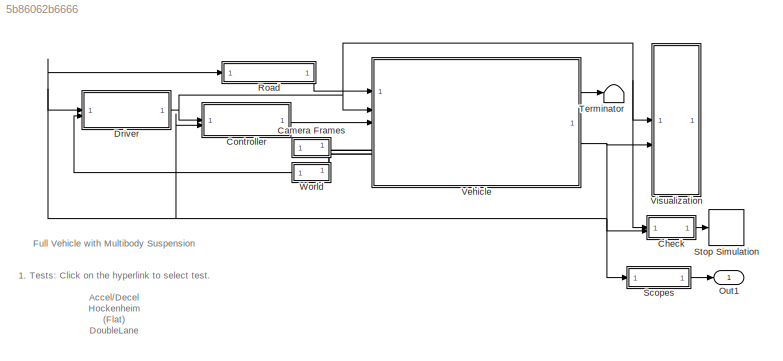
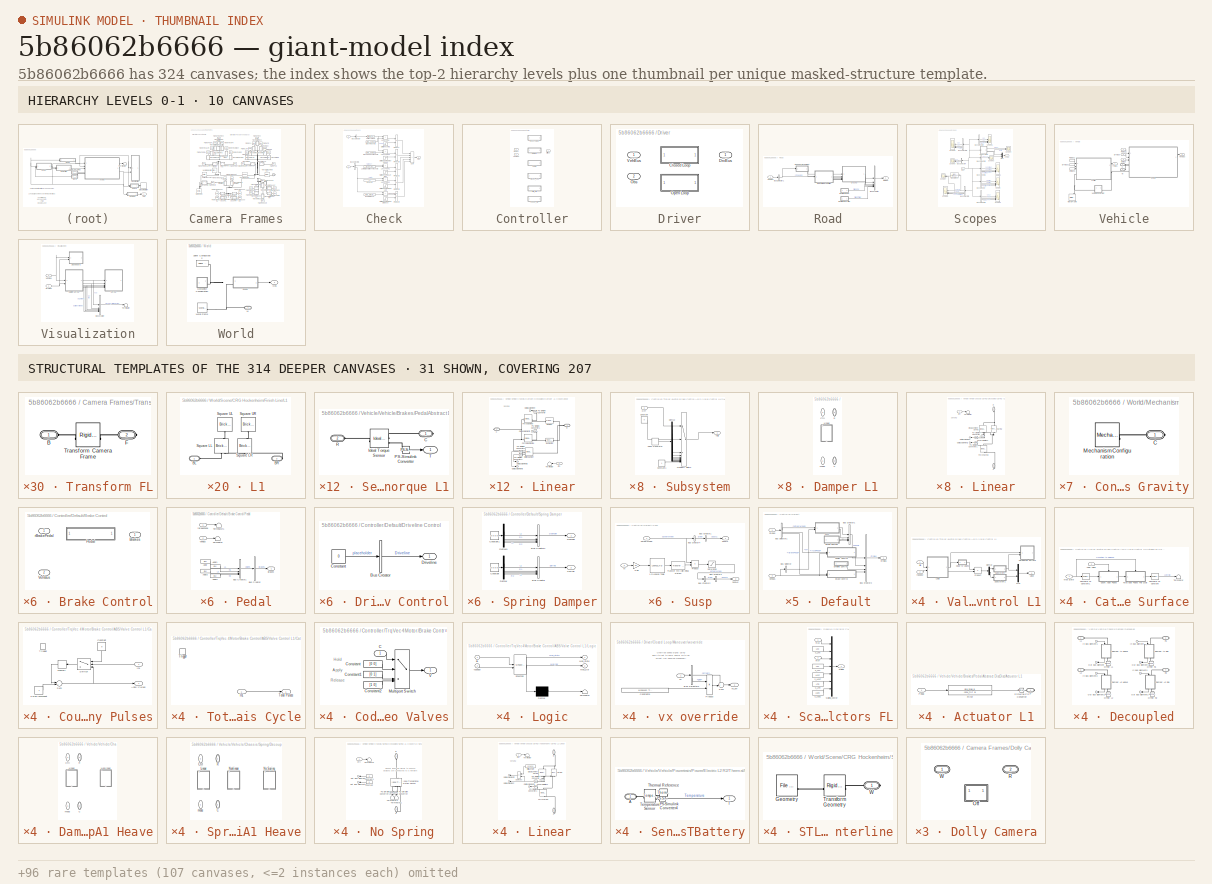
[diagram: thumbnail index - top-2 hierarchy levels (10 canvases) + 31 structural-template representatives of the remaining 314 canvases]
MODEL slx_5b86062b6666
KIND model
CONFIG AbsTol = 1e-3
CONFIG EnableMultiTasking = on
CONFIG FixedStep = auto
CONFIG InitFcn = sm_car_config_camera;\nVehicle = sm_car_vehcfg_checkConfig(Vehicle);\nsm_car_check_tire_model(bdroot);
CONFIG MaxStep = 0.4
CONFIG MinStep = auto
CONFIG PostLoadFcn = set_param([bdroot '/Vehicle'],'popup_trailer','Off')\nwarning('off','sm:sli:setup:compile:LocalSolverNotSupported')\n%sm_car_config_maneuver(bdroot,'WOT Braking');\nsm_car_config_vehicle(bdroot,'false');\nsm_car_config_logging(bdroot);
CONFIG PreLoadFcn = % Due to usability issue in Repeating Sequence block\nwarning('off','Simulink:Masking:Invalid');\n \n% Eliminate unnecessary warnings in inactive variants\n% Warnings generated only if you click through inactive variant\nwarning('off','MATLAB:nonExistentField');\nwarning('off','Simulink:Parameters:BlkParamUndefined');
CONFIG RelTol = 1e-3
CONFIG SampleTimeConstraint = Unconstrained
CONFIG SolverName = ode23t
CONFIG StartFcn = tic;
CONFIG StartTime = 0.0
CONFIG StopFcn = Elapsed_Sim_Time = toc;\n% disp(['Elapsed Sim Time = ' num2str(Elapsed_Sim_Time)]);
CONFIG StopTime = 100
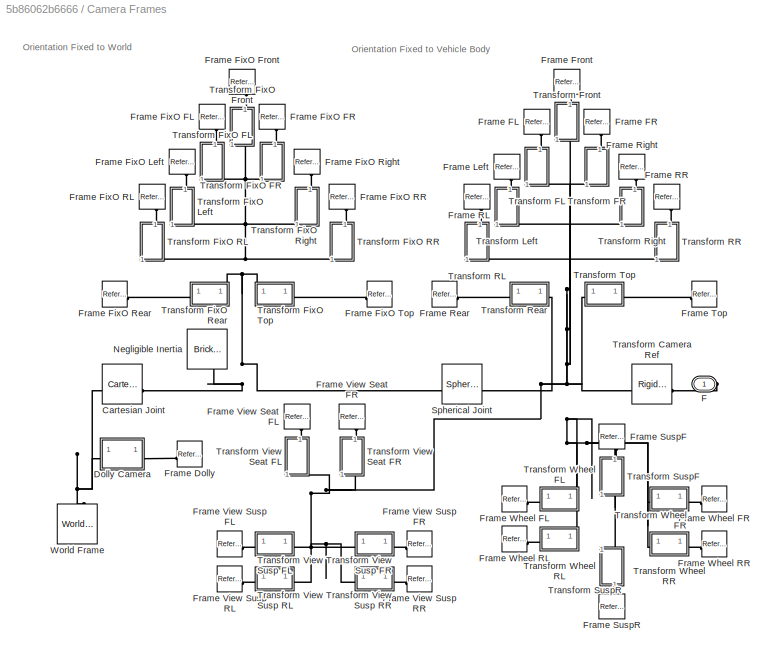
BLOCK [SubSystem] Camera Frames
BLOCK [Reference] Camera Frames/Cartesian Joint  REF=sm_lib/Joints/Cartesian
Joint
  SourceBlock = sm_lib/Joints/Cartesian\nJoint
  SourceType = Cartesian\nJoint
BLOCK [SubSystem] Camera Frames/Dolly Camera
  AttributesFormatString = %<ActiveVariant>
  LabelModeActiveChoice = Off
  Variant = on
  VariantControl = Variant1
  VariantControlMode = label
BLOCK [PMIOPort] Camera Frames/Dolly Camera/ R
  Port = 2
  Side = Right
BLOCK [PMIOPort] Camera Frames/Dolly Camera/ W
  Side = Left
BLOCK [SubSystem] Camera Frames/Dolly Camera/Off
  VariantControl = Off
BLOCK [PMIOPort] Camera Frames/Dolly Camera/Off/R
  NameLocation = top
  Port = 2
  Side = Right
BLOCK [PMIOPort] Camera Frames/Dolly Camera/Off/W
  Side = Left
BLOCK [PMIOPort] Camera Frames/F
  Side = Right
BLOCK [Reference] Camera Frames/Frame Dolly  REF=sm_lib/Frames and
Transforms/Reference
Frame
  SourceBlock = sm_lib/Frames and\nTransforms/Reference\nFrame
  SourceType = Reference\nFrame
BLOCK [Reference] Camera Frames/Frame FL  REF=sm_lib/Frames and
Transforms/Reference
Frame
  NameLocation = left
  SourceBlock = sm_lib/Frames and\nTransforms/Reference\nFrame
  SourceType = Reference\nFrame
BLOCK [Reference] Camera Frames/Frame FR  REF=sm_lib/Frames and
Transforms/Reference
Frame
  NameLocation = right
  SourceBlock = sm_lib/Frames and\nTransforms/Reference\nFrame
  SourceType = Reference\nFrame
BLOCK [Reference] Camera Frames/Frame FixO FL  REF=sm_lib/Frames and
Transforms/Reference
Frame
  NameLocation = left
  SourceBlock = sm_lib/Frames and\nTransforms/Reference\nFrame
  SourceType = Reference\nFrame
BLOCK [Reference] Camera Frames/Frame FixO FR  REF=sm_lib/Frames and
Transforms/Reference
Frame
  NameLocation = right
  SourceBlock = sm_lib/Frames and\nTransforms/Reference\nFrame
  SourceType = Reference\nFrame
BLOCK [Reference] Camera Frames/Frame FixO Front  REF=sm_lib/Frames and
Transforms/Reference
Frame
  NameLocation = right
  SourceBlock = sm_lib/Frames and\nTransforms/Reference\nFrame
  SourceType = Reference\nFrame
BLOCK [Reference] Camera Frames/Frame FixO Left  REF=sm_lib/Frames and
Transforms/Reference
Frame
  NameLocation = left
  SourceBlock = sm_lib/Frames and\nTransforms/Reference\nFrame
  SourceType = Reference\nFrame
BLOCK [Reference] Camera Frames/Frame FixO RL  REF=sm_lib/Frames and
Transforms/Reference
Frame
  NameLocation = left
  SourceBlock = sm_lib/Frames and\nTransforms/Reference\nFrame
  SourceType = Reference\nFrame
BLOCK [Reference] Camera Frames/Frame FixO RR  REF=sm_lib/Frames and
Transforms/Reference
Frame
  NameLocation = right
  SourceBlock = sm_lib/Frames and\nTransforms/Reference\nFrame
  SourceType = Reference\nFrame
BLOCK [Reference] Camera Frames/Frame FixO Rear  REF=sm_lib/Frames and
Transforms/Reference
Frame
  NameLocation = top
  SourceBlock = sm_lib/Frames and\nTransforms/Reference\nFrame
  SourceType = Reference\nFrame
BLOCK [Reference] Camera Frames/Frame FixO Right  REF=sm_lib/Frames and
Transforms/Reference
Frame
  NameLocation = right
  SourceBlock = sm_lib/Frames and\nTransforms/Reference\nFrame
  SourceType = Reference\nFrame
BLOCK [Reference] Camera Frames/Frame FixO Top  REF=sm_lib/Frames and
Transforms/Reference
Frame
  NameLocation = top
  SourceBlock = sm_lib/Frames and\nTransforms/Reference\nFrame
  SourceType = Reference\nFrame
BLOCK [Reference] Camera Frames/Frame Front  REF=sm_lib/Frames and
Transforms/Reference
Frame
  NameLocation = right
  SourceBlock = sm_lib/Frames and\nTransforms/Reference\nFrame
  SourceType = Reference\nFrame
BLOCK [Reference] Camera Frames/Frame Left  REF=sm_lib/Frames and
Transforms/Reference
Frame
  NameLocation = left
  SourceBlock = sm_lib/Frames and\nTransforms/Reference\nFrame
  SourceType = Reference\nFrame
BLOCK [Reference] Camera Frames/Frame RL  REF=sm_lib/Frames and
Transforms/Reference
Frame
  NameLocation = left
  SourceBlock = sm_lib/Frames and\nTransforms/Reference\nFrame
  SourceType = Reference\nFrame
BLOCK [Reference] Camera Frames/Frame RR  REF=sm_lib/Frames and
Transforms/Reference
Frame
  NameLocation = right
  SourceBlock = sm_lib/Frames and\nTransforms/Reference\nFrame
  SourceType = Reference\nFrame
BLOCK [Reference] Camera Frames/Frame Rear  REF=sm_lib/Frames and
Transforms/Reference
Frame
  NameLocation = top
  SourceBlock = sm_lib/Frames and\nTransforms/Reference\nFrame
  SourceType = Reference\nFrame
BLOCK [Reference] Camera Frames/Frame Right  REF=sm_lib/Frames and
Transforms/Reference
Frame
  NameLocation = right
  SourceBlock = sm_lib/Frames and\nTransforms/Reference\nFrame
  SourceType = Reference\nFrame
BLOCK [Reference] Camera Frames/Frame SuspF  REF=sm_lib/Frames and
Transforms/Reference
Frame
  NameLocation = right
  SourceBlock = sm_lib/Frames and\nTransforms/Reference\nFrame
  SourceType = Reference\nFrame
BLOCK [Reference] Camera Frames/Frame SuspR  REF=sm_lib/Frames and
Transforms/Reference
Frame
  NameLocation = right
  SourceBlock = sm_lib/Frames and\nTransforms/Reference\nFrame
  SourceType = Reference\nFrame
BLOCK [Reference] Camera Frames/Frame Top  REF=sm_lib/Frames and
Transforms/Reference
Frame
  NameLocation = top
  SourceBlock = sm_lib/Frames and\nTransforms/Reference\nFrame
  SourceType = Reference\nFrame
BLOCK [Reference] Camera Frames/Frame View Seat FL  REF=sm_lib/Frames and
Transforms/Reference
Frame
  NameLocation = left
  SourceBlock = sm_lib/Frames and\nTransforms/Reference\nFrame
  SourceType = Reference\nFrame
BLOCK [Reference] Camera Frames/Frame View Seat FR  REF=sm_lib/Frames and
Transforms/Reference
Frame
  NameLocation = right
  SourceBlock = sm_lib/Frames and\nTransforms/Reference\nFrame
  SourceType = Reference\nFrame
BLOCK [Reference] Camera Frames/Frame View Susp FL  REF=sm_lib/Frames and
Transforms/Reference
Frame
  NameLocation = top
  SourceBlock = sm_lib/Frames and\nTransforms/Reference\nFrame
  SourceType = Reference\nFrame
BLOCK [Reference] Camera Frames/Frame View Susp FR  REF=sm_lib/Frames and
Transforms/Reference
Frame
  NameLocation = top
  SourceBlock = sm_lib/Frames and\nTransforms/Reference\nFrame
  SourceType = Reference\nFrame
BLOCK [Reference] Camera Frames/Frame View Susp RL  REF=sm_lib/Frames and
Transforms/Reference
Frame
  SourceBlock = sm_lib/Frames and\nTransforms/Reference\nFrame
  SourceType = Reference\nFrame
BLOCK [Reference] Camera Frames/Frame View Susp RR  REF=sm_lib/Frames and
Transforms/Reference
Frame
  SourceBlock = sm_lib/Frames and\nTransforms/Reference\nFrame
  SourceType = Reference\nFrame
BLOCK [Reference] Camera Frames/Frame Wheel FL  REF=sm_lib/Frames and
Transforms/Reference
Frame
  NameLocation = top
  SourceBlock = sm_lib/Frames and\nTransforms/Reference\nFrame
  SourceType = Reference\nFrame
BLOCK [Reference] Camera Frames/Frame Wheel FR  REF=sm_lib/Frames and
Transforms/Reference
Frame
  NameLocation = top
  SourceBlock = sm_lib/Frames and\nTransforms/Reference\nFrame
  SourceType = Reference\nFrame
BLOCK [Reference] Camera Frames/Frame Wheel RL  REF=sm_lib/Frames and
Transforms/Reference
Frame
  SourceBlock = sm_lib/Frames and\nTransforms/Reference\nFrame
  SourceType = Reference\nFrame
BLOCK [Reference] Camera Frames/Frame Wheel RR  REF=sm_lib/Frames and
Transforms/Reference
Frame
  SourceBlock = sm_lib/Frames and\nTransforms/Reference\nFrame
  SourceType = Reference\nFrame
BLOCK [Reference] Camera Frames/Negligible Inertia  REF=sm_lib/Body Elements/Brick Solid
  NameLocation = left
  SourceBlock = sm_lib/Body Elements/Brick Solid
  SourceType = Brick Solid
BLOCK [Reference] Camera Frames/Spherical Joint  REF=sm_lib/Joints/Spherical
Joint
  NameLocation = top
  SourceBlock = sm_lib/Joints/Spherical\nJoint
  SourceType = Spherical\nJoint
BLOCK [Reference] Camera Frames/Transform Camera Ref  REF=sm_lib/Frames and
Transforms/Rigid
Transform
  NameLocation = top
  SourceBlock = sm_lib/Frames and\nTransforms/Rigid\nTransform
  SourceType = Rigid\nTransform
BLOCK [SubSystem] Camera Frames/Transform FL
  NameLocation = left
BLOCK [PMIOPort] Camera Frames/Transform FL/B
  Side = Left
BLOCK [PMIOPort] Camera Frames/Transform FL/F
  Port = 2
  Side = Right
BLOCK [Reference] Camera Frames/Transform FL/Transform Camera Frame  REF=sm_lib/Frames and
Transforms/Rigid
Transform
  SourceBlock = sm_lib/Frames and\nTransforms/Rigid\nTransform
  SourceType = Rigid\nTransform
BLOCK [SubSystem] Camera Frames/Transform FR
  NameLocation = left
BLOCK [PMIOPort] Camera Frames/Transform FR/B
  Side = Left
BLOCK [PMIOPort] Camera Frames/Transform FR/F
  Port = 2
  Side = Right
BLOCK [Reference] Camera Frames/Transform FR/Transform Camera Frame  REF=sm_lib/Frames and
Transforms/Rigid
Transform
  SourceBlock = sm_lib/Frames and\nTransforms/Rigid\nTransform
  SourceType = Rigid\nTransform
BLOCK [SubSystem] Camera Frames/Transform FixO FL
  NameLocation = left
BLOCK [PMIOPort] Camera Frames/Transform FixO FL/B
  Side = Left
BLOCK [PMIOPort] Camera Frames/Transform FixO FL/F
  Port = 2
  Side = Right
BLOCK [Reference] Camera Frames/Transform FixO FL/Transform Camera Frame  REF=sm_lib/Frames and
Transforms/Rigid
Transform
  SourceBlock = sm_lib/Frames and\nTransforms/Rigid\nTransform
  SourceType = Rigid\nTransform
BLOCK [SubSystem] Camera Frames/Transform FixO FR
  NameLocation = left
BLOCK [PMIOPort] Camera Frames/Transform FixO FR/B
  Side = Left
BLOCK [PMIOPort] Camera Frames/Transform FixO FR/F
  Port = 2
  Side = Right
BLOCK [Reference] Camera Frames/Transform FixO FR/Transform Camera Frame  REF=sm_lib/Frames and
Transforms/Rigid
Transform
  SourceBlock = sm_lib/Frames and\nTransforms/Rigid\nTransform
  SourceType = Rigid\nTransform
BLOCK [SubSystem] Camera Frames/Transform FixO Front
  NameLocation = left
BLOCK [PMIOPort] Camera Frames/Transform FixO Front/B
  Side = Left
BLOCK [PMIOPort] Camera Frames/Transform FixO Front/F
  Port = 2
  Side = Right
BLOCK [Reference] Camera Frames/Transform FixO Front/Transform Camera Frame  REF=sm_lib/Frames and
Transforms/Rigid
Transform
  SourceBlock = sm_lib/Frames and\nTransforms/Rigid\nTransform
  SourceType = Rigid\nTransform
BLOCK [SubSystem] Camera Frames/Transform FixO Left
  NameLocation = left
BLOCK [PMIOPort] Camera Frames/Transform FixO Left/B
  Side = Left
BLOCK [PMIOPort] Camera Frames/Transform FixO Left/F
  Port = 2
  Side = Right
BLOCK [Reference] Camera Frames/Transform FixO Left/Transform Camera Frame  REF=sm_lib/Frames and
Transforms/Rigid
Transform
  SourceBlock = sm_lib/Frames and\nTransforms/Rigid\nTransform
  SourceType = Rigid\nTransform
BLOCK [SubSystem] Camera Frames/Transform FixO RL
  NameLocation = left
BLOCK [PMIOPort] Camera Frames/Transform FixO RL/B
  Side = Left
BLOCK [PMIOPort] Camera Frames/Transform FixO RL/F
  Port = 2
  Side = Right
BLOCK [Reference] Camera Frames/Transform FixO RL/Transform Camera Frame  REF=sm_lib/Frames and
Transforms/Rigid
Transform
  SourceBlock = sm_lib/Frames and\nTransforms/Rigid\nTransform
  SourceType = Rigid\nTransform
BLOCK [SubSystem] Camera Frames/Transform FixO RR
  NameLocation = right
BLOCK [PMIOPort] Camera Frames/Transform FixO RR/B
  Side = Left
BLOCK [PMIOPort] Camera Frames/Transform FixO RR/F
  Port = 2
  Side = Right
BLOCK [Reference] Camera Frames/Transform FixO RR/Transform Camera Frame  REF=sm_lib/Frames and
Transforms/Rigid
Transform
  SourceBlock = sm_lib/Frames and\nTransforms/Rigid\nTransform
  SourceType = Rigid\nTransform
BLOCK [SubSystem] Camera Frames/Transform FixO Rear
BLOCK [PMIOPort] Camera Frames/Transform FixO Rear/B
  Side = Left
BLOCK [PMIOPort] Camera Frames/Transform FixO Rear/F
  Port = 2
  Side = Right
BLOCK [Reference] Camera Frames/Transform FixO Rear/Transform Camera Frame  REF=sm_lib/Frames and
Transforms/Rigid
Transform
  SourceBlock = sm_lib/Frames and\nTransforms/Rigid\nTransform
  SourceType = Rigid\nTransform
BLOCK [SubSystem] Camera Frames/Transform FixO Right
  NameLocation = right
BLOCK [PMIOPort] Camera Frames/Transform FixO Right/B
  Side = Left
BLOCK [PMIOPort] Camera Frames/Transform FixO Right/F
  Port = 2
  Side = Right
BLOCK [Reference] Camera Frames/Transform FixO Right/Transform Camera Frame  REF=sm_lib/Frames and
Transforms/Rigid
Transform
  SourceBlock = sm_lib/Frames and\nTransforms/Rigid\nTransform
  SourceType = Rigid\nTransform
BLOCK [SubSystem] Camera Frames/Transform FixO Top
  NameLocation = top
BLOCK [PMIOPort] Camera Frames/Transform FixO Top/B
  Side = Left
BLOCK [PMIOPort] Camera Frames/Transform FixO Top/F
  Port = 2
  Side = Right
BLOCK [Reference] Camera Frames/Transform FixO Top/Transform Camera Frame  REF=sm_lib/Frames and
Transforms/Rigid
Transform
  SourceBlock = sm_lib/Frames and\nTransforms/Rigid\nTransform
  SourceType = Rigid\nTransform
BLOCK [SubSystem] Camera Frames/Transform Front
  NameLocation = left
BLOCK [PMIOPort] Camera Frames/Transform Front/B
  Side = Left
BLOCK [PMIOPort] Camera Frames/Transform Front/F
  Port = 2
  Side = Right
BLOCK [Reference] Camera Frames/Transform Front/Transform Camera Frame  REF=sm_lib/Frames and
Transforms/Rigid
Transform
  SourceBlock = sm_lib/Frames and\nTransforms/Rigid\nTransform
  SourceType = Rigid\nTransform
BLOCK [SubSystem] Camera Frames/Transform Left
  NameLocation = left
BLOCK [PMIOPort] Camera Frames/Transform Left/B
  Side = Left
BLOCK [PMIOPort] Camera Frames/Transform Left/F
  Port = 2
  Side = Right
BLOCK [Reference] Camera Frames/Transform Left/Transform Camera Frame  REF=sm_lib/Frames and
Transforms/Rigid
Transform
  SourceBlock = sm_lib/Frames and\nTransforms/Rigid\nTransform
  SourceType = Rigid\nTransform
BLOCK [SubSystem] Camera Frames/Transform RL
  NameLocation = left
BLOCK [PMIOPort] Camera Frames/Transform RL/B
  Side = Left
BLOCK [PMIOPort] Camera Frames/Transform RL/F
  Port = 2
  Side = Right
BLOCK [Reference] Camera Frames/Transform RL/Transform Camera Frame  REF=sm_lib/Frames and
Transforms/Rigid
Transform
  SourceBlock = sm_lib/Frames and\nTransforms/Rigid\nTransform
  SourceType = Rigid\nTransform
BLOCK [SubSystem] Camera Frames/Transform RR
  NameLocation = left
BLOCK [PMIOPort] Camera Frames/Transform RR/B
  Side = Left
BLOCK [PMIOPort] Camera Frames/Transform RR/F
  Port = 2
  Side = Right
BLOCK [Reference] Camera Frames/Transform RR/Transform Camera Frame  REF=sm_lib/Frames and
Transforms/Rigid
Transform
  SourceBlock = sm_lib/Frames and\nTransforms/Rigid\nTransform
  SourceType = Rigid\nTransform
BLOCK [SubSystem] Camera Frames/Transform Rear
BLOCK [PMIOPort] Camera Frames/Transform Rear/B
  Side = Left
BLOCK [PMIOPort] Camera Frames/Transform Rear/F
  Port = 2
  Side = Right
BLOCK [Reference] Camera Frames/Transform Rear/Transform Camera Frame  REF=sm_lib/Frames and
Transforms/Rigid
Transform
  SourceBlock = sm_lib/Frames and\nTransforms/Rigid\nTransform
  SourceType = Rigid\nTransform
BLOCK [SubSystem] Camera Frames/Transform Right
  NameLocation = left
BLOCK [PMIOPort] Camera Frames/Transform Right/B
  Side = Left
BLOCK [PMIOPort] Camera Frames/Transform Right/F
  Port = 2
  Side = Right
BLOCK [Reference] Camera Frames/Transform Right/Transform Camera Frame  REF=sm_lib/Frames and
Transforms/Rigid
Transform
  SourceBlock = sm_lib/Frames and\nTransforms/Rigid\nTransform
  SourceType = Rigid\nTransform
BLOCK [SubSystem] Camera Frames/Transform SuspF
  NameLocation = left
BLOCK [PMIOPort] Camera Frames/Transform SuspF/B
  Side = Left
BLOCK [PMIOPort] Camera Frames/Transform SuspF/F
  Port = 2
  Side = Right
BLOCK [Reference] Camera Frames/Transform SuspF/Transform Camera Frame  REF=sm_lib/Frames and
Transforms/Rigid
Transform
  SourceBlock = sm_lib/Frames and\nTransforms/Rigid\nTransform
  SourceType = Rigid\nTransform
BLOCK [SubSystem] Camera Frames/Transform SuspR
  NameLocation = left
BLOCK [PMIOPort] Camera Frames/Transform SuspR/B
  Side = Left
BLOCK [PMIOPort] Camera Frames/Transform SuspR/F
  Port = 2
  Side = Right
BLOCK [Reference] Camera Frames/Transform SuspR/Transform Camera Frame  REF=sm_lib/Frames and
Transforms/Rigid
Transform
  SourceBlock = sm_lib/Frames and\nTransforms/Rigid\nTransform
  SourceType = Rigid\nTransform
BLOCK [SubSystem] Camera Frames/Transform Top
BLOCK [PMIOPort] Camera Frames/Transform Top/B
  Side = Left
BLOCK [PMIOPort] Camera Frames/Transform Top/F
  Port = 2
  Side = Right
BLOCK [Reference] Camera Frames/Transform Top/Transform Camera Frame  REF=sm_lib/Frames and
Transforms/Rigid
Transform
  SourceBlock = sm_lib/Frames and\nTransforms/Rigid\nTransform
  SourceType = Rigid\nTransform
BLOCK [SubSystem] Camera Frames/Transform View Seat FL
  NameLocation = left
BLOCK [PMIOPort] Camera Frames/Transform View Seat FL/B
  Side = Left
BLOCK [PMIOPort] Camera Frames/Transform View Seat FL/F
  Port = 2
  Side = Right
BLOCK [Reference] Camera Frames/Transform View Seat FL/Transform Camera Frame  REF=sm_lib/Frames and
Transforms/Rigid
Transform
  SourceBlock = sm_lib/Frames and\nTransforms/Rigid\nTransform
  SourceType = Rigid\nTransform
BLOCK [SubSystem] Camera Frames/Transform View Seat FR
  NameLocation = right
BLOCK [PMIOPort] Camera Frames/Transform View Seat FR/B
  Side = Left
BLOCK [PMIOPort] Camera Frames/Transform View Seat FR/F
  Port = 2
  Side = Right
BLOCK [Reference] Camera Frames/Transform View Seat FR/Transform Camera Frame  REF=sm_lib/Frames and
Transforms/Rigid
Transform
  SourceBlock = sm_lib/Frames and\nTransforms/Rigid\nTransform
  SourceType = Rigid\nTransform
BLOCK [SubSystem] Camera Frames/Transform View Susp FL
BLOCK [PMIOPort] Camera Frames/Transform View Susp FL/B
  Side = Left
BLOCK [PMIOPort] Camera Frames/Transform View Susp FL/F
  Port = 2
  Side = Right
BLOCK [Reference] Camera Frames/Transform View Susp FL/Transform Camera Frame  REF=sm_lib/Frames and
Transforms/Rigid
Transform
  SourceBlock = sm_lib/Frames and\nTransforms/Rigid\nTransform
  SourceType = Rigid\nTransform
BLOCK [SubSystem] Camera Frames/Transform View Susp FR
  NameLocation = top
BLOCK [PMIOPort] Camera Frames/Transform View Susp FR/B
  Side = Left
BLOCK [PMIOPort] Camera Frames/Transform View Susp FR/F
  Port = 2
  Side = Right
BLOCK [Reference] Camera Frames/Transform View Susp FR/Transform Camera Frame  REF=sm_lib/Frames and
Transforms/Rigid
Transform
  SourceBlock = sm_lib/Frames and\nTransforms/Rigid\nTransform
  SourceType = Rigid\nTransform
BLOCK [SubSystem] Camera Frames/Transform View Susp RL
BLOCK [PMIOPort] Camera Frames/Transform View Susp RL/B
  Side = Left
BLOCK [PMIOPort] Camera Frames/Transform View Susp RL/F
  Port = 2
  Side = Right
BLOCK [Reference] Camera Frames/Transform View Susp RL/Transform Camera Frame  REF=sm_lib/Frames and
Transforms/Rigid
Transform
  SourceBlock = sm_lib/Frames and\nTransforms/Rigid\nTransform
  SourceType = Rigid\nTransform
BLOCK [SubSystem] Camera Frames/Transform View Susp RR
BLOCK [PMIOPort] Camera Frames/Transform View Susp RR/B
  Side = Left
BLOCK [PMIOPort] Camera Frames/Transform View Susp RR/F
  Port = 2
  Side = Right
BLOCK [Reference] Camera Frames/Transform View Susp RR/Transform Camera Frame  REF=sm_lib/Frames and
Transforms/Rigid
Transform
  SourceBlock = sm_lib/Frames and\nTransforms/Rigid\nTransform
  SourceType = Rigid\nTransform
BLOCK [SubSystem] Camera Frames/Transform Wheel FL
BLOCK [PMIOPort] Camera Frames/Transform Wheel FL/B
  Side = Left
BLOCK [PMIOPort] Camera Frames/Transform Wheel FL/F
  Port = 2
  Side = Right
BLOCK [Reference] Camera Frames/Transform Wheel FL/Transform Camera Frame  REF=sm_lib/Frames and
Transforms/Rigid
Transform
  SourceBlock = sm_lib/Frames and\nTransforms/Rigid\nTransform
  SourceType = Rigid\nTransform
BLOCK [SubSystem] Camera Frames/Transform Wheel FR
  NameLocation = top
BLOCK [PMIOPort] Camera Frames/Transform Wheel FR/B
  Side = Left
BLOCK [PMIOPort] Camera Frames/Transform Wheel FR/F
  Port = 2
  Side = Right
BLOCK [Reference] Camera Frames/Transform Wheel FR/Transform Camera Frame  REF=sm_lib/Frames and
Transforms/Rigid
Transform
  SourceBlock = sm_lib/Frames and\nTransforms/Rigid\nTransform
  SourceType = Rigid\nTransform
BLOCK [SubSystem] Camera Frames/Transform Wheel RL
BLOCK [PMIOPort] Camera Frames/Transform Wheel RL/B
  Side = Left
BLOCK [PMIOPort] Camera Frames/Transform Wheel RL/F
  Port = 2
  Side = Right
BLOCK [Reference] Camera Frames/Transform Wheel RL/Transform Camera Frame  REF=sm_lib/Frames and
Transforms/Rigid
Transform
  SourceBlock = sm_lib/Frames and\nTransforms/Rigid\nTransform
  SourceType = Rigid\nTransform
BLOCK [SubSystem] Camera Frames/Transform Wheel RR
BLOCK [PMIOPort] Camera Frames/Transform Wheel RR/B
  Side = Left
BLOCK [PMIOPort] Camera Frames/Transform Wheel RR/F
  Port = 2
  Side = Right
BLOCK [Reference] Camera Frames/Transform Wheel RR/Transform Camera Frame  REF=sm_lib/Frames and
Transforms/Rigid
Transform
  SourceBlock = sm_lib/Frames and\nTransforms/Rigid\nTransform
  SourceType = Rigid\nTransform
BLOCK [Reference] Camera Frames/World Frame  REF=sm_lib/Frames and
Transforms/World Frame
  NameLocation = right
  SourceBlock = sm_lib/Frames and\nTransforms/World Frame
  SourceType = World Frame
BLOCK [SubSystem] Check
BLOCK [BusSelector] Check/Bus Selector
  OutputAsBus = on
  OutputSignals = World.vx,World.vy
BLOCK [BusSelector] Check/Bus Selector1
  OutputSignals = Reference.latdev,Reference.dist
BLOCK [Constant] Check/End Distance
  Value = max_dist_threshold
BLOCK [Constant] Check/End Lap
  Value = 0.2
BLOCK [Constant] Check/Lateral Deviation Threshold
  Value = lat_dev_threshold
BLOCK [RelationalOperator] Check/Less Than
  InputSameDT = off
  Operator = <
  OutDataTypeStr = boolean
  RndMeth = Simplest
BLOCK [RelationalOperator] Check/Less Than1
  InputSameDT = off
  Operator = >
  OutDataTypeStr = boolean
  RndMeth = Simplest
  ZeroCross = off
BLOCK [RelationalOperator] Check/Less Than2
  InputSameDT = off
  Operator = <
  OutDataTypeStr = boolean
  RndMeth = Simplest
  ZeroCross = off
BLOCK [RelationalOperator] Check/Less Than3
  InputSameDT = off
  Operator = >
  OutDataTypeStr = boolean
  RndMeth = Simplest
BLOCK [RelationalOperator] Check/Less Than4
  InputSameDT = off
  Operator = >
  OutDataTypeStr = boolean
  RndMeth = Simplest
  ZeroCross = off
BLOCK [Constant] Check/Max Speed Threshold
  Value = max_speed
BLOCK [Product] Check/Product
BLOCK [Product] Check/Product1
BLOCK [Product] Check/Product2
BLOCK [Product] Check/Product3
BLOCK [Product] Check/Product4
BLOCK [Step] Check/Start Checking
  SampleTime = 0
  Time = start_check_time
  ZeroCross = off
BLOCK [Step] Check/Start Checking End Distance
  SampleTime = 0
  Time = start_check_time_max_dist
  ZeroCross = off
BLOCK [Step] Check/Start Checking End Lap
  SampleTime = 0
  Time = start_check_time_end_lap
  ZeroCross = off
BLOCK [Step] Check/Start Checking Lat Dev
  SampleTime = 0
  Time = start_check_time_ld
  ZeroCross = off
BLOCK [Step] Check/Start Checking Max Speed
  SampleTime = 0
  Time = start_check_time_max_speed
  ZeroCross = off
BLOCK [Outport] Check/Stop
  VectorParamsAs1DForOutWhenUnconnected = off
BLOCK [Constant] Check/Stop Threshold
  Value = stop_speed
BLOCK [Sum] Check/Sum
  IconShape = rectangular
  Inputs = +++++
BLOCK [Fcn] Check/Vel in xy plane
  Expr = sqrt(u(1)^2+u(2)^2)
BLOCK [Inport] Check/l
BLOCK [Inport] Check/v
  Port = 2
BLOCK [SubSystem] Controller
  AttributesFormatString = %<popup_control>
  LabelModeActiveChoice = Slip_Ctrl
  Variant = on
  VariantControl = Variant1
  VariantControlMode = label
BLOCK [Outport] Controller/ CtrlBus
  VectorParamsAs1DForOutWhenUnconnected = off
BLOCK [SubSystem] Controller/Default
  VariantControl = Default
BLOCK [SubSystem] Controller/Default/Brake Control
  AttributesFormatString = %<ActiveVariant>
  LabelModeActiveChoice = Pedal
  Variant = on
  VariantControl = Variant1
  VariantControlMode = label
BLOCK [Outport] Controller/Default/Brake Control/ Brakes
  VectorParamsAs1DForOutWhenUnconnected = off
BLOCK [SubSystem] Controller/Default/Brake Control/Pedal
  VariantControl = Pedal
BLOCK [Constant] Controller/Default/Brake Control/Pedal/Apply
  Value = [0 1]
BLOCK [Constant] Controller/Default/Brake Control/Pedal/Apply1
  Value = [0 1]
BLOCK [Constant] Controller/Default/Brake Control/Pedal/Apply2
  Value = [0 1]
BLOCK [Constant] Controller/Default/Brake Control/Pedal/Apply3
  Value = [0 1]
BLOCK [Outport] Controller/Default/Brake Control/Pedal/Brakes
  VectorParamsAs1DForOutWhenUnconnected = off
BLOCK [BusCreator] Controller/Default/Brake Control/Pedal/Bus Creator
  DisplayOption = bar
  InheritFromInputs = on
  Inputs = 1
BLOCK [BusCreator] Controller/Default/Brake Control/Pedal/Bus Creator1
  DisplayOption = bar
  InheritFromInputs = on
  Inputs = 4
BLOCK [Terminator] Controller/Default/Brake Control/Pedal/Terminator
BLOCK [Terminator] Controller/Default/Brake Control/Pedal/Terminator1
BLOCK [Inport] Controller/Default/Brake Control/Pedal/VehBus
  Port = 2
BLOCK [Inport] Controller/Default/Brake Control/Pedal/rBrakePedal
BLOCK [Inport] Controller/Default/Brake Control/VehBus 
  Port = 2
BLOCK [Inport] Controller/Default/Brake Control/rBrakePedal 
BLOCK [BusCreator] Controller/Default/Bus Creator1
  DisplayOption = bar
  InheritFromInputs = on
  Inputs = 4
BLOCK [BusCreator] Controller/Default/Bus Creator2
  DisplayOption = bar
  InheritFromInputs = on
  Inputs = 4
BLOCK [BusSelector] Controller/Default/Bus Selector
  OutputSignals = Chassis.Body.CG.vx
BLOCK [BusSelector] Controller/Default/Bus Selector1
  OutputSignals = aSteerWheel,rAccelPedal,rBrakePedal
BLOCK [Outport] Controller/Default/CtrlBus
  VectorParamsAs1DForOutWhenUnconnected = off
BLOCK [SubSystem] Controller/Default/Driveline Control
BLOCK [BusCreator] Controller/Default/Driveline Control/Bus Creator
  DisplayOption = bar
  InheritFromInputs = on
  Inputs = 1
BLOCK [Constant] Controller/Default/Driveline Control/Constant
  Value = 0
BLOCK [Outport] Controller/Default/Driveline Control/Driveline
  VectorParamsAs1DForOutWhenUnconnected = off
BLOCK [Inport] Controller/Default/DrvBus
BLOCK [SubSystem] Controller/Default/Power Control
BLOCK [BusCreator] Controller/Default/Power Control/Bus Creator
  DisplayOption = bar
  InheritFromInputs = on
  Inputs = 7
BLOCK [Constant] Controller/Default/Power Control/Constant
  Value = trq_ratio_front
BLOCK [Constant] Controller/Default/Power Control/Constant1
  Value = 0
BLOCK [Constant] Controller/Default/Power Control/Constant2
BLOCK [Gain] Controller/Default/Power Control/Gain
  Gain = 60
BLOCK [Gain] Controller/Default/Power Control/Gain1
BLOCK [Gain] Controller/Default/Power Control/Gain2
BLOCK [Gain] Controller/Default/Power Control/Gain3
  Gain = 0.5
BLOCK [Gain] Controller/Default/Power Control/Gain4
  Gain = 0.5
BLOCK [Outport] Controller/Default/Power Control/Power
  VectorParamsAs1DForOutWhenUnconnected = off
BLOCK [Product] Controller/Default/Power Control/Product
BLOCK [Product] Controller/Default/Power Control/Product1
BLOCK [RateLimiter] Controller/Default/Power Control/Rate Limiter
  FallingSlewLimit = trq_rate_down
  RisingSlewLimit = trq_rate_up
  SampleTimeMode = inherited
BLOCK [Terminator] Controller/Default/Power Control/Terminator
BLOCK [Inport] Controller/Default/Power Control/VehBus
  Port = 2
BLOCK [Inport] Controller/Default/Power Control/rAccelPedal
BLOCK [SubSystem] Controller/Default/Spring Damper
BLOCK [BusCreator] Controller/Default/Spring Damper/Bus Creator
  DisplayOption = bar
  InheritFromInputs = on
  Inputs = 4
BLOCK [BusCreator] Controller/Default/Spring Damper/Bus Creator1
  DisplayOption = bar
  InheritFromInputs = on
  Inputs = 4
BLOCK [Constant] Controller/Default/Spring Damper/Constant
  Value = [0 0 0 0]
BLOCK [Constant] Controller/Default/Spring Damper/Constant1
  Value = [0 0 0 0]
BLOCK [Outport] Controller/Default/Spring Damper/Damper
  VectorParamsAs1DForOutWhenUnconnected = off
BLOCK [Demux] Controller/Default/Spring Damper/Demux
BLOCK [Demux] Controller/Default/Spring Damper/Demux1
BLOCK [Outport] Controller/Default/Spring Damper/Spring
  Port = 2
  VectorParamsAs1DForOutWhenUnconnected = off
BLOCK [SubSystem] Controller/Default/Susp
  NameLocation = top
BLOCK [Lookup_n-D] Controller/Default/Susp/1-D Lookup Table
  BreakpointsForDimension1 = Steer.Gain.vVehicle.Value
  InputPortMap = u0
  InternalRulePriority = Speed
  InterpMethod = Linear Lagrange
  NumberOfTableDimensions = 1
  RndMeth = Simplest
  Table = Steer.Gain.n.Value
BLOCK [BusCreator] Controller/Default/Susp/Bus Creator1
  DisplayOption = bar
  InheritFromInputs = on
  Inputs = 1
BLOCK [BusCreator] Controller/Default/Susp/Bus Creator2
  DisplayOption = bar
  InheritFromInputs = on
  Inputs = 1
BLOCK [BusCreator] Controller/Default/Susp/Bus Creator3
  DisplayOption = bar
  InheritFromInputs = on
  Inputs = 1
BLOCK [BusCreator] Controller/Default/Susp/Bus Creator4
  DisplayOption = bar
  InheritFromInputs = on
  Inputs = 1
BLOCK [Gain] Controller/Default/Susp/Gain
  Gain = 3.6
BLOCK [Product] Controller/Default/Susp/Product
BLOCK [Saturate] Controller/Default/Susp/Saturation
  LinearizeAsGain = off
  LowerLimit = Steer.Limits.aLower.Value
  UpperLimit = Steer.Limits.aUpper.Value
  ZeroCross = off
BLOCK [Outport] Controller/Default/Susp/SuspA1
  VectorParamsAs1DForOutWhenUnconnected = off
BLOCK [Outport] Controller/Default/Susp/SuspA2
  Port = 2
  VectorParamsAs1DForOutWhenUnconnected = off
BLOCK [Reference] Controller/Default/Susp/Transfer Fcn (with initial states)  REF=simulink_extras/Additional
Linear/Transfer Fcn
(with initial states)
  SourceBlock = simulink_extras/Additional\nLinear/Transfer Fcn\n(with initial states)
  SourceType = Transfer Function with Initial States
BLOCK [Inport] Controller/Default/Susp/aSteerWheel
BLOCK [Inport] Controller/Default/Susp/vx
  Port = 2
BLOCK [Inport] Controller/Default/VehBus
  Port = 2
BLOCK [Inport] Controller/DrvBus 
BLOCK [SubSystem] Controller/FeedF_Ctrl
  VariantControl = FeedF_Ctrl
BLOCK [SubSystem] Controller/FeedF_Ctrl/Brake Control
  AttributesFormatString = %<ActiveVariant>
  LabelModeActiveChoice = Pedal
  Variant = on
  VariantControl = Variant1
  VariantControlMode = label
BLOCK [Outport] Controller/FeedF_Ctrl/Brake Control/ Brakes
  VectorParamsAs1DForOutWhenUnconnected = off
BLOCK [SubSystem] Controller/FeedF_Ctrl/Brake Control/Pedal
  VariantControl = Pedal
BLOCK [Constant] Controller/FeedF_Ctrl/Brake Control/Pedal/Apply
  Value = [0 1]
BLOCK [Constant] Controller/FeedF_Ctrl/Brake Control/Pedal/Apply1
  Value = [0 1]
BLOCK [Constant] Controller/FeedF_Ctrl/Brake Control/Pedal/Apply2
  Value = [0 1]
BLOCK [Constant] Controller/FeedF_Ctrl/Brake Control/Pedal/Apply3
  Value = [0 1]
BLOCK [Outport] Controller/FeedF_Ctrl/Brake Control/Pedal/Brakes
  VectorParamsAs1DForOutWhenUnconnected = off
BLOCK [BusCreator] Controller/FeedF_Ctrl/Brake Control/Pedal/Bus Creator
  DisplayOption = bar
  InheritFromInputs = on
  Inputs = 1
BLOCK [BusCreator] Controller/FeedF_Ctrl/Brake Control/Pedal/Bus Creator1
  DisplayOption = bar
  InheritFromInputs = on
  Inputs = 4
BLOCK [Terminator] Controller/FeedF_Ctrl/Brake Control/Pedal/Terminator
BLOCK [Terminator] Controller/FeedF_Ctrl/Brake Control/Pedal/Terminator1
BLOCK [Inport] Controller/FeedF_Ctrl/Brake Control/Pedal/VehBus
  Port = 2
BLOCK [Inport] Controller/FeedF_Ctrl/Brake Control/Pedal/rBrakePedal
BLOCK [Inport] Controller/FeedF_Ctrl/Brake Control/VehBus 
  Port = 2
BLOCK [Inport] Controller/FeedF_Ctrl/Brake Control/rBrakePedal 
BLOCK [BusCreator] Controller/FeedF_Ctrl/Bus Creator1
  DisplayOption = bar
  InheritFromInputs = on
  Inputs = 4
BLOCK [BusCreator] Controller/FeedF_Ctrl/Bus Creator2
  DisplayOption = bar
  InheritFromInputs = on
  Inputs = 4
BLOCK [BusSelector] Controller/FeedF_Ctrl/Bus Selector
  OutputSignals = Chassis.Body.CG.vx
BLOCK [BusSelector] Controller/FeedF_Ctrl/Bus Selector1
  OutputSignals = aSteerWheel,rAccelPedal,rBrakePedal
BLOCK [Outport] Controller/FeedF_Ctrl/CtrlBus
  VectorParamsAs1DForOutWhenUnconnected = off
BLOCK [SubSystem] Controller/FeedF_Ctrl/Driveline Control
BLOCK [BusCreator] Controller/FeedF_Ctrl/Driveline Control/Bus Creator
  DisplayOption = bar
  InheritFromInputs = on
  Inputs = 1
BLOCK [Constant] Controller/FeedF_Ctrl/Driveline Control/Constant
  Value = 0
BLOCK [Outport] Controller/FeedF_Ctrl/Driveline Control/Driveline
  VectorParamsAs1DForOutWhenUnconnected = off
BLOCK [Inport] Controller/FeedF_Ctrl/DrvBus
BLOCK [SubSystem] Controller/FeedF_Ctrl/Power Control
BLOCK [Bias] Controller/FeedF_Ctrl/Power Control/Bias
  Bias = 512
  SaturateOnIntegerOverflow = off
BLOCK [BusCreator] Controller/FeedF_Ctrl/Power Control/Bus Creator
  DisplayOption = bar
  InheritFromInputs = on
  Inputs = 2
BLOCK [BusSelector] Controller/FeedF_Ctrl/Power Control/Bus Selector
  OutputSignals = Power.MotorL2.w,Power.MotorR2.w
BLOCK [Gain] Controller/FeedF_Ctrl/Power Control/Gain
  Gain = max(Control.MotorTrq)
BLOCK [Gain] Controller/FeedF_Ctrl/Power Control/Gain1
  Gain = max(Control.MotorTrq)
BLOCK [Gain] Controller/FeedF_Ctrl/Power Control/Gain3
  Gain = 511/154
BLOCK [Outport] Controller/FeedF_Ctrl/Power Control/Power
  VectorParamsAs1DForOutWhenUnconnected = off
BLOCK [Reference] Controller/FeedF_Ctrl/Power Control/Radians to Degrees  REF=simulink_extras/Transformations/Radians
to Degrees
  SourceBlock = simulink_extras/Transformations/Radians\nto Degrees
  SourceType = RadiansToDegrees
BLOCK [SubSystem] Controller/FeedF_Ctrl/Power Control/Subsystem Reference
  Gr = Control.GearRatio
  Izz = Control.Izz
  Ku = Control.UndersteerGradient
  L = Control.Wheelbase
  MotorT = Control.MotorTrq
  MotorW = Control.MotorW
  ReferencedSubsystem = FeedForward
  StrWhlRatio = Control.StrWheelRatio
  Tf = 0.005
  Tmax = max(Control.MotorTrq)
  rwheel = Control.WheelRad
  tr = Control.RearTrack
BLOCK [Inport] Controller/FeedF_Ctrl/Power Control/VehBus
  Port = 2
BLOCK [Inport] Controller/FeedF_Ctrl/Power Control/aSteerWheel
  Port = 3
BLOCK [Inport] Controller/FeedF_Ctrl/Power Control/rAccelPedal
BLOCK [SubSystem] Controller/FeedF_Ctrl/Spring Damper
BLOCK [BusCreator] Controller/FeedF_Ctrl/Spring Damper/Bus Creator
  DisplayOption = bar
  InheritFromInputs = on
  Inputs = 4
BLOCK [BusCreator] Controller/FeedF_Ctrl/Spring Damper/Bus Creator1
  DisplayOption = bar
  InheritFromInputs = on
  Inputs = 4
BLOCK [Constant] Controller/FeedF_Ctrl/Spring Damper/Constant
  Value = [0 0 0 0]
BLOCK [Constant] Controller/FeedF_Ctrl/Spring Damper/Constant1
  Value = [0 0 0 0]
BLOCK [Outport] Controller/FeedF_Ctrl/Spring Damper/Damper
  VectorParamsAs1DForOutWhenUnconnected = off
BLOCK [Demux] Controller/FeedF_Ctrl/Spring Damper/Demux
BLOCK [Demux] Controller/FeedF_Ctrl/Spring Damper/Demux1
BLOCK [Outport] Controller/FeedF_Ctrl/Spring Damper/Spring
  Port = 2
  VectorParamsAs1DForOutWhenUnconnected = off
BLOCK [SubSystem] Controller/FeedF_Ctrl/Susp
  NameLocation = top
BLOCK [Lookup_n-D] Controller/FeedF_Ctrl/Susp/1-D Lookup Table
  BreakpointsForDimension1 = Steer.Gain.vVehicle.Value
  InputPortMap = u0
  InternalRulePriority = Speed
  InterpMethod = Linear Lagrange
  NumberOfTableDimensions = 1
  RndMeth = Simplest
  Table = Steer.Gain.n.Value
BLOCK [BusCreator] Controller/FeedF_Ctrl/Susp/Bus Creator1
  DisplayOption = bar
  InheritFromInputs = on
  Inputs = 1
BLOCK [BusCreator] Controller/FeedF_Ctrl/Susp/Bus Creator2
  DisplayOption = bar
  InheritFromInputs = on
  Inputs = 1
BLOCK [BusCreator] Controller/FeedF_Ctrl/Susp/Bus Creator3
  DisplayOption = bar
  InheritFromInputs = on
  Inputs = 1
BLOCK [BusCreator] Controller/FeedF_Ctrl/Susp/Bus Creator4
  DisplayOption = bar
  InheritFromInputs = on
  Inputs = 1
BLOCK [Gain] Controller/FeedF_Ctrl/Susp/Gain
  Gain = 3.6
BLOCK [Product] Controller/FeedF_Ctrl/Susp/Product
BLOCK [Saturate] Controller/FeedF_Ctrl/Susp/Saturation
  LinearizeAsGain = off
  LowerLimit = Steer.Limits.aLower.Value
  UpperLimit = Steer.Limits.aUpper.Value
  ZeroCross = off
BLOCK [Outport] Controller/FeedF_Ctrl/Susp/SuspA1
  VectorParamsAs1DForOutWhenUnconnected = off
BLOCK [Outport] Controller/FeedF_Ctrl/Susp/SuspA2
  Port = 2
  VectorParamsAs1DForOutWhenUnconnected = off
BLOCK [Reference] Controller/FeedF_Ctrl/Susp/Transfer Fcn (with initial states)  REF=simulink_extras/Additional
Linear/Transfer Fcn
(with initial states)
  SourceBlock = simulink_extras/Additional\nLinear/Transfer Fcn\n(with initial states)
  SourceType = Transfer Function with Initial States
BLOCK [Inport] Controller/FeedF_Ctrl/Susp/aSteerWheel
BLOCK [Inport] Controller/FeedF_Ctrl/Susp/vx
  Port = 2
BLOCK [Inport] Controller/FeedF_Ctrl/VehBus
  Port = 2
BLOCK [SubSystem] Controller/NoIMU
  VariantControl = NoIMU
BLOCK [SubSystem] Controller/NoIMU/Brake Control
  AttributesFormatString = %<ActiveVariant>
  LabelModeActiveChoice = Pedal
  Variant = on
  VariantControl = Variant1
  VariantControlMode = label
BLOCK [Outport] Controller/NoIMU/Brake Control/ Brakes
  VectorParamsAs1DForOutWhenUnconnected = off
BLOCK [SubSystem] Controller/NoIMU/Brake Control/Pedal
  VariantControl = Pedal
BLOCK [Constant] Controller/NoIMU/Brake Control/Pedal/Apply
  Value = [0 1]
BLOCK [Constant] Controller/NoIMU/Brake Control/Pedal/Apply1
  Value = [0 1]
BLOCK [Constant] Controller/NoIMU/Brake Control/Pedal/Apply2
  Value = [0 1]
BLOCK [Constant] Controller/NoIMU/Brake Control/Pedal/Apply3
  Value = [0 1]
BLOCK [Outport] Controller/NoIMU/Brake Control/Pedal/Brakes
  VectorParamsAs1DForOutWhenUnconnected = off
BLOCK [BusCreator] Controller/NoIMU/Brake Control/Pedal/Bus Creator
  DisplayOption = bar
  InheritFromInputs = on
  Inputs = 1
BLOCK [BusCreator] Controller/NoIMU/Brake Control/Pedal/Bus Creator1
  DisplayOption = bar
  InheritFromInputs = on
  Inputs = 4
BLOCK [Terminator] Controller/NoIMU/Brake Control/Pedal/Terminator
BLOCK [Terminator] Controller/NoIMU/Brake Control/Pedal/Terminator1
BLOCK [Inport] Controller/NoIMU/Brake Control/Pedal/VehBus
  Port = 2
BLOCK [Inport] Controller/NoIMU/Brake Control/Pedal/rBrakePedal
BLOCK [Inport] Controller/NoIMU/Brake Control/VehBus 
  Port = 2
BLOCK [Inport] Controller/NoIMU/Brake Control/rBrakePedal 
BLOCK [BusCreator] Controller/NoIMU/Bus Creator1
  DisplayOption = bar
  InheritFromInputs = on
  Inputs = 4
BLOCK [BusCreator] Controller/NoIMU/Bus Creator2
  DisplayOption = bar
  InheritFromInputs = on
  Inputs = 4
BLOCK [BusSelector] Controller/NoIMU/Bus Selector
  OutputSignals = Chassis.Body.CG.vx
BLOCK [BusSelector] Controller/NoIMU/Bus Selector1
  OutputSignals = aSteerWheel,rAccelPedal,rBrakePedal
BLOCK [Outport] Controller/NoIMU/CtrlBus
  VectorParamsAs1DForOutWhenUnconnected = off
BLOCK [SubSystem] Controller/NoIMU/Driveline Control
BLOCK [BusCreator] Controller/NoIMU/Driveline Control/Bus Creator
  DisplayOption = bar
  InheritFromInputs = on
  Inputs = 1
BLOCK [Constant] Controller/NoIMU/Driveline Control/Constant
  Value = 0
BLOCK [Outport] Controller/NoIMU/Driveline Control/Driveline
  VectorParamsAs1DForOutWhenUnconnected = off
BLOCK [Inport] Controller/NoIMU/DrvBus
BLOCK [SubSystem] Controller/NoIMU/Power Control
BLOCK [Sum] Controller/NoIMU/Power Control/Add1
  IconShape = rectangular
BLOCK [BusCreator] Controller/NoIMU/Power Control/Bus Creator
  DisplayOption = bar
  InheritFromInputs = on
  Inputs = 2
BLOCK [BusCreator] Controller/NoIMU/Power Control/Bus Creator2
  DisplayOption = bar
  InheritFromInputs = on
  Inputs = 2
BLOCK [BusSelector] Controller/NoIMU/Power Control/Bus Selector
  OutputSignals = Power.Battery.v,Power.MotorL2.i,Power.MotorR2.i
BLOCK [Constant] Controller/NoIMU/Power Control/Constant
BLOCK [SubSystem] Controller/NoIMU/Power Control/Current-Torque
BLOCK [Sum] Controller/NoIMU/Power Control/Current-Torque/Add
  IconShape = rectangular
BLOCK [Inport] Controller/NoIMU/Power Control/Current-Torque/Il
  Port = 2
BLOCK [Inport] Controller/NoIMU/Power Control/Current-Torque/Ir
  Port = 3
BLOCK [Gain] Controller/NoIMU/Power Control/Current-Torque/Km
  Gain = Km
BLOCK [Gain] Controller/NoIMU/Power Control/Current-Torque/Km1
  Gain = Km
BLOCK [Outport] Controller/NoIMU/Power Control/Current-Torque/Out1
BLOCK [Terminator] Controller/NoIMU/Power Control/Current-Torque/Terminator
BLOCK [Inport] Controller/NoIMU/Power Control/Current-Torque/V
BLOCK [Delay] Controller/NoIMU/Power Control/Delay
  DelayLength = 1
  InputPortMap = u0
  InputProcessing = Columns as channels (frame based)
BLOCK [Reference] Controller/NoIMU/Power Control/Fuzzy Logic Controller  REF=fuzblock/Fuzzy Logic   (lib defined in mdl_858b3b3e7478)
Controller
  SourceBlock = fuzblock/Fuzzy Logic \nController
  SourceType = Fuzzy Inference System
BLOCK [Outport] Controller/NoIMU/Power Control/Power
  VectorParamsAs1DForOutWhenUnconnected = off
BLOCK [Product] Controller/NoIMU/Power Control/Product
BLOCK [Product] Controller/NoIMU/Power Control/Product1
BLOCK [Product] Controller/NoIMU/Power Control/Product2
  Inputs = 3
BLOCK [Saturate] Controller/NoIMU/Power Control/Saturation
  LowerLimit = 0
  UpperLimit = 1
BLOCK [SubSystem] Controller/NoIMU/Power Control/Slip Control
  Commented = on
BLOCK [BusSelector] Controller/NoIMU/Power Control/Slip Control/Bus Selector
  OutputSignals = Power.MotorL2.w,Power.MotorL2.i,Power.MotorR2.w,Power.MotorR2.i
BLOCK [Constant] Controller/NoIMU/Power Control/Slip Control/Constant
BLOCK [Constant] Controller/NoIMU/Power Control/Slip Control/Constant1
  Value = 0
BLOCK [Constant] Controller/NoIMU/Power Control/Slip Control/I no load
  Value = I0
BLOCK [Outport] Controller/NoIMU/Power Control/Slip Control/Out1
BLOCK [Outport] Controller/NoIMU/Power Control/Slip Control/Out2
  Port = 2
BLOCK [Product] Controller/NoIMU/Power Control/Slip Control/Product
BLOCK [Product] Controller/NoIMU/Power Control/Slip Control/Product1
BLOCK [RelationalOperator] Controller/NoIMU/Power Control/Slip Control/Relational Operator
  InputSameDT = off
  OutDataTypeStr = boolean
  RndMeth = Simplest
BLOCK [RelationalOperator] Controller/NoIMU/Power Control/Slip Control/Relational Operator1
  InputSameDT = off
  Operator = <=
  OutDataTypeStr = boolean
  RndMeth = Simplest
BLOCK [RelationalOperator] Controller/NoIMU/Power Control/Slip Control/Relational Operator2
  InputSameDT = off
  OutDataTypeStr = boolean
  RndMeth = Simplest
BLOCK [RelationalOperator] Controller/NoIMU/Power Control/Slip Control/Relational Operator3
  InputSameDT = off
  Operator = <=
  OutDataTypeStr = boolean
  RndMeth = Simplest
BLOCK [Switch] Controller/NoIMU/Power Control/Slip Control/Switch
  Criteria = u2 > Threshold
  InputSameDT = off
  SaturateOnIntegerOverflow = off
BLOCK [Switch] Controller/NoIMU/Power Control/Slip Control/Switch1
  Criteria = u2 > Threshold
  InputSameDT = off
  SaturateOnIntegerOverflow = off
BLOCK [Inport] Controller/NoIMU/Power Control/Slip Control/VehBus
BLOCK [Constant] Controller/NoIMU/Power Control/Slip Control/w no load
  Value = w0
BLOCK [Sum] Controller/NoIMU/Power Control/Subtract
  IconShape = rectangular
  Inputs = +-
BLOCK [Sum] Controller/NoIMU/Power Control/Sum
  Inputs = |+-
BLOCK [Gain] Controller/NoIMU/Power Control/Tmax
  Gain = 1/Tmax/2
BLOCK [Inport] Controller/NoIMU/Power Control/VehBus
  Port = 2
BLOCK [Constant] Controller/NoIMU/Power Control/max torque
  Value = Tmax
BLOCK [Inport] Controller/NoIMU/Power Control/rAccelPedal
BLOCK [SubSystem] Controller/NoIMU/Spring Damper
BLOCK [BusCreator] Controller/NoIMU/Spring Damper/Bus Creator
  DisplayOption = bar
  InheritFromInputs = on
  Inputs = 4
BLOCK [BusCreator] Controller/NoIMU/Spring Damper/Bus Creator1
  DisplayOption = bar
  InheritFromInputs = on
  Inputs = 4
BLOCK [Constant] Controller/NoIMU/Spring Damper/Constant
  Value = [0 0 0 0]
BLOCK [Constant] Controller/NoIMU/Spring Damper/Constant1
  Value = [0 0 0 0]
BLOCK [Outport] Controller/NoIMU/Spring Damper/Damper
  VectorParamsAs1DForOutWhenUnconnected = off
BLOCK [Demux] Controller/NoIMU/Spring Damper/Demux
BLOCK [Demux] Controller/NoIMU/Spring Damper/Demux1
BLOCK [Outport] Controller/NoIMU/Spring Damper/Spring
  Port = 2
  VectorParamsAs1DForOutWhenUnconnected = off
BLOCK [SubSystem] Controller/NoIMU/Susp
  NameLocation = top
BLOCK [Lookup_n-D] Controller/NoIMU/Susp/1-D Lookup Table
  BreakpointsForDimension1 = Steer.Gain.vVehicle.Value
  InputPortMap = u0
  InternalRulePriority = Speed
  InterpMethod = Linear Lagrange
  NumberOfTableDimensions = 1
  RndMeth = Simplest
  Table = Steer.Gain.n.Value
BLOCK [BusCreator] Controller/NoIMU/Susp/Bus Creator1
  DisplayOption = bar
  InheritFromInputs = on
  Inputs = 1
BLOCK [BusCreator] Controller/NoIMU/Susp/Bus Creator2
  DisplayOption = bar
  InheritFromInputs = on
  Inputs = 1
BLOCK [BusCreator] Controller/NoIMU/Susp/Bus Creator3
  DisplayOption = bar
  InheritFromInputs = on
  Inputs = 1
BLOCK [BusCreator] Controller/NoIMU/Susp/Bus Creator4
  DisplayOption = bar
  InheritFromInputs = on
  Inputs = 1
BLOCK [Gain] Controller/NoIMU/Susp/Gain
  Gain = 3.6
BLOCK [Product] Controller/NoIMU/Susp/Product
BLOCK [Saturate] Controller/NoIMU/Susp/Saturation
  LinearizeAsGain = off
  LowerLimit = Steer.Limits.aLower.Value
  UpperLimit = Steer.Limits.aUpper.Value
  ZeroCross = off
BLOCK [Outport] Controller/NoIMU/Susp/SuspA1
  VectorParamsAs1DForOutWhenUnconnected = off
BLOCK [Outport] Controller/NoIMU/Susp/SuspA2
  Port = 2
  VectorParamsAs1DForOutWhenUnconnected = off
BLOCK [Reference] Controller/NoIMU/Susp/Transfer Fcn (with initial states)  REF=simulink_extras/Additional
Linear/Transfer Fcn
(with initial states)
  SourceBlock = simulink_extras/Additional\nLinear/Transfer Fcn\n(with initial states)
  SourceType = Transfer Function with Initial States
BLOCK [Inport] Controller/NoIMU/Susp/aSteerWheel
BLOCK [Inport] Controller/NoIMU/Susp/vx
  Port = 2
BLOCK [Inport] Controller/NoIMU/VehBus
  Port = 2
BLOCK [SubSystem] Controller/Slip_Ctrl
  VariantControl = Slip_Ctrl
BLOCK [SubSystem] Controller/Slip_Ctrl/Brake Control
  AttributesFormatString = %<ActiveVariant>
  LabelModeActiveChoice = Pedal
  Variant = on
  VariantControl = Variant1
  VariantControlMode = label
BLOCK [Outport] Controller/Slip_Ctrl/Brake Control/ Brakes
  VectorParamsAs1DForOutWhenUnconnected = off
BLOCK [SubSystem] Controller/Slip_Ctrl/Brake Control/Pedal
  VariantControl = Pedal
BLOCK [Constant] Controller/Slip_Ctrl/Brake Control/Pedal/Apply
  Value = [0 1]
BLOCK [Constant] Controller/Slip_Ctrl/Brake Control/Pedal/Apply1
  Value = [0 1]
BLOCK [Constant] Controller/Slip_Ctrl/Brake Control/Pedal/Apply2
  Value = [0 1]
BLOCK [Constant] Controller/Slip_Ctrl/Brake Control/Pedal/Apply3
  Value = [0 1]
BLOCK [Outport] Controller/Slip_Ctrl/Brake Control/Pedal/Brakes
  VectorParamsAs1DForOutWhenUnconnected = off
BLOCK [BusCreator] Controller/Slip_Ctrl/Brake Control/Pedal/Bus Creator
  DisplayOption = bar
  InheritFromInputs = on
  Inputs = 1
BLOCK [BusCreator] Controller/Slip_Ctrl/Brake Control/Pedal/Bus Creator1
  DisplayOption = bar
  InheritFromInputs = on
  Inputs = 4
BLOCK [Terminator] Controller/Slip_Ctrl/Brake Control/Pedal/Terminator
BLOCK [Terminator] Controller/Slip_Ctrl/Brake Control/Pedal/Terminator1
BLOCK [Inport] Controller/Slip_Ctrl/Brake Control/Pedal/VehBus
  Port = 2
BLOCK [Inport] Controller/Slip_Ctrl/Brake Control/Pedal/rBrakePedal
BLOCK [Inport] Controller/Slip_Ctrl/Brake Control/VehBus 
  Port = 2
BLOCK [Inport] Controller/Slip_Ctrl/Brake Control/rBrakePedal 
BLOCK [BusCreator] Controller/Slip_Ctrl/Bus Creator1
  DisplayOption = bar
  InheritFromInputs = on
  Inputs = 4
BLOCK [BusCreator] Controller/Slip_Ctrl/Bus Creator2
  DisplayOption = bar
  InheritFromInputs = on
  Inputs = 4
BLOCK [BusSelector] Controller/Slip_Ctrl/Bus Selector
  OutputSignals = Chassis.Body.CG.vx
BLOCK [BusSelector] Controller/Slip_Ctrl/Bus Selector1
  OutputSignals = aSteerWheel,rAccelPedal,rBrakePedal
BLOCK [Outport] Controller/Slip_Ctrl/CtrlBus
  VectorParamsAs1DForOutWhenUnconnected = off
BLOCK [SubSystem] Controller/Slip_Ctrl/Driveline Control
BLOCK [BusCreator] Controller/Slip_Ctrl/Driveline Control/Bus Creator
  DisplayOption = bar
  InheritFromInputs = on
  Inputs = 1
BLOCK [Constant] Controller/Slip_Ctrl/Driveline Control/Constant
  Value = 0
BLOCK [Outport] Controller/Slip_Ctrl/Driveline Control/Driveline
  VectorParamsAs1DForOutWhenUnconnected = off
BLOCK [Inport] Controller/Slip_Ctrl/DrvBus
BLOCK [SubSystem] Controller/Slip_Ctrl/Power Control
BLOCK [BusCreator] Controller/Slip_Ctrl/Power Control/Bus Creator
  DisplayOption = bar
  InheritFromInputs = on
  Inputs = 2
BLOCK [BusSelector] Controller/Slip_Ctrl/Power Control/Bus Selector
  OutputSignals = Chassis.Body.CG.vx,Power.MotorL2.w,Power.MotorR2.w
BLOCK [Gain] Controller/Slip_Ctrl/Power Control/Gain
  Gain = max(Control.MotorTrq)
BLOCK [Gain] Controller/Slip_Ctrl/Power Control/Gain1
  Gain = max(Control.MotorTrq)
BLOCK [Outport] Controller/Slip_Ctrl/Power Control/Power
  VectorParamsAs1DForOutWhenUnconnected = off
BLOCK [SubSystem] Controller/Slip_Ctrl/Power Control/Slip Control
  Gr = Control.GearRatio
  Kneg = Control.Correction.Dec
  Kpos = Control.Correction.Inc
  MotorT = Control.MotorTrq
  MotorW = Control.MotorW
  ReferencedSubsystem = Slip_Control
  Tmax = max(Control.MotorTrq)
  alpha_max = Control.SlipTh+0.01
  rwheel = Control.WheelRad
BLOCK [Inport] Controller/Slip_Ctrl/Power Control/VehBus
  Port = 2
BLOCK [Inport] Controller/Slip_Ctrl/Power Control/rAccelPedal
BLOCK [SubSystem] Controller/Slip_Ctrl/Spring Damper
BLOCK [BusCreator] Controller/Slip_Ctrl/Spring Damper/Bus Creator
  DisplayOption = bar
  InheritFromInputs = on
  Inputs = 4
BLOCK [BusCreator] Controller/Slip_Ctrl/Spring Damper/Bus Creator1
  DisplayOption = bar
  InheritFromInputs = on
  Inputs = 4
BLOCK [Constant] Controller/Slip_Ctrl/Spring Damper/Constant
  Value = [0 0 0 0]
BLOCK [Constant] Controller/Slip_Ctrl/Spring Damper/Constant1
  Value = [0 0 0 0]
BLOCK [Outport] Controller/Slip_Ctrl/Spring Damper/Damper
  VectorParamsAs1DForOutWhenUnconnected = off
BLOCK [Demux] Controller/Slip_Ctrl/Spring Damper/Demux
BLOCK [Demux] Controller/Slip_Ctrl/Spring Damper/Demux1
BLOCK [Outport] Controller/Slip_Ctrl/Spring Damper/Spring
  Port = 2
  VectorParamsAs1DForOutWhenUnconnected = off
BLOCK [SubSystem] Controller/Slip_Ctrl/Susp
  NameLocation = top
BLOCK [Lookup_n-D] Controller/Slip_Ctrl/Susp/1-D Lookup Table
  BreakpointsForDimension1 = Steer.Gain.vVehicle.Value
  InputPortMap = u0
  InternalRulePriority = Speed
  InterpMethod = Linear Lagrange
  NumberOfTableDimensions = 1
  RndMeth = Simplest
  Table = Steer.Gain.n.Value
BLOCK [BusCreator] Controller/Slip_Ctrl/Susp/Bus Creator1
  DisplayOption = bar
  InheritFromInputs = on
  Inputs = 1
BLOCK [BusCreator] Controller/Slip_Ctrl/Susp/Bus Creator2
  DisplayOption = bar
  InheritFromInputs = on
  Inputs = 1
BLOCK [BusCreator] Controller/Slip_Ctrl/Susp/Bus Creator3
  DisplayOption = bar
  InheritFromInputs = on
  Inputs = 1
BLOCK [BusCreator] Controller/Slip_Ctrl/Susp/Bus Creator4
  DisplayOption = bar
  InheritFromInputs = on
  Inputs = 1
BLOCK [Gain] Controller/Slip_Ctrl/Susp/Gain
  Gain = 3.6
BLOCK [Product] Controller/Slip_Ctrl/Susp/Product
BLOCK [Saturate] Controller/Slip_Ctrl/Susp/Saturation
  LinearizeAsGain = off
  LowerLimit = Steer.Limits.aLower.Value
  UpperLimit = Steer.Limits.aUpper.Value
  ZeroCross = off
BLOCK [Outport] Controller/Slip_Ctrl/Susp/SuspA1
  VectorParamsAs1DForOutWhenUnconnected = off
BLOCK [Outport] Controller/Slip_Ctrl/Susp/SuspA2
  Port = 2
  VectorParamsAs1DForOutWhenUnconnected = off
BLOCK [Reference] Controller/Slip_Ctrl/Susp/Transfer Fcn (with initial states)  REF=simulink_extras/Additional
Linear/Transfer Fcn
(with initial states)
  SourceBlock = simulink_extras/Additional\nLinear/Transfer Fcn\n(with initial states)
  SourceType = Transfer Function with Initial States
BLOCK [Inport] Controller/Slip_Ctrl/Susp/aSteerWheel
BLOCK [Inport] Controller/Slip_Ctrl/Susp/vx
  Port = 2
BLOCK [Inport] Controller/Slip_Ctrl/VehBus
  Port = 2
BLOCK [SubSystem] Controller/TrqVec 4Motor
  VariantControl = TrqVec_4Motor
BLOCK [SubSystem] Controller/TrqVec 4Motor/Brake Control
  AttributesFormatString = %<ActiveVariant>
  LabelModeActiveChoice = Pedal
  Variant = on
  VariantControl = Variant1
  VariantControlMode = label
BLOCK [Outport] Controller/TrqVec 4Motor/Brake Control/ Brakes
  VectorParamsAs1DForOutWhenUnconnected = off
BLOCK [SubSystem] Controller/TrqVec 4Motor/Brake Control/ABS
  VariantControl = ABS
BLOCK [Outport] Controller/TrqVec 4Motor/Brake Control/ABS/Brakes
  VectorParamsAs1DForOutWhenUnconnected = off
BLOCK [BusCreator] Controller/TrqVec 4Motor/Brake Control/ABS/Bus Creator1
  DisplayOption = bar
  InheritFromInputs = on
  Inputs = 4
BLOCK [BusCreator] Controller/TrqVec 4Motor/Brake Control/ABS/Bus Creator2
  DisplayOption = bar
  InheritFromInputs = on
  Inputs = 1
BLOCK [BusSelector] Controller/TrqVec 4Motor/Brake Control/ABS/Bus Selector
  OutputSignals = L1
BLOCK [BusSelector] Controller/TrqVec 4Motor/Brake Control/ABS/Bus Selector1
  OutputSignals = R1
BLOCK [BusSelector] Controller/TrqVec 4Motor/Brake Control/ABS/Bus Selector2
  OutputSignals = L2
BLOCK [BusSelector] Controller/TrqVec 4Motor/Brake Control/ABS/Bus Selector3
  OutputSignals = R2
BLOCK [SubSystem] Controller/TrqVec 4Motor/Brake Control/ABS/Calculate Slip
BLOCK [Abs] Controller/TrqVec 4Motor/Brake Control/ABS/Calculate Slip/Abs
  SaturateOnIntegerOverflow = off
  ZeroCross = off
BLOCK [BusCreator] Controller/TrqVec 4Motor/Brake Control/ABS/Calculate Slip/Bus Creator
  DisplayOption = bar
  InheritFromInputs = on
  Inputs = 4
BLOCK [BusSelector] Controller/TrqVec 4Motor/Brake Control/ABS/Calculate Slip/Bus Selector1
  OutputSignals = L1.v,R1.v,L2.v,R2.v
BLOCK [Constant] Controller/TrqVec 4Motor/Brake Control/ABS/Calculate Slip/Constant
BLOCK [Demux] Controller/TrqVec 4Motor/Brake Control/ABS/Calculate Slip/Demux
BLOCK [Fcn] Controller/TrqVec 4Motor/Brake Control/ABS/Calculate Slip/Fcn
  Expr = abs(u(1)*u(2)-u(3))/u(3)
BLOCK [Fcn] Controller/TrqVec 4Motor/Brake Control/ABS/Calculate Slip/Fcn1
  Expr = abs(u(1)*u(2)-u(3))/u(3)
BLOCK [Fcn] Controller/TrqVec 4Motor/Brake Control/ABS/Calculate Slip/Fcn2
  Expr = abs(u(1)*u(2)-u(3))/u(3)
BLOCK [Fcn] Controller/TrqVec 4Motor/Brake Control/ABS/Calculate Slip/Fcn3
  Expr = abs(u(1)*u(2)-u(3))/u(3)
BLOCK [Mux] Controller/TrqVec 4Motor/Brake Control/ABS/Calculate Slip/Mux
  DisplayOption = bar
  Inputs = 3
BLOCK [Mux] Controller/TrqVec 4Motor/Brake Control/ABS/Calculate Slip/Mux1
  DisplayOption = bar
  Inputs = 3
BLOCK [Mux] Controller/TrqVec 4Motor/Brake Control/ABS/Calculate Slip/Mux2
  DisplayOption = bar
  Inputs = 3
BLOCK [Mux] Controller/TrqVec 4Motor/Brake Control/ABS/Calculate Slip/Mux3
  DisplayOption = bar
  Inputs = 3
BLOCK [Mux] Controller/TrqVec 4Motor/Brake Control/ABS/Calculate Slip/Mux4
  DisplayOption = bar
BLOCK [Mux] Controller/TrqVec 4Motor/Brake Control/ABS/Calculate Slip/Mux5
  DisplayOption = bar
BLOCK [Product] Controller/TrqVec 4Motor/Brake Control/ABS/Calculate Slip/Product
BLOCK [Saturate] Controller/TrqVec 4Motor/Brake Control/ABS/Calculate Slip/Saturation
  LowerLimit = eps
  UpperLimit = inf
  ZeroCross = off
BLOCK [Saturate] Controller/TrqVec 4Motor/Brake Control/ABS/Calculate Slip/Saturation1
  LowerLimit = 0
  UpperLimit = 1
BLOCK [Signum] Controller/TrqVec 4Motor/Brake Control/ABS/Calculate Slip/Sign
  ZeroCross = off
BLOCK [Outport] Controller/TrqVec 4Motor/Brake Control/ABS/Calculate Slip/Slip
  VectorParamsAs1DForOutWhenUnconnected = off
BLOCK [Inport] Controller/TrqVec 4Motor/Brake Control/ABS/Calculate Slip/VehSpdEst
  Port = 2
BLOCK [Scope] Controller/TrqVec 4Motor/Brake Control/ABS/Calculate Slip/Wheel Speeds and Slip
  ActiveDisplayYMaximum = 114.01232
  ActiveDisplayYMinimum = -11.64241
  DataLoggingVariableName = ScopeData2
  Floating = off
  GraphicalSettings = {"GraphicalSettings":{"LegacySettings":true,"Style":{"AxesScalingProperties":{"ScaleAxesLimitsAtStop":false},"Style":{"AxesColor":"[0 0 0]","ChannelNames":["",""],"ColorOrder":"[1 1 0.0666666666666667;0.0745098039215686 0.623529411764706 1;1 0.411764705882353 0.16078431372549;0.392156862745098 0.831372549019608 0.0745098039215686;0.717647058823529 0.274509803921569 1;0.0588235294117647 1 1;1 0.074...<+533ch>
  LayoutDimensionsString = [2 1]
  MultipleDisplayCache = [{"MaxYLimMag":114.01232,"MaxYLimReal":114.01232,"MinYLimMag":0,"MinYLimReal":-11.64241,"PlotAsMagnitudePhase":false,"ShowGrid":true,"ShowLegend":false,"Title":"%<SignalLabel>","YLabel":""},{"MaxYLimMag":31.375,"MaxYLimReal":1.11437,"MinYLimMag":0,"MinYLimReal":-0.12377,"PlotAsMagnitudePhase":false,"ShowGrid":true,"ShowLegend":false,"Title":"%<SignalLabel>","YLabel":""}]
  NumInputPorts = 2
  WasSavedAsWebScope = on
BLOCK [Inport] Controller/TrqVec 4Motor/Brake Control/ABS/Calculate Slip/WhlSpd
BLOCK [Inport] Controller/TrqVec 4Motor/Brake Control/ABS/In Bus Element1
  Port = 2
BLOCK [Inport] Controller/TrqVec 4Motor/Brake Control/ABS/In Bus Element2
  Port = 2
BLOCK [SubSystem] Controller/TrqVec 4Motor/Brake Control/ABS/Sensor
BLOCK [Inport] Controller/TrqVec 4Motor/Brake Control/ABS/Sensor/Body
BLOCK [BusCreator] Controller/TrqVec 4Motor/Brake Control/ABS/Sensor/Bus Creator
  DisplayOption = bar
  InheritFromInputs = on
  Inputs = 1
BLOCK [BusCreator] Controller/TrqVec 4Motor/Brake Control/ABS/Sensor/Bus Creator3
  DisplayOption = bar
  InheritFromInputs = on
  Inputs = 1
BLOCK [BusCreator] Controller/TrqVec 4Motor/Brake Control/ABS/Sensor/Bus Creator4
  DisplayOption = bar
  InheritFromInputs = on
  Inputs = 1
BLOCK [BusCreator] Controller/TrqVec 4Motor/Brake Control/ABS/Sensor/Bus Creator5
  DisplayOption = bar
  InheritFromInputs = on
  Inputs = 1
BLOCK [BusCreator] Controller/TrqVec 4Motor/Brake Control/ABS/Sensor/Bus Creator6
  DisplayOption = bar
  InheritFromInputs = on
  Inputs = 5
BLOCK [BusSelector] Controller/TrqVec 4Motor/Brake Control/ABS/Sensor/Bus Selector
  OutputAsBus = on
  OutputSignals = vx,vy
BLOCK [BusSelector] Controller/TrqVec 4Motor/Brake Control/ABS/Sensor/Bus Selector4
  OutputSignals = WhlL1.n,WhlR1.n,WhlL2.n,WhlR2.n,WhlL2.qxyz
BLOCK [Gain] Controller/TrqVec 4Motor/Brake Control/ABS/Sensor/Gain
  Gain = 3.6*abs_tire_radiusF
BLOCK [Gain] Controller/TrqVec 4Motor/Brake Control/ABS/Sensor/Gain1
  Gain = 3.6*abs_tire_radiusF
BLOCK [Gain] Controller/TrqVec 4Motor/Brake Control/ABS/Sensor/Gain2
  Gain = 3.6*abs_tire_radiusR
BLOCK [Gain] Controller/TrqVec 4Motor/Brake Control/ABS/Sensor/Gain3
  Gain = 3.6*abs_tire_radiusR
BLOCK [Gain] Controller/TrqVec 4Motor/Brake Control/ABS/Sensor/Gain4
  Gain = 3.6
BLOCK [Outport] Controller/TrqVec 4Motor/Brake Control/ABS/Sensor/GroundSpd
  VectorParamsAs1DForOutWhenUnconnected = off
BLOCK [Terminator] Controller/TrqVec 4Motor/Brake Control/ABS/Sensor/Terminator1
  Commented = on
  NameLocation = left
BLOCK [Fcn] Controller/TrqVec 4Motor/Brake Control/ABS/Sensor/Vel in xy plane
  Expr = sqrt(u(1)^2+u(2)^2)
BLOCK [Inport] Controller/TrqVec 4Motor/Brake Control/ABS/Sensor/WhlSpd
  Port = 2
BLOCK [SubSystem] Controller/TrqVec 4Motor/Brake Control/ABS/Sensor/missing tooth
  Commented = on
BLOCK [Inport] Controller/TrqVec 4Motor/Brake Control/ABS/Sensor/missing tooth/<omega>
BLOCK [Inport] Controller/TrqVec 4Motor/Brake Control/ABS/Sensor/missing tooth/<qxyz>
  Port = 2
BLOCK [Constant] Controller/TrqVec 4Motor/Brake Control/ABS/Sensor/missing tooth/Constant
  Value = 2*pi
BLOCK [Constant] Controller/TrqVec 4Motor/Brake Control/ABS/Sensor/missing tooth/Constant1
  NameLocation = left
  Value = 0.5
BLOCK [Constant] Controller/TrqVec 4Motor/Brake Control/ABS/Sensor/missing tooth/Constant2
  NameLocation = right
BLOCK [Outport] Controller/TrqVec 4Motor/Brake Control/ABS/Sensor/missing tooth/Out1
  VectorParamsAs1DForOutWhenUnconnected = off
BLOCK [Product] Controller/TrqVec 4Motor/Brake Control/ABS/Sensor/missing tooth/Product
BLOCK [Math] Controller/TrqVec 4Motor/Brake Control/ABS/Sensor/missing tooth/Rem
  Operator = rem
  SignedPower = on
BLOCK [Scope] Controller/TrqVec 4Motor/Brake Control/ABS/Sensor/missing tooth/Scope
  ActiveDisplayYMaximum = 259.55855
  ActiveDisplayYMinimum = -41.32335
  DataLoggingVariableName = ScopeData2
  Floating = off
  GraphicalSettings = {"GraphicalSettings":{"LegacySettings":true,"Style":{"Style":{"AxesColor":"[0 0 0]","ChannelNames":["","","","","","","",""],"ColorOrder":"[1 1 0.0666666666666667;0.0745098039215686 0.623529411764706 1;1 0.411764705882353 0.16078431372549;0.392156862745098 0.831372549019608 0.0745098039215686;0.717647058823529 0.274509803921569 1;0.0588235294117647 1 1;1 0.0745098039215686 0.650980392156863]","Cur...<+625ch>
  LayoutDimensionsString = [4 2]
  MultipleDisplayCache = [{"MaxYLimMag":259.55855,"MaxYLimReal":259.55855,"MinYLimMag":0,"MinYLimReal":-41.32335,"PlotAsMagnitudePhase":false,"ShowGrid":true,"ShowLegend":false,"Title":"%<SignalLabel>","YLabel":""},{"MaxYLimMag":1.125,"MaxYLimReal":258.15416,"MinYLimMag":0,"MinYLimReal":-28.6838,"PlotAsMagnitudePhase":false,"ShowGrid":true,"ShowLegend":false,"Title":"%<SignalLabel>","YLabel":""},{"MaxYLimMag":1.125,"MaxYL...<+977ch>
  NumInputPorts = 5
  WasSavedAsWebScope = on
BLOCK [Selector] Controller/TrqVec 4Motor/Brake Control/ABS/Sensor/missing tooth/Selector
  IndexOptions = Index vector (dialog)
  Indices = [2]
  InputPortWidth = 3
  OutputSizes = 1
BLOCK [SubSystem] Controller/TrqVec 4Motor/Brake Control/ABS/Sensor/missing tooth/Subsystem
BLOCK [Logic] Controller/TrqVec 4Motor/Brake Control/ABS/Sensor/missing tooth/Subsystem/AND
  AllPortsSameDT = off
  OutDataTypeStr = boolean
BLOCK [DataTypeDuplicate] Controller/TrqVec 4Motor/Brake Control/ABS/Sensor/missing tooth/Subsystem/FixPt Data Type Duplicate
  DisableCoverage = on
  NumInputPorts = 3
BLOCK [Constant] Controller/TrqVec 4Motor/Brake Control/ABS/Sensor/missing tooth/Subsystem/Lower Limit
  DisableCoverage = on
  OutDataTypeStr = Inherit: Inherit via back propagation
  Value = int_limit_lower
BLOCK [RelationalOperator] Controller/TrqVec 4Motor/Brake Control/ABS/Sensor/missing tooth/Subsystem/Lower Test
  DisableCoverage = on
  InputSameDT = off
  Operator = <=
  OutDataTypeStr = boolean
BLOCK [Constant] Controller/TrqVec 4Motor/Brake Control/ABS/Sensor/missing tooth/Subsystem/Upper Limit
  DisableCoverage = on
  OutDataTypeStr = Inherit: Inherit via back propagation
  Value = int_limit_upper
BLOCK [RelationalOperator] Controller/TrqVec 4Motor/Brake Control/ABS/Sensor/missing tooth/Subsystem/Upper Test
  DisableCoverage = on
  InputSameDT = off
  Operator = <=
  OutDataTypeStr = boolean
BLOCK [Inport] Controller/TrqVec 4Motor/Brake Control/ABS/Sensor/missing tooth/Subsystem/u
BLOCK [Outport] Controller/TrqVec 4Motor/Brake Control/ABS/Sensor/missing tooth/Subsystem/y
  VectorParamsAs1DForOutWhenUnconnected = off
BLOCK [Switch] Controller/TrqVec 4Motor/Brake Control/ABS/Sensor/missing tooth/Switch
  Criteria = u2 > Threshold
  InputSameDT = off
  SaturateOnIntegerOverflow = off
  Threshold = 0.5
BLOCK [Terminator] Controller/TrqVec 4Motor/Brake Control/ABS/Terminator
BLOCK [SubSystem] Controller/TrqVec 4Motor/Brake Control/ABS/Valve Control L1
BLOCK [SubSystem] Controller/TrqVec 4Motor/Brake Control/ABS/Valve Control L1/Categorize Surface
BLOCK [Inport] Controller/TrqVec 4Motor/Brake Control/ABS/Valve Control L1/Categorize Surface/Apply Valve
  Port = 2
BLOCK [Reference] Controller/TrqVec 4Motor/Brake Control/ABS/Valve Control L1/Categorize Surface/Compare To Constant  REF=simulink/Logic and Bit
Operations/Compare
To Constant
  SourceBlock = simulink/Logic and Bit\nOperations/Compare\nTo Constant
  SourceType = Compare To Constant
BLOCK [Reference] Controller/TrqVec 4Motor/Brake Control/ABS/Valve Control L1/Categorize Surface/Compare To Constant1  REF=simulink/Logic and Bit
Operations/Compare
To Constant
  SourceBlock = simulink/Logic and Bit\nOperations/Compare\nTo Constant
  SourceType = Compare To Constant
BLOCK [SubSystem] Controller/TrqVec 4Motor/Brake Control/ABS/Valve Control L1/Categorize Surface/Count Apply Pulses
  TreatAsAtomicUnit = on
BLOCK [Outport] Controller/TrqVec 4Motor/Brake Control/ABS/Valve Control L1/Categorize Surface/Count Apply Pulses/Apply Pulses
  VectorParamsAs1DForOutWhenUnconnected = off
BLOCK [Constant] Controller/TrqVec 4Motor/Brake Control/ABS/Valve Control L1/Categorize Surface/Count Apply Pulses/Constant
  NameLocation = left
  Value = 0
BLOCK [Inport] Controller/TrqVec 4Motor/Brake Control/ABS/Valve Control L1/Categorize Surface/Count Apply Pulses/In1
BLOCK [Memory] Controller/TrqVec 4Motor/Brake Control/ABS/Valve Control L1/Categorize Surface/Count Apply Pulses/Memory
  InheritSampleTime = on
  NameLocation = top
BLOCK [Constant] Controller/TrqVec 4Motor/Brake Control/ABS/Valve Control L1/Categorize Surface/Count Apply Pulses/Pulse Increment
BLOCK [Sum] Controller/TrqVec 4Motor/Brake Control/ABS/Valve Control L1/Categorize Surface/Count Apply Pulses/Sum
  Inputs = |++
BLOCK [Switch] Controller/TrqVec 4Motor/Brake Control/ABS/Valve Control L1/Categorize Surface/Count Apply Pulses/Switch
  Criteria = u2 > Threshold
  InputSameDT = off
  SaturateOnIntegerOverflow = off
  Threshold = 0.5
  ZeroCross = off
BLOCK [TriggerPort] Controller/TrqVec 4Motor/Brake Control/ABS/Valve Control L1/Categorize Surface/Count Apply Pulses/Trigger
  StatesWhenEnabling = held
  VariantControl = Variant
BLOCK [Inport] Controller/TrqVec 4Motor/Brake Control/ABS/Valve Control L1/Categorize Surface/Mod State
BLOCK [Terminator] Controller/TrqVec 4Motor/Brake Control/ABS/Valve Control L1/Categorize Surface/Terminator
BLOCK [SubSystem] Controller/TrqVec 4Motor/Brake Control/ABS/Valve Control L1/Categorize Surface/Total Apply Pulses This Cycle
  TreatAsAtomicUnit = on
BLOCK [Inport] Controller/TrqVec 4Motor/Brake Control/ABS/Valve Control L1/Categorize Surface/Total Apply Pulses This Cycle/In1
BLOCK [Outport] Controller/TrqVec 4Motor/Brake Control/ABS/Valve Control L1/Categorize Surface/Total Apply Pulses This Cycle/Total Pulses
  VectorParamsAs1DForOutWhenUnconnected = off
BLOCK [TriggerPort] Controller/TrqVec 4Motor/Brake Control/ABS/Valve Control L1/Categorize Surface/Total Apply Pulses This Cycle/Trigger
  StatesWhenEnabling = held
  VariantControl = Variant
BLOCK [SubSystem] Controller/TrqVec 4Motor/Brake Control/ABS/Valve Control L1/Code to Valves
  NameLocation = top
BLOCK [Inport] Controller/TrqVec 4Motor/Brake Control/ABS/Valve Control L1/Code to Valves/C
  NameLocation = top
BLOCK [Constant] Controller/TrqVec 4Motor/Brake Control/ABS/Valve Control L1/Code to Valves/Constant
  Value = [0 0]
BLOCK [Constant] Controller/TrqVec 4Motor/Brake Control/ABS/Valve Control L1/Code to Valves/Constant1
  Value = [0 1]
BLOCK [Constant] Controller/TrqVec 4Motor/Brake Control/ABS/Valve Control L1/Code to Valves/Constant2
  Value = [1 0]
BLOCK [MultiPortSwitch] Controller/TrqVec 4Motor/Brake Control/ABS/Valve Control L1/Code to Valves/Multiport Switch
  DataPortOrder = Zero-based contiguous
  InputSameDT = off
  SaturateOnIntegerOverflow = off
  zeroidx = on
BLOCK [Outport] Controller/TrqVec 4Motor/Brake Control/ABS/Valve Control L1/Code to Valves/V
  VectorParamsAs1DForOutWhenUnconnected = off
BLOCK [Demux] Controller/TrqVec 4Motor/Brake Control/ABS/Valve Control L1/Demux
  Outputs = 2
BLOCK [SubSystem] Controller/TrqVec 4Motor/Brake Control/ABS/Valve Control L1/Logic
  ErrorFcn = Stateflow.Translate.translate
  PermitHierarchicalResolution = ExplicitOnly
  SFBlockType = Chart
  TreatAsAtomicUnit = on
BLOCK [Demux] Controller/TrqVec 4Motor/Brake Control/ABS/Valve Control L1/Logic/ Demux 
  Outputs = 1
BLOCK [S-Function] Controller/TrqVec 4Motor/Brake Control/ABS/Valve Control L1/Logic/ SFunction 
  EnableBusSupport = off
  FunctionName = sf_sfun
  PortCounts = [2 3]
  SFcnIsStateOwnerBlock = off
  SFunctionDeploymentMode = off
  Tag = Stateflow S-Function 7
BLOCK [Terminator] Controller/TrqVec 4Motor/Brake Control/ABS/Valve Control L1/Logic/ Terminator 
BLOCK [Outport] Controller/TrqVec 4Motor/Brake Control/ABS/Valve Control L1/Logic/Mod_Dur
  Port = 2
  VectorParamsAs1DForOutWhenUnconnected = off
BLOCK [Outport] Controller/TrqVec 4Motor/Brake Control/ABS/Valve Control L1/Logic/Mod_State
  VectorParamsAs1DForOutWhenUnconnected = off
BLOCK [Inport] Controller/TrqVec 4Motor/Brake Control/ABS/Valve Control L1/Logic/Slip
BLOCK [Inport] Controller/TrqVec 4Motor/Brake Control/ABS/Valve Control L1/Logic/vSpdEst
  Port = 2
BLOCK [Mux] Controller/TrqVec 4Motor/Brake Control/ABS/Valve Control L1/Mux
  DisplayOption = bar
  Inputs = 2
BLOCK [Product] Controller/TrqVec 4Motor/Brake Control/ABS/Valve Control L1/Product
BLOCK [Inport] Controller/TrqVec 4Motor/Brake Control/ABS/Valve Control L1/Slip
BLOCK [SubSystem] Controller/TrqVec 4Motor/Brake Control/ABS/Valve Control L1/Subsystem
BLOCK [Constant] Controller/TrqVec 4Motor/Brake Control/ABS/Valve Control L1/Subsystem/Constant
  Value = 0
BLOCK [Constant] Controller/TrqVec 4Motor/Brake Control/ABS/Valve Control L1/Subsystem/Constant1
BLOCK [Demux] Controller/TrqVec 4Motor/Brake Control/ABS/Valve Control L1/Subsystem/Demux
  Outputs = 9
BLOCK [MultiPortSwitch] Controller/TrqVec 4Motor/Brake Control/ABS/Valve Control L1/Subsystem/Multiport Switch
  DataPortOrder = Zero-based contiguous
  InputSameDT = off
  Inputs = 11
  SaturateOnIntegerOverflow = off
  zeroidx = on
BLOCK [Inport] Controller/TrqVec 4Motor/Brake Control/ABS/Valve Control L1/Subsystem/OnT
BLOCK [DiscretePulseGenerator] Controller/TrqVec 4Motor/Brake Control/ABS/Valve Control L1/Subsystem/Pulse Generator
  Period = 0.01
  PulseType = Time based
  PulseWidth = [1 2 3 4 5 6 7 8 9]*10
BLOCK [Outport] Controller/TrqVec 4Motor/Brake Control/ABS/Valve Control L1/Subsystem/vSig
  VectorParamsAs1DForOutWhenUnconnected = off
BLOCK [SubSystem] Controller/TrqVec 4Motor/Brake Control/ABS/Valve Control L1/Subsystem1
BLOCK [Constant] Controller/TrqVec 4Motor/Brake Control/ABS/Valve Control L1/Subsystem1/Constant
  Value = 0
BLOCK [Constant] Controller/TrqVec 4Motor/Brake Control/ABS/Valve Control L1/Subsystem1/Constant1
BLOCK [Demux] Controller/TrqVec 4Motor/Brake Control/ABS/Valve Control L1/Subsystem1/Demux
  Outputs = 9
BLOCK [MultiPortSwitch] Controller/TrqVec 4Motor/Brake Control/ABS/Valve Control L1/Subsystem1/Multiport Switch
  DataPortOrder = Zero-based contiguous
  InputSameDT = off
  Inputs = 11
  SaturateOnIntegerOverflow = off
  zeroidx = on
BLOCK [Inport] Controller/TrqVec 4Motor/Brake Control/ABS/Valve Control L1/Subsystem1/OnT
BLOCK [DiscretePulseGenerator] Controller/TrqVec 4Motor/Brake Control/ABS/Valve Control L1/Subsystem1/Pulse Generator
  Period = 0.01
  PulseType = Time based
  PulseWidth = [1 2 3 4 5 6 7 8 9]*10
BLOCK [Outport] Controller/TrqVec 4Motor/Brake Control/ABS/Valve Control L1/Subsystem1/vSig
  VectorParamsAs1DForOutWhenUnconnected = off
BLOCK [Outport] Controller/TrqVec 4Motor/Brake Control/ABS/Valve Control L1/Valve
  VectorParamsAs1DForOutWhenUnconnected = off
BLOCK [Inport] Controller/TrqVec 4Motor/Brake Control/ABS/Valve Control L1/vSpdEst
  Port = 2
BLOCK [SubSystem] Controller/TrqVec 4Motor/Brake Control/ABS/Valve Control L2
BLOCK [SubSystem] Controller/TrqVec 4Motor/Brake Control/ABS/Valve Control L2/Categorize Surface
BLOCK [Inport] Controller/TrqVec 4Motor/Brake Control/ABS/Valve Control L2/Categorize Surface/Apply Valve
  Port = 2
BLOCK [Reference] Controller/TrqVec 4Motor/Brake Control/ABS/Valve Control L2/Categorize Surface/Compare To Constant  REF=simulink/Logic and Bit
Operations/Compare
To Constant
  SourceBlock = simulink/Logic and Bit\nOperations/Compare\nTo Constant
  SourceType = Compare To Constant
BLOCK [Reference] Controller/TrqVec 4Motor/Brake Control/ABS/Valve Control L2/Categorize Surface/Compare To Constant1  REF=simulink/Logic and Bit
Operations/Compare
To Constant
  SourceBlock = simulink/Logic and Bit\nOperations/Compare\nTo Constant
  SourceType = Compare To Constant
BLOCK [SubSystem] Controller/TrqVec 4Motor/Brake Control/ABS/Valve Control L2/Categorize Surface/Count Apply Pulses
  TreatAsAtomicUnit = on
BLOCK [Outport] Controller/TrqVec 4Motor/Brake Control/ABS/Valve Control L2/Categorize Surface/Count Apply Pulses/Apply Pulses
  VectorParamsAs1DForOutWhenUnconnected = off
BLOCK [Constant] Controller/TrqVec 4Motor/Brake Control/ABS/Valve Control L2/Categorize Surface/Count Apply Pulses/Constant
  NameLocation = left
  Value = 0
BLOCK [Inport] Controller/TrqVec 4Motor/Brake Control/ABS/Valve Control L2/Categorize Surface/Count Apply Pulses/In1
BLOCK [Memory] Controller/TrqVec 4Motor/Brake Control/ABS/Valve Control L2/Categorize Surface/Count Apply Pulses/Memory
  InheritSampleTime = on
  NameLocation = top
BLOCK [Constant] Controller/TrqVec 4Motor/Brake Control/ABS/Valve Control L2/Categorize Surface/Count Apply Pulses/Pulse Increment
BLOCK [Sum] Controller/TrqVec 4Motor/Brake Control/ABS/Valve Control L2/Categorize Surface/Count Apply Pulses/Sum
  Inputs = |++
BLOCK [Switch] Controller/TrqVec 4Motor/Brake Control/ABS/Valve Control L2/Categorize Surface/Count Apply Pulses/Switch
  Criteria = u2 > Threshold
  InputSameDT = off
  SaturateOnIntegerOverflow = off
  Threshold = 0.5
  ZeroCross = off
BLOCK [TriggerPort] Controller/TrqVec 4Motor/Brake Control/ABS/Valve Control L2/Categorize Surface/Count Apply Pulses/Trigger
  StatesWhenEnabling = held
  VariantControl = Variant
BLOCK [Inport] Controller/TrqVec 4Motor/Brake Control/ABS/Valve Control L2/Categorize Surface/Mod State
BLOCK [Terminator] Controller/TrqVec 4Motor/Brake Control/ABS/Valve Control L2/Categorize Surface/Terminator
BLOCK [SubSystem] Controller/TrqVec 4Motor/Brake Control/ABS/Valve Control L2/Categorize Surface/Total Apply Pulses This Cycle
  TreatAsAtomicUnit = on
BLOCK [Inport] Controller/TrqVec 4Motor/Brake Control/ABS/Valve Control L2/Categorize Surface/Total Apply Pulses This Cycle/In1
BLOCK [Outport] Controller/TrqVec 4Motor/Brake Control/ABS/Valve Control L2/Categorize Surface/Total Apply Pulses This Cycle/Total Pulses
  VectorParamsAs1DForOutWhenUnconnected = off
BLOCK [TriggerPort] Controller/TrqVec 4Motor/Brake Control/ABS/Valve Control L2/Categorize Surface/Total Apply Pulses This Cycle/Trigger
  StatesWhenEnabling = held
  VariantControl = Variant
BLOCK [SubSystem] Controller/TrqVec 4Motor/Brake Control/ABS/Valve Control L2/Code to Valves
  NameLocation = top
BLOCK [Inport] Controller/TrqVec 4Motor/Brake Control/ABS/Valve Control L2/Code to Valves/C
  NameLocation = top
BLOCK [Constant] Controller/TrqVec 4Motor/Brake Control/ABS/Valve Control L2/Code to Valves/Constant
  Value = [0 0]
BLOCK [Constant] Controller/TrqVec 4Motor/Brake Control/ABS/Valve Control L2/Code to Valves/Constant1
  Value = [0 1]
BLOCK [Constant] Controller/TrqVec 4Motor/Brake Control/ABS/Valve Control L2/Code to Valves/Constant2
  Value = [1 0]
BLOCK [MultiPortSwitch] Controller/TrqVec 4Motor/Brake Control/ABS/Valve Control L2/Code to Valves/Multiport Switch
  DataPortOrder = Zero-based contiguous
  InputSameDT = off
  SaturateOnIntegerOverflow = off
  zeroidx = on
BLOCK [Outport] Controller/TrqVec 4Motor/Brake Control/ABS/Valve Control L2/Code to Valves/V
  VectorParamsAs1DForOutWhenUnconnected = off
BLOCK [Demux] Controller/TrqVec 4Motor/Brake Control/ABS/Valve Control L2/Demux
  Outputs = 2
BLOCK [SubSystem] Controller/TrqVec 4Motor/Brake Control/ABS/Valve Control L2/Logic
  ErrorFcn = Stateflow.Translate.translate
  PermitHierarchicalResolution = ExplicitOnly
  SFBlockType = Chart
  TreatAsAtomicUnit = on
BLOCK [Demux] Controller/TrqVec 4Motor/Brake Control/ABS/Valve Control L2/Logic/ Demux 
  Outputs = 1
BLOCK [S-Function] Controller/TrqVec 4Motor/Brake Control/ABS/Valve Control L2/Logic/ SFunction 
  EnableBusSupport = off
  FunctionName = sf_sfun
  PortCounts = [2 3]
  SFcnIsStateOwnerBlock = off
  SFunctionDeploymentMode = off
  Tag = Stateflow S-Function 8
BLOCK [Terminator] Controller/TrqVec 4Motor/Brake Control/ABS/Valve Control L2/Logic/ Terminator 
BLOCK [Outport] Controller/TrqVec 4Motor/Brake Control/ABS/Valve Control L2/Logic/Mod_Dur
  Port = 2
  VectorParamsAs1DForOutWhenUnconnected = off
BLOCK [Outport] Controller/TrqVec 4Motor/Brake Control/ABS/Valve Control L2/Logic/Mod_State
  VectorParamsAs1DForOutWhenUnconnected = off
BLOCK [Inport] Controller/TrqVec 4Motor/Brake Control/ABS/Valve Control L2/Logic/Slip
BLOCK [Inport] Controller/TrqVec 4Motor/Brake Control/ABS/Valve Control L2/Logic/vSpdEst
  Port = 2
BLOCK [Mux] Controller/TrqVec 4Motor/Brake Control/ABS/Valve Control L2/Mux
  DisplayOption = bar
  Inputs = 2
BLOCK [Product] Controller/TrqVec 4Motor/Brake Control/ABS/Valve Control L2/Product
BLOCK [Inport] Controller/TrqVec 4Motor/Brake Control/ABS/Valve Control L2/Slip
BLOCK [SubSystem] Controller/TrqVec 4Motor/Brake Control/ABS/Valve Control L2/Subsystem
BLOCK [Constant] Controller/TrqVec 4Motor/Brake Control/ABS/Valve Control L2/Subsystem/Constant
  Value = 0
BLOCK [Constant] Controller/TrqVec 4Motor/Brake Control/ABS/Valve Control L2/Subsystem/Constant1
BLOCK [Demux] Controller/TrqVec 4Motor/Brake Control/ABS/Valve Control L2/Subsystem/Demux
  Outputs = 9
BLOCK [MultiPortSwitch] Controller/TrqVec 4Motor/Brake Control/ABS/Valve Control L2/Subsystem/Multiport Switch
  DataPortOrder = Zero-based contiguous
  InputSameDT = off
  Inputs = 11
  SaturateOnIntegerOverflow = off
  zeroidx = on
BLOCK [Inport] Controller/TrqVec 4Motor/Brake Control/ABS/Valve Control L2/Subsystem/OnT
BLOCK [DiscretePulseGenerator] Controller/TrqVec 4Motor/Brake Control/ABS/Valve Control L2/Subsystem/Pulse Generator
  Period = 0.01
  PulseType = Time based
  PulseWidth = [1 2 3 4 5 6 7 8 9]*10
BLOCK [Outport] Controller/TrqVec 4Motor/Brake Control/ABS/Valve Control L2/Subsystem/vSig
  VectorParamsAs1DForOutWhenUnconnected = off
BLOCK [SubSystem] Controller/TrqVec 4Motor/Brake Control/ABS/Valve Control L2/Subsystem1
BLOCK [Constant] Controller/TrqVec 4Motor/Brake Control/ABS/Valve Control L2/Subsystem1/Constant
  Value = 0
BLOCK [Constant] Controller/TrqVec 4Motor/Brake Control/ABS/Valve Control L2/Subsystem1/Constant1
BLOCK [Demux] Controller/TrqVec 4Motor/Brake Control/ABS/Valve Control L2/Subsystem1/Demux
  Outputs = 9
BLOCK [MultiPortSwitch] Controller/TrqVec 4Motor/Brake Control/ABS/Valve Control L2/Subsystem1/Multiport Switch
  DataPortOrder = Zero-based contiguous
  InputSameDT = off
  Inputs = 11
  SaturateOnIntegerOverflow = off
  zeroidx = on
BLOCK [Inport] Controller/TrqVec 4Motor/Brake Control/ABS/Valve Control L2/Subsystem1/OnT
BLOCK [DiscretePulseGenerator] Controller/TrqVec 4Motor/Brake Control/ABS/Valve Control L2/Subsystem1/Pulse Generator
  Period = 0.01
  PulseType = Time based
  PulseWidth = [1 2 3 4 5 6 7 8 9]*10
BLOCK [Outport] Controller/TrqVec 4Motor/Brake Control/ABS/Valve Control L2/Subsystem1/vSig
  VectorParamsAs1DForOutWhenUnconnected = off
BLOCK [Outport] Controller/TrqVec 4Motor/Brake Control/ABS/Valve Control L2/Valve
  VectorParamsAs1DForOutWhenUnconnected = off
BLOCK [Inport] Controller/TrqVec 4Motor/Brake Control/ABS/Valve Control L2/vSpdEst
  Port = 2
BLOCK [SubSystem] Controller/TrqVec 4Motor/Brake Control/ABS/Valve Control R1
BLOCK [SubSystem] Controller/TrqVec 4Motor/Brake Control/ABS/Valve Control R1/Categorize Surface
BLOCK [Inport] Controller/TrqVec 4Motor/Brake Control/ABS/Valve Control R1/Categorize Surface/Apply Valve
  Port = 2
BLOCK [Reference] Controller/TrqVec 4Motor/Brake Control/ABS/Valve Control R1/Categorize Surface/Compare To Constant  REF=simulink/Logic and Bit
Operations/Compare
To Constant
  SourceBlock = simulink/Logic and Bit\nOperations/Compare\nTo Constant
  SourceType = Compare To Constant
BLOCK [Reference] Controller/TrqVec 4Motor/Brake Control/ABS/Valve Control R1/Categorize Surface/Compare To Constant1  REF=simulink/Logic and Bit
Operations/Compare
To Constant
  SourceBlock = simulink/Logic and Bit\nOperations/Compare\nTo Constant
  SourceType = Compare To Constant
BLOCK [SubSystem] Controller/TrqVec 4Motor/Brake Control/ABS/Valve Control R1/Categorize Surface/Count Apply Pulses
  TreatAsAtomicUnit = on
BLOCK [Outport] Controller/TrqVec 4Motor/Brake Control/ABS/Valve Control R1/Categorize Surface/Count Apply Pulses/Apply Pulses
  VectorParamsAs1DForOutWhenUnconnected = off
BLOCK [Constant] Controller/TrqVec 4Motor/Brake Control/ABS/Valve Control R1/Categorize Surface/Count Apply Pulses/Constant
  NameLocation = left
  Value = 0
BLOCK [Inport] Controller/TrqVec 4Motor/Brake Control/ABS/Valve Control R1/Categorize Surface/Count Apply Pulses/In1
BLOCK [Memory] Controller/TrqVec 4Motor/Brake Control/ABS/Valve Control R1/Categorize Surface/Count Apply Pulses/Memory
  InheritSampleTime = on
  NameLocation = top
BLOCK [Constant] Controller/TrqVec 4Motor/Brake Control/ABS/Valve Control R1/Categorize Surface/Count Apply Pulses/Pulse Increment
BLOCK [Sum] Controller/TrqVec 4Motor/Brake Control/ABS/Valve Control R1/Categorize Surface/Count Apply Pulses/Sum
  Inputs = |++
BLOCK [Switch] Controller/TrqVec 4Motor/Brake Control/ABS/Valve Control R1/Categorize Surface/Count Apply Pulses/Switch
  Criteria = u2 > Threshold
  InputSameDT = off
  SaturateOnIntegerOverflow = off
  Threshold = 0.5
  ZeroCross = off
BLOCK [TriggerPort] Controller/TrqVec 4Motor/Brake Control/ABS/Valve Control R1/Categorize Surface/Count Apply Pulses/Trigger
  StatesWhenEnabling = held
  VariantControl = Variant
BLOCK [Inport] Controller/TrqVec 4Motor/Brake Control/ABS/Valve Control R1/Categorize Surface/Mod State
BLOCK [Terminator] Controller/TrqVec 4Motor/Brake Control/ABS/Valve Control R1/Categorize Surface/Terminator
BLOCK [SubSystem] Controller/TrqVec 4Motor/Brake Control/ABS/Valve Control R1/Categorize Surface/Total Apply Pulses This Cycle
  TreatAsAtomicUnit = on
BLOCK [Inport] Controller/TrqVec 4Motor/Brake Control/ABS/Valve Control R1/Categorize Surface/Total Apply Pulses This Cycle/In1
BLOCK [Outport] Controller/TrqVec 4Motor/Brake Control/ABS/Valve Control R1/Categorize Surface/Total Apply Pulses This Cycle/Total Pulses
  VectorParamsAs1DForOutWhenUnconnected = off
BLOCK [TriggerPort] Controller/TrqVec 4Motor/Brake Control/ABS/Valve Control R1/Categorize Surface/Total Apply Pulses This Cycle/Trigger
  StatesWhenEnabling = held
  VariantControl = Variant
BLOCK [SubSystem] Controller/TrqVec 4Motor/Brake Control/ABS/Valve Control R1/Code to Valves
  NameLocation = top
BLOCK [Inport] Controller/TrqVec 4Motor/Brake Control/ABS/Valve Control R1/Code to Valves/C
  NameLocation = top
BLOCK [Constant] Controller/TrqVec 4Motor/Brake Control/ABS/Valve Control R1/Code to Valves/Constant
  Value = [0 0]
BLOCK [Constant] Controller/TrqVec 4Motor/Brake Control/ABS/Valve Control R1/Code to Valves/Constant1
  Value = [0 1]
BLOCK [Constant] Controller/TrqVec 4Motor/Brake Control/ABS/Valve Control R1/Code to Valves/Constant2
  Value = [1 0]
BLOCK [MultiPortSwitch] Controller/TrqVec 4Motor/Brake Control/ABS/Valve Control R1/Code to Valves/Multiport Switch
  DataPortOrder = Zero-based contiguous
  InputSameDT = off
  SaturateOnIntegerOverflow = off
  zeroidx = on
BLOCK [Outport] Controller/TrqVec 4Motor/Brake Control/ABS/Valve Control R1/Code to Valves/V
  VectorParamsAs1DForOutWhenUnconnected = off
BLOCK [Demux] Controller/TrqVec 4Motor/Brake Control/ABS/Valve Control R1/Demux
  Outputs = 2
BLOCK [SubSystem] Controller/TrqVec 4Motor/Brake Control/ABS/Valve Control R1/Logic
  ErrorFcn = Stateflow.Translate.translate
  PermitHierarchicalResolution = ExplicitOnly
  SFBlockType = Chart
  TreatAsAtomicUnit = on
BLOCK [Demux] Controller/TrqVec 4Motor/Brake Control/ABS/Valve Control R1/Logic/ Demux 
  Outputs = 1
BLOCK [S-Function] Controller/TrqVec 4Motor/Brake Control/ABS/Valve Control R1/Logic/ SFunction 
  EnableBusSupport = off
  FunctionName = sf_sfun
  PortCounts = [2 3]
  SFcnIsStateOwnerBlock = off
  SFunctionDeploymentMode = off
  Tag = Stateflow S-Function 9
BLOCK [Terminator] Controller/TrqVec 4Motor/Brake Control/ABS/Valve Control R1/Logic/ Terminator 
BLOCK [Outport] Controller/TrqVec 4Motor/Brake Control/ABS/Valve Control R1/Logic/Mod_Dur
  Port = 2
  VectorParamsAs1DForOutWhenUnconnected = off
BLOCK [Outport] Controller/TrqVec 4Motor/Brake Control/ABS/Valve Control R1/Logic/Mod_State
  VectorParamsAs1DForOutWhenUnconnected = off
BLOCK [Inport] Controller/TrqVec 4Motor/Brake Control/ABS/Valve Control R1/Logic/Slip
BLOCK [Inport] Controller/TrqVec 4Motor/Brake Control/ABS/Valve Control R1/Logic/vSpdEst
  Port = 2
BLOCK [Mux] Controller/TrqVec 4Motor/Brake Control/ABS/Valve Control R1/Mux
  DisplayOption = bar
  Inputs = 2
BLOCK [Product] Controller/TrqVec 4Motor/Brake Control/ABS/Valve Control R1/Product
BLOCK [Inport] Controller/TrqVec 4Motor/Brake Control/ABS/Valve Control R1/Slip
BLOCK [SubSystem] Controller/TrqVec 4Motor/Brake Control/ABS/Valve Control R1/Subsystem
BLOCK [Constant] Controller/TrqVec 4Motor/Brake Control/ABS/Valve Control R1/Subsystem/Constant
  Value = 0
BLOCK [Constant] Controller/TrqVec 4Motor/Brake Control/ABS/Valve Control R1/Subsystem/Constant1
BLOCK [Demux] Controller/TrqVec 4Motor/Brake Control/ABS/Valve Control R1/Subsystem/Demux
  Outputs = 9
BLOCK [MultiPortSwitch] Controller/TrqVec 4Motor/Brake Control/ABS/Valve Control R1/Subsystem/Multiport Switch
  DataPortOrder = Zero-based contiguous
  InputSameDT = off
  Inputs = 11
  SaturateOnIntegerOverflow = off
  zeroidx = on
BLOCK [Inport] Controller/TrqVec 4Motor/Brake Control/ABS/Valve Control R1/Subsystem/OnT
BLOCK [DiscretePulseGenerator] Controller/TrqVec 4Motor/Brake Control/ABS/Valve Control R1/Subsystem/Pulse Generator
  Period = 0.01
  PulseType = Time based
  PulseWidth = [1 2 3 4 5 6 7 8 9]*10
BLOCK [Outport] Controller/TrqVec 4Motor/Brake Control/ABS/Valve Control R1/Subsystem/vSig
  VectorParamsAs1DForOutWhenUnconnected = off
BLOCK [SubSystem] Controller/TrqVec 4Motor/Brake Control/ABS/Valve Control R1/Subsystem1
BLOCK [Constant] Controller/TrqVec 4Motor/Brake Control/ABS/Valve Control R1/Subsystem1/Constant
  Value = 0
BLOCK [Constant] Controller/TrqVec 4Motor/Brake Control/ABS/Valve Control R1/Subsystem1/Constant1
BLOCK [Demux] Controller/TrqVec 4Motor/Brake Control/ABS/Valve Control R1/Subsystem1/Demux
  Outputs = 9
BLOCK [MultiPortSwitch] Controller/TrqVec 4Motor/Brake Control/ABS/Valve Control R1/Subsystem1/Multiport Switch
  DataPortOrder = Zero-based contiguous
  InputSameDT = off
  Inputs = 11
  SaturateOnIntegerOverflow = off
  zeroidx = on
BLOCK [Inport] Controller/TrqVec 4Motor/Brake Control/ABS/Valve Control R1/Subsystem1/OnT
BLOCK [DiscretePulseGenerator] Controller/TrqVec 4Motor/Brake Control/ABS/Valve Control R1/Subsystem1/Pulse Generator
  Period = 0.01
  PulseType = Time based
  PulseWidth = [1 2 3 4 5 6 7 8 9]*10
BLOCK [Outport] Controller/TrqVec 4Motor/Brake Control/ABS/Valve Control R1/Subsystem1/vSig
  VectorParamsAs1DForOutWhenUnconnected = off
BLOCK [Outport] Controller/TrqVec 4Motor/Brake Control/ABS/Valve Control R1/Valve
  VectorParamsAs1DForOutWhenUnconnected = off
BLOCK [Inport] Controller/TrqVec 4Motor/Brake Control/ABS/Valve Control R1/vSpdEst
  Port = 2
BLOCK [SubSystem] Controller/TrqVec 4Motor/Brake Control/ABS/Valve Control R2
BLOCK [SubSystem] Controller/TrqVec 4Motor/Brake Control/ABS/Valve Control R2/Categorize Surface
BLOCK [Inport] Controller/TrqVec 4Motor/Brake Control/ABS/Valve Control R2/Categorize Surface/Apply Valve
  Port = 2
BLOCK [Reference] Controller/TrqVec 4Motor/Brake Control/ABS/Valve Control R2/Categorize Surface/Compare To Constant  REF=simulink/Logic and Bit
Operations/Compare
To Constant
  SourceBlock = simulink/Logic and Bit\nOperations/Compare\nTo Constant
  SourceType = Compare To Constant
BLOCK [Reference] Controller/TrqVec 4Motor/Brake Control/ABS/Valve Control R2/Categorize Surface/Compare To Constant1  REF=simulink/Logic and Bit
Operations/Compare
To Constant
  SourceBlock = simulink/Logic and Bit\nOperations/Compare\nTo Constant
  SourceType = Compare To Constant
BLOCK [SubSystem] Controller/TrqVec 4Motor/Brake Control/ABS/Valve Control R2/Categorize Surface/Count Apply Pulses
  TreatAsAtomicUnit = on
BLOCK [Outport] Controller/TrqVec 4Motor/Brake Control/ABS/Valve Control R2/Categorize Surface/Count Apply Pulses/Apply Pulses
  VectorParamsAs1DForOutWhenUnconnected = off
BLOCK [Constant] Controller/TrqVec 4Motor/Brake Control/ABS/Valve Control R2/Categorize Surface/Count Apply Pulses/Constant
  NameLocation = left
  Value = 0
BLOCK [Inport] Controller/TrqVec 4Motor/Brake Control/ABS/Valve Control R2/Categorize Surface/Count Apply Pulses/In1
BLOCK [Memory] Controller/TrqVec 4Motor/Brake Control/ABS/Valve Control R2/Categorize Surface/Count Apply Pulses/Memory
  InheritSampleTime = on
  NameLocation = top
BLOCK [Constant] Controller/TrqVec 4Motor/Brake Control/ABS/Valve Control R2/Categorize Surface/Count Apply Pulses/Pulse Increment
BLOCK [Sum] Controller/TrqVec 4Motor/Brake Control/ABS/Valve Control R2/Categorize Surface/Count Apply Pulses/Sum
  Inputs = |++
BLOCK [Switch] Controller/TrqVec 4Motor/Brake Control/ABS/Valve Control R2/Categorize Surface/Count Apply Pulses/Switch
  Criteria = u2 > Threshold
  InputSameDT = off
  SaturateOnIntegerOverflow = off
  Threshold = 0.5
  ZeroCross = off
BLOCK [TriggerPort] Controller/TrqVec 4Motor/Brake Control/ABS/Valve Control R2/Categorize Surface/Count Apply Pulses/Trigger
  StatesWhenEnabling = held
  VariantControl = Variant
BLOCK [Inport] Controller/TrqVec 4Motor/Brake Control/ABS/Valve Control R2/Categorize Surface/Mod State
BLOCK [Terminator] Controller/TrqVec 4Motor/Brake Control/ABS/Valve Control R2/Categorize Surface/Terminator
BLOCK [SubSystem] Controller/TrqVec 4Motor/Brake Control/ABS/Valve Control R2/Categorize Surface/Total Apply Pulses This Cycle
  TreatAsAtomicUnit = on
BLOCK [Inport] Controller/TrqVec 4Motor/Brake Control/ABS/Valve Control R2/Categorize Surface/Total Apply Pulses This Cycle/In1
BLOCK [Outport] Controller/TrqVec 4Motor/Brake Control/ABS/Valve Control R2/Categorize Surface/Total Apply Pulses This Cycle/Total Pulses
  VectorParamsAs1DForOutWhenUnconnected = off
BLOCK [TriggerPort] Controller/TrqVec 4Motor/Brake Control/ABS/Valve Control R2/Categorize Surface/Total Apply Pulses This Cycle/Trigger
  StatesWhenEnabling = held
  VariantControl = Variant
BLOCK [SubSystem] Controller/TrqVec 4Motor/Brake Control/ABS/Valve Control R2/Code to Valves
  NameLocation = top
BLOCK [Inport] Controller/TrqVec 4Motor/Brake Control/ABS/Valve Control R2/Code to Valves/C
  NameLocation = top
BLOCK [Constant] Controller/TrqVec 4Motor/Brake Control/ABS/Valve Control R2/Code to Valves/Constant
  Value = [0 0]
BLOCK [Constant] Controller/TrqVec 4Motor/Brake Control/ABS/Valve Control R2/Code to Valves/Constant1
  Value = [0 1]
BLOCK [Constant] Controller/TrqVec 4Motor/Brake Control/ABS/Valve Control R2/Code to Valves/Constant2
  Value = [1 0]
BLOCK [MultiPortSwitch] Controller/TrqVec 4Motor/Brake Control/ABS/Valve Control R2/Code to Valves/Multiport Switch
  DataPortOrder = Zero-based contiguous
  InputSameDT = off
  SaturateOnIntegerOverflow = off
  zeroidx = on
BLOCK [Outport] Controller/TrqVec 4Motor/Brake Control/ABS/Valve Control R2/Code to Valves/V
  VectorParamsAs1DForOutWhenUnconnected = off
BLOCK [Demux] Controller/TrqVec 4Motor/Brake Control/ABS/Valve Control R2/Demux
  Outputs = 2
BLOCK [SubSystem] Controller/TrqVec 4Motor/Brake Control/ABS/Valve Control R2/Logic
  ErrorFcn = Stateflow.Translate.translate
  PermitHierarchicalResolution = ExplicitOnly
  SFBlockType = Chart
  TreatAsAtomicUnit = on
BLOCK [Demux] Controller/TrqVec 4Motor/Brake Control/ABS/Valve Control R2/Logic/ Demux 
  Outputs = 1
BLOCK [S-Function] Controller/TrqVec 4Motor/Brake Control/ABS/Valve Control R2/Logic/ SFunction 
  EnableBusSupport = off
  FunctionName = sf_sfun
  PortCounts = [2 3]
  SFcnIsStateOwnerBlock = off
  SFunctionDeploymentMode = off
  Tag = Stateflow S-Function 10
BLOCK [Terminator] Controller/TrqVec 4Motor/Brake Control/ABS/Valve Control R2/Logic/ Terminator 
BLOCK [Outport] Controller/TrqVec 4Motor/Brake Control/ABS/Valve Control R2/Logic/Mod_Dur
  Port = 2
  VectorParamsAs1DForOutWhenUnconnected = off
BLOCK [Outport] Controller/TrqVec 4Motor/Brake Control/ABS/Valve Control R2/Logic/Mod_State
  VectorParamsAs1DForOutWhenUnconnected = off
BLOCK [Inport] Controller/TrqVec 4Motor/Brake Control/ABS/Valve Control R2/Logic/Slip
BLOCK [Inport] Controller/TrqVec 4Motor/Brake Control/ABS/Valve Control R2/Logic/vSpdEst
  Port = 2
BLOCK [Mux] Controller/TrqVec 4Motor/Brake Control/ABS/Valve Control R2/Mux
  DisplayOption = bar
  Inputs = 2
BLOCK [Product] Controller/TrqVec 4Motor/Brake Control/ABS/Valve Control R2/Product
BLOCK [Inport] Controller/TrqVec 4Motor/Brake Control/ABS/Valve Control R2/Slip
BLOCK [SubSystem] Controller/TrqVec 4Motor/Brake Control/ABS/Valve Control R2/Subsystem
BLOCK [Constant] Controller/TrqVec 4Motor/Brake Control/ABS/Valve Control R2/Subsystem/Constant
  Value = 0
BLOCK [Constant] Controller/TrqVec 4Motor/Brake Control/ABS/Valve Control R2/Subsystem/Constant1
BLOCK [Demux] Controller/TrqVec 4Motor/Brake Control/ABS/Valve Control R2/Subsystem/Demux
  Outputs = 9
BLOCK [MultiPortSwitch] Controller/TrqVec 4Motor/Brake Control/ABS/Valve Control R2/Subsystem/Multiport Switch
  DataPortOrder = Zero-based contiguous
  InputSameDT = off
  Inputs = 11
  SaturateOnIntegerOverflow = off
  zeroidx = on
BLOCK [Inport] Controller/TrqVec 4Motor/Brake Control/ABS/Valve Control R2/Subsystem/OnT
BLOCK [DiscretePulseGenerator] Controller/TrqVec 4Motor/Brake Control/ABS/Valve Control R2/Subsystem/Pulse Generator
  Period = 0.01
  PulseType = Time based
  PulseWidth = [1 2 3 4 5 6 7 8 9]*10
BLOCK [Outport] Controller/TrqVec 4Motor/Brake Control/ABS/Valve Control R2/Subsystem/vSig
  VectorParamsAs1DForOutWhenUnconnected = off
BLOCK [SubSystem] Controller/TrqVec 4Motor/Brake Control/ABS/Valve Control R2/Subsystem1
BLOCK [Constant] Controller/TrqVec 4Motor/Brake Control/ABS/Valve Control R2/Subsystem1/Constant
  Value = 0
BLOCK [Constant] Controller/TrqVec 4Motor/Brake Control/ABS/Valve Control R2/Subsystem1/Constant1
BLOCK [Demux] Controller/TrqVec 4Motor/Brake Control/ABS/Valve Control R2/Subsystem1/Demux
  Outputs = 9
BLOCK [MultiPortSwitch] Controller/TrqVec 4Motor/Brake Control/ABS/Valve Control R2/Subsystem1/Multiport Switch
  DataPortOrder = Zero-based contiguous
  InputSameDT = off
  Inputs = 11
  SaturateOnIntegerOverflow = off
  zeroidx = on
BLOCK [Inport] Controller/TrqVec 4Motor/Brake Control/ABS/Valve Control R2/Subsystem1/OnT
BLOCK [DiscretePulseGenerator] Controller/TrqVec 4Motor/Brake Control/ABS/Valve Control R2/Subsystem1/Pulse Generator
  Period = 0.01
  PulseType = Time based
  PulseWidth = [1 2 3 4 5 6 7 8 9]*10
BLOCK [Outport] Controller/TrqVec 4Motor/Brake Control/ABS/Valve Control R2/Subsystem1/vSig
  VectorParamsAs1DForOutWhenUnconnected = off
BLOCK [Outport] Controller/TrqVec 4Motor/Brake Control/ABS/Valve Control R2/Valve
  VectorParamsAs1DForOutWhenUnconnected = off
BLOCK [Inport] Controller/TrqVec 4Motor/Brake Control/ABS/Valve Control R2/vSpdEst
  Port = 2
BLOCK [SubSystem] Controller/TrqVec 4Motor/Brake Control/ABS/Vehicle Speed
BLOCK [BusSelector] Controller/TrqVec 4Motor/Brake Control/ABS/Vehicle Speed/Bus Selector
  OutputSignals = v
BLOCK [Inport] Controller/TrqVec 4Motor/Brake Control/ABS/Vehicle Speed/Sensors
BLOCK [Outport] Controller/TrqVec 4Motor/Brake Control/ABS/Vehicle Speed/vSpdEst
  VectorParamsAs1DForOutWhenUnconnected = off
BLOCK [Inport] Controller/TrqVec 4Motor/Brake Control/ABS/rBrakePedal
BLOCK [SubSystem] Controller/TrqVec 4Motor/Brake Control/Pedal
  VariantControl = Pedal
BLOCK [Constant] Controller/TrqVec 4Motor/Brake Control/Pedal/Apply
  Value = [0 1]
BLOCK [Constant] Controller/TrqVec 4Motor/Brake Control/Pedal/Apply1
  Value = [0 1]
BLOCK [Constant] Controller/TrqVec 4Motor/Brake Control/Pedal/Apply2
  Value = [0 1]
BLOCK [Constant] Controller/TrqVec 4Motor/Brake Control/Pedal/Apply3
  Value = [0 1]
BLOCK [Outport] Controller/TrqVec 4Motor/Brake Control/Pedal/Brakes
  VectorParamsAs1DForOutWhenUnconnected = off
BLOCK [BusCreator] Controller/TrqVec 4Motor/Brake Control/Pedal/Bus Creator
  DisplayOption = bar
  InheritFromInputs = on
  Inputs = 1
BLOCK [BusCreator] Controller/TrqVec 4Motor/Brake Control/Pedal/Bus Creator1
  DisplayOption = bar
  InheritFromInputs = on
  Inputs = 4
BLOCK [Terminator] Controller/TrqVec 4Motor/Brake Control/Pedal/Terminator
BLOCK [Terminator] Controller/TrqVec 4Motor/Brake Control/Pedal/Terminator1
BLOCK [Inport] Controller/TrqVec 4Motor/Brake Control/Pedal/VehBus
  Port = 2
BLOCK [Inport] Controller/TrqVec 4Motor/Brake Control/Pedal/rBrakePedal
BLOCK [SubSystem] Controller/TrqVec 4Motor/Brake Control/Pressure
  VariantControl = Pressure
BLOCK [Outport] Controller/TrqVec 4Motor/Brake Control/Pressure/Brakes
  VectorParamsAs1DForOutWhenUnconnected = off
BLOCK [BusCreator] Controller/TrqVec 4Motor/Brake Control/Pressure/Bus Creator
  DisplayOption = bar
  InheritFromInputs = on
  Inputs = 4
BLOCK [Gain] Controller/TrqVec 4Motor/Brake Control/Pressure/Gain
  Gain = Vehicle.Brakes.Front.Caliper.pMax.Value
BLOCK [Gain] Controller/TrqVec 4Motor/Brake Control/Pressure/Gain1
  Gain = Vehicle.Brakes.Front.Caliper.pMax.Value
BLOCK [Gain] Controller/TrqVec 4Motor/Brake Control/Pressure/Gain2
  Gain = Vehicle.Brakes.Rear.Caliper.pMax.Value
BLOCK [Gain] Controller/TrqVec 4Motor/Brake Control/Pressure/Gain3
  Gain = Vehicle.Brakes.Rear.Caliper.pMax.Value
BLOCK [Terminator] Controller/TrqVec 4Motor/Brake Control/Pressure/Terminator
BLOCK [Inport] Controller/TrqVec 4Motor/Brake Control/Pressure/VehBus
  Port = 2
BLOCK [Inport] Controller/TrqVec 4Motor/Brake Control/Pressure/rBrakePedal
BLOCK [Inport] Controller/TrqVec 4Motor/Brake Control/VehBus 
  Port = 2
BLOCK [Inport] Controller/TrqVec 4Motor/Brake Control/rBrakePedal 
BLOCK [BusCreator] Controller/TrqVec 4Motor/Bus Creator1
  DisplayOption = bar
  InheritFromInputs = on
  Inputs = 4
BLOCK [BusCreator] Controller/TrqVec 4Motor/Bus Creator2
  DisplayOption = bar
  InheritFromInputs = on
  Inputs = 4
BLOCK [BusSelector] Controller/TrqVec 4Motor/Bus Selector
  OutputSignals = aSteerWheel
BLOCK [BusSelector] Controller/TrqVec 4Motor/Bus Selector1
  OutputSignals = rBrakePedal
BLOCK [BusSelector] Controller/TrqVec 4Motor/Bus Selector2
  OutputSignals = Chassis.Body.CG.vx
BLOCK [Outport] Controller/TrqVec 4Motor/CtrlBus
  VectorParamsAs1DForOutWhenUnconnected = off
BLOCK [SubSystem] Controller/TrqVec 4Motor/Driveline Control
BLOCK [BusCreator] Controller/TrqVec 4Motor/Driveline Control/Bus Creator
  DisplayOption = bar
  InheritFromInputs = on
  Inputs = 1
BLOCK [Constant] Controller/TrqVec 4Motor/Driveline Control/Constant
  Value = 0
BLOCK [Outport] Controller/TrqVec 4Motor/Driveline Control/Driveline
  VectorParamsAs1DForOutWhenUnconnected = off
BLOCK [Inport] Controller/TrqVec 4Motor/DrvBus
BLOCK [SubSystem] Controller/TrqVec 4Motor/Power_TqVec
BLOCK [BusCreator] Controller/TrqVec 4Motor/Power_TqVec/Bus Creator
  DisplayOption = bar
  InheritFromInputs = on
  Inputs = 5
BLOCK [Constant] Controller/TrqVec 4Motor/Power_TqVec/Constant
  Value = Control.trq_ratio_front
BLOCK [Constant] Controller/TrqVec 4Motor/Power_TqVec/Constant2
  Value = 1-Control.trq_ratio_front
BLOCK [Gain] Controller/TrqVec 4Motor/Power_TqVec/Gain1
  Gain = 1600
BLOCK [Gain] Controller/TrqVec 4Motor/Power_TqVec/Gain3
  Gain = 0.5
BLOCK [Gain] Controller/TrqVec 4Motor/Power_TqVec/Gain4
  Gain = 0.5
BLOCK [Inport] Controller/TrqVec 4Motor/Power_TqVec/In Bus Element
  Port = 2
BLOCK [Inport] Controller/TrqVec 4Motor/Power_TqVec/In Bus Element1
  Port = 2
BLOCK [Inport] Controller/TrqVec 4Motor/Power_TqVec/In Bus Element2
BLOCK [Inport] Controller/TrqVec 4Motor/Power_TqVec/In Bus Element3
BLOCK [Inport] Controller/TrqVec 4Motor/Power_TqVec/In Bus Element5
  Port = 2
BLOCK [Inport] Controller/TrqVec 4Motor/Power_TqVec/In Bus Element6
BLOCK [Inport] Controller/TrqVec 4Motor/Power_TqVec/In Bus Element8
  Port = 2
BLOCK [Outport] Controller/TrqVec 4Motor/Power_TqVec/Power
  VectorParamsAs1DForOutWhenUnconnected = off
BLOCK [Product] Controller/TrqVec 4Motor/Power_TqVec/Product
BLOCK [Product] Controller/TrqVec 4Motor/Power_TqVec/Product1
BLOCK [RateLimiter] Controller/TrqVec 4Motor/Power_TqVec/Rate Limiter
  FallingSlewLimit = -5000
  RisingSlewLimit = 300
  SampleTimeMode = inherited
BLOCK [SubSystem] Controller/TrqVec 4Motor/Power_TqVec/Torque Vectoring
BLOCK [SubSystem] Controller/TrqVec 4Motor/Power_TqVec/Torque Vectoring/Accel Torque Request
BLOCK [Lookup_n-D] Controller/TrqVec 4Motor/Power_TqVec/Torque Vectoring/Accel Torque Request/MaxMotTrqVsSpdA1
  BreakpointsForDimension1 = Control.MotorL2.TorqueSpd.w.Value
  ExtrapMethod = Clip
  InputPortMap = u0
  InternalRulePriority = Speed
  NumberOfTableDimensions = 1
  OutDataTypeStr = Inherit: Inherit from 'Table data'
  RndMeth = Simplest
  Table = Control.MotorL2.TorqueSpd.trq.Value
  UseLastTableValue = on
BLOCK [Inport] Controller/TrqVec 4Motor/Power_TqVec/Torque Vectoring/Accel Torque Request/MotSpdL2
BLOCK [Inport] Controller/TrqVec 4Motor/Power_TqVec/Torque Vectoring/Accel Torque Request/MotSpdR2
  Port = 2
BLOCK [Terminator] Controller/TrqVec 4Motor/Power_TqVec/Torque Vectoring/Accel Torque Request/Terminator
BLOCK [Outport] Controller/TrqVec 4Motor/Power_TqVec/Torque Vectoring/Accel Torque Request/TrqMax
  VectorParamsAs1DForOutWhenUnconnected = off
BLOCK [Gain] Controller/TrqVec 4Motor/Power_TqVec/Torque Vectoring/Accel Torque Request/rads_to_rpm
  Gain = 30/pi
BLOCK [Gain] Controller/TrqVec 4Motor/Power_TqVec/Torque Vectoring/Accel Torque Request/rads_to_rpm1
  Gain = 30/pi
BLOCK [SubSystem] Controller/TrqVec 4Motor/Power_TqVec/Torque Vectoring/Calculate Torque Split
  ErrorFcn = Stateflow.Translate.translate
  PermitHierarchicalResolution = ExplicitOnly
  SFBlockType = MATLAB Function
  TreatAsAtomicUnit = on
BLOCK [Demux] Controller/TrqVec 4Motor/Power_TqVec/Torque Vectoring/Calculate Torque Split/ Demux 
  Outputs = 1
BLOCK [S-Function] Controller/TrqVec 4Motor/Power_TqVec/Torque Vectoring/Calculate Torque Split/ SFunction 
  EnableBusSupport = off
  FunctionName = sf_sfun
  PortCounts = [7 3]
  SFcnIsStateOwnerBlock = off
  SFunctionDeploymentMode = off
  Tag = Stateflow S-Function 6
BLOCK [Terminator] Controller/TrqVec 4Motor/Power_TqVec/Torque Vectoring/Calculate Torque Split/ Terminator 
BLOCK [Inport] Controller/TrqVec 4Motor/Power_TqVec/Torque Vectoring/Calculate Torque Split/brk
  Port = 7
BLOCK [Inport] Controller/TrqVec 4Motor/Power_TqVec/Torque Vectoring/Calculate Torque Split/enable
BLOCK [Inport] Controller/TrqVec 4Motor/Power_TqVec/Torque Vectoring/Calculate Torque Split/max_delta_trq
  Port = 2
BLOCK [Inport] Controller/TrqVec 4Motor/Power_TqVec/Torque Vectoring/Calculate Torque Split/max_tq
  Port = 3
BLOCK [Inport] Controller/TrqVec 4Motor/Power_TqVec/Torque Vectoring/Calculate Torque Split/tq_l
  Port = 4
BLOCK [Outport] Controller/TrqVec 4Motor/Power_TqVec/Torque Vectoring/Calculate Torque Split/tq_l_out
  VectorParamsAs1DForOutWhenUnconnected = off
BLOCK [Inport] Controller/TrqVec 4Motor/Power_TqVec/Torque Vectoring/Calculate Torque Split/tq_r
  Port = 5
BLOCK [Outport] Controller/TrqVec 4Motor/Power_TqVec/Torque Vectoring/Calculate Torque Split/tq_r_out
  Port = 2
  VectorParamsAs1DForOutWhenUnconnected = off
BLOCK [Inport] Controller/TrqVec 4Motor/Power_TqVec/Torque Vectoring/Calculate Torque Split/tq_tv
  Port = 6
BLOCK [Reference] Controller/TrqVec 4Motor/Power_TqVec/Torque Vectoring/Compare To Constant1  REF=simulink/Logic and Bit
Operations/Compare
To Constant
  SourceBlock = simulink/Logic and Bit\nOperations/Compare\nTo Constant
  SourceType = Compare To Constant
BLOCK [DataTypeConversion] Controller/TrqVec 4Motor/Power_TqVec/Torque Vectoring/Data Type Conversion
  RndMeth = Floor
  SaturateOnIntegerOverflow = off
BLOCK [SubSystem] Controller/TrqVec 4Motor/Power_TqVec/Torque Vectoring/Enable
BLOCK [Abs] Controller/TrqVec 4Motor/Power_TqVec/Torque Vectoring/Enable/Abs
  SaturateOnIntegerOverflow = off
  ZeroCross = off
BLOCK [DataTypeConversion] Controller/TrqVec 4Motor/Power_TqVec/Torque Vectoring/Enable/Data Type Conversion
  OutDataTypeStr = double
  RndMeth = Floor
  SaturateOnIntegerOverflow = off
BLOCK [Product] Controller/TrqVec 4Motor/Power_TqVec/Torque Vectoring/Enable/Divide
  Inputs = */
BLOCK [Outport] Controller/TrqVec 4Motor/Power_TqVec/Torque Vectoring/Enable/Enable
  VectorParamsAs1DForOutWhenUnconnected = off
BLOCK [Reference] Controller/TrqVec 4Motor/Power_TqVec/Torque Vectoring/Enable/Enable vx  REF=simulink/Logic and Bit
Operations/Compare
To Constant
  SourceBlock = simulink/Logic and Bit\nOperations/Compare\nTo Constant
  SourceType = Compare To Constant
BLOCK [Gain] Controller/TrqVec 4Motor/Power_TqVec/Torque Vectoring/Enable/Gain
  Gain = 0.25
BLOCK [Product] Controller/TrqVec 4Motor/Power_TqVec/Torque Vectoring/Enable/Product
BLOCK [Saturate] Controller/TrqVec 4Motor/Power_TqVec/Torque Vectoring/Enable/Saturation
  LowerLimit = 0
  UpperLimit = 1
  ZeroCross = off
BLOCK [Sum] Controller/TrqVec 4Motor/Power_TqVec/Torque Vectoring/Enable/Subtract
  IconShape = rectangular
  Inputs = +-
BLOCK [Inport] Controller/TrqVec 4Motor/Power_TqVec/Torque Vectoring/Enable/aSteerWheel
  Port = 2
BLOCK [Constant] Controller/TrqVec 4Motor/Power_TqVec/Torque Vectoring/Enable/const
  Value = aSteerWheel_enable
BLOCK [Inport] Controller/TrqVec 4Motor/Power_TqVec/Torque Vectoring/Enable/vx
BLOCK [Gain] Controller/TrqVec 4Motor/Power_TqVec/Torque Vectoring/Gain1
  Gain = 0.5
BLOCK [Gain] Controller/TrqVec 4Motor/Power_TqVec/Torque Vectoring/Gain5
BLOCK [Gain] Controller/TrqVec 4Motor/Power_TqVec/Torque Vectoring/Gain6
BLOCK [Constant] Controller/TrqVec 4Motor/Power_TqVec/Torque Vectoring/Max Delta Torque
  NameLocation = top
  Value = max_torque_delta
BLOCK [Reference] Controller/TrqVec 4Motor/Power_TqVec/Torque Vectoring/PID Controller  REF=slpidlib/PID Controller
  SourceBlock = slpidlib/PID Controller
  SourceType = PID 1dof
BLOCK [TransferFcn] Controller/TrqVec 4Motor/Power_TqVec/Torque Vectoring/Transfer Fcn
  Denominator = [0.5 1]
BLOCK [TransferFcn] Controller/TrqVec 4Motor/Power_TqVec/Torque Vectoring/Transfer Fcn1
  Denominator = [.001 1]
BLOCK [TransferFcn] Controller/TrqVec 4Motor/Power_TqVec/Torque Vectoring/Transfer Fcn2
  Denominator = [.001 1]
BLOCK [SubSystem] Controller/TrqVec 4Motor/Power_TqVec/Torque Vectoring/Vehicle Slip Angle Error
BLOCK [Sum] Controller/TrqVec 4Motor/Power_TqVec/Torque Vectoring/Vehicle Slip Angle Error/Add1
  IconShape = rectangular
  Inputs = -+
BLOCK [Constant] Controller/TrqVec 4Motor/Power_TqVec/Torque Vectoring/Vehicle Slip Angle Error/Distance Yaw Ctr Front Axle
  NameLocation = top
  Value = Vehicle.Chassis.Body.sAxle2.Value(1)/(-2)
BLOCK [Product] Controller/TrqVec 4Motor/Power_TqVec/Torque Vectoring/Vehicle Slip Angle Error/Divide3
  Inputs = */
BLOCK [Outport] Controller/TrqVec 4Motor/Power_TqVec/Torque Vectoring/Vehicle Slip Angle Error/Error
  VectorParamsAs1DForOutWhenUnconnected = off
BLOCK [Product] Controller/TrqVec 4Motor/Power_TqVec/Torque Vectoring/Vehicle Slip Angle Error/Multiply2
BLOCK [Mux] Controller/TrqVec 4Motor/Power_TqVec/Torque Vectoring/Vehicle Slip Angle Error/Mux
  DisplayOption = bar
  Inputs = 2
BLOCK [Scope] Controller/TrqVec 4Motor/Power_TqVec/Torque Vectoring/Vehicle Slip Angle Error/Scope
  ActiveDisplayYMaximum = 0.00545
  ActiveDisplayYMinimum = -0.04829
  DataLoggingVariableName = ScopeData1
  Floating = off
  GraphicalSettings = {"GraphicalSettings":{"LegacySettings":true,"Style":{"AxesScalingProperties":{"ScaleAxesLimitsAtStop":false},"Style":{"AxesColor":"[0 0 0]","ChannelNames":["",""],"ColorOrder":"[1 1 0.0666666666666667;0.0745098039215686 0.623529411764706 1;1 0.411764705882353 0.16078431372549;0.392156862745098 0.831372549019608 0.0745098039215686;0.717647058823529 0.274509803921569 1;0.0588235294117647 1 1;1 0.074...<+466ch>
  LayoutDimensionsString = [2 1]
  MultipleDisplayCache = [{"MaxYLimMag":0.04829,"MaxYLimReal":0.00545,"MinYLimMag":0,"MinYLimReal":-0.04829,"PlotAsMagnitudePhase":false,"ShowGrid":true,"ShowLegend":false,"Title":"%<SignalLabel>","YLabel":""},{"MaxYLimMag":10,"MaxYLimReal":0.02898,"MinYLimMag":0,"MinYLimReal":-0.0189,"PlotAsMagnitudePhase":false,"ShowGrid":true,"ShowLegend":false,"Title":"%<SignalLabel>","YLabel":""}]
  NumInputPorts = 2
  WasSavedAsWebScope = on
BLOCK [Gain] Controller/TrqVec 4Motor/Power_TqVec/Torque Vectoring/Vehicle Slip Angle Error/Steering Wheel to Driving Wheel
  Gain = aStr_to_aWhl
BLOCK [Inport] Controller/TrqVec 4Motor/Power_TqVec/Torque Vectoring/Vehicle Slip Angle Error/aSteerWheel
  Port = 2
BLOCK [Inport] Controller/TrqVec 4Motor/Power_TqVec/Torque Vectoring/Vehicle Slip Angle Error/nYaw
  Port = 3
BLOCK [Inport] Controller/TrqVec 4Motor/Power_TqVec/Torque Vectoring/Vehicle Slip Angle Error/vx
BLOCK [Inport] Controller/TrqVec 4Motor/Power_TqVec/Torque Vectoring/aSteerWheel
  Port = 3
BLOCK [Inport] Controller/TrqVec 4Motor/Power_TqVec/Torque Vectoring/nYaw
  Port = 6
BLOCK [Inport] Controller/TrqVec 4Motor/Power_TqVec/Torque Vectoring/rBrake
  Port = 7
BLOCK [Inport] Controller/TrqVec 4Motor/Power_TqVec/Torque Vectoring/trqA2
BLOCK [Outport] Controller/TrqVec 4Motor/Power_TqVec/Torque Vectoring/trqL2
  VectorParamsAs1DForOutWhenUnconnected = off
BLOCK [Outport] Controller/TrqVec 4Motor/Power_TqVec/Torque Vectoring/trqR2
  Port = 2
  VectorParamsAs1DForOutWhenUnconnected = off
BLOCK [Inport] Controller/TrqVec 4Motor/Power_TqVec/Torque Vectoring/vx
  Port = 2
BLOCK [Inport] Controller/TrqVec 4Motor/Power_TqVec/Torque Vectoring/wL2
  Port = 4
BLOCK [Inport] Controller/TrqVec 4Motor/Power_TqVec/Torque Vectoring/wR2
  Port = 5
BLOCK [SubSystem] Controller/TrqVec 4Motor/Spring Damper
BLOCK [BusCreator] Controller/TrqVec 4Motor/Spring Damper/Bus Creator
  DisplayOption = bar
  InheritFromInputs = on
  Inputs = 4
BLOCK [BusCreator] Controller/TrqVec 4Motor/Spring Damper/Bus Creator1
  DisplayOption = bar
  InheritFromInputs = on
  Inputs = 4
BLOCK [Constant] Controller/TrqVec 4Motor/Spring Damper/Constant
  Value = [0 0 0 0]
BLOCK [Constant] Controller/TrqVec 4Motor/Spring Damper/Constant1
  Value = [0 0 0 0]
BLOCK [Outport] Controller/TrqVec 4Motor/Spring Damper/Damper
  VectorParamsAs1DForOutWhenUnconnected = off
BLOCK [Demux] Controller/TrqVec 4Motor/Spring Damper/Demux
BLOCK [Demux] Controller/TrqVec 4Motor/Spring Damper/Demux1
BLOCK [Outport] Controller/TrqVec 4Motor/Spring Damper/Spring
  Port = 2
  VectorParamsAs1DForOutWhenUnconnected = off
BLOCK [SubSystem] Controller/TrqVec 4Motor/Susp
  NameLocation = top
BLOCK [Lookup_n-D] Controller/TrqVec 4Motor/Susp/1-D Lookup Table
  BreakpointsForDimension1 = Steer.Gain.vVehicle.Value
  InputPortMap = u0
  InternalRulePriority = Speed
  InterpMethod = Linear Lagrange
  NumberOfTableDimensions = 1
  RndMeth = Simplest
  Table = Steer.Gain.n.Value
BLOCK [BusCreator] Controller/TrqVec 4Motor/Susp/Bus Creator1
  DisplayOption = bar
  InheritFromInputs = on
  Inputs = 1
BLOCK [BusCreator] Controller/TrqVec 4Motor/Susp/Bus Creator2
  DisplayOption = bar
  InheritFromInputs = on
  Inputs = 1
BLOCK [BusCreator] Controller/TrqVec 4Motor/Susp/Bus Creator3
  DisplayOption = bar
  InheritFromInputs = on
  Inputs = 1
BLOCK [BusCreator] Controller/TrqVec 4Motor/Susp/Bus Creator4
  DisplayOption = bar
  InheritFromInputs = on
  Inputs = 1
BLOCK [Gain] Controller/TrqVec 4Motor/Susp/Gain
  Gain = 3.6
BLOCK [Product] Controller/TrqVec 4Motor/Susp/Product
BLOCK [Saturate] Controller/TrqVec 4Motor/Susp/Saturation
  LinearizeAsGain = off
  LowerLimit = Steer.Limits.aLower.Value
  UpperLimit = Steer.Limits.aUpper.Value
  ZeroCross = off
BLOCK [Outport] Controller/TrqVec 4Motor/Susp/SuspA1
  VectorParamsAs1DForOutWhenUnconnected = off
BLOCK [Outport] Controller/TrqVec 4Motor/Susp/SuspA2
  Port = 2
  VectorParamsAs1DForOutWhenUnconnected = off
BLOCK [Reference] Controller/TrqVec 4Motor/Susp/Transfer Fcn (with initial states)  REF=simulink_extras/Additional
Linear/Transfer Fcn
(with initial states)
  SourceBlock = simulink_extras/Additional\nLinear/Transfer Fcn\n(with initial states)
  SourceType = Transfer Function with Initial States
BLOCK [Inport] Controller/TrqVec 4Motor/Susp/aSteerWheel
BLOCK [Inport] Controller/TrqVec 4Motor/Susp/vx
  Port = 2
BLOCK [Inport] Controller/TrqVec 4Motor/VehBus
  Port = 2
BLOCK [SubSystem] Controller/TrqVec_FLC
  VariantControl = FLCDYC
BLOCK [SubSystem] Controller/TrqVec_FLC/Brake Control
  AttributesFormatString = %<ActiveVariant>
  LabelModeActiveChoice = Pedal
  Variant = on
  VariantControl = Variant1
  VariantControlMode = label
BLOCK [Outport] Controller/TrqVec_FLC/Brake Control/ Brakes
  VectorParamsAs1DForOutWhenUnconnected = off
BLOCK [SubSystem] Controller/TrqVec_FLC/Brake Control/Pedal
  VariantControl = Pedal
BLOCK [Constant] Controller/TrqVec_FLC/Brake Control/Pedal/Apply
  Value = [0 1]
BLOCK [Constant] Controller/TrqVec_FLC/Brake Control/Pedal/Apply1
  Value = [0 1]
BLOCK [Constant] Controller/TrqVec_FLC/Brake Control/Pedal/Apply2
  Value = [0 1]
BLOCK [Constant] Controller/TrqVec_FLC/Brake Control/Pedal/Apply3
  Value = [0 1]
BLOCK [Outport] Controller/TrqVec_FLC/Brake Control/Pedal/Brakes
  VectorParamsAs1DForOutWhenUnconnected = off
BLOCK [BusCreator] Controller/TrqVec_FLC/Brake Control/Pedal/Bus Creator
  DisplayOption = bar
  InheritFromInputs = on
  Inputs = 1
BLOCK [BusCreator] Controller/TrqVec_FLC/Brake Control/Pedal/Bus Creator1
  DisplayOption = bar
  InheritFromInputs = on
  Inputs = 4
BLOCK [Terminator] Controller/TrqVec_FLC/Brake Control/Pedal/Terminator
BLOCK [Terminator] Controller/TrqVec_FLC/Brake Control/Pedal/Terminator1
BLOCK [Inport] Controller/TrqVec_FLC/Brake Control/Pedal/VehBus
  Port = 2
BLOCK [Inport] Controller/TrqVec_FLC/Brake Control/Pedal/rBrakePedal
BLOCK [Inport] Controller/TrqVec_FLC/Brake Control/VehBus 
  Port = 2
BLOCK [Inport] Controller/TrqVec_FLC/Brake Control/rBrakePedal 
BLOCK [BusCreator] Controller/TrqVec_FLC/Bus Creator1
  DisplayOption = bar
  InheritFromInputs = on
  Inputs = 4
BLOCK [BusCreator] Controller/TrqVec_FLC/Bus Creator2
  DisplayOption = bar
  InheritFromInputs = on
  Inputs = 4
BLOCK [BusSelector] Controller/TrqVec_FLC/Bus Selector
  OutputSignals = Chassis.Body.CG.vx
BLOCK [BusSelector] Controller/TrqVec_FLC/Bus Selector1
  OutputSignals = aSteerWheel,rAccelPedal,rBrakePedal
BLOCK [Outport] Controller/TrqVec_FLC/CtrlBus
  VectorParamsAs1DForOutWhenUnconnected = off
BLOCK [SubSystem] Controller/TrqVec_FLC/Driveline Control
BLOCK [BusCreator] Controller/TrqVec_FLC/Driveline Control/Bus Creator
  DisplayOption = bar
  InheritFromInputs = on
  Inputs = 1
BLOCK [Constant] Controller/TrqVec_FLC/Driveline Control/Constant
  Value = 0
BLOCK [Outport] Controller/TrqVec_FLC/Driveline Control/Driveline
  VectorParamsAs1DForOutWhenUnconnected = off
BLOCK [Inport] Controller/TrqVec_FLC/DrvBus
BLOCK [SubSystem] Controller/TrqVec_FLC/Power Control
BLOCK [BusCreator] Controller/TrqVec_FLC/Power Control/Bus Creator
  DisplayOption = bar
  InheritFromInputs = on
  Inputs = 2
BLOCK [BusSelector] Controller/TrqVec_FLC/Power Control/Bus Selector
  OutputSignals = Chassis.Body.CG.vx,Chassis.Body.CG.gy,Chassis.Body.CG.nYaw,Power.MotorL2.w,Power.MotorR2.w
BLOCK [Gain] Controller/TrqVec_FLC/Power Control/Gain
  Gain = max(Control.MotorTrq)
BLOCK [Gain] Controller/TrqVec_FLC/Power Control/Gain1
  Gain = max(Control.MotorTrq)
BLOCK [Gain] Controller/TrqVec_FLC/Power Control/Gain2
  Gain = 1/9.80665
BLOCK [Outport] Controller/TrqVec_FLC/Power Control/Power
  VectorParamsAs1DForOutWhenUnconnected = off
BLOCK [SubSystem] Controller/TrqVec_FLC/Power Control/TV_FLC
  F = Control.F
  Gr = Control.GearRatio
  Kp = 250
  Ku = Control.UndersteerGradient
  L = Control.Wheelbase
  MotorT = Control.MotorTrq
  MotorW = Control.MotorW
  ReferencedSubsystem = TV_FLC
  StrWheelRatio = Control.StrWheelRatio
  Tmax = max(Control.MotorTrq)
  TreatAsAtomicUnit = on
  alpha_max = Control.SlipTh+0.01
  fis = Control.FuzzySystem
  rwheel = Control.WheelRad
  tr = Control.RearTrack
BLOCK [Inport] Controller/TrqVec_FLC/Power Control/VehBus
  Port = 2
BLOCK [Inport] Controller/TrqVec_FLC/Power Control/aSteerWheel
  Port = 3
BLOCK [Inport] Controller/TrqVec_FLC/Power Control/rAccelPedal
BLOCK [SubSystem] Controller/TrqVec_FLC/Spring Damper
BLOCK [BusCreator] Controller/TrqVec_FLC/Spring Damper/Bus Creator
  DisplayOption = bar
  InheritFromInputs = on
  Inputs = 4
BLOCK [BusCreator] Controller/TrqVec_FLC/Spring Damper/Bus Creator1
  DisplayOption = bar
  InheritFromInputs = on
  Inputs = 4
BLOCK [Constant] Controller/TrqVec_FLC/Spring Damper/Constant
  Value = [0 0 0 0]
BLOCK [Constant] Controller/TrqVec_FLC/Spring Damper/Constant1
  Value = [0 0 0 0]
BLOCK [Outport] Controller/TrqVec_FLC/Spring Damper/Damper
  VectorParamsAs1DForOutWhenUnconnected = off
BLOCK [Demux] Controller/TrqVec_FLC/Spring Damper/Demux
BLOCK [Demux] Controller/TrqVec_FLC/Spring Damper/Demux1
BLOCK [Outport] Controller/TrqVec_FLC/Spring Damper/Spring
  Port = 2
  VectorParamsAs1DForOutWhenUnconnected = off
BLOCK [SubSystem] Controller/TrqVec_FLC/Susp
  NameLocation = top
BLOCK [Lookup_n-D] Controller/TrqVec_FLC/Susp/1-D Lookup Table
  BreakpointsForDimension1 = Steer.Gain.vVehicle.Value
  InputPortMap = u0
  InternalRulePriority = Speed
  InterpMethod = Linear Lagrange
  NumberOfTableDimensions = 1
  RndMeth = Simplest
  Table = Steer.Gain.n.Value
BLOCK [BusCreator] Controller/TrqVec_FLC/Susp/Bus Creator1
  DisplayOption = bar
  InheritFromInputs = on
  Inputs = 1
BLOCK [BusCreator] Controller/TrqVec_FLC/Susp/Bus Creator2
  DisplayOption = bar
  InheritFromInputs = on
  Inputs = 1
BLOCK [BusCreator] Controller/TrqVec_FLC/Susp/Bus Creator3
  DisplayOption = bar
  InheritFromInputs = on
  Inputs = 1
BLOCK [BusCreator] Controller/TrqVec_FLC/Susp/Bus Creator4
  DisplayOption = bar
  InheritFromInputs = on
  Inputs = 1
BLOCK [Gain] Controller/TrqVec_FLC/Susp/Gain
  Gain = 3.6
BLOCK [Product] Controller/TrqVec_FLC/Susp/Product
BLOCK [Saturate] Controller/TrqVec_FLC/Susp/Saturation
  LinearizeAsGain = off
  LowerLimit = Steer.Limits.aLower.Value
  UpperLimit = Steer.Limits.aUpper.Value
  ZeroCross = off
BLOCK [Outport] Controller/TrqVec_FLC/Susp/SuspA1
  VectorParamsAs1DForOutWhenUnconnected = off
BLOCK [Outport] Controller/TrqVec_FLC/Susp/SuspA2
  Port = 2
  VectorParamsAs1DForOutWhenUnconnected = off
BLOCK [Reference] Controller/TrqVec_FLC/Susp/Transfer Fcn (with initial states)  REF=simulink_extras/Additional
Linear/Transfer Fcn
(with initial states)
  SourceBlock = simulink_extras/Additional\nLinear/Transfer Fcn\n(with initial states)
  SourceType = Transfer Function with Initial States
BLOCK [Inport] Controller/TrqVec_FLC/Susp/aSteerWheel
BLOCK [Inport] Controller/TrqVec_FLC/Susp/vx
  Port = 2
BLOCK [Inport] Controller/TrqVec_FLC/VehBus
  Port = 2
BLOCK [Inport] Controller/VehBus 
  Port = 2
BLOCK [SubSystem] Driver
  AttributesFormatString = %<popup_driver_type>
  LabelModeActiveChoice = Closed_Loop
  Variant = on
  VariantControl = Variant1
  VariantControlMode = label
BLOCK [Outport] Driver/ DrvBus
  VectorParamsAs1DForOutWhenUnconnected = off
BLOCK [SubSystem] Driver/Closed Loop
  VariantControl = Closed_Loop
BLOCK [BusSelector] Driver/Closed Loop/Bus Selector
  OutputSignals = Chassis.Body.CG.vx
BLOCK [BusSelector] Driver/Closed Loop/Bus Selector2
  NameLocation = top
  OutputSignals = dist
BLOCK [SubSystem] Driver/Closed Loop/Driver
BLOCK [Abs] Driver/Closed Loop/Driver/Abs
  SaturateOnIntegerOverflow = off
BLOCK [BusCreator] Driver/Closed Loop/Driver/Bus Creator5
  DisplayOption = bar
  InheritFromInputs = on
  Inputs = 4
BLOCK [BusSelector] Driver/Closed Loop/Driver/Bus Selector1
  OutputSignals = vTarget
BLOCK [Constant] Driver/Closed Loop/Driver/Constant
BLOCK [Constant] Driver/Closed Loop/Driver/Constant1
  Value = 0.8
BLOCK [Constant] Driver/Closed Loop/Driver/Constant9
  Value = 0
BLOCK [Inport] Driver/Closed Loop/Driver/CurPose
  Port = 3
BLOCK [Outport] Driver/Closed Loop/Driver/DrvBus
  VectorParamsAs1DForOutWhenUnconnected = off
BLOCK [TransferFcn] Driver/Closed Loop/Driver/Filter Steer Cmd
  Denominator = [1/Driver.Lateral.fSteerCutoff.Value 1]
BLOCK [Gain] Driver/Closed Loop/Driver/Gain4
  Gain = pi/180
BLOCK [SubSystem] Driver/Closed Loop/Driver/Get Pose
BLOCK [BusSelector] Driver/Closed Loop/Driver/Get Pose/Bus Selector
  OutputSignals = x,y,ayaw
BLOCK [Gain] Driver/Closed Loop/Driver/Get Pose/Gain
  Gain = 180/pi
BLOCK [Mux] Driver/Closed Loop/Driver/Get Pose/Mux
  DisplayOption = bar
  Inputs = 3
BLOCK [Inport] Driver/Closed Loop/Driver/Get Pose/Ref
BLOCK [Outport] Driver/Closed Loop/Driver/Get Pose/RefPose
  VectorParamsAs1DForOutWhenUnconnected = off
BLOCK [Reference] Driver/Closed Loop/Driver/Lateral Controller Stanley  REF=drivingvehiclecontroller/Lateral Controller Stanley
  SourceBlock = drivingvehiclecontroller/Lateral Controller Stanley
  SourceType = Lateral Controller Stanley
BLOCK [Reference] Driver/Closed Loop/Driver/Longitudinal Driver  REF=autolibshared/Longitudinal Driver
  LibrarySourceBlock = autolibscenario/Longitudinal Driver
  SourceBlock = autolibshared/Longitudinal Driver
  SourceType = Longitudinal Driver
BLOCK [Inport] Driver/Closed Loop/Driver/Ref
  Port = 2
BLOCK [Saturate] Driver/Closed Loop/Driver/Saturation
  LowerLimit = 1e-9
  UpperLimit = inf
  ZeroCross = off
BLOCK [Saturate] Driver/Closed Loop/Driver/Saturation1
  LowerLimit = 0
  UpperLimit = 1
  ZeroCross = off
BLOCK [Saturate] Driver/Closed Loop/Driver/Saturation2
  LowerLimit = 0
  UpperLimit = 1
  ZeroCross = off
BLOCK [Scope] Driver/Closed Loop/Driver/Scope
  ActiveDisplayYMaximum = 1
  ActiveDisplayYMinimum = -1
  DataLoggingVariableName = ScopeData8
  Floating = off
  GraphicalSettings = {"Style":{"BackgroundColor":[0.12941176470588237,0.12941176470588237,0.12941176470588237],"AxesColor":[0.07058823529411765,0.07058823529411765,0.07058823529411765],"LabelsColor":[0.8509803921568627,0.8509803921568627,0.8509803921568627],"PreserveColors":false,"Visible":[true],"LineStyle":["-"],"LineWidth":[1.5],"BarWidth":[0.9],"LineColor":["auto"],"LineFaceAlpha":[1],"LineEdgeAlpha":[1],"Marker":...<+1998ch>
  MultipleDisplayCache = [{"MaxYLimMag":1,"MaxYLimReal":1,"MinYLimMag":0,"MinYLimReal":-1,"PlotAsMagnitudePhase":false,"ShowGrid":true,"ShowLegend":false,"Title":"%<SignalLabel>","YLabel":""}]
  NumInputPorts = 1
  ScopeFrameLocation = window
  WasSavedAsWebScope = on
  WindowPosition = [640.000000,527.000000,560.000000,420.000000,]
BLOCK [Terminator] Driver/Closed Loop/Driver/Terminator
BLOCK [Terminator] Driver/Closed Loop/Driver/Terminator4
BLOCK [TransferFcn] Driver/Closed Loop/Driver/Transfer Fcn
  Denominator = [1/(Driver.Long.fAccelCutoff.Value) 1]
  NameLocation = top
BLOCK [TransferFcn] Driver/Closed Loop/Driver/Transfer Fcn1
  Denominator = [1/(Driver.Long.fBrakeCutoff.Value) 1]
  NameLocation = top
BLOCK [Inport] Driver/Closed Loop/Driver/vx
BLOCK [Outport] Driver/Closed Loop/DrvBus
  VectorParamsAs1DForOutWhenUnconnected = off
BLOCK [SubSystem] Driver/Closed Loop/Maneuver
BLOCK [BusCreator] Driver/Closed Loop/Maneuver/Bus Creator
  DisplayOption = bar
  InheritFromInputs = on
  Inputs = 6
BLOCK [BusSelector] Driver/Closed Loop/Maneuver/Bus Selector
  OutputSignals = World.x,World.y,World.z,World.aRoll,World.aPitch,World.aYaw,Chassis.Body.CG.vx
BLOCK [BusSelector] Driver/Closed Loop/Maneuver/Bus Selector1
  OutputSignals = x,y,z,vx
BLOCK [Constant] Driver/Closed Loop/Maneuver/Constant
  Value = -1
BLOCK [Constant] Driver/Closed Loop/Maneuver/Constant6
  Value = Maneuver.Trajectory.xTrajectory.Value
BLOCK [Constant] Driver/Closed Loop/Maneuver/Constant8
  Value = Maneuver.Trajectory.aYaw.Value
BLOCK [Outport] Driver/Closed Loop/Maneuver/CurPose
  Port = 2
  VectorParamsAs1DForOutWhenUnconnected = off
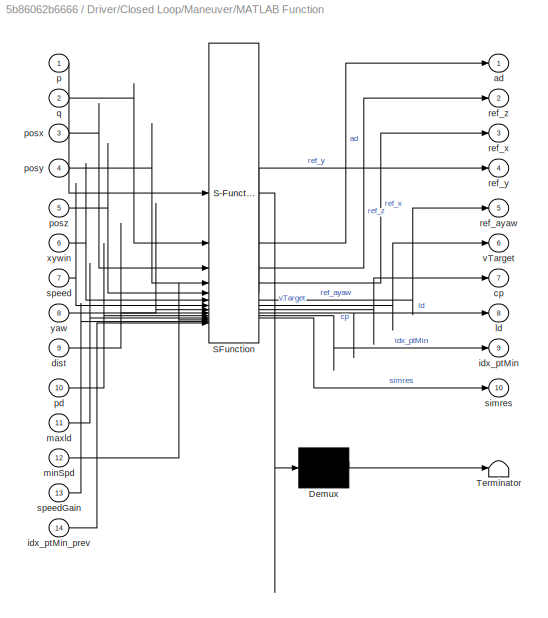
BLOCK [SubSystem] Driver/Closed Loop/Maneuver/MATLAB Function
  ErrorFcn = Stateflow.Translate.translate
  PermitHierarchicalResolution = ExplicitOnly
  SFBlockType = MATLAB Function
  SystemSampleTime = 0.1
BLOCK [Demux] Driver/Closed Loop/Maneuver/MATLAB Function/ Demux 
  Outputs = 1
BLOCK [S-Function] Driver/Closed Loop/Maneuver/MATLAB Function/ SFunction 
  EnableBusSupport = off
  FunctionName = sf_sfun
  PortCounts = [14 11]
  SFcnIsStateOwnerBlock = off
  SFunctionDeploymentMode = off
  Tag = Stateflow S-Function 11
BLOCK [Terminator] Driver/Closed Loop/Maneuver/MATLAB Function/ Terminator 
BLOCK [Outport] Driver/Closed Loop/Maneuver/MATLAB Function/ad
  VectorParamsAs1DForOutWhenUnconnected = off
BLOCK [Outport] Driver/Closed Loop/Maneuver/MATLAB Function/cp
  Port = 7
  VectorParamsAs1DForOutWhenUnconnected = off
BLOCK [Inport] Driver/Closed Loop/Maneuver/MATLAB Function/dist
  Port = 9
BLOCK [Outport] Driver/Closed Loop/Maneuver/MATLAB Function/idx_ptMin
  Port = 9
  VectorParamsAs1DForOutWhenUnconnected = off
BLOCK [Inport] Driver/Closed Loop/Maneuver/MATLAB Function/idx_ptMin_prev
  Port = 14
BLOCK [Outport] Driver/Closed Loop/Maneuver/MATLAB Function/ld
  Port = 8
  VectorParamsAs1DForOutWhenUnconnected = off
BLOCK [Inport] Driver/Closed Loop/Maneuver/MATLAB Function/maxld
  Port = 11
BLOCK [Inport] Driver/Closed Loop/Maneuver/MATLAB Function/minSpd
  Port = 12
BLOCK [Inport] Driver/Closed Loop/Maneuver/MATLAB Function/p
BLOCK [Inport] Driver/Closed Loop/Maneuver/MATLAB Function/pd
  Port = 10
BLOCK [Inport] Driver/Closed Loop/Maneuver/MATLAB Function/posx
  Port = 3
BLOCK [Inport] Driver/Closed Loop/Maneuver/MATLAB Function/posy
  Port = 4
BLOCK [Inport] Driver/Closed Loop/Maneuver/MATLAB Function/posz
  Port = 5
BLOCK [Inport] Driver/Closed Loop/Maneuver/MATLAB Function/q
  Port = 2
BLOCK [Outport] Driver/Closed Loop/Maneuver/MATLAB Function/ref_ayaw
  Port = 5
  VectorParamsAs1DForOutWhenUnconnected = off
BLOCK [Outport] Driver/Closed Loop/Maneuver/MATLAB Function/ref_x
  Port = 3
  VectorParamsAs1DForOutWhenUnconnected = off
BLOCK [Outport] Driver/Closed Loop/Maneuver/MATLAB Function/ref_y
  Port = 4
  VectorParamsAs1DForOutWhenUnconnected = off
BLOCK [Outport] Driver/Closed Loop/Maneuver/MATLAB Function/ref_z
  Port = 2
  VectorParamsAs1DForOutWhenUnconnected = off
BLOCK [Outport] Driver/Closed Loop/Maneuver/MATLAB Function/simres
  Port = 10
  VectorParamsAs1DForOutWhenUnconnected = off
BLOCK [Inport] Driver/Closed Loop/Maneuver/MATLAB Function/speed
  Port = 7
BLOCK [Inport] Driver/Closed Loop/Maneuver/MATLAB Function/speedGain
  Port = 13
BLOCK [Outport] Driver/Closed Loop/Maneuver/MATLAB Function/vTarget
  Port = 6
  VectorParamsAs1DForOutWhenUnconnected = off
BLOCK [Inport] Driver/Closed Loop/Maneuver/MATLAB Function/xywin
  Port = 6
BLOCK [Inport] Driver/Closed Loop/Maneuver/MATLAB Function/yaw
  Port = 8
BLOCK [Constant] Driver/Closed Loop/Maneuver/Max Lateral Distance (m)
  Value = Maneuver.xMaxLat.Value
BLOCK [Memory] Driver/Closed Loop/Maneuver/Memory
  InitialCondition = -1
  NameLocation = top
BLOCK [Constant] Driver/Closed Loop/Maneuver/Min Target Speed (m//s)
  Value = Maneuver.vMinTarget.Value
BLOCK [Mux] Driver/Closed Loop/Maneuver/Mux
  DisplayOption = bar
  Inputs = 3
BLOCK [Mux] Driver/Closed Loop/Maneuver/Mux1
  DisplayOption = bar
  Inputs = 3
BLOCK [Inport] Driver/Closed Loop/Maneuver/Override
  Port = 2
BLOCK [SubSystem] Driver/Closed Loop/Maneuver/PoseTargetVisual
BLOCK [Constant] Driver/Closed Loop/Maneuver/PoseTargetVisual/CW or CCW
  Value = sign(Maneuver.Trajectory.aYaw.Value(end)-Maneuver.Trajectory.aYaw.Value(1))
BLOCK [SubSystem] Driver/Closed Loop/Maneuver/PoseTargetVisual/Count Lap
BLOCK [Logic] Driver/Closed Loop/Maneuver/PoseTargetVisual/Count Lap/AND Add Lap
  AllPortsSameDT = off
  IconShape = distinctive
  OutDataTypeStr = boolean
BLOCK [Logic] Driver/Closed Loop/Maneuver/PoseTargetVisual/Count Lap/AND Subtract Lap
  AllPortsSameDT = off
  IconShape = distinctive
  OutDataTypeStr = boolean
BLOCK [DataTypeConversion] Driver/Closed Loop/Maneuver/PoseTargetVisual/Count Lap/Data Type Conversion
  NameLocation = left
  RndMeth = Floor
  SaturateOnIntegerOverflow = off
BLOCK [DataTypeConversion] Driver/Closed Loop/Maneuver/PoseTargetVisual/Count Lap/Data Type Conversion1
  NameLocation = top
  RndMeth = Floor
  SaturateOnIntegerOverflow = off
BLOCK [Reference] Driver/Closed Loop/Maneuver/PoseTargetVisual/Count Lap/First 5 Percent  REF=simulink/Logic and Bit
Operations/Compare
To Constant
  SourceBlock = simulink/Logic and Bit\nOperations/Compare\nTo Constant
  SourceType = Compare To Constant
BLOCK [Outport] Driver/Closed Loop/Maneuver/PoseTargetVisual/Count Lap/Lap Count
  VectorParamsAs1DForOutWhenUnconnected = off
BLOCK [Reference] Driver/Closed Loop/Maneuver/PoseTargetVisual/Count Lap/Last 5 Percent  REF=simulink/Logic and Bit
Operations/Compare
To Constant
  NameLocation = top
  SourceBlock = simulink/Logic and Bit\nOperations/Compare\nTo Constant
  SourceType = Compare To Constant
BLOCK [Memory] Driver/Closed Loop/Maneuver/PoseTargetVisual/Count Lap/Memory
  InitialCondition = false
  NameLocation = top
BLOCK [Memory] Driver/Closed Loop/Maneuver/PoseTargetVisual/Count Lap/Memory2
  InitialCondition = false
  NameLocation = top
BLOCK [Logic] Driver/Closed Loop/Maneuver/PoseTargetVisual/Count Lap/OR
  AllPortsSameDT = off
  IconShape = distinctive
  Operator = OR
  OutDataTypeStr = boolean
BLOCK [Sum] Driver/Closed Loop/Maneuver/PoseTargetVisual/Count Lap/Sum
  Inputs = +-|
  NameLocation = top
BLOCK [SubSystem] Driver/Closed Loop/Maneuver/PoseTargetVisual/Count Lap/Triggered Subsystem
  TreatAsAtomicUnit = on
BLOCK [Memory] Driver/Closed Loop/Maneuver/PoseTargetVisual/Count Lap/Triggered Subsystem/Memory
  InheritSampleTime = on
  NameLocation = top
BLOCK [Outport] Driver/Closed Loop/Maneuver/PoseTargetVisual/Count Lap/Triggered Subsystem/Num Laps
  VectorParamsAs1DForOutWhenUnconnected = off
BLOCK [Sum] Driver/Closed Loop/Maneuver/PoseTargetVisual/Count Lap/Triggered Subsystem/Sum
  Inputs = |++
BLOCK [TriggerPort] Driver/Closed Loop/Maneuver/PoseTargetVisual/Count Lap/Triggered Subsystem/Trigger
  StatesWhenEnabling = held
  VariantControl = Variant
  ZeroCross = off
BLOCK [Inport] Driver/Closed Loop/Maneuver/PoseTargetVisual/Count Lap/Triggered Subsystem/Up Down
BLOCK [Inport] Driver/Closed Loop/Maneuver/PoseTargetVisual/Count Lap/ad
BLOCK [Gain] Driver/Closed Loop/Maneuver/PoseTargetVisual/Gain
  Gain = 2*pi
BLOCK [Reference] Driver/Closed Loop/Maneuver/PoseTargetVisual/MechanismConfiguration  REF=sm_lib/Utilities/Mechanism
Configuration
  SourceBlock = sm_lib/Utilities/Mechanism\nConfiguration
  SourceType = Mechanism\nConfiguration
BLOCK [SubSystem] Driver/Closed Loop/Maneuver/PoseTargetVisual/Pace Car
BLOCK [PMIOPort] Driver/Closed Loop/Maneuver/PoseTargetVisual/Pace Car/FA
  Side = Right
BLOCK [Reference] Driver/Closed Loop/Maneuver/PoseTargetVisual/Pace Car/Left Face  REF=sm_lib/Body Elements/Extruded Solid
  NameLocation = top
  SourceBlock = sm_lib/Body Elements/Extruded Solid
  SourceType = Extruded Solid
BLOCK [Reference] Driver/Closed Loop/Maneuver/PoseTargetVisual/Pace Car/Ornament Front  REF=sm_lib/Body Elements/Extruded Solid
  SourceBlock = sm_lib/Body Elements/Extruded Solid
  SourceType = Extruded Solid
BLOCK [Reference] Driver/Closed Loop/Maneuver/PoseTargetVisual/Pace Car/Ornament Rear  REF=sm_lib/Body Elements/Extruded Solid
  SourceBlock = sm_lib/Body Elements/Extruded Solid
  SourceType = Extruded Solid
BLOCK [PMIOPort] Driver/Closed Loop/Maneuver/PoseTargetVisual/Pace Car/P
  Port = 2
  Side = Left
BLOCK [Reference] Driver/Closed Loop/Maneuver/PoseTargetVisual/Pace Car/Rear View  REF=sm_lib/Frames and
Transforms/Reference
Frame
  SourceBlock = sm_lib/Frames and\nTransforms/Reference\nFrame
  SourceType = Reference\nFrame
BLOCK [Reference] Driver/Closed Loop/Maneuver/PoseTargetVisual/Pace Car/Right Face  REF=sm_lib/Body Elements/Extruded Solid
  SourceBlock = sm_lib/Body Elements/Extruded Solid
  SourceType = Extruded Solid
BLOCK [Reference] Driver/Closed Loop/Maneuver/PoseTargetVisual/Pace Car/Top Surface  REF=sm_lib/Body Elements/Extruded Solid
  SourceBlock = sm_lib/Body Elements/Extruded Solid
  SourceType = Extruded Solid
BLOCK [Reference] Driver/Closed Loop/Maneuver/PoseTargetVisual/Pace Car/Transform Extrusion Axes  REF=sm_lib/Frames and
Transforms/Rigid
Transform
  SourceBlock = sm_lib/Frames and\nTransforms/Rigid\nTransform
  SourceType = Rigid\nTransform
BLOCK [Reference] Driver/Closed Loop/Maneuver/PoseTargetVisual/Pace Car/Transform Left Face  REF=sm_lib/Frames and
Transforms/Rigid
Transform
  NameLocation = left
  SourceBlock = sm_lib/Frames and\nTransforms/Rigid\nTransform
  SourceType = Rigid\nTransform
BLOCK [Reference] Driver/Closed Loop/Maneuver/PoseTargetVisual/Pace Car/Transform Ornament Front  REF=sm_lib/Frames and
Transforms/Rigid
Transform
  SourceBlock = sm_lib/Frames and\nTransforms/Rigid\nTransform
  SourceType = Rigid\nTransform
BLOCK [Reference] Driver/Closed Loop/Maneuver/PoseTargetVisual/Pace Car/Transform Ornament Rear  REF=sm_lib/Frames and
Transforms/Rigid
Transform
  SourceBlock = sm_lib/Frames and\nTransforms/Rigid\nTransform
  SourceType = Rigid\nTransform
BLOCK [Reference] Driver/Closed Loop/Maneuver/PoseTargetVisual/Pace Car/Transform Rear View  REF=sm_lib/Frames and
Transforms/Rigid
Transform
  SourceBlock = sm_lib/Frames and\nTransforms/Rigid\nTransform
  SourceType = Rigid\nTransform
BLOCK [Reference] Driver/Closed Loop/Maneuver/PoseTargetVisual/Pace Car/Transform Reference  REF=sm_lib/Frames and
Transforms/Rigid
Transform
  SourceBlock = sm_lib/Frames and\nTransforms/Rigid\nTransform
  SourceType = Rigid\nTransform
BLOCK [Reference] Driver/Closed Loop/Maneuver/PoseTargetVisual/Pace Car/Transform Right Face  REF=sm_lib/Frames and
Transforms/Rigid
Transform
  NameLocation = left
  SourceBlock = sm_lib/Frames and\nTransforms/Rigid\nTransform
  SourceType = Rigid\nTransform
BLOCK [Reference] Driver/Closed Loop/Maneuver/PoseTargetVisual/Planar Joint  REF=sm_lib/Joints/Planar Joint
  SourceBlock = sm_lib/Joints/Planar Joint
  SourceType = Planar Joint
BLOCK [Reference] Driver/Closed Loop/Maneuver/PoseTargetVisual/Prismatic Joint  REF=sm_lib/Joints/Prismatic
Joint
  SourceBlock = sm_lib/Joints/Prismatic\nJoint
  SourceType = Prismatic\nJoint
BLOCK [Product] Driver/Closed Loop/Maneuver/PoseTargetVisual/Product
BLOCK [Reference] Driver/Closed Loop/Maneuver/PoseTargetVisual/Rigid Transform  REF=sm_lib/Frames and
Transforms/Rigid
Transform
  SourceBlock = sm_lib/Frames and\nTransforms/Rigid\nTransform
  SourceType = Rigid\nTransform
BLOCK [Reference] Driver/Closed Loop/Maneuver/PoseTargetVisual/Simulink-PS Converter  REF=nesl_utility/Simulink-PS
Converter
  SourceBlock = nesl_utility/Simulink-PS\nConverter
  SourceType = Simulink-PS\nConverter
BLOCK [Reference] Driver/Closed Loop/Maneuver/PoseTargetVisual/Simulink-PS Converter1  REF=nesl_utility/Simulink-PS
Converter
  SourceBlock = nesl_utility/Simulink-PS\nConverter
  SourceType = Simulink-PS\nConverter
BLOCK [Reference] Driver/Closed Loop/Maneuver/PoseTargetVisual/Simulink-PS Converter2  REF=nesl_utility/Simulink-PS
Converter
  SourceBlock = nesl_utility/Simulink-PS\nConverter
  SourceType = Simulink-PS\nConverter
BLOCK [Reference] Driver/Closed Loop/Maneuver/PoseTargetVisual/Simulink-PS Converter3  REF=nesl_utility/Simulink-PS
Converter
  SourceBlock = nesl_utility/Simulink-PS\nConverter
  SourceType = Simulink-PS\nConverter
BLOCK [Reference] Driver/Closed Loop/Maneuver/PoseTargetVisual/Solver Configuration  REF=nesl_utility/Solver
Configuration
  SourceBlock = nesl_utility/Solver\nConfiguration
  SourceType = Solver\nConfiguration
BLOCK [Sum] Driver/Closed Loop/Maneuver/PoseTargetVisual/Sum
  Inputs = |++
BLOCK [Reference] Driver/Closed Loop/Maneuver/PoseTargetVisual/World Frame  REF=sm_lib/Frames and
Transforms/World Frame
  SourceBlock = sm_lib/Frames and\nTransforms/World Frame
  SourceType = World Frame
BLOCK [Inport] Driver/Closed Loop/Maneuver/PoseTargetVisual/dist
BLOCK [Inport] Driver/Closed Loop/Maneuver/PoseTargetVisual/ref_ayaw
  Port = 5
BLOCK [Inport] Driver/Closed Loop/Maneuver/PoseTargetVisual/ref_x
  Port = 2
BLOCK [Inport] Driver/Closed Loop/Maneuver/PoseTargetVisual/ref_y
  Port = 3
BLOCK [Inport] Driver/Closed Loop/Maneuver/PoseTargetVisual/ref_z
  Port = 4
BLOCK [Outport] Driver/Closed Loop/Maneuver/Ref
  VectorParamsAs1DForOutWhenUnconnected = off
BLOCK [Switch] Driver/Closed Loop/Maneuver/Switch
  Criteria = u2 > Threshold
  InputSameDT = off
  SaturateOnIntegerOverflow = off
BLOCK [Constant] Driver/Closed Loop/Maneuver/Target Speed Gain
  Value = Value
BLOCK [Inport] Driver/Closed Loop/Maneuver/VehBus
BLOCK [Constant] Driver/Closed Loop/Maneuver/Window of Points to Check
  Value = 10
BLOCK [Lookup_n-D] Driver/Closed Loop/Maneuver/preview distance
  BreakpointsForDimension1 = Maneuver.xPreview.v.Value
  InputPortMap = u0
  InternalRulePriority = Speed
  NumberOfTableDimensions = 1
  RndMeth = Simplest
  Table = Maneuver.xPreview.x.Value
BLOCK [Outport] Driver/Closed Loop/Maneuver/simres
  Port = 3
  VectorParamsAs1DForOutWhenUnconnected = off
BLOCK [SubSystem] Driver/Closed Loop/Maneuver/vx override
BLOCK [BusSelector] Driver/Closed Loop/Maneuver/vx override/Bus Selector2
  OutputSignals = offset,gain
BLOCK [Constant] Driver/Closed Loop/Maneuver/vx override/Constant5
  Value = Maneuver.Trajectory.vx.Value
BLOCK [Product] Driver/Closed Loop/Maneuver/vx override/Product
BLOCK [Sum] Driver/Closed Loop/Maneuver/vx override/Sum
  Inputs = ++|
BLOCK [Inport] Driver/Closed Loop/Maneuver/vx override/vx
BLOCK [Outport] Driver/Closed Loop/Maneuver/vx override/vx_ovr
  VectorParamsAs1DForOutWhenUnconnected = off
BLOCK [Constant] Driver/Closed Loop/Maneuver/window only
BLOCK [SubSystem] Driver/Closed Loop/Maneuver/x override
BLOCK [BusSelector] Driver/Closed Loop/Maneuver/x override/Bus Selector2
  OutputSignals = offset,gain
BLOCK [Constant] Driver/Closed Loop/Maneuver/x override/Constant3
  Value = Maneuver.Trajectory.x.Value
BLOCK [Product] Driver/Closed Loop/Maneuver/x override/Product
BLOCK [Sum] Driver/Closed Loop/Maneuver/x override/Sum
  Inputs = ++|
BLOCK [Inport] Driver/Closed Loop/Maneuver/x override/x
BLOCK [Outport] Driver/Closed Loop/Maneuver/x override/x_ovr
  VectorParamsAs1DForOutWhenUnconnected = off
BLOCK [SubSystem] Driver/Closed Loop/Maneuver/y override
BLOCK [BusSelector] Driver/Closed Loop/Maneuver/y override/Bus Selector2
  OutputSignals = offset,gain
BLOCK [Constant] Driver/Closed Loop/Maneuver/y override/Constant4
  Value = Maneuver.Trajectory.y.Value
BLOCK [Product] Driver/Closed Loop/Maneuver/y override/Product
BLOCK [Sum] Driver/Closed Loop/Maneuver/y override/Sum
  Inputs = ++|
BLOCK [Inport] Driver/Closed Loop/Maneuver/y override/y
BLOCK [Outport] Driver/Closed Loop/Maneuver/y override/y_ovr
  VectorParamsAs1DForOutWhenUnconnected = off
BLOCK [SubSystem] Driver/Closed Loop/Maneuver/z override
BLOCK [BusSelector] Driver/Closed Loop/Maneuver/z override/Bus Selector2
  OutputSignals = offset,gain
BLOCK [Constant] Driver/Closed Loop/Maneuver/z override/Constant1
  Value = Maneuver.Trajectory.z.Value
BLOCK [Product] Driver/Closed Loop/Maneuver/z override/Product
BLOCK [Sum] Driver/Closed Loop/Maneuver/z override/Sum
  Inputs = ++|
BLOCK [Inport] Driver/Closed Loop/Maneuver/z override/z
BLOCK [Outport] Driver/Closed Loop/Maneuver/z override/z_ovr
  VectorParamsAs1DForOutWhenUnconnected = off
BLOCK [Inport] Driver/Closed Loop/Obs
  Port = 2
BLOCK [SubSystem] Driver/Closed Loop/Override
  AttributesFormatString = %<LabelModeActiveChoice>
  LabelModeActiveChoice = None
  Variant = on
  VariantControl = Variant1
  VariantControlMode = label
BLOCK [Outport] Driver/Closed Loop/Override/ Ovr
  VectorParamsAs1DForOutWhenUnconnected = off
BLOCK [SubSystem] Driver/Closed Loop/Override/None
  VariantControl = None
BLOCK [BusCreator] Driver/Closed Loop/Override/None/Bus Creator
  DisplayOption = bar
  InheritFromInputs = on
  Inputs = 2
BLOCK [BusCreator] Driver/Closed Loop/Override/None/Bus Creator1
  DisplayOption = bar
  InheritFromInputs = on
  Inputs = 4
BLOCK [BusCreator] Driver/Closed Loop/Override/None/Bus Creator2
  DisplayOption = bar
  InheritFromInputs = on
  Inputs = 2
BLOCK [BusCreator] Driver/Closed Loop/Override/None/Bus Creator3
  DisplayOption = bar
  InheritFromInputs = on
  Inputs = 2
BLOCK [BusCreator] Driver/Closed Loop/Override/None/Bus Creator4
  DisplayOption = bar
  InheritFromInputs = on
  Inputs = 2
BLOCK [Constant] Driver/Closed Loop/Override/None/Constant1
  Value = 0
BLOCK [Constant] Driver/Closed Loop/Override/None/Constant2
  Value = 0
BLOCK [Constant] Driver/Closed Loop/Override/None/Constant3
BLOCK [Constant] Driver/Closed Loop/Override/None/Constant4
  Value = 0
BLOCK [Constant] Driver/Closed Loop/Override/None/Constant5
BLOCK [Constant] Driver/Closed Loop/Override/None/Constant6
  Value = 0
BLOCK [Constant] Driver/Closed Loop/Override/None/Constant7
BLOCK [Constant] Driver/Closed Loop/Override/None/Constant8
BLOCK [Inport] Driver/Closed Loop/Override/None/Obs
  Port = 2
BLOCK [Outport] Driver/Closed Loop/Override/None/Ovr
  VectorParamsAs1DForOutWhenUnconnected = off
BLOCK [Terminator] Driver/Closed Loop/Override/None/Terminator
BLOCK [Terminator] Driver/Closed Loop/Override/None/Terminator1
BLOCK [Inport] Driver/Closed Loop/Override/None/dist
BLOCK [Inport] Driver/Closed Loop/Override/Obs 
  Port = 2
BLOCK [Inport] Driver/Closed Loop/Override/dist 
BLOCK [SubSystem] Driver/Closed Loop/Scopes
BLOCK [Inport] Driver/Closed Loop/Scopes/<vx>
BLOCK [BusSelector] Driver/Closed Loop/Scopes/Bus Selector1
  OutputSignals = aSteerWheel,rAccelPedal,rBrakePedal
BLOCK [Scope] Driver/Closed Loop/Scopes/Compare vx to Target
  ActiveDisplayYMaximum = 577.70683
  ActiveDisplayYMinimum = -326.96749
  DataLoggingVariableName = ScopeData1
  Floating = off
  GraphicalSettings = {"GraphicalSettings":{"LegacySettings":true,"Style":{"AxesScalingProperties":{"ScaleAxesLimitsAtStop":false},"Style":{"AxesColor":"[0 0 0]","ChannelNames":[""],"ColorOrder":"[1 1 0.0666666666666667;0.0745098039215686 0.623529411764706 1;1 0.411764705882353 0.16078431372549;0.392156862745098 0.831372549019608 0.0745098039215686;0.717647058823529 0.274509803921569 1;0.0588235294117647 1 1;1 0.074509...<+399ch>
  MultipleDisplayCache = [{"MaxYLimMag":577.70683,"MaxYLimReal":577.70683,"MinYLimMag":0,"MinYLimReal":-326.96749,"PlotAsMagnitudePhase":false,"ShowGrid":true,"ShowLegend":false,"Title":"%<SignalLabel>","YLabel":""}]
  NumInputPorts = 2
  WasSavedAsWebScope = on
  WindowPosition = [848 343 560 459]
BLOCK [Inport] Driver/Closed Loop/Scopes/CurPose
  Port = 3
BLOCK [Inport] Driver/Closed Loop/Scopes/DrvBus
  Port = 4
BLOCK [Inport] Driver/Closed Loop/Scopes/Ref
  Port = 2
BLOCK [Scope] Driver/Closed Loop/Scopes/RefPose
  ActiveDisplayYMaximum = 469.37365
  ActiveDisplayYMinimum = -598.75829
  DataLoggingVariableName = ScopeData1
  Floating = off
  GraphicalSettings = {"GraphicalSettings":{"LegacySettings":true,"Style":{"AxesScalingProperties":{"ScaleAxesLimitsAtStop":false},"Style":{"AxesColor":"[0 0 0]","ChannelNames":[""],"ColorOrder":"[1 1 0.0666666666666667;0.0745098039215686 0.623529411764706 1;1 0.411764705882353 0.16078431372549;0.392156862745098 0.831372549019608 0.0745098039215686;0.717647058823529 0.274509803921569 1;0.0588235294117647 1 1;1 0.074509...<+577ch>
  MultipleDisplayCache = [{"MaxYLimMag":598.75829,"MaxYLimReal":469.37365,"MinYLimMag":0,"MinYLimReal":-598.75829,"PlotAsMagnitudePhase":false,"ShowGrid":true,"ShowLegend":false,"Title":"%<SignalLabel>","YLabel":""}]
  NumInputPorts = 1
  WasSavedAsWebScope = on
BLOCK [Scope] Driver/Closed Loop/Scopes/Scope1
  ActiveDisplayYMaximum = 1.2009495590651669
  ActiveDisplayYMinimum = -0.13343883989612962
  DataLoggingVariableName = ScopeData2
  Floating = off
  GraphicalSettings = {"Style":{"BackgroundColor":[0.12941176470588237,0.12941176470588237,0.12941176470588237],"AxesColor":[0.07058823529411765,0.07058823529411765,0.07058823529411765],"LabelsColor":[0.8509803921568627,0.8509803921568627,0.8509803921568627],"PreserveColors":false,"Visible":[true,true,true],"LineStyle":["-","-","-"],"LineWidth":[1.5,1.5,1.5],"BarWidth":[0.9,0.9,0.9],"LineColor":["auto","auto","auto"],"...<+2758ch>
  LayoutDimensionsString = [3 1]
  MultipleDisplayCache = [{"MaxYLimMag":1.2009495590651669,"MaxYLimReal":1.2009495590651669,"MinYLimMag":0,"MinYLimReal":-0.13343883989612962,"PlotAsMagnitudePhase":false,"ShowGrid":true,"ShowLegend":false,"Title":"%<SignalLabel>","YLabel":""},{"MaxYLimMag":0.7184275784651819,"MaxYLimReal":0.7184275784651819,"MinYLimMag":0,"MinYLimReal":-0.079825286496131312,"PlotAsMagnitudePhase":false,"ShowGrid":true,"ShowLegend":false,...<+256ch>
  NumInputPorts = 3
  ScopeFrameLocation = window
  WasSavedAsWebScope = on
  WindowPosition = [575.000000,234.000000,560.000000,639.000000,]
BLOCK [Terminator] Driver/Closed Loop/Terminator
BLOCK [TransferFcn] Driver/Closed Loop/Transfer Fcn
  Denominator = [0.1 1]
BLOCK [Inport] Driver/Closed Loop/VehBus
BLOCK [Inport] Driver/Obs
  Port = 2
BLOCK [SubSystem] Driver/Open Loop
  VariantControl = Open_Loop
BLOCK [Outport] Driver/Open Loop/DrvBus
  VectorParamsAs1DForOutWhenUnconnected = off
BLOCK [Inport] Driver/Open Loop/Obs
  Port = 2
BLOCK [SubSystem] Driver/Open Loop/Open Loop
BLOCK [BusCreator] Driver/Open Loop/Open Loop/Bus Creator
  DisplayOption = bar
  InheritFromInputs = on
  Inputs = 6
BLOCK [BusCreator] Driver/Open Loop/Open Loop/Bus Creator5
  DisplayOption = bar
  InheritFromInputs = on
  Inputs = 4
BLOCK [Constant] Driver/Open Loop/Open Loop/Constant
  Value = 10000
BLOCK [Constant] Driver/Open Loop/Open Loop/Constant1
  Value = 0
BLOCK [Constant] Driver/Open Loop/Open Loop/Constant2
  Value = 0
BLOCK [Constant] Driver/Open Loop/Open Loop/Constant3
  Value = 0
BLOCK [Constant] Driver/Open Loop/Open Loop/Constant4
  Value = 0
BLOCK [Constant] Driver/Open Loop/Open Loop/Constant5
  Value = 0
BLOCK [Outport] Driver/Open Loop/Open Loop/DrvBus
  VectorParamsAs1DForOutWhenUnconnected = off
BLOCK [Reference] Driver/Open Loop/Open Loop/Input Sequence Accel Pedal  REF=simulink/Sources/Repeating
Sequence
  SourceBlock = simulink/Sources/Repeating\nSequence
  SourceType = Repeating table
BLOCK [Reference] Driver/Open Loop/Open Loop/Input Sequence Brake Pedal  REF=simulink/Sources/Repeating
Sequence
  SourceBlock = simulink/Sources/Repeating\nSequence
  SourceType = Repeating table
BLOCK [Reference] Driver/Open Loop/Open Loop/Input Sequence Steering Wheel   REF=simulink/Sources/Repeating
Sequence
  SourceBlock = simulink/Sources/Repeating\nSequence
  SourceType = Repeating table
BLOCK [Terminator] Driver/Open Loop/Terminator
BLOCK [Terminator] Driver/Open Loop/Terminator1
BLOCK [Inport] Driver/Open Loop/VehBus
BLOCK [Inport] Driver/VehBus 
BLOCK [Outport] Out1
  VectorParamsAs1DForOutWhenUnconnected = off
BLOCK [SubSystem] Road
  NameLocation = top
BLOCK [BusCreator] Road/Bus Creator
  DisplayOption = bar
  InheritFromInputs = on
  Inputs = 6
BLOCK [BusSelector] Road/Bus Selector1
  OutputSignals = Chassis
BLOCK [SubSystem] Road/Ground
BLOCK [BusCreator] Road/Ground/Bus Creator
  DisplayOption = bar
  InheritFromInputs = on
  Inputs = 3
BLOCK [BusCreator] Road/Ground/Bus Creator1
  DisplayOption = bar
  InheritFromInputs = on
  Inputs = 3
BLOCK [BusCreator] Road/Ground/Bus Creator2
  DisplayOption = bar
  InheritFromInputs = on
  Inputs = 3
BLOCK [BusCreator] Road/Ground/Bus Creator3
  DisplayOption = bar
  InheritFromInputs = on
  Inputs = 3
BLOCK [BusSelector] Road/Ground/Bus Selector
  OutputSignals = L1,R1,L2,R2
BLOCK [BusSelector] Road/Ground/Bus Selector1
  OutputSignals = L1,R1,L2,R2
BLOCK [Gain] Road/Ground/Gain
BLOCK [Gain] Road/Ground/Gain1
BLOCK [Gain] Road/Ground/Gain2
BLOCK [Gain] Road/Ground/Gain3
BLOCK [Gain] Road/Ground/Gain4
BLOCK [Gain] Road/Ground/Gain5
BLOCK [Gain] Road/Ground/Gain6
BLOCK [Gain] Road/Ground/Gain7
BLOCK [Outport] Road/Ground/L1
  VectorParamsAs1DForOutWhenUnconnected = off
BLOCK [Outport] Road/Ground/L2
  Port = 3
  VectorParamsAs1DForOutWhenUnconnected = off
BLOCK [Outport] Road/Ground/R1
  Port = 2
  VectorParamsAs1DForOutWhenUnconnected = off
BLOCK [Outport] Road/Ground/R2
  Port = 4
  VectorParamsAs1DForOutWhenUnconnected = off
BLOCK [SignalSpecification] Road/Ground/Signal Specification1
  Unit = m
BLOCK [Inport] Road/Ground/TyreScaling FL
  Port = 3
BLOCK [Inport] Road/Ground/TyreScaling FR
  Port = 4
BLOCK [Inport] Road/Ground/TyreScaling RL
  Port = 5
BLOCK [Inport] Road/Ground/TyreScaling RR
  Port = 6
BLOCK [Inport] Road/Ground/gz
BLOCK [Inport] Road/Ground/uvec
  Port = 2
BLOCK [SubSystem] Road/Input fWindCar
BLOCK [BusCreator] Road/Input fWindCar/Bus Creator1
  DisplayOption = bar
  InheritFromInputs = on
  Inputs = 3
BLOCK [Demux] Road/Input fWindCar/Demux
  Outputs = 3
BLOCK [Step] Road/Input fWindCar/Step
  After = fWind
  SampleTime = 0
  Time = dWind
BLOCK [Step] Road/Input fWindCar/Step1
  After = fWind
  SampleTime = 0
  Time = dWind+tWind
BLOCK [Sum] Road/Input fWindCar/Sum
  Inputs = |+-
BLOCK [Outport] Road/Input fWindCar/fWind
  VectorParamsAs1DForOutWhenUnconnected = off
BLOCK [SubSystem] Road/Input fWindTrailer
BLOCK [BusCreator] Road/Input fWindTrailer/Bus Creator1
  DisplayOption = bar
  InheritFromInputs = on
  Inputs = 3
BLOCK [Demux] Road/Input fWindTrailer/Demux
  Outputs = 3
BLOCK [Scope] Road/Input fWindTrailer/Scope
  ActiveDisplayYMaximum = 1
  ActiveDisplayYMinimum = -1
  DataLoggingVariableName = ScopeData1
  Floating = off
  GraphicalSettings = {"GraphicalSettings":{"LegacySettings":true,"Style":{"Style":{"AxesColor":"[0 0 0]","ChannelNames":[""],"ColorOrder":"[1 1 0.0666666666666667;0.0745098039215686 0.623529411764706 1;1 0.411764705882353 0.16078431372549;0.392156862745098 0.831372549019608 0.0745098039215686;0.717647058823529 0.274509803921569 1;0.0588235294117647 1 1;1 0.0745098039215686 0.650980392156863]","CurrentConfiguration":"e...<+343ch>  <repeated x3 — deduplicated; at blocks: Scope, Scope4, Scope9>
  MultipleDisplayCache = [{"MaxYLimMag":1,"MaxYLimReal":1,"MinYLimMag":0,"MinYLimReal":-1,"PlotAsMagnitudePhase":false,"ShowGrid":true,"ShowLegend":false,"Title":"%<SignalLabel>","YLabel":""}]
  NumInputPorts = 1
  WasSavedAsWebScope = on
  WindowPosition = [818 454 560 420]
BLOCK [Step] Road/Input fWindTrailer/Step
  After = fWind
  SampleTime = 0
  Time = dWind
BLOCK [Step] Road/Input fWindTrailer/Step1
  After = fWind
  SampleTime = 0
  Time = dWind+tWind
BLOCK [Sum] Road/Input fWindTrailer/Sum
  Inputs = |+-
BLOCK [Outport] Road/Input fWindTrailer/fWind
  VectorParamsAs1DForOutWhenUnconnected = off
BLOCK [SubSystem] Road/Mu Scaling by Position
BLOCK [Demux] Road/Mu Scaling by Position/Demux
  Outputs = 2
BLOCK [Demux] Road/Mu Scaling by Position/Demux1
  Outputs = 2
BLOCK [Demux] Road/Mu Scaling by Position/Demux2
  Outputs = 2
BLOCK [Demux] Road/Mu Scaling by Position/Demux3
  Outputs = 2
BLOCK [Inport] Road/Mu Scaling by Position/In Bus Element1
BLOCK [Inport] Road/Mu Scaling by Position/In Bus Element2
BLOCK [Inport] Road/Mu Scaling by Position/In Bus Element3
BLOCK [Inport] Road/Mu Scaling by Position/In Bus Element4
BLOCK [Reference] Road/Mu Scaling by Position/Interval Test FLx  REF=simulink/Logic and Bit
Operations/Interval Test
  NameLocation = top
  SourceBlock = simulink/Logic and Bit\nOperations/Interval Test
  SourceType = Interval Test
BLOCK [Reference] Road/Mu Scaling by Position/Interval Test FLy  REF=simulink/Logic and Bit
Operations/Interval Test
  SourceBlock = simulink/Logic and Bit\nOperations/Interval Test
  SourceType = Interval Test
BLOCK [Reference] Road/Mu Scaling by Position/Interval Test FRx  REF=simulink/Logic and Bit
Operations/Interval Test
  NameLocation = top
  SourceBlock = simulink/Logic and Bit\nOperations/Interval Test
  SourceType = Interval Test
BLOCK [Reference] Road/Mu Scaling by Position/Interval Test FRy  REF=simulink/Logic and Bit
Operations/Interval Test
  SourceBlock = simulink/Logic and Bit\nOperations/Interval Test
  SourceType = Interval Test
BLOCK [Reference] Road/Mu Scaling by Position/Interval Test RLx  REF=simulink/Logic and Bit
Operations/Interval Test
  NameLocation = top
  SourceBlock = simulink/Logic and Bit\nOperations/Interval Test
  SourceType = Interval Test
BLOCK [Reference] Road/Mu Scaling by Position/Interval Test RLy  REF=simulink/Logic and Bit
Operations/Interval Test
  SourceBlock = simulink/Logic and Bit\nOperations/Interval Test
  SourceType = Interval Test
BLOCK [Reference] Road/Mu Scaling by Position/Interval Test RRx  REF=simulink/Logic and Bit
Operations/Interval Test
  NameLocation = top
  SourceBlock = simulink/Logic and Bit\nOperations/Interval Test
  SourceType = Interval Test
BLOCK [Reference] Road/Mu Scaling by Position/Interval Test RRy  REF=simulink/Logic and Bit
Operations/Interval Test
  SourceBlock = simulink/Logic and Bit\nOperations/Interval Test
  SourceType = Interval Test
BLOCK [Outport] Road/Mu Scaling by Position/L1
  VectorParamsAs1DForOutWhenUnconnected = off
BLOCK [Outport] Road/Mu Scaling by Position/L2
  Port = 3
  VectorParamsAs1DForOutWhenUnconnected = off
BLOCK [Outport] Road/Mu Scaling by Position/R1
  Port = 2
  VectorParamsAs1DForOutWhenUnconnected = off
BLOCK [Outport] Road/Mu Scaling by Position/R2
  Port = 4
  VectorParamsAs1DForOutWhenUnconnected = off
BLOCK [SubSystem] Road/Mu Scaling by Position/Scaling factors FL
BLOCK [Inport] Road/Mu Scaling by Position/Scaling factors FL/muX
BLOCK [Inport] Road/Mu Scaling by Position/Scaling factors FL/muY
  Port = 2
BLOCK [Constant] Road/Mu Scaling by Position/Scaling factors FL/s_LKX
  Value = LKX
BLOCK [Constant] Road/Mu Scaling by Position/Scaling factors FL/s_LKY
  Value = LKY
BLOCK [Constant] Road/Mu Scaling by Position/Scaling factors FL/s_LKYC
  Value = LKYC
BLOCK [Constant] Road/Mu Scaling by Position/Scaling factors FL/s_LKZC
  Value = LKZC
BLOCK [Constant] Road/Mu Scaling by Position/Scaling factors FL/s_LTR
  Value = LTR
BLOCK [Outport] Road/Mu Scaling by Position/Scaling factors FL/scaling
  VectorParamsAs1DForOutWhenUnconnected = off
BLOCK [Mux] Road/Mu Scaling by Position/Scaling factors FL/scaling_vector
  DisplayOption = bar
  Inputs = 7
BLOCK [SubSystem] Road/Mu Scaling by Position/Scaling factors FR
BLOCK [Inport] Road/Mu Scaling by Position/Scaling factors FR/muX
BLOCK [Inport] Road/Mu Scaling by Position/Scaling factors FR/muY
  Port = 2
BLOCK [Constant] Road/Mu Scaling by Position/Scaling factors FR/s_LKX
  Value = LKX
BLOCK [Constant] Road/Mu Scaling by Position/Scaling factors FR/s_LKY
  Value = LKY
BLOCK [Constant] Road/Mu Scaling by Position/Scaling factors FR/s_LKYC
  Value = LKYC
BLOCK [Constant] Road/Mu Scaling by Position/Scaling factors FR/s_LKZC
  Value = LKZC
BLOCK [Constant] Road/Mu Scaling by Position/Scaling factors FR/s_LTR
  Value = LTR
BLOCK [Outport] Road/Mu Scaling by Position/Scaling factors FR/scaling
  VectorParamsAs1DForOutWhenUnconnected = off
BLOCK [Mux] Road/Mu Scaling by Position/Scaling factors FR/scaling_vector
  DisplayOption = bar
  Inputs = 7
BLOCK [SubSystem] Road/Mu Scaling by Position/Scaling factors RL
BLOCK [Inport] Road/Mu Scaling by Position/Scaling factors RL/muX
BLOCK [Inport] Road/Mu Scaling by Position/Scaling factors RL/muY
  Port = 2
BLOCK [Constant] Road/Mu Scaling by Position/Scaling factors RL/s_LKX
  Value = LKX
BLOCK [Constant] Road/Mu Scaling by Position/Scaling factors RL/s_LKY
  Value = LKY
BLOCK [Constant] Road/Mu Scaling by Position/Scaling factors RL/s_LKYC
  Value = LKYC
BLOCK [Constant] Road/Mu Scaling by Position/Scaling factors RL/s_LKZC
  Value = LKZC
BLOCK [Constant] Road/Mu Scaling by Position/Scaling factors RL/s_LTR
  Value = LTR
BLOCK [Outport] Road/Mu Scaling by Position/Scaling factors RL/scaling
  VectorParamsAs1DForOutWhenUnconnected = off
BLOCK [Mux] Road/Mu Scaling by Position/Scaling factors RL/scaling_vector
  DisplayOption = bar
  Inputs = 7
BLOCK [SubSystem] Road/Mu Scaling by Position/Scaling factors RR
BLOCK [Inport] Road/Mu Scaling by Position/Scaling factors RR/muX
BLOCK [Inport] Road/Mu Scaling by Position/Scaling factors RR/muY
  Port = 2
BLOCK [Constant] Road/Mu Scaling by Position/Scaling factors RR/s_LKX
  Value = LKX
BLOCK [Constant] Road/Mu Scaling by Position/Scaling factors RR/s_LKY
  Value = LKY
BLOCK [Constant] Road/Mu Scaling by Position/Scaling factors RR/s_LKYC
  Value = LKYC
BLOCK [Constant] Road/Mu Scaling by Position/Scaling factors RR/s_LKZC
  Value = LKZC
BLOCK [Constant] Road/Mu Scaling by Position/Scaling factors RR/s_LTR
  Value = LTR
BLOCK [Outport] Road/Mu Scaling by Position/Scaling factors RR/scaling
  VectorParamsAs1DForOutWhenUnconnected = off
BLOCK [Mux] Road/Mu Scaling by Position/Scaling factors RR/scaling_vector
  DisplayOption = bar
  Inputs = 7
BLOCK [Selector] Road/Mu Scaling by Position/Selector
  IndexOptions = Index vector (dialog)
  Indices = [1 2]
  InputPortWidth = 3
  OutputSizes = 1
BLOCK [Selector] Road/Mu Scaling by Position/Selector1
  IndexOptions = Index vector (dialog)
  Indices = [1 2]
  InputPortWidth = 3
  OutputSizes = 1
BLOCK [Selector] Road/Mu Scaling by Position/Selector2
  IndexOptions = Index vector (dialog)
  Indices = [1 2]
  InputPortWidth = 3
  OutputSizes = 1
BLOCK [Selector] Road/Mu Scaling by Position/Selector3
  IndexOptions = Index vector (dialog)
  Indices = [1 2]
  InputPortWidth = 3
  OutputSizes = 1
BLOCK [Sum] Road/Mu Scaling by Position/Sum
  Inputs = |++
BLOCK [Sum] Road/Mu Scaling by Position/Sum1
  Inputs = |++
BLOCK [Sum] Road/Mu Scaling by Position/Sum2
  Inputs = |++
BLOCK [Sum] Road/Mu Scaling by Position/Sum3
  Inputs = |++
BLOCK [Switch] Road/Mu Scaling by Position/Switch
  Criteria = u2 > Threshold
  InputSameDT = off
  SaturateOnIntegerOverflow = off
  Threshold = 1
  ZeroCross = off
BLOCK [Switch] Road/Mu Scaling by Position/Switch1
  Criteria = u2 > Threshold
  InputSameDT = off
  SaturateOnIntegerOverflow = off
  Threshold = 1
BLOCK [Switch] Road/Mu Scaling by Position/Switch2
  Criteria = u2 > Threshold
  InputSameDT = off
  SaturateOnIntegerOverflow = off
  Threshold = 1
BLOCK [Switch] Road/Mu Scaling by Position/Switch3
  Criteria = u2 > Threshold
  InputSameDT = off
  SaturateOnIntegerOverflow = off
  Threshold = 1
BLOCK [Constant] Road/Mu Scaling by Position/muFL in
  NameLocation = top
  Value = muFL_in
BLOCK [Constant] Road/Mu Scaling by Position/muFL out
  Value = muFL_out
BLOCK [Constant] Road/Mu Scaling by Position/muFR in
  NameLocation = top
  Value = muFR_in
BLOCK [Constant] Road/Mu Scaling by Position/muFR out
  Value = muFR_out
BLOCK [Constant] Road/Mu Scaling by Position/muRL in
  NameLocation = top
  Value = muRL_in
BLOCK [Constant] Road/Mu Scaling by Position/muRL out
  Value = muRL_out
BLOCK [Constant] Road/Mu Scaling by Position/muRR in
  NameLocation = top
  Value = muRR_in
BLOCK [Constant] Road/Mu Scaling by Position/muRR out
  Value = muRR_out
BLOCK [Outport] Road/RdBus
  VectorParamsAs1DForOutWhenUnconnected = off
BLOCK [SubSystem] Road/Road Surface Height
  AttributesFormatString = %<LabelModeActiveChoice>
  LabelModeActiveChoice = None
  Variant = on
  VariantControlMode = label
BLOCK [Inport] Road/Road Surface Height/Chassis
BLOCK [SubSystem] Road/Road Surface Height/None
  VariantControl = None
BLOCK [BusCreator] Road/Road Surface Height/None/Bus Creator
  DisplayOption = bar
  InheritFromInputs = on
  Inputs = 4
BLOCK [BusCreator] Road/Road Surface Height/None/Bus Creator1
  DisplayOption = bar
  InheritFromInputs = on
  Inputs = 4
BLOCK [Inport] Road/Road Surface Height/None/Chassis
BLOCK [Constant] Road/Road Surface Height/None/Constant
  Value = [0 0 0 0]
BLOCK [Constant] Road/Road Surface Height/None/Constant1
  Value = [0 0 1]
BLOCK [Constant] Road/Road Surface Height/None/Constant2
  Value = [0 0 1]
BLOCK [Constant] Road/Road Surface Height/None/Constant3
  Value = [0 0 1]
BLOCK [Constant] Road/Road Surface Height/None/Constant4
  Value = [0 0 1]
BLOCK [Demux] Road/Road Surface Height/None/Demux2
BLOCK [SignalSpecification] Road/Road Surface Height/None/Signal Specification1
  Unit = m
BLOCK [Terminator] Road/Road Surface Height/None/Terminator
BLOCK [Outport] Road/Road Surface Height/None/gz
  VectorParamsAs1DForOutWhenUnconnected = off
BLOCK [Outport] Road/Road Surface Height/None/uvec
  Port = 2
  VectorParamsAs1DForOutWhenUnconnected = off
BLOCK [Outport] Road/Road Surface Height/gz
  VectorParamsAs1DForOutWhenUnconnected = off
BLOCK [Outport] Road/Road Surface Height/uvec
  Port = 2
  VectorParamsAs1DForOutWhenUnconnected = off
BLOCK [Inport] Road/VehBus
BLOCK [SubSystem] Scopes
BLOCK [Inport] Scopes/Bus
BLOCK [BusSelector] Scopes/Bus Selector
  OutputSignals = Chassis.WhlL1.aSlip,Chassis.WhlR1.aSlip,Chassis.WhlL2.aSlip,Chassis.WhlR2.aSlip
BLOCK [BusSelector] Scopes/Bus Selector1
  OutputSignals = Chassis.Spring.L1.xSpring,Chassis.Spring.R1.xSpring,Chassis.Spring.L2.xSpring,Chassis.Spring.R2.xSpring
BLOCK [BusSelector] Scopes/Bus Selector2
  OutputSignals = Chassis.WhlL1.Fx,Chassis.WhlR1.Fx,Chassis.WhlL2.Fx,Chassis.WhlR2.Fx
BLOCK [BusSelector] Scopes/Bus Selector3
  OutputSignals = Chassis.WhlL1.qxyz
BLOCK [BusSelector] Scopes/Bus Selector4
  OutputSignals = Driveline.anDriveshaftL1.q,Driveline.anDriveshaftR1.q,Driveline.anDriveshaftL1.w,Driveline.anDriveshaftR1.w
BLOCK [BusSelector] Scopes/Bus Selector5
  NameLocation = top
  OutputSignals = Chassis.Body.CG.aRoll,Chassis.Body.CG.nRoll,Chassis.Body.CG.aPitch,Chassis.Body.CG.nPitch
BLOCK [BusSelector] Scopes/Bus Selector6
  OutputSignals = Chassis.WhlL1.n,Chassis.WhlR1.n,Chassis.WhlR2.n,Chassis.WhlL2.n
BLOCK [BusSelector] Scopes/Bus Selector7
  NameLocation = top
  OutputSignals = Chassis.Body.CG.z,World.z
BLOCK [Mux] Scopes/Mux
  DisplayOption = bar
  Inputs = 2
BLOCK [Scope] Scopes/Scope
  ActiveDisplayYMaximum = 1.96118
  ActiveDisplayYMinimum = -1.96294
  DataLoggingVariableName = ScopeData1
  Floating = off
  GraphicalSettings = {"GraphicalSettings":{"LegacySettings":true,"Style":{"AxesScalingProperties":{"ScaleAxesLimitsAtStop":false},"Style":{"AxesColor":"[0 0 0]","ChannelNames":[""],"ColorOrder":"[1 1 0.0666666666666667;0.0745098039215686 0.623529411764706 1;1 0.411764705882353 0.16078431372549;0.392156862745098 0.831372549019608 0.0745098039215686;0.717647058823529 0.274509803921569 1;0.0588235294117647 1 1;1 0.074509...<+426ch>  <repeated x3 — deduplicated; at blocks: Scope, Scope1, Scope5>
  MultipleDisplayCache = [{"MaxYLimMag":1.96294,"MaxYLimReal":1.96118,"MinYLimMag":0,"MinYLimReal":-1.96294,"PlotAsMagnitudePhase":false,"ShowGrid":true,"ShowLegend":false,"Title":"%<SignalLabel>","YLabel":""}]
  NumInputPorts = 4
  WasSavedAsWebScope = on
  WindowPosition = [818 454 560 420]
BLOCK [Scope] Scopes/Scope1
  ActiveDisplayYMaximum = 0.77014
  ActiveDisplayYMinimum = 0.59933
  DataLoggingVariableName = ScopeData1
  Floating = off
  MultipleDisplayCache = [{"MaxYLimMag":0.77014,"MaxYLimReal":0.77014,"MinYLimMag":0.59933,"MinYLimReal":0.59933,"PlotAsMagnitudePhase":false,"ShowGrid":true,"ShowLegend":false,"Title":"%<SignalLabel>","YLabel":""}]
  NumInputPorts = 4
  WasSavedAsWebScope = on
  WindowPosition = [818 454 560 420]
BLOCK [Scope] Scopes/Scope2
  ActiveDisplayYMaximum = 8948.55481
  ActiveDisplayYMinimum = -8724.32507
  DataLoggingVariableName = ScopeData1
  Floating = off
  GraphicalSettings = {"GraphicalSettings":{"LegacySettings":true,"Style":{"AxesScalingProperties":{"ScaleAxesLimitsAtStop":false},"Style":{"AxesColor":"[0 0 0]","ChannelNames":[""],"ColorOrder":"[1 1 0.0666666666666667;0.0745098039215686 0.623529411764706 1;1 0.411764705882353 0.16078431372549;0.392156862745098 0.831372549019608 0.0745098039215686;0.717647058823529 0.274509803921569 1;0.0588235294117647 1 1;1 0.074509...<+463ch>
  MultipleDisplayCache = [{"MaxYLimMag":8948.55481,"MaxYLimReal":8948.55481,"MinYLimMag":0,"MinYLimReal":-8724.32507,"PlotAsMagnitudePhase":false,"ShowGrid":true,"ShowLegend":false,"Title":"%<SignalLabel>","YLabel":""}]
  NumInputPorts = 4
  WasSavedAsWebScope = on
BLOCK [Scope] Scopes/Scope3
  ActiveDisplayYMaximum = 775.52925
  ActiveDisplayYMinimum = -86.18516
  DataLoggingVariableName = ScopeData1
  Floating = off
  GraphicalSettings = {"GraphicalSettings":{"LegacySettings":true,"Style":{"AxesScalingProperties":{"ScaleAxesLimitsAtStop":false},"Style":{"AxesColor":"[0 0 0]","ChannelNames":[""],"ColorOrder":"[1 1 0.0666666666666667;0.0745098039215686 0.623529411764706 1;1 0.411764705882353 0.16078431372549;0.392156862745098 0.831372549019608 0.0745098039215686;0.717647058823529 0.274509803921569 1;0.0588235294117647 1 1;1 0.074509...<+451ch>
  MultipleDisplayCache = [{"MaxYLimMag":775.52925,"MaxYLimReal":775.52925,"MinYLimMag":0,"MinYLimReal":-86.18516,"PlotAsMagnitudePhase":false,"ShowGrid":true,"ShowLegend":false,"Title":"%<SignalLabel>","YLabel":""}]
  NumInputPorts = 1
  WasSavedAsWebScope = on
  WindowPosition = [818 454 560 420]
BLOCK [Scope] Scopes/Scope4
  ActiveDisplayYMaximum = 6.20079
  ActiveDisplayYMinimum = 5.81523
  DataLoggingVariableName = ScopeData1
  Floating = off
  MultipleDisplayCache = [{"MaxYLimMag":6.20079,"MaxYLimReal":6.20079,"MinYLimMag":5.81523,"MinYLimReal":5.81523,"PlotAsMagnitudePhase":false,"ShowGrid":true,"ShowLegend":false,"Title":"%<SignalLabel>","YLabel":""}]
  NumInputPorts = 2
  WasSavedAsWebScope = on
  WindowPosition = [818 454 560 420]
BLOCK [Scope] Scopes/Scope5
  ActiveDisplayYMaximum = 0.7981
  ActiveDisplayYMinimum = -1.84919
  DataLoggingVariableName = ScopeData1
  Floating = off
  MultipleDisplayCache = [{"MaxYLimMag":1.84919,"MaxYLimReal":0.7981,"MinYLimMag":0,"MinYLimReal":-1.84919,"PlotAsMagnitudePhase":false,"ShowGrid":true,"ShowLegend":false,"Title":"%<SignalLabel>","YLabel":""}]
  NumInputPorts = 4
  WasSavedAsWebScope = on
  WindowPosition = [818 454 560 420]
BLOCK [Scope] Scopes/Scope6
  ActiveDisplayYMaximum = 7E-6
  ActiveDisplayYMinimum = -6.1E-5
  DataLoggingVariableName = ScopeData1
  Floating = off
  GraphicalSettings = {"GraphicalSettings":{"LegacySettings":true,"Style":{"AxesScalingProperties":{"ScaleAxesLimitsAtStop":false},"Style":{"AxesColor":"[0 0 0]","ChannelNames":["","","",""],"ColorOrder":"[1 1 0.0666666666666667;0.0745098039215686 0.623529411764706 1;1 0.411764705882353 0.16078431372549;0.392156862745098 0.831372549019608 0.0745098039215686;0.717647058823529 0.274509803921569 1;0.0588235294117647 1 1;1...<+554ch>
  LayoutDimensionsString = [4 1]
  MultipleDisplayCache = [{"MaxYLimMag":6.1E-5,"MaxYLimReal":7E-6,"MinYLimMag":0,"MinYLimReal":-6.1E-5,"PlotAsMagnitudePhase":false,"ShowGrid":true,"ShowLegend":false,"Title":"%<SignalLabel>","YLabel":""},{"MaxYLimMag":10,"MaxYLimReal":7E-5,"MinYLimMag":0,"MinYLimReal":-6E-5,"PlotAsMagnitudePhase":false,"ShowGrid":true,"ShowLegend":false,"Title":"%<SignalLabel>","YLabel":""},{"MaxYLimMag":10,"MaxYLimReal":0.07076,"MinYLim...<+311ch>
  NumInputPorts = 4
  WasSavedAsWebScope = on
BLOCK [Scope] Scopes/Scope7
  ActiveDisplayYMaximum = 4.9E-6
  ActiveDisplayYMinimum = -5E-7
  DataLoggingVariableName = ScopeData2
  Floating = off
  GraphicalSettings = {"GraphicalSettings":{"LegacySettings":true,"Style":{"AxesScalingProperties":{"ScaleAxesLimitsAtStop":false},"Style":{"AxesColor":"[0 0 0]","ChannelNames":[""],"ColorOrder":"[1 1 0.0666666666666667;0.0745098039215686 0.623529411764706 1;1 0.411764705882353 0.16078431372549;0.392156862745098 0.831372549019608 0.0745098039215686;0.717647058823529 0.274509803921569 1;0.0588235294117647 1 1;1 0.074509...<+451ch>
  MultipleDisplayCache = [{"MaxYLimMag":4.9E-6,"MaxYLimReal":4.9E-6,"MinYLimMag":0,"MinYLimReal":-5E-7,"PlotAsMagnitudePhase":false,"ShowGrid":true,"ShowLegend":false,"Title":"%<SignalLabel>","YLabel":""}]
  NumInputPorts = 2
  WasSavedAsWebScope = on
  WindowPosition = [818 453 560 421]
BLOCK [Scope] Scopes/Scope8
  ActiveDisplayYMaximum = 31.49608
  ActiveDisplayYMinimum = -3.30213
  DataLoggingVariableName = ScopeData2
  Floating = off
  GraphicalSettings = {"GraphicalSettings":{"LegacySettings":true,"Style":{"AxesScalingProperties":{"ScaleAxesLimitsAtStop":false},"Style":{"AxesColor":"[0 0 0]","ChannelNames":[""],"ColorOrder":"[1 1 0.0666666666666667;0.0745098039215686 0.623529411764706 1;1 0.411764705882353 0.16078431372549;0.392156862745098 0.831372549019608 0.0745098039215686;0.717647058823529 0.274509803921569 1;0.0588235294117647 1 1;1 0.074509...<+557ch>
  MultipleDisplayCache = [{"MaxYLimMag":31.49608,"MaxYLimReal":31.49608,"MinYLimMag":0,"MinYLimReal":-3.30213,"PlotAsMagnitudePhase":false,"ShowGrid":true,"ShowLegend":true,"Title":"%<SignalLabel>","YLabel":""}]
  NumInputPorts = 4
  ShowLegend = on
  TimeSpan = 3
  WasSavedAsWebScope = on
BLOCK [Scope] Scopes/Scope9
  ActiveDisplayYMaximum = 10.16971
  ActiveDisplayYMinimum = -1.17425
  DataLoggingVariableName = ScopeData1
  Floating = off
  MultipleDisplayCache = [{"MaxYLimMag":10.16971,"MaxYLimReal":10.16971,"MinYLimMag":0,"MinYLimReal":-1.17425,"PlotAsMagnitudePhase":false,"ShowGrid":true,"ShowLegend":false,"Title":"%<SignalLabel>","YLabel":""}]
  NumInputPorts = 2
  WasSavedAsWebScope = on
  WindowPosition = [818 454 560 420]
BLOCK [SubSystem] Scopes/Subsystem
BLOCK [BusSelector] Scopes/Subsystem/Bus Selector4
  OutputSignals = Chassis.Body.CG.vx,Chassis.Body.CG.vy,World.vx,World.vy,World.x,World.y
BLOCK [Inport] Scopes/Subsystem/In1
BLOCK [Mux] Scopes/Subsystem/Mux
  DisplayOption = bar
  Inputs = 2
BLOCK [Mux] Scopes/Subsystem/Mux1
  DisplayOption = bar
  Inputs = 2
BLOCK [Mux] Scopes/Subsystem/Mux2
  DisplayOption = bar
  Inputs = 2
BLOCK [Fcn] Scopes/Subsystem/Vel in xy plane
  Expr = sqrt(u(1)^2+u(2)^2)
BLOCK [Fcn] Scopes/Subsystem/Vel in xy plane1
  Expr = sqrt(u(1)^2+u(2)^2)
BLOCK [Fcn] Scopes/Subsystem/Vel in xy plane2
  Expr = sqrt(u(1)^2+u(2)^2)
BLOCK [Outport] Scopes/Subsystem/vBody
  VectorParamsAs1DForOutWhenUnconnected = off
BLOCK [Outport] Scopes/Subsystem/vWorld
  Port = 2
  VectorParamsAs1DForOutWhenUnconnected = off
BLOCK [Outport] Scopes/Subsystem/xWorld
  Port = 3
  VectorParamsAs1DForOutWhenUnconnected = off
BLOCK [TransferFcn] Scopes/Transfer Fcn
  Denominator = [0.01 1]
  NameLocation = top
  Numerator = [1 0]
BLOCK [Outport] Scopes/xvCar
  VectorParamsAs1DForOutWhenUnconnected = off
BLOCK [Stop] Stop Simulation
BLOCK [Terminator] Terminator
BLOCK [SubSystem] Vehicle
BLOCK [PMIOPort] Vehicle/C
  Side = Left
BLOCK [Inport] Vehicle/CtrlBus
  Port = 3
BLOCK [InportShadow] Vehicle/CtrlBus1
  Port = 3
BLOCK [Inport] Vehicle/DrvBus
  Port = 2
BLOCK [InportShadow] Vehicle/DrvBus1
  Port = 2
BLOCK [Inport] Vehicle/RdBus
BLOCK [InportShadow] Vehicle/RdBus1
  NameLocation = top
BLOCK [SubSystem] Vehicle/Trailer
  AttributesFormatString = %<LabelModeActiveChoice>
  LabelModeActiveChoice = None
  Variant = on
  VariantControl = NS_Con
  VariantControlMode = label
BLOCK [PMIOPort] Vehicle/Trailer/ C
  Side = Left
BLOCK [PMIOPort] Vehicle/Trailer/ Hitch
  Port = 3
  Side = Right
BLOCK [Outport] Vehicle/Trailer/ VehBus
  VectorParamsAs1DForOutWhenUnconnected = off
BLOCK [PMIOPort] Vehicle/Trailer/ W
  Port = 2
  Side = Left
BLOCK [Inport] Vehicle/Trailer/CtrlBus 
  Port = 3
BLOCK [Inport] Vehicle/Trailer/DrvBus 
  Port = 2
BLOCK [SubSystem] Vehicle/Trailer/None
  VariantControl = None
BLOCK [PMIOPort] Vehicle/Trailer/None/ C
  Side = Left
BLOCK [PMIOPort] Vehicle/Trailer/None/ Hitch
  Port = 3
  Side = Right
BLOCK [Outport] Vehicle/Trailer/None/ VehBus
  VectorParamsAs1DForOutWhenUnconnected = off
BLOCK [PMIOPort] Vehicle/Trailer/None/ W
  Port = 2
  Side = Left
BLOCK [Inport] Vehicle/Trailer/None/CtrlBus 
  Port = 3
BLOCK [Inport] Vehicle/Trailer/None/DrvBus 
  Port = 2
BLOCK [Ground] Vehicle/Trailer/None/Ground
BLOCK [Inport] Vehicle/Trailer/None/RdBus 
BLOCK [Reference] Vehicle/Trailer/None/Reference Frame  REF=sm_lib/Frames and
Transforms/Reference
Frame
  SourceBlock = sm_lib/Frames and\nTransforms/Reference\nFrame
  SourceType = Reference\nFrame
BLOCK [Terminator] Vehicle/Trailer/None/Terminator
BLOCK [Terminator] Vehicle/Trailer/None/Terminator1
BLOCK [Terminator] Vehicle/Trailer/None/Terminator2
BLOCK [Inport] Vehicle/Trailer/RdBus 
BLOCK [Outport] Vehicle/TrlBus
  VectorParamsAs1DForOutWhenUnconnected = off
BLOCK [Outport] Vehicle/VehBus
  Port = 2
  VectorParamsAs1DForOutWhenUnconnected = off
BLOCK [SubSystem] Vehicle/Vehicle
  Tag = PublishSubsystem
  VariantControl = NS_Con
BLOCK [SubSystem] Vehicle/Vehicle Constraint
  AttributesFormatString = %<LabelModeActiveChoice>
  LabelModeActiveChoice = NoConstraint
  Variant = on
  VariantControl = Choice
  VariantControlMode = label
BLOCK [PMIOPort] Vehicle/Vehicle Constraint/B
  Port = 2
  Side = Left
BLOCK [PMIOPort] Vehicle/Vehicle Constraint/F
  Side = Right
BLOCK [SubSystem] Vehicle/Vehicle Constraint/No Constraint
  VariantControl = NoConstraint
BLOCK [PMIOPort] Vehicle/Vehicle Constraint/No Constraint/B
  Port = 2
  Side = Left
BLOCK [PMIOPort] Vehicle/Vehicle Constraint/No Constraint/F
  Side = Right
BLOCK [SubSystem] Vehicle/Vehicle/Body to World
BLOCK [PMIOPort] Vehicle/Vehicle/Body to World/B
  Port = 2
  Side = Right
BLOCK [Reference] Vehicle/Vehicle/Body to World/Body World Joint  REF=sm_lib/Joints/6-DOF Joint
  SourceBlock = sm_lib/Joints/6-DOF Joint
  SourceType = 6-DOF Joint
BLOCK [Outport] Vehicle/Vehicle/Body to World/Bus Element Out
  VectorParamsAs1DForOutWhenUnconnected = off
BLOCK [Outport] Vehicle/Vehicle/Body to World/Bus Element Out1
  VectorParamsAs1DForOutWhenUnconnected = off
BLOCK [Outport] Vehicle/Vehicle/Body to World/Bus Element Out10
  VectorParamsAs1DForOutWhenUnconnected = off
BLOCK [Outport] Vehicle/Vehicle/Body to World/Bus Element Out11
  VectorParamsAs1DForOutWhenUnconnected = off
BLOCK [Outport] Vehicle/Vehicle/Body to World/Bus Element Out12
  VectorParamsAs1DForOutWhenUnconnected = off
BLOCK [Outport] Vehicle/Vehicle/Body to World/Bus Element Out13
  VectorParamsAs1DForOutWhenUnconnected = off
BLOCK [Outport] Vehicle/Vehicle/Body to World/Bus Element Out14
  VectorParamsAs1DForOutWhenUnconnected = off
BLOCK [Outport] Vehicle/Vehicle/Body to World/Bus Element Out2
  VectorParamsAs1DForOutWhenUnconnected = off
BLOCK [Outport] Vehicle/Vehicle/Body to World/Bus Element Out3
  VectorParamsAs1DForOutWhenUnconnected = off
BLOCK [Outport] Vehicle/Vehicle/Body to World/Bus Element Out4
  VectorParamsAs1DForOutWhenUnconnected = off
BLOCK [Outport] Vehicle/Vehicle/Body to World/Bus Element Out5
  VectorParamsAs1DForOutWhenUnconnected = off
BLOCK [Outport] Vehicle/Vehicle/Body to World/Bus Element Out6
  VectorParamsAs1DForOutWhenUnconnected = off
BLOCK [Outport] Vehicle/Vehicle/Body to World/Bus Element Out7
  VectorParamsAs1DForOutWhenUnconnected = off
BLOCK [Outport] Vehicle/Vehicle/Body to World/Bus Element Out8
  VectorParamsAs1DForOutWhenUnconnected = off
BLOCK [Outport] Vehicle/Vehicle/Body to World/Bus Element Out9
  VectorParamsAs1DForOutWhenUnconnected = off
BLOCK [PMIOPort] Vehicle/Vehicle/Body to World/F
  Side = Left
BLOCK [Outport] Vehicle/Vehicle/Body to World/Out Bus Element
  VectorParamsAs1DForOutWhenUnconnected = off
BLOCK [Reference] Vehicle/Vehicle/Body to World/PS-Simulink Converter  REF=nesl_utility/PS-Simulink
Converter
  SourceBlock = nesl_utility/PS-Simulink\nConverter
  SourceType = PS-Simulink\nConverter
BLOCK [Reference] Vehicle/Vehicle/Body to World/PS-Simulink Converter1  REF=nesl_utility/PS-Simulink
Converter
  SourceBlock = nesl_utility/PS-Simulink\nConverter
  SourceType = PS-Simulink\nConverter
BLOCK [Reference] Vehicle/Vehicle/Body to World/PS-Simulink Converter10  REF=nesl_utility/PS-Simulink
Converter
  SourceBlock = nesl_utility/PS-Simulink\nConverter
  SourceType = PS-Simulink\nConverter
BLOCK [Reference] Vehicle/Vehicle/Body to World/PS-Simulink Converter11  REF=nesl_utility/PS-Simulink
Converter
  SourceBlock = nesl_utility/PS-Simulink\nConverter
  SourceType = PS-Simulink\nConverter
BLOCK [Reference] Vehicle/Vehicle/Body to World/PS-Simulink Converter12  REF=nesl_utility/PS-Simulink
Converter
  SourceBlock = nesl_utility/PS-Simulink\nConverter
  SourceType = PS-Simulink\nConverter
BLOCK [Reference] Vehicle/Vehicle/Body to World/PS-Simulink Converter13  REF=nesl_utility/PS-Simulink
Converter
  SourceBlock = nesl_utility/PS-Simulink\nConverter
  SourceType = PS-Simulink\nConverter
BLOCK [Reference] Vehicle/Vehicle/Body to World/PS-Simulink Converter2  REF=nesl_utility/PS-Simulink
Converter
  SourceBlock = nesl_utility/PS-Simulink\nConverter
  SourceType = PS-Simulink\nConverter
BLOCK [Reference] Vehicle/Vehicle/Body to World/PS-Simulink Converter3  REF=nesl_utility/PS-Simulink
Converter
  SourceBlock = nesl_utility/PS-Simulink\nConverter
  SourceType = PS-Simulink\nConverter
BLOCK [Reference] Vehicle/Vehicle/Body to World/PS-Simulink Converter4  REF=nesl_utility/PS-Simulink
Converter
  SourceBlock = nesl_utility/PS-Simulink\nConverter
  SourceType = PS-Simulink\nConverter
BLOCK [Reference] Vehicle/Vehicle/Body to World/PS-Simulink Converter5  REF=nesl_utility/PS-Simulink
Converter
  SourceBlock = nesl_utility/PS-Simulink\nConverter
  SourceType = PS-Simulink\nConverter
BLOCK [Reference] Vehicle/Vehicle/Body to World/PS-Simulink Converter6  REF=nesl_utility/PS-Simulink
Converter
  SourceBlock = nesl_utility/PS-Simulink\nConverter
  SourceType = PS-Simulink\nConverter
BLOCK [Reference] Vehicle/Vehicle/Body to World/PS-Simulink Converter7  REF=nesl_utility/PS-Simulink
Converter
  SourceBlock = nesl_utility/PS-Simulink\nConverter
  SourceType = PS-Simulink\nConverter
BLOCK [Reference] Vehicle/Vehicle/Body to World/PS-Simulink Converter8  REF=nesl_utility/PS-Simulink
Converter
  SourceBlock = nesl_utility/PS-Simulink\nConverter
  SourceType = PS-Simulink\nConverter
BLOCK [Reference] Vehicle/Vehicle/Body to World/PS-Simulink Converter9  REF=nesl_utility/PS-Simulink
Converter
  SourceBlock = nesl_utility/PS-Simulink\nConverter
  SourceType = PS-Simulink\nConverter
BLOCK [SubSystem] Vehicle/Vehicle/Body to World/R to X-Y-Z Extrinsic
BLOCK [Trigonometry] Vehicle/Vehicle/Body to World/R to X-Y-Z Extrinsic/Asin
  Operator = asin
BLOCK [Trigonometry] Vehicle/Vehicle/Body to World/R to X-Y-Z Extrinsic/Atan1
  Operator = atan2
BLOCK [Trigonometry] Vehicle/Vehicle/Body to World/R to X-Y-Z Extrinsic/Atan2
  Operator = atan2
BLOCK [Demux] Vehicle/Vehicle/Body to World/R to X-Y-Z Extrinsic/Demux
  Outputs = 2
BLOCK [Demux] Vehicle/Vehicle/Body to World/R to X-Y-Z Extrinsic/Demux1
  Outputs = 2
BLOCK [Gain] Vehicle/Vehicle/Body to World/R to X-Y-Z Extrinsic/Multiply2
  Gain = -1
BLOCK [Inport] Vehicle/Vehicle/Body to World/R to X-Y-Z Extrinsic/R
BLOCK [Selector] Vehicle/Vehicle/Body to World/R to X-Y-Z Extrinsic/R(3, 1)
  IndexOptions = Index vector (dialog),Index vector (dialog)
  Indices = 3,1
  InputPortWidth = 3
  NumberOfDimensions = 2
  OutputSizes = 1,1
BLOCK [Selector] Vehicle/Vehicle/Body to World/R to X-Y-Z Extrinsic/R(3, 2:3)
  IndexOptions = Index vector (dialog),Index vector (dialog)
  Indices = 3,[2 3]
  InputPortWidth = 3
  NumberOfDimensions = 2
  OutputSizes = 1,1
BLOCK [Selector] Vehicle/Vehicle/Body to World/R to X-Y-Z Extrinsic/R([2 1], 1)
  IndexOptions = Index vector (dialog),Index vector (dialog)
  Indices = [2 1],1
  InputPortWidth = 3
  NumberOfDimensions = 2
  OutputSizes = 1,1
BLOCK [Reshape] Vehicle/Vehicle/Body to World/R to X-Y-Z Extrinsic/Reshape
BLOCK [Reshape] Vehicle/Vehicle/Body to World/R to X-Y-Z Extrinsic/Reshape1
BLOCK [Reshape] Vehicle/Vehicle/Body to World/R to X-Y-Z Extrinsic/Reshape2
  OutputDimensionality = Customize
  OutputDimensions = 1
BLOCK [Outport] Vehicle/Vehicle/Body to World/R to X-Y-Z Extrinsic/pitch
  Port = 2
  VectorParamsAs1DForOutWhenUnconnected = off
BLOCK [Outport] Vehicle/Vehicle/Body to World/R to X-Y-Z Extrinsic/roll
  Port = 3
  VectorParamsAs1DForOutWhenUnconnected = off
BLOCK [Outport] Vehicle/Vehicle/Body to World/R to X-Y-Z Extrinsic/yaw
  VectorParamsAs1DForOutWhenUnconnected = off
BLOCK [SignalSpecification] Vehicle/Vehicle/Body to World/Signal Specification
  Unit = rad
BLOCK [SignalSpecification] Vehicle/Vehicle/Body to World/Signal Specification1
  Unit = rad
BLOCK [SignalSpecification] Vehicle/Vehicle/Body to World/Signal Specification2
  Unit = rad
BLOCK [Reference] Vehicle/Vehicle/Body to World/Transform Sensor  REF=sm_lib/Frames and
Transforms/Transform
Sensor
  SourceBlock = sm_lib/Frames and\nTransforms/Transform\nSensor
  SourceType = Transform\nSensor
BLOCK [SubSystem] Vehicle/Vehicle/Brakes
  AttributesFormatString = %<ActiveVariant>
  LabelModeActiveChoice = PedalAbstract_DiscDisc
  Tag = PublishSubsystem
  Variant = on
  VariantControl = Variant1
  VariantControlMode = label
BLOCK [Outport] Vehicle/Vehicle/Brakes/ OutB
  VectorParamsAs1DForOutWhenUnconnected = off
BLOCK [Inport] Vehicle/Vehicle/Brakes/CtrlBus 
  Port = 2
BLOCK [Inport] Vehicle/Vehicle/Brakes/DrvBus 
BLOCK [PMIOPort] Vehicle/Vehicle/Brakes/L1
  Side = Left
BLOCK [PMIOPort] Vehicle/Vehicle/Brakes/L2
  Port = 3
  Side = Left
BLOCK [SubSystem] Vehicle/Vehicle/Brakes/PedalAbstract DiscDisc
  Tag = PublishSubsystem
  VariantControl = PedalAbstract_DiscDisc
BLOCK [SubSystem] Vehicle/Vehicle/Brakes/PedalAbstract DiscDisc/Actuator L1
BLOCK [TransferFcn] Vehicle/Vehicle/Brakes/PedalAbstract DiscDisc/Actuator L1/Filter
  Denominator = [brk_filt 1]
  Numerator = brk_max_p
BLOCK [PMIOPort] Vehicle/Vehicle/Brakes/PedalAbstract DiscDisc/Actuator L1/P
  Side = Right
BLOCK [Inport] Vehicle/Vehicle/Brakes/PedalAbstract DiscDisc/Actuator L1/Pedal
BLOCK [Reference] Vehicle/Vehicle/Brakes/PedalAbstract DiscDisc/Actuator L1/Simulink-PS Converter  REF=nesl_utility/Simulink-PS
Converter
  SourceBlock = nesl_utility/Simulink-PS\nConverter
  SourceType = Simulink-PS\nConverter
BLOCK [SubSystem] Vehicle/Vehicle/Brakes/PedalAbstract DiscDisc/Actuator L2
BLOCK [TransferFcn] Vehicle/Vehicle/Brakes/PedalAbstract DiscDisc/Actuator L2/Filter
  Denominator = [brk_filt 1]
  Numerator = brk_max_p
BLOCK [PMIOPort] Vehicle/Vehicle/Brakes/PedalAbstract DiscDisc/Actuator L2/P
  Side = Right
BLOCK [Inport] Vehicle/Vehicle/Brakes/PedalAbstract DiscDisc/Actuator L2/Pedal
BLOCK [Reference] Vehicle/Vehicle/Brakes/PedalAbstract DiscDisc/Actuator L2/Simulink-PS Converter  REF=nesl_utility/Simulink-PS
Converter
  SourceBlock = nesl_utility/Simulink-PS\nConverter
  SourceType = Simulink-PS\nConverter
BLOCK [SubSystem] Vehicle/Vehicle/Brakes/PedalAbstract DiscDisc/Actuator R1
BLOCK [TransferFcn] Vehicle/Vehicle/Brakes/PedalAbstract DiscDisc/Actuator R1/Filter
  Denominator = [brk_filt 1]
  Numerator = brk_max_p
BLOCK [PMIOPort] Vehicle/Vehicle/Brakes/PedalAbstract DiscDisc/Actuator R1/P
  Side = Right
BLOCK [Inport] Vehicle/Vehicle/Brakes/PedalAbstract DiscDisc/Actuator R1/Pedal
BLOCK [Reference] Vehicle/Vehicle/Brakes/PedalAbstract DiscDisc/Actuator R1/Simulink-PS Converter  REF=nesl_utility/Simulink-PS
Converter
  SourceBlock = nesl_utility/Simulink-PS\nConverter
  SourceType = Simulink-PS\nConverter
BLOCK [SubSystem] Vehicle/Vehicle/Brakes/PedalAbstract DiscDisc/Actuator R2
BLOCK [TransferFcn] Vehicle/Vehicle/Brakes/PedalAbstract DiscDisc/Actuator R2/Filter
  Denominator = [brk_filt 1]
  Numerator = brk_max_p
BLOCK [PMIOPort] Vehicle/Vehicle/Brakes/PedalAbstract DiscDisc/Actuator R2/P
  Side = Right
BLOCK [Inport] Vehicle/Vehicle/Brakes/PedalAbstract DiscDisc/Actuator R2/Pedal
BLOCK [Reference] Vehicle/Vehicle/Brakes/PedalAbstract DiscDisc/Actuator R2/Simulink-PS Converter  REF=nesl_utility/Simulink-PS
Converter
  SourceBlock = nesl_utility/Simulink-PS\nConverter
  SourceType = Simulink-PS\nConverter
BLOCK [Reference] Vehicle/Vehicle/Brakes/PedalAbstract DiscDisc/Disc Brake L1  REF=sdl_lib/Brakes & Detents/Rotational/Disc Brake
  NameLocation = left
  SourceBlock = sdl_lib/Brakes & Detents/Rotational/Disc Brake
  SourceType = Disc Brake
BLOCK [Reference] Vehicle/Vehicle/Brakes/PedalAbstract DiscDisc/Disc Brake L2  REF=sdl_lib/Brakes & Detents/Rotational/Disc Brake
  NameLocation = left
  SourceBlock = sdl_lib/Brakes & Detents/Rotational/Disc Brake
  SourceType = Disc Brake
BLOCK [Reference] Vehicle/Vehicle/Brakes/PedalAbstract DiscDisc/Disc Brake R1  REF=sdl_lib/Brakes & Detents/Rotational/Disc Brake
  NameLocation = right
  SourceBlock = sdl_lib/Brakes & Detents/Rotational/Disc Brake
  SourceType = Disc Brake
BLOCK [Reference] Vehicle/Vehicle/Brakes/PedalAbstract DiscDisc/Disc Brake R2  REF=sdl_lib/Brakes & Detents/Rotational/Disc Brake
  NameLocation = right
  SourceBlock = sdl_lib/Brakes & Detents/Rotational/Disc Brake
  SourceType = Disc Brake
BLOCK [Inport] Vehicle/Vehicle/Brakes/PedalAbstract DiscDisc/In Bus Element1
  Port = 2
BLOCK [Inport] Vehicle/Vehicle/Brakes/PedalAbstract DiscDisc/In Bus Element5
BLOCK [PMIOPort] Vehicle/Vehicle/Brakes/PedalAbstract DiscDisc/L1
  Side = Left
BLOCK [PMIOPort] Vehicle/Vehicle/Brakes/PedalAbstract DiscDisc/L2
  Port = 3
  Side = Left
BLOCK [Outport] Vehicle/Vehicle/Brakes/PedalAbstract DiscDisc/Out Bus Element
  VectorParamsAs1DForOutWhenUnconnected = off
BLOCK [Outport] Vehicle/Vehicle/Brakes/PedalAbstract DiscDisc/Out Bus Element2
  VectorParamsAs1DForOutWhenUnconnected = off
BLOCK [Outport] Vehicle/Vehicle/Brakes/PedalAbstract DiscDisc/Out Bus Element3
  VectorParamsAs1DForOutWhenUnconnected = off
BLOCK [Outport] Vehicle/Vehicle/Brakes/PedalAbstract DiscDisc/Out Bus Element4
  VectorParamsAs1DForOutWhenUnconnected = off
BLOCK [PMIOPort] Vehicle/Vehicle/Brakes/PedalAbstract DiscDisc/R1
  Port = 2
  Side = Right
BLOCK [PMIOPort] Vehicle/Vehicle/Brakes/PedalAbstract DiscDisc/R2
  Port = 4
  Side = Right
BLOCK [SubSystem] Vehicle/Vehicle/Brakes/PedalAbstract DiscDisc/Sensing Torque L1
BLOCK [PMIOPort] Vehicle/Vehicle/Brakes/PedalAbstract DiscDisc/Sensing Torque L1/C
  Side = Right
BLOCK [Reference] Vehicle/Vehicle/Brakes/PedalAbstract DiscDisc/Sensing Torque L1/Ideal Torque Sensor  REF=fl_lib/Mechanical/Mechanical Sensors/Ideal Torque Sensor
  SourceBlock = fl_lib/Mechanical/Mechanical Sensors/Ideal Torque Sensor
  SourceType = Ideal Torque Sensor
BLOCK [Reference] Vehicle/Vehicle/Brakes/PedalAbstract DiscDisc/Sensing Torque L1/PS-Simulink Converter  REF=nesl_utility/PS-Simulink
Converter
  SourceBlock = nesl_utility/PS-Simulink\nConverter
  SourceType = PS-Simulink\nConverter
BLOCK [PMIOPort] Vehicle/Vehicle/Brakes/PedalAbstract DiscDisc/Sensing Torque L1/R
  Port = 2
  Side = Left
BLOCK [Outport] Vehicle/Vehicle/Brakes/PedalAbstract DiscDisc/Sensing Torque L1/T
  VectorParamsAs1DForOutWhenUnconnected = off
BLOCK [SubSystem] Vehicle/Vehicle/Brakes/PedalAbstract DiscDisc/Sensing Torque L2
BLOCK [PMIOPort] Vehicle/Vehicle/Brakes/PedalAbstract DiscDisc/Sensing Torque L2/C
  Side = Right
BLOCK [Reference] Vehicle/Vehicle/Brakes/PedalAbstract DiscDisc/Sensing Torque L2/Ideal Torque Sensor  REF=fl_lib/Mechanical/Mechanical Sensors/Ideal Torque Sensor
  SourceBlock = fl_lib/Mechanical/Mechanical Sensors/Ideal Torque Sensor
  SourceType = Ideal Torque Sensor
BLOCK [Reference] Vehicle/Vehicle/Brakes/PedalAbstract DiscDisc/Sensing Torque L2/PS-Simulink Converter  REF=nesl_utility/PS-Simulink
Converter
  SourceBlock = nesl_utility/PS-Simulink\nConverter
  SourceType = PS-Simulink\nConverter
BLOCK [PMIOPort] Vehicle/Vehicle/Brakes/PedalAbstract DiscDisc/Sensing Torque L2/R
  Port = 2
  Side = Left
BLOCK [Outport] Vehicle/Vehicle/Brakes/PedalAbstract DiscDisc/Sensing Torque L2/T
  VectorParamsAs1DForOutWhenUnconnected = off
BLOCK [SubSystem] Vehicle/Vehicle/Brakes/PedalAbstract DiscDisc/Sensing Torque R1
BLOCK [PMIOPort] Vehicle/Vehicle/Brakes/PedalAbstract DiscDisc/Sensing Torque R1/C
  Side = Right
BLOCK [Reference] Vehicle/Vehicle/Brakes/PedalAbstract DiscDisc/Sensing Torque R1/Ideal Torque Sensor  REF=fl_lib/Mechanical/Mechanical Sensors/Ideal Torque Sensor
  SourceBlock = fl_lib/Mechanical/Mechanical Sensors/Ideal Torque Sensor
  SourceType = Ideal Torque Sensor
BLOCK [Reference] Vehicle/Vehicle/Brakes/PedalAbstract DiscDisc/Sensing Torque R1/PS-Simulink Converter  REF=nesl_utility/PS-Simulink
Converter
  SourceBlock = nesl_utility/PS-Simulink\nConverter
  SourceType = PS-Simulink\nConverter
BLOCK [PMIOPort] Vehicle/Vehicle/Brakes/PedalAbstract DiscDisc/Sensing Torque R1/R
  Port = 2
  Side = Left
BLOCK [Outport] Vehicle/Vehicle/Brakes/PedalAbstract DiscDisc/Sensing Torque R1/T
  VectorParamsAs1DForOutWhenUnconnected = off
BLOCK [SubSystem] Vehicle/Vehicle/Brakes/PedalAbstract DiscDisc/Sensing Torque R2
BLOCK [PMIOPort] Vehicle/Vehicle/Brakes/PedalAbstract DiscDisc/Sensing Torque R2/C
  Side = Right
BLOCK [Reference] Vehicle/Vehicle/Brakes/PedalAbstract DiscDisc/Sensing Torque R2/Ideal Torque Sensor  REF=fl_lib/Mechanical/Mechanical Sensors/Ideal Torque Sensor
  SourceBlock = fl_lib/Mechanical/Mechanical Sensors/Ideal Torque Sensor
  SourceType = Ideal Torque Sensor
BLOCK [Reference] Vehicle/Vehicle/Brakes/PedalAbstract DiscDisc/Sensing Torque R2/PS-Simulink Converter  REF=nesl_utility/PS-Simulink
Converter
  SourceBlock = nesl_utility/PS-Simulink\nConverter
  SourceType = PS-Simulink\nConverter
BLOCK [PMIOPort] Vehicle/Vehicle/Brakes/PedalAbstract DiscDisc/Sensing Torque R2/R
  Port = 2
  Side = Left
BLOCK [Outport] Vehicle/Vehicle/Brakes/PedalAbstract DiscDisc/Sensing Torque R2/T
  VectorParamsAs1DForOutWhenUnconnected = off
BLOCK [SimscapeBus] Vehicle/Vehicle/Brakes/PedalAbstract DiscDisc/Simscape Bus L1
  HierarchyStrings = Axle1D
BLOCK [SimscapeBus] Vehicle/Vehicle/Brakes/PedalAbstract DiscDisc/Simscape Bus L2
  HierarchyStrings = Axle1D
BLOCK [SimscapeBus] Vehicle/Vehicle/Brakes/PedalAbstract DiscDisc/Simscape Bus R1
  HierarchyStrings = Axle1D
BLOCK [SimscapeBus] Vehicle/Vehicle/Brakes/PedalAbstract DiscDisc/Simscape Bus R2
  HierarchyStrings = Axle1D
BLOCK [Terminator] Vehicle/Vehicle/Brakes/PedalAbstract DiscDisc/Terminator
BLOCK [PMIOPort] Vehicle/Vehicle/Brakes/R1
  Port = 2
  Side = Right
BLOCK [PMIOPort] Vehicle/Vehicle/Brakes/R2
  Port = 4
  Side = Right
BLOCK [PMIOPort] Vehicle/Vehicle/C
  Side = Left
BLOCK [SubSystem] Vehicle/Vehicle/Chassis
  Tag = PublishSubsystem
  VariantControl = Chassis
BLOCK [PMIOPort] Vehicle/Vehicle/Chassis/A1
  Port = 6
  Side = Left
BLOCK [PMIOPort] Vehicle/Vehicle/Chassis/A2
  Port = 5
  Side = Right
BLOCK [SubSystem] Vehicle/Vehicle/Chassis/Aero
BLOCK [PMIOPort] Vehicle/Vehicle/Chassis/Aero/A
  Side = Right
BLOCK [Outport] Vehicle/Vehicle/Chassis/Aero/Bus Element Out
  VectorParamsAs1DForOutWhenUnconnected = off
BLOCK [Outport] Vehicle/Vehicle/Chassis/Aero/Bus Element Out1
  VectorParamsAs1DForOutWhenUnconnected = off
BLOCK [Reference] Vehicle/Vehicle/Chassis/Aero/External Force Drag and Lift  REF=sm_lib/Forces and
Torques/External Force
and Torque
  SourceBlock = sm_lib/Forces and\nTorques/External Force\nand Torque
  SourceType = External Force\nand Torque
BLOCK [Reference] Vehicle/Vehicle/Chassis/Aero/External Force Wind Gust  REF=sm_lib/Forces and
Torques/External Force
and Torque
  SourceBlock = sm_lib/Forces and\nTorques/External Force\nand Torque
  SourceType = External Force\nand Torque
BLOCK [Gain] Vehicle/Vehicle/Chassis/Aero/Gain
  Gain = 0.5 * rho * CL * A
BLOCK [Gain] Vehicle/Vehicle/Chassis/Aero/Gain1
  Gain = -0.5 * rho * CD * A
BLOCK [Reference] Vehicle/Vehicle/Chassis/Aero/PS-Simulink Converter2  REF=nesl_utility/PS-Simulink
Converter
  SourceBlock = nesl_utility/PS-Simulink\nConverter
  SourceType = PS-Simulink\nConverter
BLOCK [Product] Vehicle/Vehicle/Chassis/Aero/Product
BLOCK [Product] Vehicle/Vehicle/Chassis/Aero/Product1
BLOCK [Signum] Vehicle/Vehicle/Chassis/Aero/Sign
  ZeroCross = off
BLOCK [Reference] Vehicle/Vehicle/Chassis/Aero/Simulink-PS Converter  REF=nesl_utility/Simulink-PS
Converter
  NameLocation = top
  SourceBlock = nesl_utility/Simulink-PS\nConverter
  SourceType = Simulink-PS\nConverter
BLOCK [Reference] Vehicle/Vehicle/Chassis/Aero/Simulink-PS Converter1  REF=nesl_utility/Simulink-PS
Converter
  NameLocation = top
  SourceBlock = nesl_utility/Simulink-PS\nConverter
  SourceType = Simulink-PS\nConverter
BLOCK [SubSystem] Vehicle/Vehicle/Chassis/Aero/Subsystem
BLOCK [SubSystem] Vehicle/Vehicle/Chassis/Aero/Subsystem/Actuator dynamics
BLOCK [Gain] Vehicle/Vehicle/Chassis/Aero/Subsystem/Actuator dynamics/Gain
  Gain = 1/b
BLOCK [Inport] Vehicle/Vehicle/Chassis/Aero/Subsystem/Actuator dynamics/In
BLOCK [Integrator] Vehicle/Vehicle/Chassis/Aero/Subsystem/Actuator dynamics/Integrator
  InitialCondition = x_initial*b
BLOCK [Outport] Vehicle/Vehicle/Chassis/Aero/Subsystem/Actuator dynamics/Out
  VectorParamsAs1DForOutWhenUnconnected = off
BLOCK [Sum] Vehicle/Vehicle/Chassis/Aero/Subsystem/Actuator dynamics/Sum
  InputSameDT = on
  Inputs = |+-
  OutDataTypeStr = Inherit: Same as first input
  SaturateOnIntegerOverflow = on
BLOCK [BusSelector] Vehicle/Vehicle/Chassis/Aero/Subsystem/Bus Selector
  OutputSignals = fx,fy,fz
BLOCK [Mux] Vehicle/Vehicle/Chassis/Aero/Subsystem/Mux
  DisplayOption = bar
  Inputs = 3
BLOCK [Inport] Vehicle/Vehicle/Chassis/Aero/Subsystem/RdBus
BLOCK [Reference] Vehicle/Vehicle/Chassis/Aero/Subsystem/Simulink-PS Converter  REF=nesl_utility/Simulink-PS
Converter
  SourceBlock = nesl_utility/Simulink-PS\nConverter
  SourceType = Simulink-PS\nConverter
BLOCK [PMIOPort] Vehicle/Vehicle/Chassis/Aero/Subsystem/fWind
  Side = Right
BLOCK [Reference] Vehicle/Vehicle/Chassis/Aero/Transform Center of Pressure  REF=sm_lib/Frames and
Transforms/Rigid
Transform
  SourceBlock = sm_lib/Frames and\nTransforms/Rigid\nTransform
  SourceType = Rigid\nTransform
BLOCK [Reference] Vehicle/Vehicle/Chassis/Aero/Transform Sensor  REF=sm_lib/Frames and
Transforms/Transform
Sensor
  SourceBlock = sm_lib/Frames and\nTransforms/Transform\nSensor
  SourceType = Transform\nSensor
BLOCK [Reference] Vehicle/Vehicle/Chassis/Aero/Vis Center of Pressure  REF=sm_lib/Body Elements/Spherical Solid
  SourceBlock = sm_lib/Body Elements/Spherical Solid
  SourceType = Spherical Solid
BLOCK [Reference] Vehicle/Vehicle/Chassis/Aero/World Frame  REF=sm_lib/Frames and
Transforms/World Frame
  NameLocation = right
  SourceBlock = sm_lib/Frames and\nTransforms/World Frame
  SourceType = World Frame
BLOCK [Inport] Vehicle/Vehicle/Chassis/Aero/fWind
BLOCK [SubSystem] Vehicle/Vehicle/Chassis/Body
BLOCK [PMIOPort] Vehicle/Vehicle/Chassis/Body/A1
  NameLocation = top
  Port = 2
  Side = Right
BLOCK [PMIOPort] Vehicle/Vehicle/Chassis/Body/A2
  Port = 5
  Side = Right
BLOCK [SubSystem] Vehicle/Vehicle/Chassis/Body/Body Geometry
  AttributesFormatString = %<LabelModeActiveChoice>
  LabelModeActiveChoice = CAD_FSAE_Achilles
  Variant = on
  VariantControl = Variant1
  VariantControlMode = label
BLOCK [SubSystem] Vehicle/Vehicle/Chassis/Body/Body Geometry/CAD FSAE Achilles
  VariantControl = CAD_FSAE_Achilles
BLOCK [SubSystem] Vehicle/Vehicle/Chassis/Body/Body Geometry/CAD FSAE Achilles/Aero
BLOCK [Reference] Vehicle/Vehicle/Chassis/Body/Body Geometry/CAD FSAE Achilles/Aero/Aero Brackets  REF=sm_lib/Body Elements/File Solid
  SourceBlock = sm_lib/Body Elements/File Solid
  SourceType = File Solid
BLOCK [Reference] Vehicle/Vehicle/Chassis/Body/Body Geometry/CAD FSAE Achilles/Aero/Aero Surfaces  REF=sm_lib/Body Elements/File Solid
  SourceBlock = sm_lib/Body Elements/File Solid
  SourceType = File Solid
BLOCK [Reference] Vehicle/Vehicle/Chassis/Body/Body Geometry/CAD FSAE Achilles/Aero/Ornament Left  REF=sm_lib/Body Elements/Extruded Solid
  NameLocation = left
  SourceBlock = sm_lib/Body Elements/Extruded Solid
  SourceType = Extruded Solid
BLOCK [Reference] Vehicle/Vehicle/Chassis/Body/Body Geometry/CAD FSAE Achilles/Aero/Ornament Right  REF=sm_lib/Body Elements/Extruded Solid
  NameLocation = left
  SourceBlock = sm_lib/Body Elements/Extruded Solid
  SourceType = Extruded Solid
BLOCK [PMIOPort] Vehicle/Vehicle/Chassis/Body/Body Geometry/CAD FSAE Achilles/Aero/R
  Side = Right
BLOCK [Reference] Vehicle/Vehicle/Chassis/Body/Body Geometry/CAD FSAE Achilles/Aero/Transform Aero Ctr  REF=sm_lib/Frames and
Transforms/Rigid
Transform
  SourceBlock = sm_lib/Frames and\nTransforms/Rigid\nTransform
  SourceType = Rigid\nTransform
BLOCK [Reference] Vehicle/Vehicle/Chassis/Body/Body Geometry/CAD FSAE Achilles/Aero/Transform Aero Left  REF=sm_lib/Frames and
Transforms/Rigid
Transform
  NameLocation = left
  SourceBlock = sm_lib/Frames and\nTransforms/Rigid\nTransform
  SourceType = Rigid\nTransform
BLOCK [Reference] Vehicle/Vehicle/Chassis/Body/Body Geometry/CAD FSAE Achilles/Aero/Transform Aero Right  REF=sm_lib/Frames and
Transforms/Rigid
Transform
  NameLocation = left
  SourceBlock = sm_lib/Frames and\nTransforms/Rigid\nTransform
  SourceType = Rigid\nTransform
BLOCK [SubSystem] Vehicle/Vehicle/Chassis/Body/Body Geometry/CAD FSAE Achilles/Body
BLOCK [Reference] Vehicle/Vehicle/Chassis/Body/Body Geometry/CAD FSAE Achilles/Body/Ornament Hood  REF=sm_lib/Body Elements/Extruded Solid
  NameLocation = right
  SourceBlock = sm_lib/Body Elements/Extruded Solid
  SourceType = Extruded Solid
BLOCK [PMIOPort] Vehicle/Vehicle/Chassis/Body/Body Geometry/CAD FSAE Achilles/Body/R
  Side = Left
BLOCK [Reference] Vehicle/Vehicle/Chassis/Body/Body Geometry/CAD FSAE Achilles/Body/Shell  REF=sm_lib/Body Elements/File Solid
  SourceBlock = sm_lib/Body Elements/File Solid
  SourceType = File Solid
BLOCK [Reference] Vehicle/Vehicle/Chassis/Body/Body Geometry/CAD FSAE Achilles/Body/Transform Hood  REF=sm_lib/Frames and
Transforms/Rigid
Transform
  NameLocation = right
  SourceBlock = sm_lib/Frames and\nTransforms/Rigid\nTransform
  SourceType = Rigid\nTransform
BLOCK [PMIOPort] Vehicle/Vehicle/Chassis/Body/Body Geometry/CAD FSAE Achilles/FA
  Side = Right
BLOCK [PMIOPort] Vehicle/Vehicle/Chassis/Body/Body Geometry/CAD FSAE Achilles/P
  Port = 2
  Side = Left
BLOCK [Reference] Vehicle/Vehicle/Chassis/Body/Body Geometry/CAD FSAE Achilles/Rollbar  REF=sm_lib/Body Elements/File Solid
  NameLocation = right
  SourceBlock = sm_lib/Body Elements/File Solid
  SourceType = File Solid
BLOCK [Reference] Vehicle/Vehicle/Chassis/Body/Body Geometry/CAD FSAE Achilles/Seat  REF=sm_lib/Body Elements/File Solid
  NameLocation = right
  SourceBlock = sm_lib/Body Elements/File Solid
  SourceType = File Solid
BLOCK [Reference] Vehicle/Vehicle/Chassis/Body/Body Geometry/CAD FSAE Achilles/Transform CAD Offset  REF=sm_lib/Frames and
Transforms/Rigid
Transform
  SourceBlock = sm_lib/Frames and\nTransforms/Rigid\nTransform
  SourceType = Rigid\nTransform
BLOCK [PMIOPort] Vehicle/Vehicle/Chassis/Body/Body Geometry/FA
  Side = Right
BLOCK [PMIOPort] Vehicle/Vehicle/Chassis/Body/Body Geometry/P
  Port = 2
  Side = Left
BLOCK [SubSystem] Vehicle/Vehicle/Chassis/Body/Body Load
  AttributesFormatString = %<LabelModeActiveChoice>
  LabelModeActiveChoice = None
  Variant = on
  VariantControl = Variant1
  VariantControlMode = label
BLOCK [PMIOPort] Vehicle/Vehicle/Chassis/Body/Body Load/ FA
  Side = Left
BLOCK [SubSystem] Vehicle/Vehicle/Chassis/Body/Body Load/None
  VariantControl = None
BLOCK [PMIOPort] Vehicle/Vehicle/Chassis/Body/Body Load/None/FA
  Side = Left
BLOCK [Reference] Vehicle/Vehicle/Chassis/Body/Body Mass and Inertia  REF=sm_lib/Body Elements/Spherical Solid
  SourceBlock = sm_lib/Body Elements/Spherical Solid
  SourceType = Spherical Solid
BLOCK [SubSystem] Vehicle/Vehicle/Chassis/Body/Body Sensor
BLOCK [PMIOPort] Vehicle/Vehicle/Chassis/Body/Body Sensor/B
  NameLocation = top
  Side = Left
BLOCK [Outport] Vehicle/Vehicle/Chassis/Body/Body Sensor/Bus Element Out
  VectorParamsAs1DForOutWhenUnconnected = off
BLOCK [Outport] Vehicle/Vehicle/Chassis/Body/Body Sensor/Bus Element Out1
  VectorParamsAs1DForOutWhenUnconnected = off
BLOCK [Outport] Vehicle/Vehicle/Chassis/Body/Body Sensor/Bus Element Out10
  VectorParamsAs1DForOutWhenUnconnected = off
BLOCK [Outport] Vehicle/Vehicle/Chassis/Body/Body Sensor/Bus Element Out11
  VectorParamsAs1DForOutWhenUnconnected = off
BLOCK [Outport] Vehicle/Vehicle/Chassis/Body/Body Sensor/Bus Element Out12
  VectorParamsAs1DForOutWhenUnconnected = off
BLOCK [Outport] Vehicle/Vehicle/Chassis/Body/Body Sensor/Bus Element Out13
  VectorParamsAs1DForOutWhenUnconnected = off
BLOCK [Outport] Vehicle/Vehicle/Chassis/Body/Body Sensor/Bus Element Out14
  VectorParamsAs1DForOutWhenUnconnected = off
BLOCK [Outport] Vehicle/Vehicle/Chassis/Body/Body Sensor/Bus Element Out2
  VectorParamsAs1DForOutWhenUnconnected = off
BLOCK [Outport] Vehicle/Vehicle/Chassis/Body/Body Sensor/Bus Element Out3
  VectorParamsAs1DForOutWhenUnconnected = off
BLOCK [Outport] Vehicle/Vehicle/Chassis/Body/Body Sensor/Bus Element Out4
  VectorParamsAs1DForOutWhenUnconnected = off
BLOCK [Outport] Vehicle/Vehicle/Chassis/Body/Body Sensor/Bus Element Out5
  VectorParamsAs1DForOutWhenUnconnected = off
BLOCK [Outport] Vehicle/Vehicle/Chassis/Body/Body Sensor/Bus Element Out6
  VectorParamsAs1DForOutWhenUnconnected = off
BLOCK [Outport] Vehicle/Vehicle/Chassis/Body/Body Sensor/Bus Element Out7
  VectorParamsAs1DForOutWhenUnconnected = off
BLOCK [Outport] Vehicle/Vehicle/Chassis/Body/Body Sensor/Bus Element Out8
  VectorParamsAs1DForOutWhenUnconnected = off
BLOCK [Outport] Vehicle/Vehicle/Chassis/Body/Body Sensor/Bus Element Out9
  VectorParamsAs1DForOutWhenUnconnected = off
BLOCK [Constant] Vehicle/Vehicle/Chassis/Body/Body Sensor/Constant
  Value = 0
BLOCK [Reference] Vehicle/Vehicle/Chassis/Body/Body Sensor/Inertia Sensor  REF=sm_lib/Body Elements/Inertia Sensor
  SourceBlock = sm_lib/Body Elements/Inertia Sensor
  SourceType = Inertia Sensor
BLOCK [Reference] Vehicle/Vehicle/Chassis/Body/Body Sensor/PS-Simulink Converter  REF=nesl_utility/PS-Simulink
Converter
  SourceBlock = nesl_utility/PS-Simulink\nConverter
  SourceType = PS-Simulink\nConverter
BLOCK [Reference] Vehicle/Vehicle/Chassis/Body/Body Sensor/PS-Simulink Converter1  REF=nesl_utility/PS-Simulink
Converter
  SourceBlock = nesl_utility/PS-Simulink\nConverter
  SourceType = PS-Simulink\nConverter
BLOCK [Reference] Vehicle/Vehicle/Chassis/Body/Body Sensor/PS-Simulink Converter10  REF=nesl_utility/PS-Simulink
Converter
  SourceBlock = nesl_utility/PS-Simulink\nConverter
  SourceType = PS-Simulink\nConverter
BLOCK [Reference] Vehicle/Vehicle/Chassis/Body/Body Sensor/PS-Simulink Converter11  REF=nesl_utility/PS-Simulink
Converter
  SourceBlock = nesl_utility/PS-Simulink\nConverter
  SourceType = PS-Simulink\nConverter
BLOCK [Reference] Vehicle/Vehicle/Chassis/Body/Body Sensor/PS-Simulink Converter2  REF=nesl_utility/PS-Simulink
Converter
  SourceBlock = nesl_utility/PS-Simulink\nConverter
  SourceType = PS-Simulink\nConverter
BLOCK [Reference] Vehicle/Vehicle/Chassis/Body/Body Sensor/PS-Simulink Converter3  REF=nesl_utility/PS-Simulink
Converter
  SourceBlock = nesl_utility/PS-Simulink\nConverter
  SourceType = PS-Simulink\nConverter
BLOCK [Reference] Vehicle/Vehicle/Chassis/Body/Body Sensor/PS-Simulink Converter4  REF=nesl_utility/PS-Simulink
Converter
  SourceBlock = nesl_utility/PS-Simulink\nConverter
  SourceType = PS-Simulink\nConverter
BLOCK [Reference] Vehicle/Vehicle/Chassis/Body/Body Sensor/PS-Simulink Converter5  REF=nesl_utility/PS-Simulink
Converter
  SourceBlock = nesl_utility/PS-Simulink\nConverter
  SourceType = PS-Simulink\nConverter
BLOCK [Reference] Vehicle/Vehicle/Chassis/Body/Body Sensor/PS-Simulink Converter6  REF=nesl_utility/PS-Simulink
Converter
  SourceBlock = nesl_utility/PS-Simulink\nConverter
  SourceType = PS-Simulink\nConverter
BLOCK [Reference] Vehicle/Vehicle/Chassis/Body/Body Sensor/PS-Simulink Converter7  REF=nesl_utility/PS-Simulink
Converter
  SourceBlock = nesl_utility/PS-Simulink\nConverter
  SourceType = PS-Simulink\nConverter
BLOCK [Reference] Vehicle/Vehicle/Chassis/Body/Body Sensor/PS-Simulink Converter8  REF=nesl_utility/PS-Simulink
Converter
  SourceBlock = nesl_utility/PS-Simulink\nConverter
  SourceType = PS-Simulink\nConverter
BLOCK [Reference] Vehicle/Vehicle/Chassis/Body/Body Sensor/PS-Simulink Converter9  REF=nesl_utility/PS-Simulink
Converter
  SourceBlock = nesl_utility/PS-Simulink\nConverter
  SourceType = PS-Simulink\nConverter
BLOCK [SubSystem] Vehicle/Vehicle/Chassis/Body/Body Sensor/Roll Pitch
BLOCK [SubSystem] Vehicle/Vehicle/Chassis/Body/Body Sensor/Roll Pitch/Calculate aPitch
BLOCK [Outport] Vehicle/Vehicle/Chassis/Body/Body Sensor/Roll Pitch/Calculate aPitch/Angle
  VectorParamsAs1DForOutWhenUnconnected = off
BLOCK [Trigonometry] Vehicle/Vehicle/Chassis/Body/Body Sensor/Roll Pitch/Calculate aPitch/Asin
  Operator = asin
BLOCK [Trigonometry] Vehicle/Vehicle/Chassis/Body/Body Sensor/Roll Pitch/Calculate aPitch/Cos
  Operator = cos
BLOCK [Product] Vehicle/Vehicle/Chassis/Body/Body Sensor/Roll Pitch/Calculate aPitch/Divide
  Inputs = */
BLOCK [Product] Vehicle/Vehicle/Chassis/Body/Body Sensor/Roll Pitch/Calculate aPitch/Divide1
  Inputs = */
BLOCK [Inport] Vehicle/Vehicle/Chassis/Body/Body Sensor/Roll Pitch/Calculate aPitch/Roll Angle
BLOCK [Selector] Vehicle/Vehicle/Chassis/Body/Body Sensor/Roll Pitch/Calculate aPitch/Selector
  IndexOptions = Index vector (dialog)
  Indices = [3]
  InputPortWidth = 3
  NameLocation = top
  OutputSizes = 1
BLOCK [Fcn] Vehicle/Vehicle/Chassis/Body/Body Sensor/Roll Pitch/Calculate aPitch/magnitude
  Expr = sqrt(u(1)*u(1)+u(2)*u(2)+u(3)*u(3))
BLOCK [Inport] Vehicle/Vehicle/Chassis/Body/Body Sensor/Roll Pitch/Calculate aPitch/uvec
  Port = 2
BLOCK [SubSystem] Vehicle/Vehicle/Chassis/Body/Body Sensor/Roll Pitch/Calculate aRoll
BLOCK [Outport] Vehicle/Vehicle/Chassis/Body/Body Sensor/Roll Pitch/Calculate aRoll/Angle
  VectorParamsAs1DForOutWhenUnconnected = off
BLOCK [Demux] Vehicle/Vehicle/Chassis/Body/Body Sensor/Roll Pitch/Calculate aRoll/Demux
  Outputs = 3
BLOCK [Mux] Vehicle/Vehicle/Chassis/Body/Body Sensor/Roll Pitch/Calculate aRoll/Mux
  DisplayOption = bar
  Inputs = 2
BLOCK [Trigonometry] Vehicle/Vehicle/Chassis/Body/Body Sensor/Roll Pitch/Calculate aRoll/Trigonometric Function1
  Operator = atan2
BLOCK [Fcn] Vehicle/Vehicle/Chassis/Body/Body Sensor/Roll Pitch/Calculate aRoll/magnitude
  Expr = sqrt(u(1)*u(1)+u(2)*u(2))
BLOCK [Inport] Vehicle/Vehicle/Chassis/Body/Body Sensor/Roll Pitch/Calculate aRoll/uvec
BLOCK [Gain] Vehicle/Vehicle/Chassis/Body/Body Sensor/Roll Pitch/Flip sign for -x axis 
  Gain = -1
BLOCK [Inport] Vehicle/Vehicle/Chassis/Body/Body Sensor/Roll Pitch/R
BLOCK [Selector] Vehicle/Vehicle/Chassis/Body/Body Sensor/Roll Pitch/Select x axis
  IndexOptions = Index vector (dialog),Index vector (dialog)
  Indices = [1 2 3],1
  InputPortWidth = 2
  NumberOfDimensions = 2
  OutputSizes = 1,1
BLOCK [Selector] Vehicle/Vehicle/Chassis/Body/Body Sensor/Roll Pitch/Select y axis
  IndexOptions = Index vector (dialog),Index vector (dialog)
  Indices = [1 2 3],2
  InputPortWidth = 2
  NumberOfDimensions = 2
  OutputSizes = 1,1
BLOCK [TransferFcn] Vehicle/Vehicle/Chassis/Body/Body Sensor/Roll Pitch/Transfer Fcn
  Denominator = [0.01 1]
  NameLocation = top
  Numerator = [1 0]
BLOCK [TransferFcn] Vehicle/Vehicle/Chassis/Body/Body Sensor/Roll Pitch/Transfer Fcn1
  Denominator = [0.01 1]
  NameLocation = top
  Numerator = [1 0]
BLOCK [Outport] Vehicle/Vehicle/Chassis/Body/Body Sensor/Roll Pitch/aPitch
  Port = 2
  VectorParamsAs1DForOutWhenUnconnected = off
BLOCK [Outport] Vehicle/Vehicle/Chassis/Body/Body Sensor/Roll Pitch/aRoll
  VectorParamsAs1DForOutWhenUnconnected = off
BLOCK [Outport] Vehicle/Vehicle/Chassis/Body/Body Sensor/Roll Pitch/nPitch
  Port = 4
  VectorParamsAs1DForOutWhenUnconnected = off
BLOCK [Outport] Vehicle/Vehicle/Chassis/Body/Body Sensor/Roll Pitch/nRoll
  Port = 3
  VectorParamsAs1DForOutWhenUnconnected = off
BLOCK [SignalSpecification] Vehicle/Vehicle/Chassis/Body/Body Sensor/Signal Specification
  Unit = rad
BLOCK [SignalSpecification] Vehicle/Vehicle/Chassis/Body/Body Sensor/Signal Specification1
  Unit = rad
BLOCK [SignalSpecification] Vehicle/Vehicle/Chassis/Body/Body Sensor/Signal Specification2
  Unit = rad
BLOCK [SignalSpecification] Vehicle/Vehicle/Chassis/Body/Body Sensor/Signal Specification3
  Unit = rad/s
BLOCK [SignalSpecification] Vehicle/Vehicle/Chassis/Body/Body Sensor/Signal Specification4
  Unit = rad/s
BLOCK [ToWorkspace] Vehicle/Vehicle/Chassis/Body/Body Sensor/To Workspace
  FixptAsFi = on
  MaxDataPoints = 1
  SampleTime = -1
  VariableName = InertiaMatrix
BLOCK [Reference] Vehicle/Vehicle/Chassis/Body/Body Sensor/Transform Sensor Body  REF=sm_lib/Frames and
Transforms/Transform
Sensor
  AttributesFormatString = %<MeasurementFrame>
  SourceBlock = sm_lib/Frames and\nTransforms/Transform\nSensor
  SourceType = Transform\nSensor
BLOCK [Reference] Vehicle/Vehicle/Chassis/Body/Body Sensor/Transform Sensor Offset  REF=sm_lib/Frames and
Transforms/Rigid
Transform
  NameLocation = top
  SourceBlock = sm_lib/Frames and\nTransforms/Rigid\nTransform
  SourceType = Rigid\nTransform
BLOCK [Reference] Vehicle/Vehicle/Chassis/Body/Body Sensor/World Frame  REF=sm_lib/Frames and
Transforms/World Frame
  SourceBlock = sm_lib/Frames and\nTransforms/World Frame
  SourceType = World Frame
BLOCK [PMIOPort] Vehicle/Vehicle/Chassis/Body/HF
  NameLocation = left
  Side = Left
BLOCK [PMIOPort] Vehicle/Vehicle/Chassis/Body/HR
  NameLocation = left
  Port = 6
  Side = Left
BLOCK [Outport] Vehicle/Vehicle/Chassis/Body/Out Bus Element1
  VectorParamsAs1DForOutWhenUnconnected = off
BLOCK [PMIOPort] Vehicle/Vehicle/Chassis/Body/Pwr
  Port = 3
  Side = Left
BLOCK [Reference] Vehicle/Vehicle/Chassis/Body/Reference Frame Front Hitch  REF=sm_lib/Frames and
Transforms/Reference
Frame
  NameLocation = top
  SourceBlock = sm_lib/Frames and\nTransforms/Reference\nFrame
  SourceType = Reference\nFrame
BLOCK [Reference] Vehicle/Vehicle/Chassis/Body/Reference Frame Rear Hitch  REF=sm_lib/Frames and
Transforms/Reference
Frame
  SourceBlock = sm_lib/Frames and\nTransforms/Reference\nFrame
  SourceType = Reference\nFrame
BLOCK [Reference] Vehicle/Vehicle/Chassis/Body/Transform Body CG  REF=sm_lib/Frames and
Transforms/Rigid
Transform
  SourceBlock = sm_lib/Frames and\nTransforms/Rigid\nTransform
  SourceType = Rigid\nTransform
BLOCK [Reference] Vehicle/Vehicle/Chassis/Body/Transform Front Hitch  REF=sm_lib/Frames and
Transforms/Rigid
Transform
  NameLocation = left
  SourceBlock = sm_lib/Frames and\nTransforms/Rigid\nTransform
  SourceType = Rigid\nTransform
BLOCK [Reference] Vehicle/Vehicle/Chassis/Body/Transform Mount A1  REF=sm_lib/Frames and
Transforms/Rigid
Transform
  NameLocation = right
  SourceBlock = sm_lib/Frames and\nTransforms/Rigid\nTransform
  SourceType = Rigid\nTransform
BLOCK [Reference] Vehicle/Vehicle/Chassis/Body/Transform Mount A2  REF=sm_lib/Frames and
Transforms/Rigid
Transform
  NameLocation = right
  SourceBlock = sm_lib/Frames and\nTransforms/Rigid\nTransform
  SourceType = Rigid\nTransform
BLOCK [Reference] Vehicle/Vehicle/Chassis/Body/Transform Power Mount  REF=sm_lib/Frames and
Transforms/Rigid
Transform
  SourceBlock = sm_lib/Frames and\nTransforms/Rigid\nTransform
  SourceType = Rigid\nTransform
BLOCK [Reference] Vehicle/Vehicle/Chassis/Body/Transform Rear Hitch  REF=sm_lib/Frames and
Transforms/Rigid
Transform
  NameLocation = left
  SourceBlock = sm_lib/Frames and\nTransforms/Rigid\nTransform
  SourceType = Rigid\nTransform
BLOCK [Reference] Vehicle/Vehicle/Chassis/Body/Vis HP Mount A1  REF=sm_lib/Body Elements/Spherical Solid
  NameLocation = top
  SourceBlock = sm_lib/Body Elements/Spherical Solid
  SourceType = Spherical Solid
BLOCK [Reference] Vehicle/Vehicle/Chassis/Body/Vis HP Mount A2  REF=sm_lib/Body Elements/Spherical Solid
  SourceBlock = sm_lib/Body Elements/Spherical Solid
  SourceType = Spherical Solid
BLOCK [PMIOPort] Vehicle/Vehicle/Chassis/Body/W
  Port = 4
  Side = Left
BLOCK [SubSystem] Vehicle/Vehicle/Chassis/Damper
  AttributesFormatString = %<ActiveVariant>
  LabelModeActiveChoice = Independent
  Tag = PublishSubsystem
  Variant = on
  VariantControl = Variant1
  VariantControlMode = label
BLOCK [PMIOPort] Vehicle/Vehicle/Chassis/Damper/ L1
  Side = Left
BLOCK [PMIOPort] Vehicle/Vehicle/Chassis/Damper/ L2
  Port = 3
  Side = Left
BLOCK [PMIOPort] Vehicle/Vehicle/Chassis/Damper/ R1
  Port = 2
  Side = Right
BLOCK [PMIOPort] Vehicle/Vehicle/Chassis/Damper/ R2
  Port = 4
  Side = Right
BLOCK [Outport] Vehicle/Vehicle/Chassis/Damper/ meas
  VectorParamsAs1DForOutWhenUnconnected = off
BLOCK [Inport] Vehicle/Vehicle/Chassis/Damper/Ctrl 
BLOCK [SubSystem] Vehicle/Vehicle/Chassis/Damper/Decoupled
  VariantControl = Decoupled
BLOCK [SubSystem] Vehicle/Vehicle/Chassis/Damper/Decoupled/Damper A1 Heave
  AttributesFormatString = %<ActiveVariant>
  LabelModeActiveChoice = Linear
  NameLocation = left
  Variant = on
  VariantControl = Variant1
  VariantControlMode = label
BLOCK [PMIOPort] Vehicle/Vehicle/Chassis/Damper/Decoupled/Damper A1 Heave/ C
  NameLocation = left
  Port = 2
  Side = Right
BLOCK [PMIOPort] Vehicle/Vehicle/Chassis/Damper/Decoupled/Damper A1 Heave/ R
  NameLocation = left
  Side = Left
BLOCK [Outport] Vehicle/Vehicle/Chassis/Damper/Decoupled/Damper A1 Heave/ meas
  NameLocation = left
  VectorParamsAs1DForOutWhenUnconnected = off
BLOCK [Inport] Vehicle/Vehicle/Chassis/Damper/Decoupled/Damper A1 Heave/Ctrl 
  NameLocation = left
BLOCK [SubSystem] Vehicle/Vehicle/Chassis/Damper/Decoupled/Damper A1 Heave/Linear
  NameLocation = right
  VariantControl = Linear
BLOCK [Reference] Vehicle/Vehicle/Chassis/Damper/Decoupled/Damper A1 Heave/Linear/Bumpstop  REF=fl_lib/Mechanical/Translational
Elements/Translational Hard
Stop
  SourceBlock = fl_lib/Mechanical/Translational\nElements/Translational Hard\nStop
  SourceType = Translational Hard\nStop
BLOCK [PMIOPort] Vehicle/Vehicle/Chassis/Damper/Decoupled/Damper A1 Heave/Linear/C
  Port = 2
  Side = Right
BLOCK [Inport] Vehicle/Vehicle/Chassis/Damper/Decoupled/Damper A1 Heave/Linear/Ctrl
BLOCK [Reference] Vehicle/Vehicle/Chassis/Damper/Decoupled/Damper A1 Heave/Linear/Damper  REF=fl_lib/Mechanical/Translational
Elements/Translational Damper
  SourceBlock = fl_lib/Mechanical/Translational\nElements/Translational Damper
  SourceType = Translational Damper
BLOCK [Reference] Vehicle/Vehicle/Chassis/Damper/Decoupled/Damper A1 Heave/Linear/Force Bumpstop  REF=fl_lib/Mechanical/Mechanical Sensors/Ideal Force Sensor
  SourceBlock = fl_lib/Mechanical/Mechanical Sensors/Ideal Force Sensor
  SourceType = Ideal Force Sensor
BLOCK [Reference] Vehicle/Vehicle/Chassis/Damper/Decoupled/Damper A1 Heave/Linear/Force Damper  REF=fl_lib/Mechanical/Mechanical Sensors/Ideal Force Sensor
  SourceBlock = fl_lib/Mechanical/Mechanical Sensors/Ideal Force Sensor
  SourceType = Ideal Force Sensor
BLOCK [Reference] Vehicle/Vehicle/Chassis/Damper/Decoupled/Damper A1 Heave/Linear/Motion Damper  REF=fl_lib/Mechanical/Mechanical Sensors/Ideal Translational
Motion Sensor
  SourceBlock = fl_lib/Mechanical/Mechanical Sensors/Ideal Translational\nMotion Sensor
  SourceType = Ideal Translational\nMotion Sensor
BLOCK [Outport] Vehicle/Vehicle/Chassis/Damper/Decoupled/Damper A1 Heave/Linear/Out Bus Element
  NameLocation = top
  VectorParamsAs1DForOutWhenUnconnected = off
BLOCK [Outport] Vehicle/Vehicle/Chassis/Damper/Decoupled/Damper A1 Heave/Linear/Out Bus Element1
  VectorParamsAs1DForOutWhenUnconnected = off
BLOCK [Outport] Vehicle/Vehicle/Chassis/Damper/Decoupled/Damper A1 Heave/Linear/Out Bus Element2
  VectorParamsAs1DForOutWhenUnconnected = off
BLOCK [Outport] Vehicle/Vehicle/Chassis/Damper/Decoupled/Damper A1 Heave/Linear/Out Bus Element3
  VectorParamsAs1DForOutWhenUnconnected = off
BLOCK [Reference] Vehicle/Vehicle/Chassis/Damper/Decoupled/Damper A1 Heave/Linear/PS-Simulink Converter  REF=nesl_utility/PS-Simulink
Converter
  NameLocation = top
  SourceBlock = nesl_utility/PS-Simulink\nConverter
  SourceType = PS-Simulink\nConverter
BLOCK [Reference] Vehicle/Vehicle/Chassis/Damper/Decoupled/Damper A1 Heave/Linear/PS-Simulink Converter1  REF=nesl_utility/PS-Simulink
Converter
  NameLocation = top
  SourceBlock = nesl_utility/PS-Simulink\nConverter
  SourceType = PS-Simulink\nConverter
BLOCK [Reference] Vehicle/Vehicle/Chassis/Damper/Decoupled/Damper A1 Heave/Linear/PS-Simulink Converter2  REF=nesl_utility/PS-Simulink
Converter
  NameLocation = top
  SourceBlock = nesl_utility/PS-Simulink\nConverter
  SourceType = PS-Simulink\nConverter
BLOCK [Reference] Vehicle/Vehicle/Chassis/Damper/Decoupled/Damper A1 Heave/Linear/PS-Simulink Converter3  REF=nesl_utility/PS-Simulink
Converter
  NameLocation = top
  SourceBlock = nesl_utility/PS-Simulink\nConverter
  SourceType = PS-Simulink\nConverter
BLOCK [PMIOPort] Vehicle/Vehicle/Chassis/Damper/Decoupled/Damper A1 Heave/Linear/R
  Side = Left
BLOCK [Terminator] Vehicle/Vehicle/Chassis/Damper/Decoupled/Damper A1 Heave/Linear/Terminator
BLOCK [SubSystem] Vehicle/Vehicle/Chassis/Damper/Decoupled/Damper A1 Heave/Nonlinear
  NameLocation = right
  VariantControl = Nonlinear
BLOCK [Reference] Vehicle/Vehicle/Chassis/Damper/Decoupled/Damper A1 Heave/Nonlinear/Bumpstop  REF=fl_lib/Mechanical/Translational
Elements/Translational Hard
Stop
  SourceBlock = fl_lib/Mechanical/Translational\nElements/Translational Hard\nStop
  SourceType = Translational Hard\nStop
BLOCK [PMIOPort] Vehicle/Vehicle/Chassis/Damper/Decoupled/Damper A1 Heave/Nonlinear/C
  Port = 2
  Side = Right
BLOCK [Inport] Vehicle/Vehicle/Chassis/Damper/Decoupled/Damper A1 Heave/Nonlinear/Ctrl
BLOCK [Reference] Vehicle/Vehicle/Chassis/Damper/Decoupled/Damper A1 Heave/Nonlinear/Damper  REF=sdl_lib/Couplings & Drives/Springs & Dampers/Nonlinear
Translational Damper
  SourceBlock = sdl_lib/Couplings & Drives/Springs & Dampers/Nonlinear\nTranslational Damper
  SourceType = Nonlinear\nTranslational Damper
BLOCK [Reference] Vehicle/Vehicle/Chassis/Damper/Decoupled/Damper A1 Heave/Nonlinear/Force Bumpstop  REF=fl_lib/Mechanical/Mechanical Sensors/Ideal Force Sensor
  SourceBlock = fl_lib/Mechanical/Mechanical Sensors/Ideal Force Sensor
  SourceType = Ideal Force Sensor
BLOCK [Reference] Vehicle/Vehicle/Chassis/Damper/Decoupled/Damper A1 Heave/Nonlinear/Force Damper  REF=fl_lib/Mechanical/Mechanical Sensors/Ideal Force Sensor
  SourceBlock = fl_lib/Mechanical/Mechanical Sensors/Ideal Force Sensor
  SourceType = Ideal Force Sensor
BLOCK [Reference] Vehicle/Vehicle/Chassis/Damper/Decoupled/Damper A1 Heave/Nonlinear/Motion Damper  REF=fl_lib/Mechanical/Mechanical Sensors/Ideal Translational
Motion Sensor
  SourceBlock = fl_lib/Mechanical/Mechanical Sensors/Ideal Translational\nMotion Sensor
  SourceType = Ideal Translational\nMotion Sensor
BLOCK [Outport] Vehicle/Vehicle/Chassis/Damper/Decoupled/Damper A1 Heave/Nonlinear/Out Bus Element
  NameLocation = top
  VectorParamsAs1DForOutWhenUnconnected = off
BLOCK [Outport] Vehicle/Vehicle/Chassis/Damper/Decoupled/Damper A1 Heave/Nonlinear/Out Bus Element1
  VectorParamsAs1DForOutWhenUnconnected = off
BLOCK [Outport] Vehicle/Vehicle/Chassis/Damper/Decoupled/Damper A1 Heave/Nonlinear/Out Bus Element2
  VectorParamsAs1DForOutWhenUnconnected = off
BLOCK [Outport] Vehicle/Vehicle/Chassis/Damper/Decoupled/Damper A1 Heave/Nonlinear/Out Bus Element3
  VectorParamsAs1DForOutWhenUnconnected = off
BLOCK [Reference] Vehicle/Vehicle/Chassis/Damper/Decoupled/Damper A1 Heave/Nonlinear/PS-Simulink Converter  REF=nesl_utility/PS-Simulink
Converter
  NameLocation = top
  SourceBlock = nesl_utility/PS-Simulink\nConverter
  SourceType = PS-Simulink\nConverter
BLOCK [Reference] Vehicle/Vehicle/Chassis/Damper/Decoupled/Damper A1 Heave/Nonlinear/PS-Simulink Converter1  REF=nesl_utility/PS-Simulink
Converter
  NameLocation = top
  SourceBlock = nesl_utility/PS-Simulink\nConverter
  SourceType = PS-Simulink\nConverter
BLOCK [Reference] Vehicle/Vehicle/Chassis/Damper/Decoupled/Damper A1 Heave/Nonlinear/PS-Simulink Converter2  REF=nesl_utility/PS-Simulink
Converter
  NameLocation = top
  SourceBlock = nesl_utility/PS-Simulink\nConverter
  SourceType = PS-Simulink\nConverter
BLOCK [Reference] Vehicle/Vehicle/Chassis/Damper/Decoupled/Damper A1 Heave/Nonlinear/PS-Simulink Converter3  REF=nesl_utility/PS-Simulink
Converter
  NameLocation = top
  SourceBlock = nesl_utility/PS-Simulink\nConverter
  SourceType = PS-Simulink\nConverter
BLOCK [PMIOPort] Vehicle/Vehicle/Chassis/Damper/Decoupled/Damper A1 Heave/Nonlinear/R
  Side = Left
BLOCK [Terminator] Vehicle/Vehicle/Chassis/Damper/Decoupled/Damper A1 Heave/Nonlinear/Terminator
BLOCK [SubSystem] Vehicle/Vehicle/Chassis/Damper/Decoupled/Damper A1 Roll
  AttributesFormatString = %<ActiveVariant>
  LabelModeActiveChoice = Linear
  NameLocation = left
  Variant = on
  VariantControl = Variant1
  VariantControlMode = label
BLOCK [PMIOPort] Vehicle/Vehicle/Chassis/Damper/Decoupled/Damper A1 Roll/ C
  NameLocation = left
  Port = 2
  Side = Right
BLOCK [PMIOPort] Vehicle/Vehicle/Chassis/Damper/Decoupled/Damper A1 Roll/ R
  NameLocation = left
  Side = Left
BLOCK [Outport] Vehicle/Vehicle/Chassis/Damper/Decoupled/Damper A1 Roll/ meas
  NameLocation = left
  VectorParamsAs1DForOutWhenUnconnected = off
BLOCK [Inport] Vehicle/Vehicle/Chassis/Damper/Decoupled/Damper A1 Roll/Ctrl 
  NameLocation = left
BLOCK [SubSystem] Vehicle/Vehicle/Chassis/Damper/Decoupled/Damper A1 Roll/Linear
  NameLocation = right
  VariantControl = Linear
BLOCK [Reference] Vehicle/Vehicle/Chassis/Damper/Decoupled/Damper A1 Roll/Linear/Bumpstop  REF=fl_lib/Mechanical/Translational
Elements/Translational Hard
Stop
  SourceBlock = fl_lib/Mechanical/Translational\nElements/Translational Hard\nStop
  SourceType = Translational Hard\nStop
BLOCK [PMIOPort] Vehicle/Vehicle/Chassis/Damper/Decoupled/Damper A1 Roll/Linear/C
  Port = 2
  Side = Right
BLOCK [Inport] Vehicle/Vehicle/Chassis/Damper/Decoupled/Damper A1 Roll/Linear/Ctrl
BLOCK [Reference] Vehicle/Vehicle/Chassis/Damper/Decoupled/Damper A1 Roll/Linear/Damper  REF=fl_lib/Mechanical/Translational
Elements/Translational Damper
  SourceBlock = fl_lib/Mechanical/Translational\nElements/Translational Damper
  SourceType = Translational Damper
BLOCK [Reference] Vehicle/Vehicle/Chassis/Damper/Decoupled/Damper A1 Roll/Linear/Force Bumpstop  REF=fl_lib/Mechanical/Mechanical Sensors/Ideal Force Sensor
  SourceBlock = fl_lib/Mechanical/Mechanical Sensors/Ideal Force Sensor
  SourceType = Ideal Force Sensor
BLOCK [Reference] Vehicle/Vehicle/Chassis/Damper/Decoupled/Damper A1 Roll/Linear/Force Damper  REF=fl_lib/Mechanical/Mechanical Sensors/Ideal Force Sensor
  SourceBlock = fl_lib/Mechanical/Mechanical Sensors/Ideal Force Sensor
  SourceType = Ideal Force Sensor
BLOCK [Reference] Vehicle/Vehicle/Chassis/Damper/Decoupled/Damper A1 Roll/Linear/Motion Damper  REF=fl_lib/Mechanical/Mechanical Sensors/Ideal Translational
Motion Sensor
  SourceBlock = fl_lib/Mechanical/Mechanical Sensors/Ideal Translational\nMotion Sensor
  SourceType = Ideal Translational\nMotion Sensor
BLOCK [Outport] Vehicle/Vehicle/Chassis/Damper/Decoupled/Damper A1 Roll/Linear/Out Bus Element
  NameLocation = top
  VectorParamsAs1DForOutWhenUnconnected = off
BLOCK [Outport] Vehicle/Vehicle/Chassis/Damper/Decoupled/Damper A1 Roll/Linear/Out Bus Element1
  VectorParamsAs1DForOutWhenUnconnected = off
BLOCK [Outport] Vehicle/Vehicle/Chassis/Damper/Decoupled/Damper A1 Roll/Linear/Out Bus Element2
  VectorParamsAs1DForOutWhenUnconnected = off
BLOCK [Outport] Vehicle/Vehicle/Chassis/Damper/Decoupled/Damper A1 Roll/Linear/Out Bus Element3
  VectorParamsAs1DForOutWhenUnconnected = off
BLOCK [Reference] Vehicle/Vehicle/Chassis/Damper/Decoupled/Damper A1 Roll/Linear/PS-Simulink Converter  REF=nesl_utility/PS-Simulink
Converter
  NameLocation = top
  SourceBlock = nesl_utility/PS-Simulink\nConverter
  SourceType = PS-Simulink\nConverter
BLOCK [Reference] Vehicle/Vehicle/Chassis/Damper/Decoupled/Damper A1 Roll/Linear/PS-Simulink Converter1  REF=nesl_utility/PS-Simulink
Converter
  NameLocation = top
  SourceBlock = nesl_utility/PS-Simulink\nConverter
  SourceType = PS-Simulink\nConverter
BLOCK [Reference] Vehicle/Vehicle/Chassis/Damper/Decoupled/Damper A1 Roll/Linear/PS-Simulink Converter2  REF=nesl_utility/PS-Simulink
Converter
  NameLocation = top
  SourceBlock = nesl_utility/PS-Simulink\nConverter
  SourceType = PS-Simulink\nConverter
BLOCK [Reference] Vehicle/Vehicle/Chassis/Damper/Decoupled/Damper A1 Roll/Linear/PS-Simulink Converter3  REF=nesl_utility/PS-Simulink
Converter
  NameLocation = top
  SourceBlock = nesl_utility/PS-Simulink\nConverter
  SourceType = PS-Simulink\nConverter
BLOCK [PMIOPort] Vehicle/Vehicle/Chassis/Damper/Decoupled/Damper A1 Roll/Linear/R
  Side = Left
BLOCK [Terminator] Vehicle/Vehicle/Chassis/Damper/Decoupled/Damper A1 Roll/Linear/Terminator
BLOCK [SubSystem] Vehicle/Vehicle/Chassis/Damper/Decoupled/Damper A1 Roll/Nonlinear
  NameLocation = right
  VariantControl = Nonlinear
BLOCK [Reference] Vehicle/Vehicle/Chassis/Damper/Decoupled/Damper A1 Roll/Nonlinear/Bumpstop  REF=fl_lib/Mechanical/Translational
Elements/Translational Hard
Stop
  SourceBlock = fl_lib/Mechanical/Translational\nElements/Translational Hard\nStop
  SourceType = Translational Hard\nStop
BLOCK [PMIOPort] Vehicle/Vehicle/Chassis/Damper/Decoupled/Damper A1 Roll/Nonlinear/C
  Port = 2
  Side = Right
BLOCK [Inport] Vehicle/Vehicle/Chassis/Damper/Decoupled/Damper A1 Roll/Nonlinear/Ctrl
BLOCK [Reference] Vehicle/Vehicle/Chassis/Damper/Decoupled/Damper A1 Roll/Nonlinear/Damper  REF=sdl_lib/Couplings & Drives/Springs & Dampers/Nonlinear
Translational Damper
  SourceBlock = sdl_lib/Couplings & Drives/Springs & Dampers/Nonlinear\nTranslational Damper
  SourceType = Nonlinear\nTranslational Damper
BLOCK [Reference] Vehicle/Vehicle/Chassis/Damper/Decoupled/Damper A1 Roll/Nonlinear/Force Bumpstop  REF=fl_lib/Mechanical/Mechanical Sensors/Ideal Force Sensor
  SourceBlock = fl_lib/Mechanical/Mechanical Sensors/Ideal Force Sensor
  SourceType = Ideal Force Sensor
BLOCK [Reference] Vehicle/Vehicle/Chassis/Damper/Decoupled/Damper A1 Roll/Nonlinear/Force Damper  REF=fl_lib/Mechanical/Mechanical Sensors/Ideal Force Sensor
  SourceBlock = fl_lib/Mechanical/Mechanical Sensors/Ideal Force Sensor
  SourceType = Ideal Force Sensor
BLOCK [Reference] Vehicle/Vehicle/Chassis/Damper/Decoupled/Damper A1 Roll/Nonlinear/Motion Damper  REF=fl_lib/Mechanical/Mechanical Sensors/Ideal Translational
Motion Sensor
  SourceBlock = fl_lib/Mechanical/Mechanical Sensors/Ideal Translational\nMotion Sensor
  SourceType = Ideal Translational\nMotion Sensor
BLOCK [Outport] Vehicle/Vehicle/Chassis/Damper/Decoupled/Damper A1 Roll/Nonlinear/Out Bus Element
  NameLocation = top
  VectorParamsAs1DForOutWhenUnconnected = off
BLOCK [Outport] Vehicle/Vehicle/Chassis/Damper/Decoupled/Damper A1 Roll/Nonlinear/Out Bus Element1
  VectorParamsAs1DForOutWhenUnconnected = off
BLOCK [Outport] Vehicle/Vehicle/Chassis/Damper/Decoupled/Damper A1 Roll/Nonlinear/Out Bus Element2
  VectorParamsAs1DForOutWhenUnconnected = off
BLOCK [Outport] Vehicle/Vehicle/Chassis/Damper/Decoupled/Damper A1 Roll/Nonlinear/Out Bus Element3
  VectorParamsAs1DForOutWhenUnconnected = off
BLOCK [Reference] Vehicle/Vehicle/Chassis/Damper/Decoupled/Damper A1 Roll/Nonlinear/PS-Simulink Converter  REF=nesl_utility/PS-Simulink
Converter
  NameLocation = top
  SourceBlock = nesl_utility/PS-Simulink\nConverter
  SourceType = PS-Simulink\nConverter
BLOCK [Reference] Vehicle/Vehicle/Chassis/Damper/Decoupled/Damper A1 Roll/Nonlinear/PS-Simulink Converter1  REF=nesl_utility/PS-Simulink
Converter
  NameLocation = top
  SourceBlock = nesl_utility/PS-Simulink\nConverter
  SourceType = PS-Simulink\nConverter
BLOCK [Reference] Vehicle/Vehicle/Chassis/Damper/Decoupled/Damper A1 Roll/Nonlinear/PS-Simulink Converter2  REF=nesl_utility/PS-Simulink
Converter
  NameLocation = top
  SourceBlock = nesl_utility/PS-Simulink\nConverter
  SourceType = PS-Simulink\nConverter
BLOCK [Reference] Vehicle/Vehicle/Chassis/Damper/Decoupled/Damper A1 Roll/Nonlinear/PS-Simulink Converter3  REF=nesl_utility/PS-Simulink
Converter
  NameLocation = top
  SourceBlock = nesl_utility/PS-Simulink\nConverter
  SourceType = PS-Simulink\nConverter
BLOCK [PMIOPort] Vehicle/Vehicle/Chassis/Damper/Decoupled/Damper A1 Roll/Nonlinear/R
  Side = Left
BLOCK [Terminator] Vehicle/Vehicle/Chassis/Damper/Decoupled/Damper A1 Roll/Nonlinear/Terminator
BLOCK [SubSystem] Vehicle/Vehicle/Chassis/Damper/Decoupled/Damper A2 Heave
  AttributesFormatString = %<ActiveVariant>
  LabelModeActiveChoice = Linear
  NameLocation = left
  Variant = on
  VariantControl = Variant1
  VariantControlMode = label
BLOCK [PMIOPort] Vehicle/Vehicle/Chassis/Damper/Decoupled/Damper A2 Heave/ C
  NameLocation = left
  Port = 2
  Side = Right
BLOCK [PMIOPort] Vehicle/Vehicle/Chassis/Damper/Decoupled/Damper A2 Heave/ R
  NameLocation = left
  Side = Left
BLOCK [Outport] Vehicle/Vehicle/Chassis/Damper/Decoupled/Damper A2 Heave/ meas
  NameLocation = left
  VectorParamsAs1DForOutWhenUnconnected = off
BLOCK [Inport] Vehicle/Vehicle/Chassis/Damper/Decoupled/Damper A2 Heave/Ctrl 
  NameLocation = left
BLOCK [SubSystem] Vehicle/Vehicle/Chassis/Damper/Decoupled/Damper A2 Heave/Linear
  NameLocation = right
  VariantControl = Linear
BLOCK [Reference] Vehicle/Vehicle/Chassis/Damper/Decoupled/Damper A2 Heave/Linear/Bumpstop  REF=fl_lib/Mechanical/Translational
Elements/Translational Hard
Stop
  SourceBlock = fl_lib/Mechanical/Translational\nElements/Translational Hard\nStop
  SourceType = Translational Hard\nStop
BLOCK [PMIOPort] Vehicle/Vehicle/Chassis/Damper/Decoupled/Damper A2 Heave/Linear/C
  Port = 2
  Side = Right
BLOCK [Inport] Vehicle/Vehicle/Chassis/Damper/Decoupled/Damper A2 Heave/Linear/Ctrl
BLOCK [Reference] Vehicle/Vehicle/Chassis/Damper/Decoupled/Damper A2 Heave/Linear/Damper  REF=fl_lib/Mechanical/Translational
Elements/Translational Damper
  SourceBlock = fl_lib/Mechanical/Translational\nElements/Translational Damper
  SourceType = Translational Damper
BLOCK [Reference] Vehicle/Vehicle/Chassis/Damper/Decoupled/Damper A2 Heave/Linear/Force Bumpstop  REF=fl_lib/Mechanical/Mechanical Sensors/Ideal Force Sensor
  SourceBlock = fl_lib/Mechanical/Mechanical Sensors/Ideal Force Sensor
  SourceType = Ideal Force Sensor
BLOCK [Reference] Vehicle/Vehicle/Chassis/Damper/Decoupled/Damper A2 Heave/Linear/Force Damper  REF=fl_lib/Mechanical/Mechanical Sensors/Ideal Force Sensor
  SourceBlock = fl_lib/Mechanical/Mechanical Sensors/Ideal Force Sensor
  SourceType = Ideal Force Sensor
BLOCK [Reference] Vehicle/Vehicle/Chassis/Damper/Decoupled/Damper A2 Heave/Linear/Motion Damper  REF=fl_lib/Mechanical/Mechanical Sensors/Ideal Translational
Motion Sensor
  SourceBlock = fl_lib/Mechanical/Mechanical Sensors/Ideal Translational\nMotion Sensor
  SourceType = Ideal Translational\nMotion Sensor
BLOCK [Outport] Vehicle/Vehicle/Chassis/Damper/Decoupled/Damper A2 Heave/Linear/Out Bus Element
  NameLocation = top
  VectorParamsAs1DForOutWhenUnconnected = off
BLOCK [Outport] Vehicle/Vehicle/Chassis/Damper/Decoupled/Damper A2 Heave/Linear/Out Bus Element1
  VectorParamsAs1DForOutWhenUnconnected = off
BLOCK [Outport] Vehicle/Vehicle/Chassis/Damper/Decoupled/Damper A2 Heave/Linear/Out Bus Element2
  VectorParamsAs1DForOutWhenUnconnected = off
BLOCK [Outport] Vehicle/Vehicle/Chassis/Damper/Decoupled/Damper A2 Heave/Linear/Out Bus Element3
  VectorParamsAs1DForOutWhenUnconnected = off
BLOCK [Reference] Vehicle/Vehicle/Chassis/Damper/Decoupled/Damper A2 Heave/Linear/PS-Simulink Converter  REF=nesl_utility/PS-Simulink
Converter
  NameLocation = top
  SourceBlock = nesl_utility/PS-Simulink\nConverter
  SourceType = PS-Simulink\nConverter
BLOCK [Reference] Vehicle/Vehicle/Chassis/Damper/Decoupled/Damper A2 Heave/Linear/PS-Simulink Converter1  REF=nesl_utility/PS-Simulink
Converter
  NameLocation = top
  SourceBlock = nesl_utility/PS-Simulink\nConverter
  SourceType = PS-Simulink\nConverter
BLOCK [Reference] Vehicle/Vehicle/Chassis/Damper/Decoupled/Damper A2 Heave/Linear/PS-Simulink Converter2  REF=nesl_utility/PS-Simulink
Converter
  NameLocation = top
  SourceBlock = nesl_utility/PS-Simulink\nConverter
  SourceType = PS-Simulink\nConverter
BLOCK [Reference] Vehicle/Vehicle/Chassis/Damper/Decoupled/Damper A2 Heave/Linear/PS-Simulink Converter3  REF=nesl_utility/PS-Simulink
Converter
  NameLocation = top
  SourceBlock = nesl_utility/PS-Simulink\nConverter
  SourceType = PS-Simulink\nConverter
BLOCK [PMIOPort] Vehicle/Vehicle/Chassis/Damper/Decoupled/Damper A2 Heave/Linear/R
  Side = Left
BLOCK [Terminator] Vehicle/Vehicle/Chassis/Damper/Decoupled/Damper A2 Heave/Linear/Terminator
BLOCK [SubSystem] Vehicle/Vehicle/Chassis/Damper/Decoupled/Damper A2 Heave/Nonlinear
  NameLocation = right
  VariantControl = Nonlinear
BLOCK [Reference] Vehicle/Vehicle/Chassis/Damper/Decoupled/Damper A2 Heave/Nonlinear/Bumpstop  REF=fl_lib/Mechanical/Translational
Elements/Translational Hard
Stop
  SourceBlock = fl_lib/Mechanical/Translational\nElements/Translational Hard\nStop
  SourceType = Translational Hard\nStop
BLOCK [PMIOPort] Vehicle/Vehicle/Chassis/Damper/Decoupled/Damper A2 Heave/Nonlinear/C
  Port = 2
  Side = Right
BLOCK [Inport] Vehicle/Vehicle/Chassis/Damper/Decoupled/Damper A2 Heave/Nonlinear/Ctrl
BLOCK [Reference] Vehicle/Vehicle/Chassis/Damper/Decoupled/Damper A2 Heave/Nonlinear/Damper  REF=sdl_lib/Couplings & Drives/Springs & Dampers/Nonlinear
Translational Damper
  SourceBlock = sdl_lib/Couplings & Drives/Springs & Dampers/Nonlinear\nTranslational Damper
  SourceType = Nonlinear\nTranslational Damper
BLOCK [Reference] Vehicle/Vehicle/Chassis/Damper/Decoupled/Damper A2 Heave/Nonlinear/Force Bumpstop  REF=fl_lib/Mechanical/Mechanical Sensors/Ideal Force Sensor
  SourceBlock = fl_lib/Mechanical/Mechanical Sensors/Ideal Force Sensor
  SourceType = Ideal Force Sensor
BLOCK [Reference] Vehicle/Vehicle/Chassis/Damper/Decoupled/Damper A2 Heave/Nonlinear/Force Damper  REF=fl_lib/Mechanical/Mechanical Sensors/Ideal Force Sensor
  SourceBlock = fl_lib/Mechanical/Mechanical Sensors/Ideal Force Sensor
  SourceType = Ideal Force Sensor
BLOCK [Reference] Vehicle/Vehicle/Chassis/Damper/Decoupled/Damper A2 Heave/Nonlinear/Motion Damper  REF=fl_lib/Mechanical/Mechanical Sensors/Ideal Translational
Motion Sensor
  SourceBlock = fl_lib/Mechanical/Mechanical Sensors/Ideal Translational\nMotion Sensor
  SourceType = Ideal Translational\nMotion Sensor
BLOCK [Outport] Vehicle/Vehicle/Chassis/Damper/Decoupled/Damper A2 Heave/Nonlinear/Out Bus Element
  NameLocation = top
  VectorParamsAs1DForOutWhenUnconnected = off
BLOCK [Outport] Vehicle/Vehicle/Chassis/Damper/Decoupled/Damper A2 Heave/Nonlinear/Out Bus Element1
  VectorParamsAs1DForOutWhenUnconnected = off
BLOCK [Outport] Vehicle/Vehicle/Chassis/Damper/Decoupled/Damper A2 Heave/Nonlinear/Out Bus Element2
  VectorParamsAs1DForOutWhenUnconnected = off
BLOCK [Outport] Vehicle/Vehicle/Chassis/Damper/Decoupled/Damper A2 Heave/Nonlinear/Out Bus Element3
  VectorParamsAs1DForOutWhenUnconnected = off
BLOCK [Reference] Vehicle/Vehicle/Chassis/Damper/Decoupled/Damper A2 Heave/Nonlinear/PS-Simulink Converter  REF=nesl_utility/PS-Simulink
Converter
  NameLocation = top
  SourceBlock = nesl_utility/PS-Simulink\nConverter
  SourceType = PS-Simulink\nConverter
BLOCK [Reference] Vehicle/Vehicle/Chassis/Damper/Decoupled/Damper A2 Heave/Nonlinear/PS-Simulink Converter1  REF=nesl_utility/PS-Simulink
Converter
  NameLocation = top
  SourceBlock = nesl_utility/PS-Simulink\nConverter
  SourceType = PS-Simulink\nConverter
BLOCK [Reference] Vehicle/Vehicle/Chassis/Damper/Decoupled/Damper A2 Heave/Nonlinear/PS-Simulink Converter2  REF=nesl_utility/PS-Simulink
Converter
  NameLocation = top
  SourceBlock = nesl_utility/PS-Simulink\nConverter
  SourceType = PS-Simulink\nConverter
BLOCK [Reference] Vehicle/Vehicle/Chassis/Damper/Decoupled/Damper A2 Heave/Nonlinear/PS-Simulink Converter3  REF=nesl_utility/PS-Simulink
Converter
  NameLocation = top
  SourceBlock = nesl_utility/PS-Simulink\nConverter
  SourceType = PS-Simulink\nConverter
BLOCK [PMIOPort] Vehicle/Vehicle/Chassis/Damper/Decoupled/Damper A2 Heave/Nonlinear/R
  Side = Left
BLOCK [Terminator] Vehicle/Vehicle/Chassis/Damper/Decoupled/Damper A2 Heave/Nonlinear/Terminator
BLOCK [SubSystem] Vehicle/Vehicle/Chassis/Damper/Decoupled/Damper A2 Roll
  AttributesFormatString = %<ActiveVariant>
  LabelModeActiveChoice = Linear
  NameLocation = left
  Variant = on
  VariantControl = Variant1
  VariantControlMode = label
BLOCK [PMIOPort] Vehicle/Vehicle/Chassis/Damper/Decoupled/Damper A2 Roll/ C
  NameLocation = left
  Port = 2
  Side = Right
BLOCK [PMIOPort] Vehicle/Vehicle/Chassis/Damper/Decoupled/Damper A2 Roll/ R
  NameLocation = left
  Side = Left
BLOCK [Outport] Vehicle/Vehicle/Chassis/Damper/Decoupled/Damper A2 Roll/ meas
  NameLocation = left
  VectorParamsAs1DForOutWhenUnconnected = off
BLOCK [Inport] Vehicle/Vehicle/Chassis/Damper/Decoupled/Damper A2 Roll/Ctrl 
  NameLocation = left
BLOCK [SubSystem] Vehicle/Vehicle/Chassis/Damper/Decoupled/Damper A2 Roll/Linear
  NameLocation = right
  VariantControl = Linear
BLOCK [Reference] Vehicle/Vehicle/Chassis/Damper/Decoupled/Damper A2 Roll/Linear/Bumpstop  REF=fl_lib/Mechanical/Translational
Elements/Translational Hard
Stop
  SourceBlock = fl_lib/Mechanical/Translational\nElements/Translational Hard\nStop
  SourceType = Translational Hard\nStop
BLOCK [PMIOPort] Vehicle/Vehicle/Chassis/Damper/Decoupled/Damper A2 Roll/Linear/C
  Port = 2
  Side = Right
BLOCK [Inport] Vehicle/Vehicle/Chassis/Damper/Decoupled/Damper A2 Roll/Linear/Ctrl
BLOCK [Reference] Vehicle/Vehicle/Chassis/Damper/Decoupled/Damper A2 Roll/Linear/Damper  REF=fl_lib/Mechanical/Translational
Elements/Translational Damper
  SourceBlock = fl_lib/Mechanical/Translational\nElements/Translational Damper
  SourceType = Translational Damper
BLOCK [Reference] Vehicle/Vehicle/Chassis/Damper/Decoupled/Damper A2 Roll/Linear/Force Bumpstop  REF=fl_lib/Mechanical/Mechanical Sensors/Ideal Force Sensor
  SourceBlock = fl_lib/Mechanical/Mechanical Sensors/Ideal Force Sensor
  SourceType = Ideal Force Sensor
BLOCK [Reference] Vehicle/Vehicle/Chassis/Damper/Decoupled/Damper A2 Roll/Linear/Force Damper  REF=fl_lib/Mechanical/Mechanical Sensors/Ideal Force Sensor
  SourceBlock = fl_lib/Mechanical/Mechanical Sensors/Ideal Force Sensor
  SourceType = Ideal Force Sensor
BLOCK [Reference] Vehicle/Vehicle/Chassis/Damper/Decoupled/Damper A2 Roll/Linear/Motion Damper  REF=fl_lib/Mechanical/Mechanical Sensors/Ideal Translational
Motion Sensor
  SourceBlock = fl_lib/Mechanical/Mechanical Sensors/Ideal Translational\nMotion Sensor
  SourceType = Ideal Translational\nMotion Sensor
BLOCK [Outport] Vehicle/Vehicle/Chassis/Damper/Decoupled/Damper A2 Roll/Linear/Out Bus Element
  NameLocation = top
  VectorParamsAs1DForOutWhenUnconnected = off
BLOCK [Outport] Vehicle/Vehicle/Chassis/Damper/Decoupled/Damper A2 Roll/Linear/Out Bus Element1
  VectorParamsAs1DForOutWhenUnconnected = off
BLOCK [Outport] Vehicle/Vehicle/Chassis/Damper/Decoupled/Damper A2 Roll/Linear/Out Bus Element2
  VectorParamsAs1DForOutWhenUnconnected = off
BLOCK [Outport] Vehicle/Vehicle/Chassis/Damper/Decoupled/Damper A2 Roll/Linear/Out Bus Element3
  VectorParamsAs1DForOutWhenUnconnected = off
BLOCK [Reference] Vehicle/Vehicle/Chassis/Damper/Decoupled/Damper A2 Roll/Linear/PS-Simulink Converter  REF=nesl_utility/PS-Simulink
Converter
  NameLocation = top
  SourceBlock = nesl_utility/PS-Simulink\nConverter
  SourceType = PS-Simulink\nConverter
BLOCK [Reference] Vehicle/Vehicle/Chassis/Damper/Decoupled/Damper A2 Roll/Linear/PS-Simulink Converter1  REF=nesl_utility/PS-Simulink
Converter
  NameLocation = top
  SourceBlock = nesl_utility/PS-Simulink\nConverter
  SourceType = PS-Simulink\nConverter
BLOCK [Reference] Vehicle/Vehicle/Chassis/Damper/Decoupled/Damper A2 Roll/Linear/PS-Simulink Converter2  REF=nesl_utility/PS-Simulink
Converter
  NameLocation = top
  SourceBlock = nesl_utility/PS-Simulink\nConverter
  SourceType = PS-Simulink\nConverter
BLOCK [Reference] Vehicle/Vehicle/Chassis/Damper/Decoupled/Damper A2 Roll/Linear/PS-Simulink Converter3  REF=nesl_utility/PS-Simulink
Converter
  NameLocation = top
  SourceBlock = nesl_utility/PS-Simulink\nConverter
  SourceType = PS-Simulink\nConverter
BLOCK [PMIOPort] Vehicle/Vehicle/Chassis/Damper/Decoupled/Damper A2 Roll/Linear/R
  Side = Left
BLOCK [Terminator] Vehicle/Vehicle/Chassis/Damper/Decoupled/Damper A2 Roll/Linear/Terminator
BLOCK [SubSystem] Vehicle/Vehicle/Chassis/Damper/Decoupled/Damper A2 Roll/Nonlinear
  NameLocation = right
  VariantControl = Nonlinear
BLOCK [Reference] Vehicle/Vehicle/Chassis/Damper/Decoupled/Damper A2 Roll/Nonlinear/Bumpstop  REF=fl_lib/Mechanical/Translational
Elements/Translational Hard
Stop
  SourceBlock = fl_lib/Mechanical/Translational\nElements/Translational Hard\nStop
  SourceType = Translational Hard\nStop
BLOCK [PMIOPort] Vehicle/Vehicle/Chassis/Damper/Decoupled/Damper A2 Roll/Nonlinear/C
  Port = 2
  Side = Right
BLOCK [Inport] Vehicle/Vehicle/Chassis/Damper/Decoupled/Damper A2 Roll/Nonlinear/Ctrl
BLOCK [Reference] Vehicle/Vehicle/Chassis/Damper/Decoupled/Damper A2 Roll/Nonlinear/Damper  REF=sdl_lib/Couplings & Drives/Springs & Dampers/Nonlinear
Translational Damper
  SourceBlock = sdl_lib/Couplings & Drives/Springs & Dampers/Nonlinear\nTranslational Damper
  SourceType = Nonlinear\nTranslational Damper
BLOCK [Reference] Vehicle/Vehicle/Chassis/Damper/Decoupled/Damper A2 Roll/Nonlinear/Force Bumpstop  REF=fl_lib/Mechanical/Mechanical Sensors/Ideal Force Sensor
  SourceBlock = fl_lib/Mechanical/Mechanical Sensors/Ideal Force Sensor
  SourceType = Ideal Force Sensor
BLOCK [Reference] Vehicle/Vehicle/Chassis/Damper/Decoupled/Damper A2 Roll/Nonlinear/Force Damper  REF=fl_lib/Mechanical/Mechanical Sensors/Ideal Force Sensor
  SourceBlock = fl_lib/Mechanical/Mechanical Sensors/Ideal Force Sensor
  SourceType = Ideal Force Sensor
BLOCK [Reference] Vehicle/Vehicle/Chassis/Damper/Decoupled/Damper A2 Roll/Nonlinear/Motion Damper  REF=fl_lib/Mechanical/Mechanical Sensors/Ideal Translational
Motion Sensor
  SourceBlock = fl_lib/Mechanical/Mechanical Sensors/Ideal Translational\nMotion Sensor
  SourceType = Ideal Translational\nMotion Sensor
BLOCK [Outport] Vehicle/Vehicle/Chassis/Damper/Decoupled/Damper A2 Roll/Nonlinear/Out Bus Element
  NameLocation = top
  VectorParamsAs1DForOutWhenUnconnected = off
BLOCK [Outport] Vehicle/Vehicle/Chassis/Damper/Decoupled/Damper A2 Roll/Nonlinear/Out Bus Element1
  VectorParamsAs1DForOutWhenUnconnected = off
BLOCK [Outport] Vehicle/Vehicle/Chassis/Damper/Decoupled/Damper A2 Roll/Nonlinear/Out Bus Element2
  VectorParamsAs1DForOutWhenUnconnected = off
BLOCK [Outport] Vehicle/Vehicle/Chassis/Damper/Decoupled/Damper A2 Roll/Nonlinear/Out Bus Element3
  VectorParamsAs1DForOutWhenUnconnected = off
BLOCK [Reference] Vehicle/Vehicle/Chassis/Damper/Decoupled/Damper A2 Roll/Nonlinear/PS-Simulink Converter  REF=nesl_utility/PS-Simulink
Converter
  NameLocation = top
  SourceBlock = nesl_utility/PS-Simulink\nConverter
  SourceType = PS-Simulink\nConverter
BLOCK [Reference] Vehicle/Vehicle/Chassis/Damper/Decoupled/Damper A2 Roll/Nonlinear/PS-Simulink Converter1  REF=nesl_utility/PS-Simulink
Converter
  NameLocation = top
  SourceBlock = nesl_utility/PS-Simulink\nConverter
  SourceType = PS-Simulink\nConverter
BLOCK [Reference] Vehicle/Vehicle/Chassis/Damper/Decoupled/Damper A2 Roll/Nonlinear/PS-Simulink Converter2  REF=nesl_utility/PS-Simulink
Converter
  NameLocation = top
  SourceBlock = nesl_utility/PS-Simulink\nConverter
  SourceType = PS-Simulink\nConverter
BLOCK [Reference] Vehicle/Vehicle/Chassis/Damper/Decoupled/Damper A2 Roll/Nonlinear/PS-Simulink Converter3  REF=nesl_utility/PS-Simulink
Converter
  NameLocation = top
  SourceBlock = nesl_utility/PS-Simulink\nConverter
  SourceType = PS-Simulink\nConverter
BLOCK [PMIOPort] Vehicle/Vehicle/Chassis/Damper/Decoupled/Damper A2 Roll/Nonlinear/R
  Side = Left
BLOCK [Terminator] Vehicle/Vehicle/Chassis/Damper/Decoupled/Damper A2 Roll/Nonlinear/Terminator
BLOCK [Inport] Vehicle/Vehicle/Chassis/Damper/Decoupled/In Bus Element
BLOCK [Inport] Vehicle/Vehicle/Chassis/Damper/Decoupled/In Bus Element1
BLOCK [Inport] Vehicle/Vehicle/Chassis/Damper/Decoupled/In Bus Element2
BLOCK [Inport] Vehicle/Vehicle/Chassis/Damper/Decoupled/In Bus Element3
BLOCK [PMIOPort] Vehicle/Vehicle/Chassis/Damper/Decoupled/L1
  Side = Left
BLOCK [PMIOPort] Vehicle/Vehicle/Chassis/Damper/Decoupled/L2
  Port = 3
  Side = Left
BLOCK [Reference] Vehicle/Vehicle/Chassis/Damper/Decoupled/MTRef L1  REF=fl_lib/Mechanical/Translational
Elements/Mechanical
Translational
Reference
  NameLocation = right
  SourceBlock = fl_lib/Mechanical/Translational\nElements/Mechanical\nTranslational\nReference
  SourceType = Mechanical\nTranslational\nReference
BLOCK [Reference] Vehicle/Vehicle/Chassis/Damper/Decoupled/MTRef L2  REF=fl_lib/Mechanical/Translational
Elements/Mechanical
Translational
Reference
  NameLocation = right
  SourceBlock = fl_lib/Mechanical/Translational\nElements/Mechanical\nTranslational\nReference
  SourceType = Mechanical\nTranslational\nReference
BLOCK [Reference] Vehicle/Vehicle/Chassis/Damper/Decoupled/MTRef R1  REF=fl_lib/Mechanical/Translational
Elements/Mechanical
Translational
Reference
  NameLocation = right
  SourceBlock = fl_lib/Mechanical/Translational\nElements/Mechanical\nTranslational\nReference
  SourceType = Mechanical\nTranslational\nReference
BLOCK [Reference] Vehicle/Vehicle/Chassis/Damper/Decoupled/MTRef R2  REF=fl_lib/Mechanical/Translational
Elements/Mechanical
Translational
Reference
  NameLocation = right
  SourceBlock = fl_lib/Mechanical/Translational\nElements/Mechanical\nTranslational\nReference
  SourceType = Mechanical\nTranslational\nReference
BLOCK [Outport] Vehicle/Vehicle/Chassis/Damper/Decoupled/Out Bus Element
  NameLocation = top
  VectorParamsAs1DForOutWhenUnconnected = off
BLOCK [Outport] Vehicle/Vehicle/Chassis/Damper/Decoupled/Out Bus Element1
  NameLocation = top
  VectorParamsAs1DForOutWhenUnconnected = off
BLOCK [Outport] Vehicle/Vehicle/Chassis/Damper/Decoupled/Out Bus Element2
  NameLocation = top
  VectorParamsAs1DForOutWhenUnconnected = off
BLOCK [Outport] Vehicle/Vehicle/Chassis/Damper/Decoupled/Out Bus Element3
  NameLocation = top
  VectorParamsAs1DForOutWhenUnconnected = off
BLOCK [PMIOPort] Vehicle/Vehicle/Chassis/Damper/Decoupled/R1
  Port = 2
  Side = Right
BLOCK [PMIOPort] Vehicle/Vehicle/Chassis/Damper/Decoupled/R2
  Port = 4
  Side = Right
BLOCK [SubSystem] Vehicle/Vehicle/Chassis/Damper/Independent
  VariantControl = Independent
BLOCK [SubSystem] Vehicle/Vehicle/Chassis/Damper/Independent/Damper L1
  AttributesFormatString = %<ActiveVariant>
  LabelModeActiveChoice = Linear
  NameLocation = left
  Variant = on
  VariantControl = Variant1
  VariantControlMode = label
BLOCK [PMIOPort] Vehicle/Vehicle/Chassis/Damper/Independent/Damper L1/ C
  NameLocation = left
  Port = 2
  Side = Right
BLOCK [PMIOPort] Vehicle/Vehicle/Chassis/Damper/Independent/Damper L1/ R
  NameLocation = left
  Side = Left
BLOCK [Outport] Vehicle/Vehicle/Chassis/Damper/Independent/Damper L1/ meas
  NameLocation = left
  VectorParamsAs1DForOutWhenUnconnected = off
BLOCK [Inport] Vehicle/Vehicle/Chassis/Damper/Independent/Damper L1/Ctrl 
  NameLocation = left
BLOCK [SubSystem] Vehicle/Vehicle/Chassis/Damper/Independent/Damper L1/Linear
  NameLocation = right
  VariantControl = Linear
BLOCK [Reference] Vehicle/Vehicle/Chassis/Damper/Independent/Damper L1/Linear/Bumpstop  REF=fl_lib/Mechanical/Translational
Elements/Translational Hard
Stop
  SourceBlock = fl_lib/Mechanical/Translational\nElements/Translational Hard\nStop
  SourceType = Translational Hard\nStop
BLOCK [PMIOPort] Vehicle/Vehicle/Chassis/Damper/Independent/Damper L1/Linear/C
  Port = 2
  Side = Right
BLOCK [Inport] Vehicle/Vehicle/Chassis/Damper/Independent/Damper L1/Linear/Ctrl
BLOCK [Reference] Vehicle/Vehicle/Chassis/Damper/Independent/Damper L1/Linear/Damper  REF=fl_lib/Mechanical/Translational
Elements/Translational Damper
  SourceBlock = fl_lib/Mechanical/Translational\nElements/Translational Damper
  SourceType = Translational Damper
BLOCK [Reference] Vehicle/Vehicle/Chassis/Damper/Independent/Damper L1/Linear/Force Bumpstop  REF=fl_lib/Mechanical/Mechanical Sensors/Ideal Force Sensor
  SourceBlock = fl_lib/Mechanical/Mechanical Sensors/Ideal Force Sensor
  SourceType = Ideal Force Sensor
BLOCK [Reference] Vehicle/Vehicle/Chassis/Damper/Independent/Damper L1/Linear/Force Damper  REF=fl_lib/Mechanical/Mechanical Sensors/Ideal Force Sensor
  SourceBlock = fl_lib/Mechanical/Mechanical Sensors/Ideal Force Sensor
  SourceType = Ideal Force Sensor
BLOCK [Reference] Vehicle/Vehicle/Chassis/Damper/Independent/Damper L1/Linear/Motion Damper  REF=fl_lib/Mechanical/Mechanical Sensors/Ideal Translational
Motion Sensor
  SourceBlock = fl_lib/Mechanical/Mechanical Sensors/Ideal Translational\nMotion Sensor
  SourceType = Ideal Translational\nMotion Sensor
BLOCK [Outport] Vehicle/Vehicle/Chassis/Damper/Independent/Damper L1/Linear/Out Bus Element
  NameLocation = top
  VectorParamsAs1DForOutWhenUnconnected = off
BLOCK [Outport] Vehicle/Vehicle/Chassis/Damper/Independent/Damper L1/Linear/Out Bus Element1
  VectorParamsAs1DForOutWhenUnconnected = off
BLOCK [Outport] Vehicle/Vehicle/Chassis/Damper/Independent/Damper L1/Linear/Out Bus Element2
  VectorParamsAs1DForOutWhenUnconnected = off
BLOCK [Outport] Vehicle/Vehicle/Chassis/Damper/Independent/Damper L1/Linear/Out Bus Element3
  VectorParamsAs1DForOutWhenUnconnected = off
BLOCK [Reference] Vehicle/Vehicle/Chassis/Damper/Independent/Damper L1/Linear/PS-Simulink Converter  REF=nesl_utility/PS-Simulink
Converter
  NameLocation = top
  SourceBlock = nesl_utility/PS-Simulink\nConverter
  SourceType = PS-Simulink\nConverter
BLOCK [Reference] Vehicle/Vehicle/Chassis/Damper/Independent/Damper L1/Linear/PS-Simulink Converter1  REF=nesl_utility/PS-Simulink
Converter
  NameLocation = top
  SourceBlock = nesl_utility/PS-Simulink\nConverter
  SourceType = PS-Simulink\nConverter
BLOCK [Reference] Vehicle/Vehicle/Chassis/Damper/Independent/Damper L1/Linear/PS-Simulink Converter2  REF=nesl_utility/PS-Simulink
Converter
  NameLocation = top
  SourceBlock = nesl_utility/PS-Simulink\nConverter
  SourceType = PS-Simulink\nConverter
BLOCK [Reference] Vehicle/Vehicle/Chassis/Damper/Independent/Damper L1/Linear/PS-Simulink Converter3  REF=nesl_utility/PS-Simulink
Converter
  NameLocation = top
  SourceBlock = nesl_utility/PS-Simulink\nConverter
  SourceType = PS-Simulink\nConverter
BLOCK [PMIOPort] Vehicle/Vehicle/Chassis/Damper/Independent/Damper L1/Linear/R
  Side = Left
BLOCK [Terminator] Vehicle/Vehicle/Chassis/Damper/Independent/Damper L1/Linear/Terminator
BLOCK [SubSystem] Vehicle/Vehicle/Chassis/Damper/Independent/Damper L2
  AttributesFormatString = %<ActiveVariant>
  LabelModeActiveChoice = Linear
  NameLocation = left
  Variant = on
  VariantControl = Variant1
  VariantControlMode = label
BLOCK [PMIOPort] Vehicle/Vehicle/Chassis/Damper/Independent/Damper L2/ C
  NameLocation = left
  Port = 2
  Side = Right
BLOCK [PMIOPort] Vehicle/Vehicle/Chassis/Damper/Independent/Damper L2/ R
  NameLocation = left
  Side = Left
BLOCK [Outport] Vehicle/Vehicle/Chassis/Damper/Independent/Damper L2/ meas
  NameLocation = left
  VectorParamsAs1DForOutWhenUnconnected = off
BLOCK [Inport] Vehicle/Vehicle/Chassis/Damper/Independent/Damper L2/Ctrl 
  NameLocation = left
BLOCK [SubSystem] Vehicle/Vehicle/Chassis/Damper/Independent/Damper L2/Linear
  NameLocation = right
  VariantControl = Linear
BLOCK [Reference] Vehicle/Vehicle/Chassis/Damper/Independent/Damper L2/Linear/Bumpstop  REF=fl_lib/Mechanical/Translational
Elements/Translational Hard
Stop
  SourceBlock = fl_lib/Mechanical/Translational\nElements/Translational Hard\nStop
  SourceType = Translational Hard\nStop
BLOCK [PMIOPort] Vehicle/Vehicle/Chassis/Damper/Independent/Damper L2/Linear/C
  Port = 2
  Side = Right
BLOCK [Inport] Vehicle/Vehicle/Chassis/Damper/Independent/Damper L2/Linear/Ctrl
BLOCK [Reference] Vehicle/Vehicle/Chassis/Damper/Independent/Damper L2/Linear/Damper  REF=fl_lib/Mechanical/Translational
Elements/Translational Damper
  SourceBlock = fl_lib/Mechanical/Translational\nElements/Translational Damper
  SourceType = Translational Damper
BLOCK [Reference] Vehicle/Vehicle/Chassis/Damper/Independent/Damper L2/Linear/Force Bumpstop  REF=fl_lib/Mechanical/Mechanical Sensors/Ideal Force Sensor
  SourceBlock = fl_lib/Mechanical/Mechanical Sensors/Ideal Force Sensor
  SourceType = Ideal Force Sensor
BLOCK [Reference] Vehicle/Vehicle/Chassis/Damper/Independent/Damper L2/Linear/Force Damper  REF=fl_lib/Mechanical/Mechanical Sensors/Ideal Force Sensor
  SourceBlock = fl_lib/Mechanical/Mechanical Sensors/Ideal Force Sensor
  SourceType = Ideal Force Sensor
BLOCK [Reference] Vehicle/Vehicle/Chassis/Damper/Independent/Damper L2/Linear/Motion Damper  REF=fl_lib/Mechanical/Mechanical Sensors/Ideal Translational
Motion Sensor
  SourceBlock = fl_lib/Mechanical/Mechanical Sensors/Ideal Translational\nMotion Sensor
  SourceType = Ideal Translational\nMotion Sensor
BLOCK [Outport] Vehicle/Vehicle/Chassis/Damper/Independent/Damper L2/Linear/Out Bus Element
  NameLocation = top
  VectorParamsAs1DForOutWhenUnconnected = off
BLOCK [Outport] Vehicle/Vehicle/Chassis/Damper/Independent/Damper L2/Linear/Out Bus Element1
  VectorParamsAs1DForOutWhenUnconnected = off
BLOCK [Outport] Vehicle/Vehicle/Chassis/Damper/Independent/Damper L2/Linear/Out Bus Element2
  VectorParamsAs1DForOutWhenUnconnected = off
BLOCK [Outport] Vehicle/Vehicle/Chassis/Damper/Independent/Damper L2/Linear/Out Bus Element3
  VectorParamsAs1DForOutWhenUnconnected = off
BLOCK [Reference] Vehicle/Vehicle/Chassis/Damper/Independent/Damper L2/Linear/PS-Simulink Converter  REF=nesl_utility/PS-Simulink
Converter
  NameLocation = top
  SourceBlock = nesl_utility/PS-Simulink\nConverter
  SourceType = PS-Simulink\nConverter
BLOCK [Reference] Vehicle/Vehicle/Chassis/Damper/Independent/Damper L2/Linear/PS-Simulink Converter1  REF=nesl_utility/PS-Simulink
Converter
  NameLocation = top
  SourceBlock = nesl_utility/PS-Simulink\nConverter
  SourceType = PS-Simulink\nConverter
BLOCK [Reference] Vehicle/Vehicle/Chassis/Damper/Independent/Damper L2/Linear/PS-Simulink Converter2  REF=nesl_utility/PS-Simulink
Converter
  NameLocation = top
  SourceBlock = nesl_utility/PS-Simulink\nConverter
  SourceType = PS-Simulink\nConverter
BLOCK [Reference] Vehicle/Vehicle/Chassis/Damper/Independent/Damper L2/Linear/PS-Simulink Converter3  REF=nesl_utility/PS-Simulink
Converter
  NameLocation = top
  SourceBlock = nesl_utility/PS-Simulink\nConverter
  SourceType = PS-Simulink\nConverter
BLOCK [PMIOPort] Vehicle/Vehicle/Chassis/Damper/Independent/Damper L2/Linear/R
  Side = Left
BLOCK [Terminator] Vehicle/Vehicle/Chassis/Damper/Independent/Damper L2/Linear/Terminator
BLOCK [SubSystem] Vehicle/Vehicle/Chassis/Damper/Independent/Damper R1
  AttributesFormatString = %<ActiveVariant>
  LabelModeActiveChoice = Linear
  NameLocation = left
  Variant = on
  VariantControl = Variant1
  VariantControlMode = label
BLOCK [PMIOPort] Vehicle/Vehicle/Chassis/Damper/Independent/Damper R1/ C
  NameLocation = left
  Port = 2
  Side = Right
BLOCK [PMIOPort] Vehicle/Vehicle/Chassis/Damper/Independent/Damper R1/ R
  NameLocation = left
  Side = Left
BLOCK [Outport] Vehicle/Vehicle/Chassis/Damper/Independent/Damper R1/ meas
  NameLocation = left
  VectorParamsAs1DForOutWhenUnconnected = off
BLOCK [Inport] Vehicle/Vehicle/Chassis/Damper/Independent/Damper R1/Ctrl 
  NameLocation = left
BLOCK [SubSystem] Vehicle/Vehicle/Chassis/Damper/Independent/Damper R1/Linear
  NameLocation = right
  VariantControl = Linear
BLOCK [Reference] Vehicle/Vehicle/Chassis/Damper/Independent/Damper R1/Linear/Bumpstop  REF=fl_lib/Mechanical/Translational
Elements/Translational Hard
Stop
  SourceBlock = fl_lib/Mechanical/Translational\nElements/Translational Hard\nStop
  SourceType = Translational Hard\nStop
BLOCK [PMIOPort] Vehicle/Vehicle/Chassis/Damper/Independent/Damper R1/Linear/C
  Port = 2
  Side = Right
BLOCK [Inport] Vehicle/Vehicle/Chassis/Damper/Independent/Damper R1/Linear/Ctrl
BLOCK [Reference] Vehicle/Vehicle/Chassis/Damper/Independent/Damper R1/Linear/Damper  REF=fl_lib/Mechanical/Translational
Elements/Translational Damper
  SourceBlock = fl_lib/Mechanical/Translational\nElements/Translational Damper
  SourceType = Translational Damper
BLOCK [Reference] Vehicle/Vehicle/Chassis/Damper/Independent/Damper R1/Linear/Force Bumpstop  REF=fl_lib/Mechanical/Mechanical Sensors/Ideal Force Sensor
  SourceBlock = fl_lib/Mechanical/Mechanical Sensors/Ideal Force Sensor
  SourceType = Ideal Force Sensor
BLOCK [Reference] Vehicle/Vehicle/Chassis/Damper/Independent/Damper R1/Linear/Force Damper  REF=fl_lib/Mechanical/Mechanical Sensors/Ideal Force Sensor
  SourceBlock = fl_lib/Mechanical/Mechanical Sensors/Ideal Force Sensor
  SourceType = Ideal Force Sensor
BLOCK [Reference] Vehicle/Vehicle/Chassis/Damper/Independent/Damper R1/Linear/Motion Damper  REF=fl_lib/Mechanical/Mechanical Sensors/Ideal Translational
Motion Sensor
  SourceBlock = fl_lib/Mechanical/Mechanical Sensors/Ideal Translational\nMotion Sensor
  SourceType = Ideal Translational\nMotion Sensor
BLOCK [Outport] Vehicle/Vehicle/Chassis/Damper/Independent/Damper R1/Linear/Out Bus Element
  NameLocation = top
  VectorParamsAs1DForOutWhenUnconnected = off
BLOCK [Outport] Vehicle/Vehicle/Chassis/Damper/Independent/Damper R1/Linear/Out Bus Element1
  VectorParamsAs1DForOutWhenUnconnected = off
BLOCK [Outport] Vehicle/Vehicle/Chassis/Damper/Independent/Damper R1/Linear/Out Bus Element2
  VectorParamsAs1DForOutWhenUnconnected = off
BLOCK [Outport] Vehicle/Vehicle/Chassis/Damper/Independent/Damper R1/Linear/Out Bus Element3
  VectorParamsAs1DForOutWhenUnconnected = off
BLOCK [Reference] Vehicle/Vehicle/Chassis/Damper/Independent/Damper R1/Linear/PS-Simulink Converter  REF=nesl_utility/PS-Simulink
Converter
  NameLocation = top
  SourceBlock = nesl_utility/PS-Simulink\nConverter
  SourceType = PS-Simulink\nConverter
BLOCK [Reference] Vehicle/Vehicle/Chassis/Damper/Independent/Damper R1/Linear/PS-Simulink Converter1  REF=nesl_utility/PS-Simulink
Converter
  NameLocation = top
  SourceBlock = nesl_utility/PS-Simulink\nConverter
  SourceType = PS-Simulink\nConverter
BLOCK [Reference] Vehicle/Vehicle/Chassis/Damper/Independent/Damper R1/Linear/PS-Simulink Converter2  REF=nesl_utility/PS-Simulink
Converter
  NameLocation = top
  SourceBlock = nesl_utility/PS-Simulink\nConverter
  SourceType = PS-Simulink\nConverter
BLOCK [Reference] Vehicle/Vehicle/Chassis/Damper/Independent/Damper R1/Linear/PS-Simulink Converter3  REF=nesl_utility/PS-Simulink
Converter
  NameLocation = top
  SourceBlock = nesl_utility/PS-Simulink\nConverter
  SourceType = PS-Simulink\nConverter
BLOCK [PMIOPort] Vehicle/Vehicle/Chassis/Damper/Independent/Damper R1/Linear/R
  Side = Left
BLOCK [Terminator] Vehicle/Vehicle/Chassis/Damper/Independent/Damper R1/Linear/Terminator
BLOCK [SubSystem] Vehicle/Vehicle/Chassis/Damper/Independent/Damper R2
  AttributesFormatString = %<ActiveVariant>
  LabelModeActiveChoice = Linear
  NameLocation = left
  Variant = on
  VariantControl = Variant1
  VariantControlMode = label
BLOCK [PMIOPort] Vehicle/Vehicle/Chassis/Damper/Independent/Damper R2/ C
  NameLocation = left
  Port = 2
  Side = Right
BLOCK [PMIOPort] Vehicle/Vehicle/Chassis/Damper/Independent/Damper R2/ R
  NameLocation = left
  Side = Left
BLOCK [Outport] Vehicle/Vehicle/Chassis/Damper/Independent/Damper R2/ meas
  NameLocation = left
  VectorParamsAs1DForOutWhenUnconnected = off
BLOCK [Inport] Vehicle/Vehicle/Chassis/Damper/Independent/Damper R2/Ctrl 
  NameLocation = left
BLOCK [SubSystem] Vehicle/Vehicle/Chassis/Damper/Independent/Damper R2/Linear
  NameLocation = right
  VariantControl = Linear
BLOCK [Reference] Vehicle/Vehicle/Chassis/Damper/Independent/Damper R2/Linear/Bumpstop  REF=fl_lib/Mechanical/Translational
Elements/Translational Hard
Stop
  SourceBlock = fl_lib/Mechanical/Translational\nElements/Translational Hard\nStop
  SourceType = Translational Hard\nStop
BLOCK [PMIOPort] Vehicle/Vehicle/Chassis/Damper/Independent/Damper R2/Linear/C
  Port = 2
  Side = Right
BLOCK [Inport] Vehicle/Vehicle/Chassis/Damper/Independent/Damper R2/Linear/Ctrl
BLOCK [Reference] Vehicle/Vehicle/Chassis/Damper/Independent/Damper R2/Linear/Damper  REF=fl_lib/Mechanical/Translational
Elements/Translational Damper
  SourceBlock = fl_lib/Mechanical/Translational\nElements/Translational Damper
  SourceType = Translational Damper
BLOCK [Reference] Vehicle/Vehicle/Chassis/Damper/Independent/Damper R2/Linear/Force Bumpstop  REF=fl_lib/Mechanical/Mechanical Sensors/Ideal Force Sensor
  SourceBlock = fl_lib/Mechanical/Mechanical Sensors/Ideal Force Sensor
  SourceType = Ideal Force Sensor
BLOCK [Reference] Vehicle/Vehicle/Chassis/Damper/Independent/Damper R2/Linear/Force Damper  REF=fl_lib/Mechanical/Mechanical Sensors/Ideal Force Sensor
  SourceBlock = fl_lib/Mechanical/Mechanical Sensors/Ideal Force Sensor
  SourceType = Ideal Force Sensor
BLOCK [Reference] Vehicle/Vehicle/Chassis/Damper/Independent/Damper R2/Linear/Motion Damper  REF=fl_lib/Mechanical/Mechanical Sensors/Ideal Translational
Motion Sensor
  SourceBlock = fl_lib/Mechanical/Mechanical Sensors/Ideal Translational\nMotion Sensor
  SourceType = Ideal Translational\nMotion Sensor
BLOCK [Outport] Vehicle/Vehicle/Chassis/Damper/Independent/Damper R2/Linear/Out Bus Element
  NameLocation = top
  VectorParamsAs1DForOutWhenUnconnected = off
BLOCK [Outport] Vehicle/Vehicle/Chassis/Damper/Independent/Damper R2/Linear/Out Bus Element1
  VectorParamsAs1DForOutWhenUnconnected = off
BLOCK [Outport] Vehicle/Vehicle/Chassis/Damper/Independent/Damper R2/Linear/Out Bus Element2
  VectorParamsAs1DForOutWhenUnconnected = off
BLOCK [Outport] Vehicle/Vehicle/Chassis/Damper/Independent/Damper R2/Linear/Out Bus Element3
  VectorParamsAs1DForOutWhenUnconnected = off
BLOCK [Reference] Vehicle/Vehicle/Chassis/Damper/Independent/Damper R2/Linear/PS-Simulink Converter  REF=nesl_utility/PS-Simulink
Converter
  NameLocation = top
  SourceBlock = nesl_utility/PS-Simulink\nConverter
  SourceType = PS-Simulink\nConverter
BLOCK [Reference] Vehicle/Vehicle/Chassis/Damper/Independent/Damper R2/Linear/PS-Simulink Converter1  REF=nesl_utility/PS-Simulink
Converter
  NameLocation = top
  SourceBlock = nesl_utility/PS-Simulink\nConverter
  SourceType = PS-Simulink\nConverter
BLOCK [Reference] Vehicle/Vehicle/Chassis/Damper/Independent/Damper R2/Linear/PS-Simulink Converter2  REF=nesl_utility/PS-Simulink
Converter
  NameLocation = top
  SourceBlock = nesl_utility/PS-Simulink\nConverter
  SourceType = PS-Simulink\nConverter
BLOCK [Reference] Vehicle/Vehicle/Chassis/Damper/Independent/Damper R2/Linear/PS-Simulink Converter3  REF=nesl_utility/PS-Simulink
Converter
  NameLocation = top
  SourceBlock = nesl_utility/PS-Simulink\nConverter
  SourceType = PS-Simulink\nConverter
BLOCK [PMIOPort] Vehicle/Vehicle/Chassis/Damper/Independent/Damper R2/Linear/R
  Side = Left
BLOCK [Terminator] Vehicle/Vehicle/Chassis/Damper/Independent/Damper R2/Linear/Terminator
BLOCK [Inport] Vehicle/Vehicle/Chassis/Damper/Independent/In Bus Element
BLOCK [Inport] Vehicle/Vehicle/Chassis/Damper/Independent/In Bus Element1
BLOCK [Inport] Vehicle/Vehicle/Chassis/Damper/Independent/In Bus Element2
BLOCK [Inport] Vehicle/Vehicle/Chassis/Damper/Independent/In Bus Element3
BLOCK [PMIOPort] Vehicle/Vehicle/Chassis/Damper/Independent/L1
  Side = Left
BLOCK [PMIOPort] Vehicle/Vehicle/Chassis/Damper/Independent/L2
  Port = 3
  Side = Left
BLOCK [Reference] Vehicle/Vehicle/Chassis/Damper/Independent/MTRef L1  REF=fl_lib/Mechanical/Translational
Elements/Mechanical
Translational
Reference
  NameLocation = right
  SourceBlock = fl_lib/Mechanical/Translational\nElements/Mechanical\nTranslational\nReference
  SourceType = Mechanical\nTranslational\nReference
BLOCK [Reference] Vehicle/Vehicle/Chassis/Damper/Independent/MTRef L2  REF=fl_lib/Mechanical/Translational
Elements/Mechanical
Translational
Reference
  NameLocation = right
  SourceBlock = fl_lib/Mechanical/Translational\nElements/Mechanical\nTranslational\nReference
  SourceType = Mechanical\nTranslational\nReference
BLOCK [Reference] Vehicle/Vehicle/Chassis/Damper/Independent/MTRef R1  REF=fl_lib/Mechanical/Translational
Elements/Mechanical
Translational
Reference
  NameLocation = right
  SourceBlock = fl_lib/Mechanical/Translational\nElements/Mechanical\nTranslational\nReference
  SourceType = Mechanical\nTranslational\nReference
BLOCK [Reference] Vehicle/Vehicle/Chassis/Damper/Independent/MTRef R2  REF=fl_lib/Mechanical/Translational
Elements/Mechanical
Translational
Reference
  NameLocation = right
  SourceBlock = fl_lib/Mechanical/Translational\nElements/Mechanical\nTranslational\nReference
  SourceType = Mechanical\nTranslational\nReference
BLOCK [Outport] Vehicle/Vehicle/Chassis/Damper/Independent/Out Bus Element
  NameLocation = top
  VectorParamsAs1DForOutWhenUnconnected = off
BLOCK [Outport] Vehicle/Vehicle/Chassis/Damper/Independent/Out Bus Element1
  NameLocation = top
  VectorParamsAs1DForOutWhenUnconnected = off
BLOCK [Outport] Vehicle/Vehicle/Chassis/Damper/Independent/Out Bus Element2
  NameLocation = top
  VectorParamsAs1DForOutWhenUnconnected = off
BLOCK [Outport] Vehicle/Vehicle/Chassis/Damper/Independent/Out Bus Element3
  NameLocation = top
  VectorParamsAs1DForOutWhenUnconnected = off
BLOCK [PMIOPort] Vehicle/Vehicle/Chassis/Damper/Independent/R1
  Port = 2
  Side = Right
BLOCK [PMIOPort] Vehicle/Vehicle/Chassis/Damper/Independent/R2
  Port = 4
  Side = Right
BLOCK [PMIOPort] Vehicle/Vehicle/Chassis/HitchF
  Port = 2
  Side = Right
BLOCK [PMIOPort] Vehicle/Vehicle/Chassis/HitchR
  Port = 4
  Side = Left
BLOCK [Inport] Vehicle/Vehicle/Chassis/In Bus Element
  Port = 3
BLOCK [Inport] Vehicle/Vehicle/Chassis/In Bus Element1
BLOCK [Inport] Vehicle/Vehicle/Chassis/In Bus Element10
  Port = 2
BLOCK [Inport] Vehicle/Vehicle/Chassis/In Bus Element11
BLOCK [Inport] Vehicle/Vehicle/Chassis/In Bus Element2
  Port = 3
BLOCK [Inport] Vehicle/Vehicle/Chassis/In Bus Element3
  Port = 2
BLOCK [Inport] Vehicle/Vehicle/Chassis/In Bus Element4
  Port = 3
BLOCK [Inport] Vehicle/Vehicle/Chassis/In Bus Element5
  Port = 2
BLOCK [Inport] Vehicle/Vehicle/Chassis/In Bus Element7
  Port = 3
BLOCK [Inport] Vehicle/Vehicle/Chassis/In Bus Element8
  Port = 2
BLOCK [Inport] Vehicle/Vehicle/Chassis/In Bus Element9
  Port = 2
BLOCK [PMIOPort] Vehicle/Vehicle/Chassis/L1
  Port = 7
  Side = Left
BLOCK [PMIOPort] Vehicle/Vehicle/Chassis/L2
  Port = 9
  Side = Left
BLOCK [Outport] Vehicle/Vehicle/Chassis/Out Bus Element
  VectorParamsAs1DForOutWhenUnconnected = off
BLOCK [Outport] Vehicle/Vehicle/Chassis/Out Bus Element1
  VectorParamsAs1DForOutWhenUnconnected = off
BLOCK [Outport] Vehicle/Vehicle/Chassis/Out Bus Element2
  VectorParamsAs1DForOutWhenUnconnected = off
BLOCK [Outport] Vehicle/Vehicle/Chassis/Out Bus Element3
  VectorParamsAs1DForOutWhenUnconnected = off
BLOCK [Outport] Vehicle/Vehicle/Chassis/Out Bus Element4
  VectorParamsAs1DForOutWhenUnconnected = off
BLOCK [Outport] Vehicle/Vehicle/Chassis/Out Bus Element5
  VectorParamsAs1DForOutWhenUnconnected = off
BLOCK [Outport] Vehicle/Vehicle/Chassis/Out Bus Element6
  VectorParamsAs1DForOutWhenUnconnected = off
BLOCK [Outport] Vehicle/Vehicle/Chassis/Out Bus Element7
  VectorParamsAs1DForOutWhenUnconnected = off
BLOCK [Outport] Vehicle/Vehicle/Chassis/Out Bus Element8
  VectorParamsAs1DForOutWhenUnconnected = off
BLOCK [Outport] Vehicle/Vehicle/Chassis/Out Bus Element9
  VectorParamsAs1DForOutWhenUnconnected = off
BLOCK [PMIOPort] Vehicle/Vehicle/Chassis/Power
  Port = 3
  Side = Right
BLOCK [PMIOPort] Vehicle/Vehicle/Chassis/R1
  Port = 8
  Side = Right
BLOCK [PMIOPort] Vehicle/Vehicle/Chassis/R2
  Port = 10
  Side = Right
BLOCK [SubSystem] Vehicle/Vehicle/Chassis/Spring
  AttributesFormatString = %<ActiveVariant>
  LabelModeActiveChoice = Independent
  Tag = PublishSubsystem
  Variant = on
  VariantControl = Variant1
  VariantControlMode = label
BLOCK [PMIOPort] Vehicle/Vehicle/Chassis/Spring/ L1
  Side = Left
BLOCK [PMIOPort] Vehicle/Vehicle/Chassis/Spring/ L2
  Port = 3
  Side = Left
BLOCK [Outport] Vehicle/Vehicle/Chassis/Spring/ meas
  VectorParamsAs1DForOutWhenUnconnected = off
BLOCK [Inport] Vehicle/Vehicle/Chassis/Spring/Ctrl 
BLOCK [SubSystem] Vehicle/Vehicle/Chassis/Spring/Decoupled
  VariantControl = Decoupled
BLOCK [Inport] Vehicle/Vehicle/Chassis/Spring/Decoupled/In Bus Element1
BLOCK [Inport] Vehicle/Vehicle/Chassis/Spring/Decoupled/In Bus Element2
BLOCK [Inport] Vehicle/Vehicle/Chassis/Spring/Decoupled/In Bus Element3
BLOCK [Inport] Vehicle/Vehicle/Chassis/Spring/Decoupled/In Bus Element4
BLOCK [PMIOPort] Vehicle/Vehicle/Chassis/Spring/Decoupled/L1
  Side = Left
BLOCK [PMIOPort] Vehicle/Vehicle/Chassis/Spring/Decoupled/L2
  Port = 3
  Side = Left
BLOCK [Reference] Vehicle/Vehicle/Chassis/Spring/Decoupled/MTRef Heave A1  REF=fl_lib/Mechanical/Translational
Elements/Mechanical
Translational
Reference
  NameLocation = right
  SourceBlock = fl_lib/Mechanical/Translational\nElements/Mechanical\nTranslational\nReference
  SourceType = Mechanical\nTranslational\nReference
BLOCK [Reference] Vehicle/Vehicle/Chassis/Spring/Decoupled/MTRef Heave A2  REF=fl_lib/Mechanical/Translational
Elements/Mechanical
Translational
Reference
  NameLocation = right
  SourceBlock = fl_lib/Mechanical/Translational\nElements/Mechanical\nTranslational\nReference
  SourceType = Mechanical\nTranslational\nReference
BLOCK [Reference] Vehicle/Vehicle/Chassis/Spring/Decoupled/MTRef Roll A1  REF=fl_lib/Mechanical/Translational
Elements/Mechanical
Translational
Reference
  NameLocation = right
  SourceBlock = fl_lib/Mechanical/Translational\nElements/Mechanical\nTranslational\nReference
  SourceType = Mechanical\nTranslational\nReference
BLOCK [Reference] Vehicle/Vehicle/Chassis/Spring/Decoupled/MTRef Roll A2  REF=fl_lib/Mechanical/Translational
Elements/Mechanical
Translational
Reference
  NameLocation = right
  SourceBlock = fl_lib/Mechanical/Translational\nElements/Mechanical\nTranslational\nReference
  SourceType = Mechanical\nTranslational\nReference
BLOCK [Outport] Vehicle/Vehicle/Chassis/Spring/Decoupled/Out Bus Element
  NameLocation = top
  VectorParamsAs1DForOutWhenUnconnected = off
BLOCK [Outport] Vehicle/Vehicle/Chassis/Spring/Decoupled/Out Bus Element1
  NameLocation = top
  VectorParamsAs1DForOutWhenUnconnected = off
BLOCK [Outport] Vehicle/Vehicle/Chassis/Spring/Decoupled/Out Bus Element2
  NameLocation = top
  VectorParamsAs1DForOutWhenUnconnected = off
BLOCK [Outport] Vehicle/Vehicle/Chassis/Spring/Decoupled/Out Bus Element3
  NameLocation = top
  VectorParamsAs1DForOutWhenUnconnected = off
BLOCK [PMIOPort] Vehicle/Vehicle/Chassis/Spring/Decoupled/R1
  Port = 2
  Side = Right
BLOCK [PMIOPort] Vehicle/Vehicle/Chassis/Spring/Decoupled/R2
  Port = 4
  Side = Right
BLOCK [SubSystem] Vehicle/Vehicle/Chassis/Spring/Decoupled/Spring A1 Heave
  AttributesFormatString = %<ActiveVariant>
  LabelModeActiveChoice = Linear
  NameLocation = right
  Variant = on
  VariantControl = Variant1
  VariantControlMode = label
BLOCK [PMIOPort] Vehicle/Vehicle/Chassis/Spring/Decoupled/Spring A1 Heave/ C
  NameLocation = left
  Port = 2
  Side = Right
BLOCK [PMIOPort] Vehicle/Vehicle/Chassis/Spring/Decoupled/Spring A1 Heave/ R
  NameLocation = left
  Side = Left
BLOCK [Outport] Vehicle/Vehicle/Chassis/Spring/Decoupled/Spring A1 Heave/ meas
  NameLocation = left
  VectorParamsAs1DForOutWhenUnconnected = off
BLOCK [Inport] Vehicle/Vehicle/Chassis/Spring/Decoupled/Spring A1 Heave/Ctrl 
  NameLocation = left
BLOCK [SubSystem] Vehicle/Vehicle/Chassis/Spring/Decoupled/Spring A1 Heave/Linear
  NameLocation = right
  VariantControl = Linear
BLOCK [PMIOPort] Vehicle/Vehicle/Chassis/Spring/Decoupled/Spring A1 Heave/Linear/C
  NameLocation = right
  Port = 2
  Side = Right
BLOCK [Inport] Vehicle/Vehicle/Chassis/Spring/Decoupled/Spring A1 Heave/Linear/Ctrl
BLOCK [Reference] Vehicle/Vehicle/Chassis/Spring/Decoupled/Spring A1 Heave/Linear/Displacement Spring  REF=fl_lib/Mechanical/Mechanical Sensors/Ideal Translational
Motion Sensor
  NameLocation = left
  SourceBlock = fl_lib/Mechanical/Mechanical Sensors/Ideal Translational\nMotion Sensor
  SourceType = Ideal Translational\nMotion Sensor
BLOCK [Reference] Vehicle/Vehicle/Chassis/Spring/Decoupled/Spring A1 Heave/Linear/Force Spring  REF=fl_lib/Mechanical/Mechanical Sensors/Ideal Force Sensor
  NameLocation = left
  SourceBlock = fl_lib/Mechanical/Mechanical Sensors/Ideal Force Sensor
  SourceType = Ideal Force Sensor
BLOCK [Outport] Vehicle/Vehicle/Chassis/Spring/Decoupled/Spring A1 Heave/Linear/Out Bus Element
  NameLocation = top
  VectorParamsAs1DForOutWhenUnconnected = off
BLOCK [Outport] Vehicle/Vehicle/Chassis/Spring/Decoupled/Spring A1 Heave/Linear/Out Bus Element1
  NameLocation = top
  VectorParamsAs1DForOutWhenUnconnected = off
BLOCK [Reference] Vehicle/Vehicle/Chassis/Spring/Decoupled/Spring A1 Heave/Linear/PS Term Motion v  REF=fl_lib/Physical Signals/Sinks/PS Terminator
  NameLocation = right
  SourceBlock = fl_lib/Physical Signals/Sinks/PS Terminator
  SourceType = PS Terminator
BLOCK [Reference] Vehicle/Vehicle/Chassis/Spring/Decoupled/Spring A1 Heave/Linear/PS-Simulink Converter  REF=nesl_utility/PS-Simulink
Converter
  NameLocation = top
  SourceBlock = nesl_utility/PS-Simulink\nConverter
  SourceType = PS-Simulink\nConverter
BLOCK [Reference] Vehicle/Vehicle/Chassis/Spring/Decoupled/Spring A1 Heave/Linear/PS-Simulink Converter1  REF=nesl_utility/PS-Simulink
Converter
  NameLocation = top
  SourceBlock = nesl_utility/PS-Simulink\nConverter
  SourceType = PS-Simulink\nConverter
BLOCK [PMIOPort] Vehicle/Vehicle/Chassis/Spring/Decoupled/Spring A1 Heave/Linear/R
  NameLocation = right
  Side = Left
BLOCK [Reference] Vehicle/Vehicle/Chassis/Spring/Decoupled/Spring A1 Heave/Linear/Spring  REF=fl_lib/Mechanical/Translational
Elements/Translational Spring
  NameLocation = right
  SourceBlock = fl_lib/Mechanical/Translational\nElements/Translational Spring
  SourceType = Translational Spring
BLOCK [Terminator] Vehicle/Vehicle/Chassis/Spring/Decoupled/Spring A1 Heave/Linear/Terminator
BLOCK [SubSystem] Vehicle/Vehicle/Chassis/Spring/Decoupled/Spring A1 Heave/No Spring
  NameLocation = right
  VariantControl = No_Spring
BLOCK [PMIOPort] Vehicle/Vehicle/Chassis/Spring/Decoupled/Spring A1 Heave/No Spring/C
  NameLocation = right
  Port = 2
  Side = Right
BLOCK [Constant] Vehicle/Vehicle/Chassis/Spring/Decoupled/Spring A1 Heave/No Spring/Constant
  Value = 0
BLOCK [Constant] Vehicle/Vehicle/Chassis/Spring/Decoupled/Spring A1 Heave/No Spring/Constant1
  Value = 0
BLOCK [Inport] Vehicle/Vehicle/Chassis/Spring/Decoupled/Spring A1 Heave/No Spring/Ctrl
BLOCK [Reference] Vehicle/Vehicle/Chassis/Spring/Decoupled/Spring A1 Heave/No Spring/Ideal Translational Motion Sensor  REF=fl_lib/Mechanical/Mechanical Sensors/Ideal Translational
Motion Sensor
  NameLocation = left
  SourceBlock = fl_lib/Mechanical/Mechanical Sensors/Ideal Translational\nMotion Sensor
  SourceType = Ideal Translational\nMotion Sensor
BLOCK [Outport] Vehicle/Vehicle/Chassis/Spring/Decoupled/Spring A1 Heave/No Spring/Out Bus Element
  NameLocation = top
  VectorParamsAs1DForOutWhenUnconnected = off
BLOCK [Outport] Vehicle/Vehicle/Chassis/Spring/Decoupled/Spring A1 Heave/No Spring/Out Bus Element1
  NameLocation = top
  VectorParamsAs1DForOutWhenUnconnected = off
BLOCK [Reference] Vehicle/Vehicle/Chassis/Spring/Decoupled/Spring A1 Heave/No Spring/PS-Simulink Converter  REF=nesl_utility/PS-Simulink
Converter
  NameLocation = left
  SourceBlock = nesl_utility/PS-Simulink\nConverter
  SourceType = PS-Simulink\nConverter
BLOCK [Reference] Vehicle/Vehicle/Chassis/Spring/Decoupled/Spring A1 Heave/No Spring/PS-Simulink Converter1  REF=nesl_utility/PS-Simulink
Converter
  NameLocation = left
  SourceBlock = nesl_utility/PS-Simulink\nConverter
  SourceType = PS-Simulink\nConverter
BLOCK [PMIOPort] Vehicle/Vehicle/Chassis/Spring/Decoupled/Spring A1 Heave/No Spring/R
  NameLocation = right
  Side = Left
BLOCK [Terminator] Vehicle/Vehicle/Chassis/Spring/Decoupled/Spring A1 Heave/No Spring/Terminator
BLOCK [Terminator] Vehicle/Vehicle/Chassis/Spring/Decoupled/Spring A1 Heave/No Spring/Terminator1
  NameLocation = left
BLOCK [Terminator] Vehicle/Vehicle/Chassis/Spring/Decoupled/Spring A1 Heave/No Spring/Terminator2
  NameLocation = left
BLOCK [SubSystem] Vehicle/Vehicle/Chassis/Spring/Decoupled/Spring A1 Heave/Nonlinear
  NameLocation = right
  VariantControl = Nonlinear
BLOCK [PMIOPort] Vehicle/Vehicle/Chassis/Spring/Decoupled/Spring A1 Heave/Nonlinear/C
  NameLocation = right
  Port = 2
  Side = Right
BLOCK [Inport] Vehicle/Vehicle/Chassis/Spring/Decoupled/Spring A1 Heave/Nonlinear/Ctrl
BLOCK [Reference] Vehicle/Vehicle/Chassis/Spring/Decoupled/Spring A1 Heave/Nonlinear/Displacement Spring  REF=fl_lib/Mechanical/Mechanical Sensors/Ideal Translational
Motion Sensor
  NameLocation = left
  SourceBlock = fl_lib/Mechanical/Mechanical Sensors/Ideal Translational\nMotion Sensor
  SourceType = Ideal Translational\nMotion Sensor
BLOCK [Reference] Vehicle/Vehicle/Chassis/Spring/Decoupled/Spring A1 Heave/Nonlinear/Force Spring  REF=fl_lib/Mechanical/Mechanical Sensors/Ideal Force Sensor
  NameLocation = left
  SourceBlock = fl_lib/Mechanical/Mechanical Sensors/Ideal Force Sensor
  SourceType = Ideal Force Sensor
BLOCK [Outport] Vehicle/Vehicle/Chassis/Spring/Decoupled/Spring A1 Heave/Nonlinear/Out Bus Element
  NameLocation = top
  VectorParamsAs1DForOutWhenUnconnected = off
BLOCK [Outport] Vehicle/Vehicle/Chassis/Spring/Decoupled/Spring A1 Heave/Nonlinear/Out Bus Element1
  NameLocation = top
  VectorParamsAs1DForOutWhenUnconnected = off
BLOCK [Reference] Vehicle/Vehicle/Chassis/Spring/Decoupled/Spring A1 Heave/Nonlinear/PS Term Motion v  REF=fl_lib/Physical Signals/Sinks/PS Terminator
  NameLocation = right
  SourceBlock = fl_lib/Physical Signals/Sinks/PS Terminator
  SourceType = PS Terminator
BLOCK [Reference] Vehicle/Vehicle/Chassis/Spring/Decoupled/Spring A1 Heave/Nonlinear/PS-Simulink Converter  REF=nesl_utility/PS-Simulink
Converter
  NameLocation = top
  SourceBlock = nesl_utility/PS-Simulink\nConverter
  SourceType = PS-Simulink\nConverter
BLOCK [Reference] Vehicle/Vehicle/Chassis/Spring/Decoupled/Spring A1 Heave/Nonlinear/PS-Simulink Converter1  REF=nesl_utility/PS-Simulink
Converter
  NameLocation = top
  SourceBlock = nesl_utility/PS-Simulink\nConverter
  SourceType = PS-Simulink\nConverter
BLOCK [PMIOPort] Vehicle/Vehicle/Chassis/Spring/Decoupled/Spring A1 Heave/Nonlinear/R
  NameLocation = right
  Side = Left
BLOCK [Reference] Vehicle/Vehicle/Chassis/Spring/Decoupled/Spring A1 Heave/Nonlinear/Spring  REF=sdl_lib/Couplings & Drives/Springs & Dampers/Nonlinear
Translational Spring
  NameLocation = right
  SourceBlock = sdl_lib/Couplings & Drives/Springs & Dampers/Nonlinear\nTranslational Spring
  SourceType = Nonlinear\nTranslational Spring
BLOCK [Terminator] Vehicle/Vehicle/Chassis/Spring/Decoupled/Spring A1 Heave/Nonlinear/Terminator
BLOCK [SubSystem] Vehicle/Vehicle/Chassis/Spring/Decoupled/Spring A1 Roll
  AttributesFormatString = %<ActiveVariant>
  LabelModeActiveChoice = Linear
  NameLocation = right
  Variant = on
  VariantControl = Variant1
  VariantControlMode = label
BLOCK [PMIOPort] Vehicle/Vehicle/Chassis/Spring/Decoupled/Spring A1 Roll/ C
  NameLocation = left
  Port = 2
  Side = Right
BLOCK [PMIOPort] Vehicle/Vehicle/Chassis/Spring/Decoupled/Spring A1 Roll/ R
  NameLocation = left
  Side = Left
BLOCK [Outport] Vehicle/Vehicle/Chassis/Spring/Decoupled/Spring A1 Roll/ meas
  NameLocation = left
  VectorParamsAs1DForOutWhenUnconnected = off
BLOCK [Inport] Vehicle/Vehicle/Chassis/Spring/Decoupled/Spring A1 Roll/Ctrl 
  NameLocation = left
BLOCK [SubSystem] Vehicle/Vehicle/Chassis/Spring/Decoupled/Spring A1 Roll/Linear
  NameLocation = right
  VariantControl = Linear
BLOCK [PMIOPort] Vehicle/Vehicle/Chassis/Spring/Decoupled/Spring A1 Roll/Linear/C
  NameLocation = right
  Port = 2
  Side = Right
BLOCK [Inport] Vehicle/Vehicle/Chassis/Spring/Decoupled/Spring A1 Roll/Linear/Ctrl
BLOCK [Reference] Vehicle/Vehicle/Chassis/Spring/Decoupled/Spring A1 Roll/Linear/Displacement Spring  REF=fl_lib/Mechanical/Mechanical Sensors/Ideal Translational
Motion Sensor
  NameLocation = left
  SourceBlock = fl_lib/Mechanical/Mechanical Sensors/Ideal Translational\nMotion Sensor
  SourceType = Ideal Translational\nMotion Sensor
BLOCK [Reference] Vehicle/Vehicle/Chassis/Spring/Decoupled/Spring A1 Roll/Linear/Force Spring  REF=fl_lib/Mechanical/Mechanical Sensors/Ideal Force Sensor
  NameLocation = left
  SourceBlock = fl_lib/Mechanical/Mechanical Sensors/Ideal Force Sensor
  SourceType = Ideal Force Sensor
BLOCK [Outport] Vehicle/Vehicle/Chassis/Spring/Decoupled/Spring A1 Roll/Linear/Out Bus Element
  NameLocation = top
  VectorParamsAs1DForOutWhenUnconnected = off
BLOCK [Outport] Vehicle/Vehicle/Chassis/Spring/Decoupled/Spring A1 Roll/Linear/Out Bus Element1
  NameLocation = top
  VectorParamsAs1DForOutWhenUnconnected = off
BLOCK [Reference] Vehicle/Vehicle/Chassis/Spring/Decoupled/Spring A1 Roll/Linear/PS Term Motion v  REF=fl_lib/Physical Signals/Sinks/PS Terminator
  NameLocation = right
  SourceBlock = fl_lib/Physical Signals/Sinks/PS Terminator
  SourceType = PS Terminator
BLOCK [Reference] Vehicle/Vehicle/Chassis/Spring/Decoupled/Spring A1 Roll/Linear/PS-Simulink Converter  REF=nesl_utility/PS-Simulink
Converter
  NameLocation = top
  SourceBlock = nesl_utility/PS-Simulink\nConverter
  SourceType = PS-Simulink\nConverter
BLOCK [Reference] Vehicle/Vehicle/Chassis/Spring/Decoupled/Spring A1 Roll/Linear/PS-Simulink Converter1  REF=nesl_utility/PS-Simulink
Converter
  NameLocation = top
  SourceBlock = nesl_utility/PS-Simulink\nConverter
  SourceType = PS-Simulink\nConverter
BLOCK [PMIOPort] Vehicle/Vehicle/Chassis/Spring/Decoupled/Spring A1 Roll/Linear/R
  NameLocation = right
  Side = Left
BLOCK [Reference] Vehicle/Vehicle/Chassis/Spring/Decoupled/Spring A1 Roll/Linear/Spring  REF=fl_lib/Mechanical/Translational
Elements/Translational Spring
  NameLocation = right
  SourceBlock = fl_lib/Mechanical/Translational\nElements/Translational Spring
  SourceType = Translational Spring
BLOCK [Terminator] Vehicle/Vehicle/Chassis/Spring/Decoupled/Spring A1 Roll/Linear/Terminator
BLOCK [SubSystem] Vehicle/Vehicle/Chassis/Spring/Decoupled/Spring A1 Roll/No Spring
  NameLocation = right
  VariantControl = No_Spring
BLOCK [PMIOPort] Vehicle/Vehicle/Chassis/Spring/Decoupled/Spring A1 Roll/No Spring/C
  NameLocation = right
  Port = 2
  Side = Right
BLOCK [Constant] Vehicle/Vehicle/Chassis/Spring/Decoupled/Spring A1 Roll/No Spring/Constant
  Value = 0
BLOCK [Constant] Vehicle/Vehicle/Chassis/Spring/Decoupled/Spring A1 Roll/No Spring/Constant1
  Value = 0
BLOCK [Inport] Vehicle/Vehicle/Chassis/Spring/Decoupled/Spring A1 Roll/No Spring/Ctrl
BLOCK [Reference] Vehicle/Vehicle/Chassis/Spring/Decoupled/Spring A1 Roll/No Spring/Ideal Translational Motion Sensor  REF=fl_lib/Mechanical/Mechanical Sensors/Ideal Translational
Motion Sensor
  NameLocation = left
  SourceBlock = fl_lib/Mechanical/Mechanical Sensors/Ideal Translational\nMotion Sensor
  SourceType = Ideal Translational\nMotion Sensor
BLOCK [Outport] Vehicle/Vehicle/Chassis/Spring/Decoupled/Spring A1 Roll/No Spring/Out Bus Element
  NameLocation = top
  VectorParamsAs1DForOutWhenUnconnected = off
BLOCK [Outport] Vehicle/Vehicle/Chassis/Spring/Decoupled/Spring A1 Roll/No Spring/Out Bus Element1
  NameLocation = top
  VectorParamsAs1DForOutWhenUnconnected = off
BLOCK [Reference] Vehicle/Vehicle/Chassis/Spring/Decoupled/Spring A1 Roll/No Spring/PS-Simulink Converter  REF=nesl_utility/PS-Simulink
Converter
  NameLocation = left
  SourceBlock = nesl_utility/PS-Simulink\nConverter
  SourceType = PS-Simulink\nConverter
BLOCK [Reference] Vehicle/Vehicle/Chassis/Spring/Decoupled/Spring A1 Roll/No Spring/PS-Simulink Converter1  REF=nesl_utility/PS-Simulink
Converter
  NameLocation = left
  SourceBlock = nesl_utility/PS-Simulink\nConverter
  SourceType = PS-Simulink\nConverter
BLOCK [PMIOPort] Vehicle/Vehicle/Chassis/Spring/Decoupled/Spring A1 Roll/No Spring/R
  NameLocation = right
  Side = Left
BLOCK [Terminator] Vehicle/Vehicle/Chassis/Spring/Decoupled/Spring A1 Roll/No Spring/Terminator
BLOCK [Terminator] Vehicle/Vehicle/Chassis/Spring/Decoupled/Spring A1 Roll/No Spring/Terminator1
  NameLocation = left
BLOCK [Terminator] Vehicle/Vehicle/Chassis/Spring/Decoupled/Spring A1 Roll/No Spring/Terminator2
  NameLocation = left
BLOCK [SubSystem] Vehicle/Vehicle/Chassis/Spring/Decoupled/Spring A1 Roll/Nonlinear
  NameLocation = right
  VariantControl = Nonlinear
BLOCK [PMIOPort] Vehicle/Vehicle/Chassis/Spring/Decoupled/Spring A1 Roll/Nonlinear/C
  NameLocation = right
  Port = 2
  Side = Right
BLOCK [Inport] Vehicle/Vehicle/Chassis/Spring/Decoupled/Spring A1 Roll/Nonlinear/Ctrl
BLOCK [Reference] Vehicle/Vehicle/Chassis/Spring/Decoupled/Spring A1 Roll/Nonlinear/Displacement Spring  REF=fl_lib/Mechanical/Mechanical Sensors/Ideal Translational
Motion Sensor
  NameLocation = left
  SourceBlock = fl_lib/Mechanical/Mechanical Sensors/Ideal Translational\nMotion Sensor
  SourceType = Ideal Translational\nMotion Sensor
BLOCK [Reference] Vehicle/Vehicle/Chassis/Spring/Decoupled/Spring A1 Roll/Nonlinear/Force Spring  REF=fl_lib/Mechanical/Mechanical Sensors/Ideal Force Sensor
  NameLocation = left
  SourceBlock = fl_lib/Mechanical/Mechanical Sensors/Ideal Force Sensor
  SourceType = Ideal Force Sensor
BLOCK [Outport] Vehicle/Vehicle/Chassis/Spring/Decoupled/Spring A1 Roll/Nonlinear/Out Bus Element
  NameLocation = top
  VectorParamsAs1DForOutWhenUnconnected = off
BLOCK [Outport] Vehicle/Vehicle/Chassis/Spring/Decoupled/Spring A1 Roll/Nonlinear/Out Bus Element1
  NameLocation = top
  VectorParamsAs1DForOutWhenUnconnected = off
BLOCK [Reference] Vehicle/Vehicle/Chassis/Spring/Decoupled/Spring A1 Roll/Nonlinear/PS Term Motion v  REF=fl_lib/Physical Signals/Sinks/PS Terminator
  NameLocation = right
  SourceBlock = fl_lib/Physical Signals/Sinks/PS Terminator
  SourceType = PS Terminator
BLOCK [Reference] Vehicle/Vehicle/Chassis/Spring/Decoupled/Spring A1 Roll/Nonlinear/PS-Simulink Converter  REF=nesl_utility/PS-Simulink
Converter
  NameLocation = top
  SourceBlock = nesl_utility/PS-Simulink\nConverter
  SourceType = PS-Simulink\nConverter
BLOCK [Reference] Vehicle/Vehicle/Chassis/Spring/Decoupled/Spring A1 Roll/Nonlinear/PS-Simulink Converter1  REF=nesl_utility/PS-Simulink
Converter
  NameLocation = top
  SourceBlock = nesl_utility/PS-Simulink\nConverter
  SourceType = PS-Simulink\nConverter
BLOCK [PMIOPort] Vehicle/Vehicle/Chassis/Spring/Decoupled/Spring A1 Roll/Nonlinear/R
  NameLocation = right
  Side = Left
BLOCK [Reference] Vehicle/Vehicle/Chassis/Spring/Decoupled/Spring A1 Roll/Nonlinear/Spring  REF=sdl_lib/Couplings & Drives/Springs & Dampers/Nonlinear
Translational Spring
  NameLocation = right
  SourceBlock = sdl_lib/Couplings & Drives/Springs & Dampers/Nonlinear\nTranslational Spring
  SourceType = Nonlinear\nTranslational Spring
BLOCK [Terminator] Vehicle/Vehicle/Chassis/Spring/Decoupled/Spring A1 Roll/Nonlinear/Terminator
BLOCK [SubSystem] Vehicle/Vehicle/Chassis/Spring/Decoupled/Spring A2 Heave
  AttributesFormatString = %<ActiveVariant>
  LabelModeActiveChoice = Linear
  NameLocation = right
  Variant = on
  VariantControl = Variant1
  VariantControlMode = label
BLOCK [PMIOPort] Vehicle/Vehicle/Chassis/Spring/Decoupled/Spring A2 Heave/ C
  NameLocation = left
  Port = 2
  Side = Right
BLOCK [PMIOPort] Vehicle/Vehicle/Chassis/Spring/Decoupled/Spring A2 Heave/ R
  NameLocation = left
  Side = Left
BLOCK [Outport] Vehicle/Vehicle/Chassis/Spring/Decoupled/Spring A2 Heave/ meas
  NameLocation = left
  VectorParamsAs1DForOutWhenUnconnected = off
BLOCK [Inport] Vehicle/Vehicle/Chassis/Spring/Decoupled/Spring A2 Heave/Ctrl 
  NameLocation = left
BLOCK [SubSystem] Vehicle/Vehicle/Chassis/Spring/Decoupled/Spring A2 Heave/Linear
  NameLocation = right
  VariantControl = Linear
BLOCK [PMIOPort] Vehicle/Vehicle/Chassis/Spring/Decoupled/Spring A2 Heave/Linear/C
  NameLocation = right
  Port = 2
  Side = Right
BLOCK [Inport] Vehicle/Vehicle/Chassis/Spring/Decoupled/Spring A2 Heave/Linear/Ctrl
BLOCK [Reference] Vehicle/Vehicle/Chassis/Spring/Decoupled/Spring A2 Heave/Linear/Displacement Spring  REF=fl_lib/Mechanical/Mechanical Sensors/Ideal Translational
Motion Sensor
  NameLocation = left
  SourceBlock = fl_lib/Mechanical/Mechanical Sensors/Ideal Translational\nMotion Sensor
  SourceType = Ideal Translational\nMotion Sensor
BLOCK [Reference] Vehicle/Vehicle/Chassis/Spring/Decoupled/Spring A2 Heave/Linear/Force Spring  REF=fl_lib/Mechanical/Mechanical Sensors/Ideal Force Sensor
  NameLocation = left
  SourceBlock = fl_lib/Mechanical/Mechanical Sensors/Ideal Force Sensor
  SourceType = Ideal Force Sensor
BLOCK [Outport] Vehicle/Vehicle/Chassis/Spring/Decoupled/Spring A2 Heave/Linear/Out Bus Element
  NameLocation = top
  VectorParamsAs1DForOutWhenUnconnected = off
BLOCK [Outport] Vehicle/Vehicle/Chassis/Spring/Decoupled/Spring A2 Heave/Linear/Out Bus Element1
  NameLocation = top
  VectorParamsAs1DForOutWhenUnconnected = off
BLOCK [Reference] Vehicle/Vehicle/Chassis/Spring/Decoupled/Spring A2 Heave/Linear/PS Term Motion v  REF=fl_lib/Physical Signals/Sinks/PS Terminator
  NameLocation = right
  SourceBlock = fl_lib/Physical Signals/Sinks/PS Terminator
  SourceType = PS Terminator
BLOCK [Reference] Vehicle/Vehicle/Chassis/Spring/Decoupled/Spring A2 Heave/Linear/PS-Simulink Converter  REF=nesl_utility/PS-Simulink
Converter
  NameLocation = top
  SourceBlock = nesl_utility/PS-Simulink\nConverter
  SourceType = PS-Simulink\nConverter
BLOCK [Reference] Vehicle/Vehicle/Chassis/Spring/Decoupled/Spring A2 Heave/Linear/PS-Simulink Converter1  REF=nesl_utility/PS-Simulink
Converter
  NameLocation = top
  SourceBlock = nesl_utility/PS-Simulink\nConverter
  SourceType = PS-Simulink\nConverter
BLOCK [PMIOPort] Vehicle/Vehicle/Chassis/Spring/Decoupled/Spring A2 Heave/Linear/R
  NameLocation = right
  Side = Left
BLOCK [Reference] Vehicle/Vehicle/Chassis/Spring/Decoupled/Spring A2 Heave/Linear/Spring  REF=fl_lib/Mechanical/Translational
Elements/Translational Spring
  NameLocation = right
  SourceBlock = fl_lib/Mechanical/Translational\nElements/Translational Spring
  SourceType = Translational Spring
BLOCK [Terminator] Vehicle/Vehicle/Chassis/Spring/Decoupled/Spring A2 Heave/Linear/Terminator
BLOCK [SubSystem] Vehicle/Vehicle/Chassis/Spring/Decoupled/Spring A2 Heave/No Spring
  NameLocation = right
  VariantControl = No_Spring
BLOCK [PMIOPort] Vehicle/Vehicle/Chassis/Spring/Decoupled/Spring A2 Heave/No Spring/C
  NameLocation = right
  Port = 2
  Side = Right
BLOCK [Constant] Vehicle/Vehicle/Chassis/Spring/Decoupled/Spring A2 Heave/No Spring/Constant
  Value = 0
BLOCK [Constant] Vehicle/Vehicle/Chassis/Spring/Decoupled/Spring A2 Heave/No Spring/Constant1
  Value = 0
BLOCK [Inport] Vehicle/Vehicle/Chassis/Spring/Decoupled/Spring A2 Heave/No Spring/Ctrl
BLOCK [Reference] Vehicle/Vehicle/Chassis/Spring/Decoupled/Spring A2 Heave/No Spring/Ideal Translational Motion Sensor  REF=fl_lib/Mechanical/Mechanical Sensors/Ideal Translational
Motion Sensor
  NameLocation = left
  SourceBlock = fl_lib/Mechanical/Mechanical Sensors/Ideal Translational\nMotion Sensor
  SourceType = Ideal Translational\nMotion Sensor
BLOCK [Outport] Vehicle/Vehicle/Chassis/Spring/Decoupled/Spring A2 Heave/No Spring/Out Bus Element
  NameLocation = top
  VectorParamsAs1DForOutWhenUnconnected = off
BLOCK [Outport] Vehicle/Vehicle/Chassis/Spring/Decoupled/Spring A2 Heave/No Spring/Out Bus Element1
  NameLocation = top
  VectorParamsAs1DForOutWhenUnconnected = off
BLOCK [Reference] Vehicle/Vehicle/Chassis/Spring/Decoupled/Spring A2 Heave/No Spring/PS-Simulink Converter  REF=nesl_utility/PS-Simulink
Converter
  NameLocation = left
  SourceBlock = nesl_utility/PS-Simulink\nConverter
  SourceType = PS-Simulink\nConverter
BLOCK [Reference] Vehicle/Vehicle/Chassis/Spring/Decoupled/Spring A2 Heave/No Spring/PS-Simulink Converter1  REF=nesl_utility/PS-Simulink
Converter
  NameLocation = left
  SourceBlock = nesl_utility/PS-Simulink\nConverter
  SourceType = PS-Simulink\nConverter
BLOCK [PMIOPort] Vehicle/Vehicle/Chassis/Spring/Decoupled/Spring A2 Heave/No Spring/R
  NameLocation = right
  Side = Left
BLOCK [Terminator] Vehicle/Vehicle/Chassis/Spring/Decoupled/Spring A2 Heave/No Spring/Terminator
BLOCK [Terminator] Vehicle/Vehicle/Chassis/Spring/Decoupled/Spring A2 Heave/No Spring/Terminator1
  NameLocation = left
BLOCK [Terminator] Vehicle/Vehicle/Chassis/Spring/Decoupled/Spring A2 Heave/No Spring/Terminator2
  NameLocation = left
BLOCK [SubSystem] Vehicle/Vehicle/Chassis/Spring/Decoupled/Spring A2 Heave/Nonlinear
  NameLocation = right
  VariantControl = Nonlinear
BLOCK [PMIOPort] Vehicle/Vehicle/Chassis/Spring/Decoupled/Spring A2 Heave/Nonlinear/C
  NameLocation = right
  Port = 2
  Side = Right
BLOCK [Inport] Vehicle/Vehicle/Chassis/Spring/Decoupled/Spring A2 Heave/Nonlinear/Ctrl
BLOCK [Reference] Vehicle/Vehicle/Chassis/Spring/Decoupled/Spring A2 Heave/Nonlinear/Displacement Spring  REF=fl_lib/Mechanical/Mechanical Sensors/Ideal Translational
Motion Sensor
  NameLocation = left
  SourceBlock = fl_lib/Mechanical/Mechanical Sensors/Ideal Translational\nMotion Sensor
  SourceType = Ideal Translational\nMotion Sensor
BLOCK [Reference] Vehicle/Vehicle/Chassis/Spring/Decoupled/Spring A2 Heave/Nonlinear/Force Spring  REF=fl_lib/Mechanical/Mechanical Sensors/Ideal Force Sensor
  NameLocation = left
  SourceBlock = fl_lib/Mechanical/Mechanical Sensors/Ideal Force Sensor
  SourceType = Ideal Force Sensor
BLOCK [Outport] Vehicle/Vehicle/Chassis/Spring/Decoupled/Spring A2 Heave/Nonlinear/Out Bus Element
  NameLocation = top
  VectorParamsAs1DForOutWhenUnconnected = off
BLOCK [Outport] Vehicle/Vehicle/Chassis/Spring/Decoupled/Spring A2 Heave/Nonlinear/Out Bus Element1
  NameLocation = top
  VectorParamsAs1DForOutWhenUnconnected = off
BLOCK [Reference] Vehicle/Vehicle/Chassis/Spring/Decoupled/Spring A2 Heave/Nonlinear/PS Term Motion v  REF=fl_lib/Physical Signals/Sinks/PS Terminator
  NameLocation = right
  SourceBlock = fl_lib/Physical Signals/Sinks/PS Terminator
  SourceType = PS Terminator
BLOCK [Reference] Vehicle/Vehicle/Chassis/Spring/Decoupled/Spring A2 Heave/Nonlinear/PS-Simulink Converter  REF=nesl_utility/PS-Simulink
Converter
  NameLocation = top
  SourceBlock = nesl_utility/PS-Simulink\nConverter
  SourceType = PS-Simulink\nConverter
BLOCK [Reference] Vehicle/Vehicle/Chassis/Spring/Decoupled/Spring A2 Heave/Nonlinear/PS-Simulink Converter1  REF=nesl_utility/PS-Simulink
Converter
  NameLocation = top
  SourceBlock = nesl_utility/PS-Simulink\nConverter
  SourceType = PS-Simulink\nConverter
BLOCK [PMIOPort] Vehicle/Vehicle/Chassis/Spring/Decoupled/Spring A2 Heave/Nonlinear/R
  NameLocation = right
  Side = Left
BLOCK [Reference] Vehicle/Vehicle/Chassis/Spring/Decoupled/Spring A2 Heave/Nonlinear/Spring  REF=sdl_lib/Couplings & Drives/Springs & Dampers/Nonlinear
Translational Spring
  NameLocation = right
  SourceBlock = sdl_lib/Couplings & Drives/Springs & Dampers/Nonlinear\nTranslational Spring
  SourceType = Nonlinear\nTranslational Spring
BLOCK [Terminator] Vehicle/Vehicle/Chassis/Spring/Decoupled/Spring A2 Heave/Nonlinear/Terminator
BLOCK [SubSystem] Vehicle/Vehicle/Chassis/Spring/Decoupled/Spring A2 Roll
  AttributesFormatString = %<ActiveVariant>
  LabelModeActiveChoice = Linear
  NameLocation = right
  Variant = on
  VariantControl = Variant1
  VariantControlMode = label
BLOCK [PMIOPort] Vehicle/Vehicle/Chassis/Spring/Decoupled/Spring A2 Roll/ C
  NameLocation = left
  Port = 2
  Side = Right
BLOCK [PMIOPort] Vehicle/Vehicle/Chassis/Spring/Decoupled/Spring A2 Roll/ R
  NameLocation = left
  Side = Left
BLOCK [Outport] Vehicle/Vehicle/Chassis/Spring/Decoupled/Spring A2 Roll/ meas
  NameLocation = left
  VectorParamsAs1DForOutWhenUnconnected = off
BLOCK [Inport] Vehicle/Vehicle/Chassis/Spring/Decoupled/Spring A2 Roll/Ctrl 
  NameLocation = left
BLOCK [SubSystem] Vehicle/Vehicle/Chassis/Spring/Decoupled/Spring A2 Roll/Linear
  NameLocation = right
  VariantControl = Linear
BLOCK [PMIOPort] Vehicle/Vehicle/Chassis/Spring/Decoupled/Spring A2 Roll/Linear/C
  NameLocation = right
  Port = 2
  Side = Right
BLOCK [Inport] Vehicle/Vehicle/Chassis/Spring/Decoupled/Spring A2 Roll/Linear/Ctrl
BLOCK [Reference] Vehicle/Vehicle/Chassis/Spring/Decoupled/Spring A2 Roll/Linear/Displacement Spring  REF=fl_lib/Mechanical/Mechanical Sensors/Ideal Translational
Motion Sensor
  NameLocation = left
  SourceBlock = fl_lib/Mechanical/Mechanical Sensors/Ideal Translational\nMotion Sensor
  SourceType = Ideal Translational\nMotion Sensor
BLOCK [Reference] Vehicle/Vehicle/Chassis/Spring/Decoupled/Spring A2 Roll/Linear/Force Spring  REF=fl_lib/Mechanical/Mechanical Sensors/Ideal Force Sensor
  NameLocation = left
  SourceBlock = fl_lib/Mechanical/Mechanical Sensors/Ideal Force Sensor
  SourceType = Ideal Force Sensor
BLOCK [Outport] Vehicle/Vehicle/Chassis/Spring/Decoupled/Spring A2 Roll/Linear/Out Bus Element
  NameLocation = top
  VectorParamsAs1DForOutWhenUnconnected = off
BLOCK [Outport] Vehicle/Vehicle/Chassis/Spring/Decoupled/Spring A2 Roll/Linear/Out Bus Element1
  NameLocation = top
  VectorParamsAs1DForOutWhenUnconnected = off
BLOCK [Reference] Vehicle/Vehicle/Chassis/Spring/Decoupled/Spring A2 Roll/Linear/PS Term Motion v  REF=fl_lib/Physical Signals/Sinks/PS Terminator
  NameLocation = right
  SourceBlock = fl_lib/Physical Signals/Sinks/PS Terminator
  SourceType = PS Terminator
BLOCK [Reference] Vehicle/Vehicle/Chassis/Spring/Decoupled/Spring A2 Roll/Linear/PS-Simulink Converter  REF=nesl_utility/PS-Simulink
Converter
  NameLocation = top
  SourceBlock = nesl_utility/PS-Simulink\nConverter
  SourceType = PS-Simulink\nConverter
BLOCK [Reference] Vehicle/Vehicle/Chassis/Spring/Decoupled/Spring A2 Roll/Linear/PS-Simulink Converter1  REF=nesl_utility/PS-Simulink
Converter
  NameLocation = top
  SourceBlock = nesl_utility/PS-Simulink\nConverter
  SourceType = PS-Simulink\nConverter
BLOCK [PMIOPort] Vehicle/Vehicle/Chassis/Spring/Decoupled/Spring A2 Roll/Linear/R
  NameLocation = right
  Side = Left
BLOCK [Reference] Vehicle/Vehicle/Chassis/Spring/Decoupled/Spring A2 Roll/Linear/Spring  REF=fl_lib/Mechanical/Translational
Elements/Translational Spring
  NameLocation = right
  SourceBlock = fl_lib/Mechanical/Translational\nElements/Translational Spring
  SourceType = Translational Spring
BLOCK [Terminator] Vehicle/Vehicle/Chassis/Spring/Decoupled/Spring A2 Roll/Linear/Terminator
BLOCK [SubSystem] Vehicle/Vehicle/Chassis/Spring/Decoupled/Spring A2 Roll/No Spring
  NameLocation = right
  VariantControl = No_Spring
BLOCK [PMIOPort] Vehicle/Vehicle/Chassis/Spring/Decoupled/Spring A2 Roll/No Spring/C
  NameLocation = right
  Port = 2
  Side = Right
BLOCK [Constant] Vehicle/Vehicle/Chassis/Spring/Decoupled/Spring A2 Roll/No Spring/Constant
  Value = 0
BLOCK [Constant] Vehicle/Vehicle/Chassis/Spring/Decoupled/Spring A2 Roll/No Spring/Constant1
  Value = 0
BLOCK [Inport] Vehicle/Vehicle/Chassis/Spring/Decoupled/Spring A2 Roll/No Spring/Ctrl
BLOCK [Reference] Vehicle/Vehicle/Chassis/Spring/Decoupled/Spring A2 Roll/No Spring/Ideal Translational Motion Sensor  REF=fl_lib/Mechanical/Mechanical Sensors/Ideal Translational
Motion Sensor
  NameLocation = left
  SourceBlock = fl_lib/Mechanical/Mechanical Sensors/Ideal Translational\nMotion Sensor
  SourceType = Ideal Translational\nMotion Sensor
BLOCK [Outport] Vehicle/Vehicle/Chassis/Spring/Decoupled/Spring A2 Roll/No Spring/Out Bus Element
  NameLocation = top
  VectorParamsAs1DForOutWhenUnconnected = off
BLOCK [Outport] Vehicle/Vehicle/Chassis/Spring/Decoupled/Spring A2 Roll/No Spring/Out Bus Element1
  NameLocation = top
  VectorParamsAs1DForOutWhenUnconnected = off
BLOCK [Reference] Vehicle/Vehicle/Chassis/Spring/Decoupled/Spring A2 Roll/No Spring/PS-Simulink Converter  REF=nesl_utility/PS-Simulink
Converter
  NameLocation = left
  SourceBlock = nesl_utility/PS-Simulink\nConverter
  SourceType = PS-Simulink\nConverter
BLOCK [Reference] Vehicle/Vehicle/Chassis/Spring/Decoupled/Spring A2 Roll/No Spring/PS-Simulink Converter1  REF=nesl_utility/PS-Simulink
Converter
  NameLocation = left
  SourceBlock = nesl_utility/PS-Simulink\nConverter
  SourceType = PS-Simulink\nConverter
BLOCK [PMIOPort] Vehicle/Vehicle/Chassis/Spring/Decoupled/Spring A2 Roll/No Spring/R
  NameLocation = right
  Side = Left
BLOCK [Terminator] Vehicle/Vehicle/Chassis/Spring/Decoupled/Spring A2 Roll/No Spring/Terminator
BLOCK [Terminator] Vehicle/Vehicle/Chassis/Spring/Decoupled/Spring A2 Roll/No Spring/Terminator1
  NameLocation = left
BLOCK [Terminator] Vehicle/Vehicle/Chassis/Spring/Decoupled/Spring A2 Roll/No Spring/Terminator2
  NameLocation = left
BLOCK [SubSystem] Vehicle/Vehicle/Chassis/Spring/Decoupled/Spring A2 Roll/Nonlinear
  NameLocation = right
  VariantControl = Nonlinear
BLOCK [PMIOPort] Vehicle/Vehicle/Chassis/Spring/Decoupled/Spring A2 Roll/Nonlinear/C
  NameLocation = right
  Port = 2
  Side = Right
BLOCK [Inport] Vehicle/Vehicle/Chassis/Spring/Decoupled/Spring A2 Roll/Nonlinear/Ctrl
BLOCK [Reference] Vehicle/Vehicle/Chassis/Spring/Decoupled/Spring A2 Roll/Nonlinear/Displacement Spring  REF=fl_lib/Mechanical/Mechanical Sensors/Ideal Translational
Motion Sensor
  NameLocation = left
  SourceBlock = fl_lib/Mechanical/Mechanical Sensors/Ideal Translational\nMotion Sensor
  SourceType = Ideal Translational\nMotion Sensor
BLOCK [Reference] Vehicle/Vehicle/Chassis/Spring/Decoupled/Spring A2 Roll/Nonlinear/Force Spring  REF=fl_lib/Mechanical/Mechanical Sensors/Ideal Force Sensor
  NameLocation = left
  SourceBlock = fl_lib/Mechanical/Mechanical Sensors/Ideal Force Sensor
  SourceType = Ideal Force Sensor
BLOCK [Outport] Vehicle/Vehicle/Chassis/Spring/Decoupled/Spring A2 Roll/Nonlinear/Out Bus Element
  NameLocation = top
  VectorParamsAs1DForOutWhenUnconnected = off
BLOCK [Outport] Vehicle/Vehicle/Chassis/Spring/Decoupled/Spring A2 Roll/Nonlinear/Out Bus Element1
  NameLocation = top
  VectorParamsAs1DForOutWhenUnconnected = off
BLOCK [Reference] Vehicle/Vehicle/Chassis/Spring/Decoupled/Spring A2 Roll/Nonlinear/PS Term Motion v  REF=fl_lib/Physical Signals/Sinks/PS Terminator
  NameLocation = right
  SourceBlock = fl_lib/Physical Signals/Sinks/PS Terminator
  SourceType = PS Terminator
BLOCK [Reference] Vehicle/Vehicle/Chassis/Spring/Decoupled/Spring A2 Roll/Nonlinear/PS-Simulink Converter  REF=nesl_utility/PS-Simulink
Converter
  NameLocation = top
  SourceBlock = nesl_utility/PS-Simulink\nConverter
  SourceType = PS-Simulink\nConverter
BLOCK [Reference] Vehicle/Vehicle/Chassis/Spring/Decoupled/Spring A2 Roll/Nonlinear/PS-Simulink Converter1  REF=nesl_utility/PS-Simulink
Converter
  NameLocation = top
  SourceBlock = nesl_utility/PS-Simulink\nConverter
  SourceType = PS-Simulink\nConverter
BLOCK [PMIOPort] Vehicle/Vehicle/Chassis/Spring/Decoupled/Spring A2 Roll/Nonlinear/R
  NameLocation = right
  Side = Left
BLOCK [Reference] Vehicle/Vehicle/Chassis/Spring/Decoupled/Spring A2 Roll/Nonlinear/Spring  REF=sdl_lib/Couplings & Drives/Springs & Dampers/Nonlinear
Translational Spring
  NameLocation = right
  SourceBlock = sdl_lib/Couplings & Drives/Springs & Dampers/Nonlinear\nTranslational Spring
  SourceType = Nonlinear\nTranslational Spring
BLOCK [Terminator] Vehicle/Vehicle/Chassis/Spring/Decoupled/Spring A2 Roll/Nonlinear/Terminator
BLOCK [SubSystem] Vehicle/Vehicle/Chassis/Spring/Independent
  VariantControl = Independent
BLOCK [Inport] Vehicle/Vehicle/Chassis/Spring/Independent/In Bus Element1
BLOCK [Inport] Vehicle/Vehicle/Chassis/Spring/Independent/In Bus Element2
BLOCK [Inport] Vehicle/Vehicle/Chassis/Spring/Independent/In Bus Element3
BLOCK [Inport] Vehicle/Vehicle/Chassis/Spring/Independent/In Bus Element4
BLOCK [PMIOPort] Vehicle/Vehicle/Chassis/Spring/Independent/L1
  Side = Left
BLOCK [PMIOPort] Vehicle/Vehicle/Chassis/Spring/Independent/L2
  Port = 3
  Side = Left
BLOCK [Reference] Vehicle/Vehicle/Chassis/Spring/Independent/MTRef L1  REF=fl_lib/Mechanical/Translational
Elements/Mechanical
Translational
Reference
  NameLocation = right
  SourceBlock = fl_lib/Mechanical/Translational\nElements/Mechanical\nTranslational\nReference
  SourceType = Mechanical\nTranslational\nReference
BLOCK [Reference] Vehicle/Vehicle/Chassis/Spring/Independent/MTRef L2  REF=fl_lib/Mechanical/Translational
Elements/Mechanical
Translational
Reference
  NameLocation = right
  SourceBlock = fl_lib/Mechanical/Translational\nElements/Mechanical\nTranslational\nReference
  SourceType = Mechanical\nTranslational\nReference
BLOCK [Reference] Vehicle/Vehicle/Chassis/Spring/Independent/MTRef R1  REF=fl_lib/Mechanical/Translational
Elements/Mechanical
Translational
Reference
  NameLocation = right
  SourceBlock = fl_lib/Mechanical/Translational\nElements/Mechanical\nTranslational\nReference
  SourceType = Mechanical\nTranslational\nReference
BLOCK [Reference] Vehicle/Vehicle/Chassis/Spring/Independent/MTRef R2  REF=fl_lib/Mechanical/Translational
Elements/Mechanical
Translational
Reference
  NameLocation = right
  SourceBlock = fl_lib/Mechanical/Translational\nElements/Mechanical\nTranslational\nReference
  SourceType = Mechanical\nTranslational\nReference
BLOCK [Outport] Vehicle/Vehicle/Chassis/Spring/Independent/Out Bus Element
  NameLocation = top
  VectorParamsAs1DForOutWhenUnconnected = off
BLOCK [Outport] Vehicle/Vehicle/Chassis/Spring/Independent/Out Bus Element1
  NameLocation = top
  VectorParamsAs1DForOutWhenUnconnected = off
BLOCK [Outport] Vehicle/Vehicle/Chassis/Spring/Independent/Out Bus Element2
  NameLocation = top
  VectorParamsAs1DForOutWhenUnconnected = off
BLOCK [Outport] Vehicle/Vehicle/Chassis/Spring/Independent/Out Bus Element3
  NameLocation = top
  VectorParamsAs1DForOutWhenUnconnected = off
BLOCK [PMIOPort] Vehicle/Vehicle/Chassis/Spring/Independent/R1
  Port = 2
  Side = Right
BLOCK [PMIOPort] Vehicle/Vehicle/Chassis/Spring/Independent/R2
  Port = 4
  Side = Right
BLOCK [SubSystem] Vehicle/Vehicle/Chassis/Spring/Independent/Spring L1
  AttributesFormatString = %<ActiveVariant>
  LabelModeActiveChoice = Linear
  NameLocation = right
  Variant = on
  VariantControl = Variant1
  VariantControlMode = label
BLOCK [PMIOPort] Vehicle/Vehicle/Chassis/Spring/Independent/Spring L1/ C
  NameLocation = left
  Port = 2
  Side = Right
BLOCK [PMIOPort] Vehicle/Vehicle/Chassis/Spring/Independent/Spring L1/ R
  NameLocation = left
  Side = Left
BLOCK [Outport] Vehicle/Vehicle/Chassis/Spring/Independent/Spring L1/ meas
  NameLocation = left
  VectorParamsAs1DForOutWhenUnconnected = off
BLOCK [Inport] Vehicle/Vehicle/Chassis/Spring/Independent/Spring L1/Ctrl 
  NameLocation = left
BLOCK [SubSystem] Vehicle/Vehicle/Chassis/Spring/Independent/Spring L1/Linear
  NameLocation = right
  VariantControl = Linear
BLOCK [PMIOPort] Vehicle/Vehicle/Chassis/Spring/Independent/Spring L1/Linear/C
  NameLocation = right
  Port = 2
  Side = Right
BLOCK [Inport] Vehicle/Vehicle/Chassis/Spring/Independent/Spring L1/Linear/Ctrl
BLOCK [Reference] Vehicle/Vehicle/Chassis/Spring/Independent/Spring L1/Linear/Displacement Spring  REF=fl_lib/Mechanical/Mechanical Sensors/Ideal Translational
Motion Sensor
  NameLocation = left
  SourceBlock = fl_lib/Mechanical/Mechanical Sensors/Ideal Translational\nMotion Sensor
  SourceType = Ideal Translational\nMotion Sensor
BLOCK [Reference] Vehicle/Vehicle/Chassis/Spring/Independent/Spring L1/Linear/Force Spring  REF=fl_lib/Mechanical/Mechanical Sensors/Ideal Force Sensor
  NameLocation = left
  SourceBlock = fl_lib/Mechanical/Mechanical Sensors/Ideal Force Sensor
  SourceType = Ideal Force Sensor
BLOCK [Constant] Vehicle/Vehicle/Chassis/Spring/Independent/Spring L1/Linear/Initial Length
  NameLocation = top
  Value = spr_len0
BLOCK [Outport] Vehicle/Vehicle/Chassis/Spring/Independent/Spring L1/Linear/Out Bus Element
  NameLocation = top
  VectorParamsAs1DForOutWhenUnconnected = off
BLOCK [Outport] Vehicle/Vehicle/Chassis/Spring/Independent/Spring L1/Linear/Out Bus Element1
  NameLocation = top
  VectorParamsAs1DForOutWhenUnconnected = off
BLOCK [Outport] Vehicle/Vehicle/Chassis/Spring/Independent/Spring L1/Linear/Out Bus Element2
  NameLocation = top
  VectorParamsAs1DForOutWhenUnconnected = off
BLOCK [Reference] Vehicle/Vehicle/Chassis/Spring/Independent/Spring L1/Linear/PS Term Motion v  REF=fl_lib/Physical Signals/Sinks/PS Terminator
  NameLocation = right
  SourceBlock = fl_lib/Physical Signals/Sinks/PS Terminator
  SourceType = PS Terminator
BLOCK [Reference] Vehicle/Vehicle/Chassis/Spring/Independent/Spring L1/Linear/PS-Simulink Converter  REF=nesl_utility/PS-Simulink
Converter
  NameLocation = top
  SourceBlock = nesl_utility/PS-Simulink\nConverter
  SourceType = PS-Simulink\nConverter
BLOCK [Reference] Vehicle/Vehicle/Chassis/Spring/Independent/Spring L1/Linear/PS-Simulink Converter1  REF=nesl_utility/PS-Simulink
Converter
  NameLocation = top
  SourceBlock = nesl_utility/PS-Simulink\nConverter
  SourceType = PS-Simulink\nConverter
BLOCK [PMIOPort] Vehicle/Vehicle/Chassis/Spring/Independent/Spring L1/Linear/R
  NameLocation = right
  Side = Left
BLOCK [Reference] Vehicle/Vehicle/Chassis/Spring/Independent/Spring L1/Linear/Spring  REF=fl_lib/Mechanical/Translational
Elements/Translational Spring
  NameLocation = right
  SourceBlock = fl_lib/Mechanical/Translational\nElements/Translational Spring
  SourceType = Translational Spring
BLOCK [Sum] Vehicle/Vehicle/Chassis/Spring/Independent/Spring L1/Linear/Subtract
  IconShape = rectangular
  Inputs = -+
BLOCK [Terminator] Vehicle/Vehicle/Chassis/Spring/Independent/Spring L1/Linear/Terminator
BLOCK [SubSystem] Vehicle/Vehicle/Chassis/Spring/Independent/Spring L2
  AttributesFormatString = %<ActiveVariant>
  LabelModeActiveChoice = Linear
  NameLocation = right
  Variant = on
  VariantControl = Variant1
  VariantControlMode = label
BLOCK [PMIOPort] Vehicle/Vehicle/Chassis/Spring/Independent/Spring L2/ C
  NameLocation = left
  Port = 2
  Side = Right
BLOCK [PMIOPort] Vehicle/Vehicle/Chassis/Spring/Independent/Spring L2/ R
  NameLocation = left
  Side = Left
BLOCK [Outport] Vehicle/Vehicle/Chassis/Spring/Independent/Spring L2/ meas
  NameLocation = left
  VectorParamsAs1DForOutWhenUnconnected = off
BLOCK [Inport] Vehicle/Vehicle/Chassis/Spring/Independent/Spring L2/Ctrl 
  NameLocation = left
BLOCK [SubSystem] Vehicle/Vehicle/Chassis/Spring/Independent/Spring L2/Linear
  NameLocation = right
  VariantControl = Linear
BLOCK [PMIOPort] Vehicle/Vehicle/Chassis/Spring/Independent/Spring L2/Linear/C
  NameLocation = right
  Port = 2
  Side = Right
BLOCK [Inport] Vehicle/Vehicle/Chassis/Spring/Independent/Spring L2/Linear/Ctrl
BLOCK [Reference] Vehicle/Vehicle/Chassis/Spring/Independent/Spring L2/Linear/Displacement Spring  REF=fl_lib/Mechanical/Mechanical Sensors/Ideal Translational
Motion Sensor
  NameLocation = left
  SourceBlock = fl_lib/Mechanical/Mechanical Sensors/Ideal Translational\nMotion Sensor
  SourceType = Ideal Translational\nMotion Sensor
BLOCK [Reference] Vehicle/Vehicle/Chassis/Spring/Independent/Spring L2/Linear/Force Spring  REF=fl_lib/Mechanical/Mechanical Sensors/Ideal Force Sensor
  NameLocation = left
  SourceBlock = fl_lib/Mechanical/Mechanical Sensors/Ideal Force Sensor
  SourceType = Ideal Force Sensor
BLOCK [Constant] Vehicle/Vehicle/Chassis/Spring/Independent/Spring L2/Linear/Initial Length
  NameLocation = top
  Value = spr_len0
BLOCK [Outport] Vehicle/Vehicle/Chassis/Spring/Independent/Spring L2/Linear/Out Bus Element
  NameLocation = top
  VectorParamsAs1DForOutWhenUnconnected = off
BLOCK [Outport] Vehicle/Vehicle/Chassis/Spring/Independent/Spring L2/Linear/Out Bus Element1
  NameLocation = top
  VectorParamsAs1DForOutWhenUnconnected = off
BLOCK [Outport] Vehicle/Vehicle/Chassis/Spring/Independent/Spring L2/Linear/Out Bus Element2
  NameLocation = top
  VectorParamsAs1DForOutWhenUnconnected = off
BLOCK [Reference] Vehicle/Vehicle/Chassis/Spring/Independent/Spring L2/Linear/PS Term Motion v  REF=fl_lib/Physical Signals/Sinks/PS Terminator
  NameLocation = right
  SourceBlock = fl_lib/Physical Signals/Sinks/PS Terminator
  SourceType = PS Terminator
BLOCK [Reference] Vehicle/Vehicle/Chassis/Spring/Independent/Spring L2/Linear/PS-Simulink Converter  REF=nesl_utility/PS-Simulink
Converter
  NameLocation = top
  SourceBlock = nesl_utility/PS-Simulink\nConverter
  SourceType = PS-Simulink\nConverter
BLOCK [Reference] Vehicle/Vehicle/Chassis/Spring/Independent/Spring L2/Linear/PS-Simulink Converter1  REF=nesl_utility/PS-Simulink
Converter
  NameLocation = top
  SourceBlock = nesl_utility/PS-Simulink\nConverter
  SourceType = PS-Simulink\nConverter
BLOCK [PMIOPort] Vehicle/Vehicle/Chassis/Spring/Independent/Spring L2/Linear/R
  NameLocation = right
  Side = Left
BLOCK [Reference] Vehicle/Vehicle/Chassis/Spring/Independent/Spring L2/Linear/Spring  REF=fl_lib/Mechanical/Translational
Elements/Translational Spring
  NameLocation = right
  SourceBlock = fl_lib/Mechanical/Translational\nElements/Translational Spring
  SourceType = Translational Spring
BLOCK [Sum] Vehicle/Vehicle/Chassis/Spring/Independent/Spring L2/Linear/Subtract
  IconShape = rectangular
  Inputs = -+
BLOCK [Terminator] Vehicle/Vehicle/Chassis/Spring/Independent/Spring L2/Linear/Terminator
BLOCK [SubSystem] Vehicle/Vehicle/Chassis/Spring/Independent/Spring R1
  AttributesFormatString = %<ActiveVariant>
  LabelModeActiveChoice = Linear
  NameLocation = right
  Variant = on
  VariantControl = Variant1
  VariantControlMode = label
BLOCK [PMIOPort] Vehicle/Vehicle/Chassis/Spring/Independent/Spring R1/ C
  NameLocation = left
  Port = 2
  Side = Right
BLOCK [PMIOPort] Vehicle/Vehicle/Chassis/Spring/Independent/Spring R1/ R
  NameLocation = left
  Side = Left
BLOCK [Outport] Vehicle/Vehicle/Chassis/Spring/Independent/Spring R1/ meas
  NameLocation = left
  VectorParamsAs1DForOutWhenUnconnected = off
BLOCK [Inport] Vehicle/Vehicle/Chassis/Spring/Independent/Spring R1/Ctrl 
  NameLocation = left
BLOCK [SubSystem] Vehicle/Vehicle/Chassis/Spring/Independent/Spring R1/Linear
  NameLocation = right
  VariantControl = Linear
BLOCK [PMIOPort] Vehicle/Vehicle/Chassis/Spring/Independent/Spring R1/Linear/C
  NameLocation = right
  Port = 2
  Side = Right
BLOCK [Inport] Vehicle/Vehicle/Chassis/Spring/Independent/Spring R1/Linear/Ctrl
BLOCK [Reference] Vehicle/Vehicle/Chassis/Spring/Independent/Spring R1/Linear/Displacement Spring  REF=fl_lib/Mechanical/Mechanical Sensors/Ideal Translational
Motion Sensor
  NameLocation = left
  SourceBlock = fl_lib/Mechanical/Mechanical Sensors/Ideal Translational\nMotion Sensor
  SourceType = Ideal Translational\nMotion Sensor
BLOCK [Reference] Vehicle/Vehicle/Chassis/Spring/Independent/Spring R1/Linear/Force Spring  REF=fl_lib/Mechanical/Mechanical Sensors/Ideal Force Sensor
  NameLocation = left
  SourceBlock = fl_lib/Mechanical/Mechanical Sensors/Ideal Force Sensor
  SourceType = Ideal Force Sensor
BLOCK [Constant] Vehicle/Vehicle/Chassis/Spring/Independent/Spring R1/Linear/Initial Length
  NameLocation = top
  Value = spr_len0
BLOCK [Outport] Vehicle/Vehicle/Chassis/Spring/Independent/Spring R1/Linear/Out Bus Element
  NameLocation = top
  VectorParamsAs1DForOutWhenUnconnected = off
BLOCK [Outport] Vehicle/Vehicle/Chassis/Spring/Independent/Spring R1/Linear/Out Bus Element1
  NameLocation = top
  VectorParamsAs1DForOutWhenUnconnected = off
BLOCK [Outport] Vehicle/Vehicle/Chassis/Spring/Independent/Spring R1/Linear/Out Bus Element2
  NameLocation = top
  VectorParamsAs1DForOutWhenUnconnected = off
BLOCK [Reference] Vehicle/Vehicle/Chassis/Spring/Independent/Spring R1/Linear/PS Term Motion v  REF=fl_lib/Physical Signals/Sinks/PS Terminator
  NameLocation = right
  SourceBlock = fl_lib/Physical Signals/Sinks/PS Terminator
  SourceType = PS Terminator
BLOCK [Reference] Vehicle/Vehicle/Chassis/Spring/Independent/Spring R1/Linear/PS-Simulink Converter  REF=nesl_utility/PS-Simulink
Converter
  NameLocation = top
  SourceBlock = nesl_utility/PS-Simulink\nConverter
  SourceType = PS-Simulink\nConverter
BLOCK [Reference] Vehicle/Vehicle/Chassis/Spring/Independent/Spring R1/Linear/PS-Simulink Converter1  REF=nesl_utility/PS-Simulink
Converter
  NameLocation = top
  SourceBlock = nesl_utility/PS-Simulink\nConverter
  SourceType = PS-Simulink\nConverter
BLOCK [PMIOPort] Vehicle/Vehicle/Chassis/Spring/Independent/Spring R1/Linear/R
  NameLocation = right
  Side = Left
BLOCK [Reference] Vehicle/Vehicle/Chassis/Spring/Independent/Spring R1/Linear/Spring  REF=fl_lib/Mechanical/Translational
Elements/Translational Spring
  NameLocation = right
  SourceBlock = fl_lib/Mechanical/Translational\nElements/Translational Spring
  SourceType = Translational Spring
BLOCK [Sum] Vehicle/Vehicle/Chassis/Spring/Independent/Spring R1/Linear/Subtract
  IconShape = rectangular
  Inputs = -+
BLOCK [Terminator] Vehicle/Vehicle/Chassis/Spring/Independent/Spring R1/Linear/Terminator
BLOCK [SubSystem] Vehicle/Vehicle/Chassis/Spring/Independent/Spring R2
  AttributesFormatString = %<ActiveVariant>
  LabelModeActiveChoice = Linear
  NameLocation = right
  Variant = on
  VariantControl = Variant1
  VariantControlMode = label
BLOCK [PMIOPort] Vehicle/Vehicle/Chassis/Spring/Independent/Spring R2/ C
  NameLocation = left
  Port = 2
  Side = Right
BLOCK [PMIOPort] Vehicle/Vehicle/Chassis/Spring/Independent/Spring R2/ R
  NameLocation = left
  Side = Left
BLOCK [Outport] Vehicle/Vehicle/Chassis/Spring/Independent/Spring R2/ meas
  NameLocation = left
  VectorParamsAs1DForOutWhenUnconnected = off
BLOCK [Inport] Vehicle/Vehicle/Chassis/Spring/Independent/Spring R2/Ctrl 
  NameLocation = left
BLOCK [SubSystem] Vehicle/Vehicle/Chassis/Spring/Independent/Spring R2/Linear
  NameLocation = right
  VariantControl = Linear
BLOCK [PMIOPort] Vehicle/Vehicle/Chassis/Spring/Independent/Spring R2/Linear/C
  NameLocation = right
  Port = 2
  Side = Right
BLOCK [Inport] Vehicle/Vehicle/Chassis/Spring/Independent/Spring R2/Linear/Ctrl
BLOCK [Reference] Vehicle/Vehicle/Chassis/Spring/Independent/Spring R2/Linear/Displacement Spring  REF=fl_lib/Mechanical/Mechanical Sensors/Ideal Translational
Motion Sensor
  NameLocation = left
  SourceBlock = fl_lib/Mechanical/Mechanical Sensors/Ideal Translational\nMotion Sensor
  SourceType = Ideal Translational\nMotion Sensor
BLOCK [Reference] Vehicle/Vehicle/Chassis/Spring/Independent/Spring R2/Linear/Force Spring  REF=fl_lib/Mechanical/Mechanical Sensors/Ideal Force Sensor
  NameLocation = left
  SourceBlock = fl_lib/Mechanical/Mechanical Sensors/Ideal Force Sensor
  SourceType = Ideal Force Sensor
BLOCK [Constant] Vehicle/Vehicle/Chassis/Spring/Independent/Spring R2/Linear/Initial Length
  NameLocation = top
  Value = spr_len0
BLOCK [Outport] Vehicle/Vehicle/Chassis/Spring/Independent/Spring R2/Linear/Out Bus Element
  NameLocation = top
  VectorParamsAs1DForOutWhenUnconnected = off
BLOCK [Outport] Vehicle/Vehicle/Chassis/Spring/Independent/Spring R2/Linear/Out Bus Element1
  NameLocation = top
  VectorParamsAs1DForOutWhenUnconnected = off
BLOCK [Outport] Vehicle/Vehicle/Chassis/Spring/Independent/Spring R2/Linear/Out Bus Element2
  NameLocation = top
  VectorParamsAs1DForOutWhenUnconnected = off
BLOCK [Reference] Vehicle/Vehicle/Chassis/Spring/Independent/Spring R2/Linear/PS Term Motion v  REF=fl_lib/Physical Signals/Sinks/PS Terminator
  NameLocation = right
  SourceBlock = fl_lib/Physical Signals/Sinks/PS Terminator
  SourceType = PS Terminator
BLOCK [Reference] Vehicle/Vehicle/Chassis/Spring/Independent/Spring R2/Linear/PS-Simulink Converter  REF=nesl_utility/PS-Simulink
Converter
  NameLocation = top
  SourceBlock = nesl_utility/PS-Simulink\nConverter
  SourceType = PS-Simulink\nConverter
BLOCK [Reference] Vehicle/Vehicle/Chassis/Spring/Independent/Spring R2/Linear/PS-Simulink Converter1  REF=nesl_utility/PS-Simulink
Converter
  NameLocation = top
  SourceBlock = nesl_utility/PS-Simulink\nConverter
  SourceType = PS-Simulink\nConverter
BLOCK [PMIOPort] Vehicle/Vehicle/Chassis/Spring/Independent/Spring R2/Linear/R
  NameLocation = right
  Side = Left
BLOCK [Reference] Vehicle/Vehicle/Chassis/Spring/Independent/Spring R2/Linear/Spring  REF=fl_lib/Mechanical/Translational
Elements/Translational Spring
  NameLocation = right
  SourceBlock = fl_lib/Mechanical/Translational\nElements/Translational Spring
  SourceType = Translational Spring
BLOCK [Sum] Vehicle/Vehicle/Chassis/Spring/Independent/Spring R2/Linear/Subtract
  IconShape = rectangular
  Inputs = -+
BLOCK [Terminator] Vehicle/Vehicle/Chassis/Spring/Independent/Spring R2/Linear/Terminator
BLOCK [PMIOPort] Vehicle/Vehicle/Chassis/Spring/R1
  Port = 2
  Side = Right
BLOCK [PMIOPort] Vehicle/Vehicle/Chassis/Spring/R2
  Port = 4
  Side = Right
BLOCK [Reference] Vehicle/Vehicle/Chassis/SuspA1  REF=Linkage/Susp
  AttributesFormatString = %<LabelModeActiveChoice>
  SourceBlock = Linkage/Susp
  SourceType = Suspension and Steering
BLOCK [Reference] Vehicle/Vehicle/Chassis/SuspA2  REF=Linkage/Susp
  AttributesFormatString = %<LabelModeActiveChoice>
  SourceBlock = Linkage/Susp
  SourceType = Suspension and Steering
BLOCK [Reference] Vehicle/Vehicle/Chassis/Tire L1  REF=Tire_1x2x/Tire Models
  AttributesFormatString = %<ActiveVariant>
  SourceBlock = Tire_1x2x/Tire Models
  SourceType = Tire
  Tag = PublishSubsystem
BLOCK [Reference] Vehicle/Vehicle/Chassis/Tire L2  REF=Tire_1x2x/Tire Models
  AttributesFormatString = %<ActiveVariant>
  SourceBlock = Tire_1x2x/Tire Models
  SourceType = Tire
  Tag = PublishSubsystem
BLOCK [Reference] Vehicle/Vehicle/Chassis/Tire R1  REF=Tire_1x2x/Tire Models
  AttributesFormatString = %<ActiveVariant>
  SourceBlock = Tire_1x2x/Tire Models
  SourceType = Tire
  Tag = PublishSubsystem
BLOCK [Reference] Vehicle/Vehicle/Chassis/Tire R2  REF=Tire_1x2x/Tire Models
  AttributesFormatString = %<ActiveVariant>
  SourceBlock = Tire_1x2x/Tire Models
  SourceType = Tire
  Tag = PublishSubsystem
BLOCK [PMIOPort] Vehicle/Vehicle/Chassis/W
  Side = Right
BLOCK [From] Vehicle/Vehicle/From
  GotoTag = VehB
BLOCK [Goto] Vehicle/Vehicle/Goto
  GotoTag = VehB
BLOCK [PMIOPort] Vehicle/Vehicle/HitchF
  Port = 4
  Side = Right
BLOCK [PMIOPort] Vehicle/Vehicle/HitchR
  Port = 3
  Side = Left
BLOCK [Inport] Vehicle/Vehicle/In Bus Element
  Port = 2
BLOCK [Inport] Vehicle/Vehicle/In Bus Element1
  Port = 3
BLOCK [Inport] Vehicle/Vehicle/In Bus Element2
BLOCK [Inport] Vehicle/Vehicle/In Bus Element3
  Port = 2
BLOCK [Inport] Vehicle/Vehicle/In Bus Element4
  Port = 3
BLOCK [Inport] Vehicle/Vehicle/In Bus Element5
  Port = 3
BLOCK [Inport] Vehicle/Vehicle/In Bus Element6
  Port = 3
BLOCK [Outport] Vehicle/Vehicle/Out Bus Element
  VectorParamsAs1DForOutWhenUnconnected = off
BLOCK [Outport] Vehicle/Vehicle/Out Bus Element1
  VectorParamsAs1DForOutWhenUnconnected = off
BLOCK [Outport] Vehicle/Vehicle/Out Bus Element2
  VectorParamsAs1DForOutWhenUnconnected = off
BLOCK [Outport] Vehicle/Vehicle/Out Bus Element3
  VectorParamsAs1DForOutWhenUnconnected = off
BLOCK [Outport] Vehicle/Vehicle/Out Bus Elemet5
  VectorParamsAs1DForOutWhenUnconnected = off
BLOCK [SubSystem] Vehicle/Vehicle/Powertrain
BLOCK [Inport] Vehicle/Vehicle/Powertrain/CtrlD
BLOCK [Inport] Vehicle/Vehicle/Powertrain/CtrlP
  NameLocation = top
  Port = 2
BLOCK [SubSystem] Vehicle/Vehicle/Powertrain/Driveline
  AttributesFormatString = %<ActiveVariant>
  LabelModeActiveChoice = L2_R2
  Tag = PublishSubsystem
  Variant = on
  VariantControl = Shaft
  VariantControlMode = label
BLOCK [PMIOPort] Vehicle/Vehicle/Powertrain/Driveline/ o
  Port = 8
  Side = Right
BLOCK [PMIOPort] Vehicle/Vehicle/Powertrain/Driveline/A1
  Side = Left
BLOCK [PMIOPort] Vehicle/Vehicle/Powertrain/Driveline/A2
  Port = 2
  Side = Right
BLOCK [Inport] Vehicle/Vehicle/Powertrain/Driveline/CtrlBus
BLOCK [PMIOPort] Vehicle/Vehicle/Powertrain/Driveline/L1
  Port = 3
  Side = Left
BLOCK [PMIOPort] Vehicle/Vehicle/Powertrain/Driveline/L2
  Port = 5
  Side = Left
BLOCK [SubSystem] Vehicle/Vehicle/Powertrain/Driveline/L2 R2
  Tag = PublishSubsystem
  VariantControl = L2_R2
BLOCK [PMIOPort] Vehicle/Vehicle/Powertrain/Driveline/L2 R2/A1
  NameLocation = left
  Side = Left
BLOCK [PMIOPort] Vehicle/Vehicle/Powertrain/Driveline/L2 R2/A2
  NameLocation = right
  Port = 2
  Side = Right
BLOCK [Reference] Vehicle/Vehicle/Powertrain/Driveline/L2 R2/Gearbox L2  REF=sdl_lib/Gears/Simple Gear
  NameLocation = left
  SourceBlock = sdl_lib/Gears/Simple Gear
  SourceType = Simple Gear
BLOCK [Reference] Vehicle/Vehicle/Powertrain/Driveline/L2 R2/Gearbox R2  REF=sdl_lib/Gears/Simple Gear
  NameLocation = right
  SourceBlock = sdl_lib/Gears/Simple Gear
  SourceType = Simple Gear
BLOCK [Inport] Vehicle/Vehicle/Powertrain/Driveline/L2 R2/In Bus Element1
BLOCK [PMIOPort] Vehicle/Vehicle/Powertrain/Driveline/L2 R2/L1
  Port = 3
  Side = Left
BLOCK [PMIOPort] Vehicle/Vehicle/Powertrain/Driveline/L2 R2/L2
  Port = 5
  Side = Left
BLOCK [Outport] Vehicle/Vehicle/Powertrain/Driveline/L2 R2/Out Bus Element
  VectorParamsAs1DForOutWhenUnconnected = off
BLOCK [Outport] Vehicle/Vehicle/Powertrain/Driveline/L2 R2/Out Bus Element1
  VectorParamsAs1DForOutWhenUnconnected = off
BLOCK [Outport] Vehicle/Vehicle/Powertrain/Driveline/L2 R2/Out Bus Element2
  VectorParamsAs1DForOutWhenUnconnected = off
BLOCK [Outport] Vehicle/Vehicle/Powertrain/Driveline/L2 R2/Out Bus Element3
  VectorParamsAs1DForOutWhenUnconnected = off
BLOCK [Outport] Vehicle/Vehicle/Powertrain/Driveline/L2 R2/Out Bus Element4
  VectorParamsAs1DForOutWhenUnconnected = off
BLOCK [Outport] Vehicle/Vehicle/Powertrain/Driveline/L2 R2/Out Bus Element5
  NameLocation = top
  VectorParamsAs1DForOutWhenUnconnected = off
BLOCK [Outport] Vehicle/Vehicle/Powertrain/Driveline/L2 R2/Out Bus Element6
  VectorParamsAs1DForOutWhenUnconnected = off
BLOCK [Outport] Vehicle/Vehicle/Powertrain/Driveline/L2 R2/Out Bus Element7
  NameLocation = top
  VectorParamsAs1DForOutWhenUnconnected = off
BLOCK [PMIOPort] Vehicle/Vehicle/Powertrain/Driveline/L2 R2/R1
  Port = 4
  Side = Right
BLOCK [PMIOPort] Vehicle/Vehicle/Powertrain/Driveline/L2 R2/R2
  Port = 6
  Side = Right
BLOCK [Reference] Vehicle/Vehicle/Powertrain/Driveline/L2 R2/Reference Frame  REF=sm_lib/Frames and
Transforms/Reference
Frame
  NameLocation = left
  SourceBlock = sm_lib/Frames and\nTransforms/Reference\nFrame
  SourceType = Reference\nFrame
BLOCK [Reference] Vehicle/Vehicle/Powertrain/Driveline/L2 R2/Reference Frame1  REF=sm_lib/Frames and
Transforms/Reference
Frame
  NameLocation = right
  SourceBlock = sm_lib/Frames and\nTransforms/Reference\nFrame
  SourceType = Reference\nFrame
BLOCK [SubSystem] Vehicle/Vehicle/Powertrain/Driveline/L2 R2/Sensing Torque L1
  NameLocation = left
BLOCK [PMIOPort] Vehicle/Vehicle/Powertrain/Driveline/L2 R2/Sensing Torque L1/C
  Side = Right
BLOCK [Reference] Vehicle/Vehicle/Powertrain/Driveline/L2 R2/Sensing Torque L1/Ideal Torque Sensor  REF=fl_lib/Mechanical/Mechanical Sensors/Ideal Torque Sensor
  SourceBlock = fl_lib/Mechanical/Mechanical Sensors/Ideal Torque Sensor
  SourceType = Ideal Torque Sensor
BLOCK [Outport] Vehicle/Vehicle/Powertrain/Driveline/L2 R2/Sensing Torque L1/M
  VectorParamsAs1DForOutWhenUnconnected = off
BLOCK [Reference] Vehicle/Vehicle/Powertrain/Driveline/L2 R2/Sensing Torque L1/PS-Simulink Converter  REF=nesl_utility/PS-Simulink
Converter
  NameLocation = top
  SourceBlock = nesl_utility/PS-Simulink\nConverter
  SourceType = PS-Simulink\nConverter
BLOCK [PMIOPort] Vehicle/Vehicle/Powertrain/Driveline/L2 R2/Sensing Torque L1/R
  Port = 2
  Side = Left
BLOCK [SubSystem] Vehicle/Vehicle/Powertrain/Driveline/L2 R2/Sensing Torque L2
  NameLocation = right
BLOCK [PMIOPort] Vehicle/Vehicle/Powertrain/Driveline/L2 R2/Sensing Torque L2/C
  Side = Right
BLOCK [Reference] Vehicle/Vehicle/Powertrain/Driveline/L2 R2/Sensing Torque L2/Ideal Torque Sensor  REF=fl_lib/Mechanical/Mechanical Sensors/Ideal Torque Sensor
  SourceBlock = fl_lib/Mechanical/Mechanical Sensors/Ideal Torque Sensor
  SourceType = Ideal Torque Sensor
BLOCK [Outport] Vehicle/Vehicle/Powertrain/Driveline/L2 R2/Sensing Torque L2/M
  VectorParamsAs1DForOutWhenUnconnected = off
BLOCK [Reference] Vehicle/Vehicle/Powertrain/Driveline/L2 R2/Sensing Torque L2/PS-Simulink Converter  REF=nesl_utility/PS-Simulink
Converter
  NameLocation = top
  SourceBlock = nesl_utility/PS-Simulink\nConverter
  SourceType = PS-Simulink\nConverter
BLOCK [PMIOPort] Vehicle/Vehicle/Powertrain/Driveline/L2 R2/Sensing Torque L2/R
  Port = 2
  Side = Left
BLOCK [SubSystem] Vehicle/Vehicle/Powertrain/Driveline/L2 R2/Sensing Torque R1
  NameLocation = right
BLOCK [PMIOPort] Vehicle/Vehicle/Powertrain/Driveline/L2 R2/Sensing Torque R1/C
  Side = Right
BLOCK [Reference] Vehicle/Vehicle/Powertrain/Driveline/L2 R2/Sensing Torque R1/Ideal Torque Sensor  REF=fl_lib/Mechanical/Mechanical Sensors/Ideal Torque Sensor
  SourceBlock = fl_lib/Mechanical/Mechanical Sensors/Ideal Torque Sensor
  SourceType = Ideal Torque Sensor
BLOCK [Outport] Vehicle/Vehicle/Powertrain/Driveline/L2 R2/Sensing Torque R1/M
  VectorParamsAs1DForOutWhenUnconnected = off
BLOCK [Reference] Vehicle/Vehicle/Powertrain/Driveline/L2 R2/Sensing Torque R1/PS-Simulink Converter  REF=nesl_utility/PS-Simulink
Converter
  NameLocation = top
  SourceBlock = nesl_utility/PS-Simulink\nConverter
  SourceType = PS-Simulink\nConverter
BLOCK [PMIOPort] Vehicle/Vehicle/Powertrain/Driveline/L2 R2/Sensing Torque R1/R
  Port = 2
  Side = Left
BLOCK [SubSystem] Vehicle/Vehicle/Powertrain/Driveline/L2 R2/Sensing Torque R2
  NameLocation = right
BLOCK [PMIOPort] Vehicle/Vehicle/Powertrain/Driveline/L2 R2/Sensing Torque R2/C
  Side = Right
BLOCK [Reference] Vehicle/Vehicle/Powertrain/Driveline/L2 R2/Sensing Torque R2/Ideal Torque Sensor  REF=fl_lib/Mechanical/Mechanical Sensors/Ideal Torque Sensor
  SourceBlock = fl_lib/Mechanical/Mechanical Sensors/Ideal Torque Sensor
  SourceType = Ideal Torque Sensor
BLOCK [Outport] Vehicle/Vehicle/Powertrain/Driveline/L2 R2/Sensing Torque R2/M
  VectorParamsAs1DForOutWhenUnconnected = off
BLOCK [Reference] Vehicle/Vehicle/Powertrain/Driveline/L2 R2/Sensing Torque R2/PS-Simulink Converter  REF=nesl_utility/PS-Simulink
Converter
  NameLocation = top
  SourceBlock = nesl_utility/PS-Simulink\nConverter
  SourceType = PS-Simulink\nConverter
BLOCK [PMIOPort] Vehicle/Vehicle/Powertrain/Driveline/L2 R2/Sensing Torque R2/R
  Port = 2
  Side = Left
BLOCK [SubSystem] Vehicle/Vehicle/Powertrain/Driveline/L2 R2/ShaftL1
  VariantControl = Shaft1D
BLOCK [PMIOPort] Vehicle/Vehicle/Powertrain/Driveline/L2 R2/ShaftL1/B
  Port = 2
  Side = Left
BLOCK [PMIOPort] Vehicle/Vehicle/Powertrain/Driveline/L2 R2/ShaftL1/Diff
  Side = Right
BLOCK [SubSystem] Vehicle/Vehicle/Powertrain/Driveline/L2 R2/ShaftL1/Driveshaft Measurements
BLOCK [BusCreator] Vehicle/Vehicle/Powertrain/Driveline/L2 R2/ShaftL1/Driveshaft Measurements/Bus Creator
  DisplayOption = bar
  InheritFromInputs = on
  Inputs = 2
BLOCK [Constant] Vehicle/Vehicle/Powertrain/Driveline/L2 R2/ShaftL1/Driveshaft Measurements/Zero
  OutDataTypeStr = Inherit: Inherit via back propagation
  Value = 0
BLOCK [Constant] Vehicle/Vehicle/Powertrain/Driveline/L2 R2/ShaftL1/Driveshaft Measurements/Zero1
  OutDataTypeStr = Inherit: Inherit via back propagation
  Value = 0
BLOCK [Outport] Vehicle/Vehicle/Powertrain/Driveline/L2 R2/ShaftL1/Driveshaft Measurements/meas
  VectorParamsAs1DForOutWhenUnconnected = off
BLOCK [Reference] Vehicle/Vehicle/Powertrain/Driveline/L2 R2/ShaftL1/Ideal Torque Sensor  REF=fl_lib/Mechanical/Mechanical Sensors/Ideal Torque Sensor
  SourceBlock = fl_lib/Mechanical/Mechanical Sensors/Ideal Torque Sensor
  SourceType = Ideal Torque Sensor
BLOCK [Reference] Vehicle/Vehicle/Powertrain/Driveline/L2 R2/ShaftL1/No Open Connection  REF=sm_lib/Frames and
Transforms/Reference
Frame
  NameLocation = top
  SourceBlock = sm_lib/Frames and\nTransforms/Reference\nFrame
  SourceType = Reference\nFrame
BLOCK [Reference] Vehicle/Vehicle/Powertrain/Driveline/L2 R2/ShaftL1/PS Terminator  REF=fl_lib/Physical Signals/Sinks/PS Terminator
  SourceBlock = fl_lib/Physical Signals/Sinks/PS Terminator
  SourceType = PS Terminator
BLOCK [SimscapeBus] Vehicle/Vehicle/Powertrain/Driveline/L2 R2/ShaftL1/Simscape Bus B
  HierarchyStrings = AxleIn;Axle1D
BLOCK [SimscapeBus] Vehicle/Vehicle/Powertrain/Driveline/L2 R2/ShaftL1/Simscape Bus Shaft
  HierarchyStrings = Shaft1D
BLOCK [Outport] Vehicle/Vehicle/Powertrain/Driveline/L2 R2/ShaftL1/meas
  VectorParamsAs1DForOutWhenUnconnected = off
BLOCK [SubSystem] Vehicle/Vehicle/Powertrain/Driveline/L2 R2/ShaftL2
  VariantControl = Shaft1D
BLOCK [PMIOPort] Vehicle/Vehicle/Powertrain/Driveline/L2 R2/ShaftL2/B
  Port = 2
  Side = Left
BLOCK [PMIOPort] Vehicle/Vehicle/Powertrain/Driveline/L2 R2/ShaftL2/Diff
  Side = Right
BLOCK [Reference] Vehicle/Vehicle/Powertrain/Driveline/L2 R2/ShaftL2/Ideal Rotational Motion Sensor  REF=fl_lib/Mechanical/Mechanical Sensors/Ideal Rotational
Motion Sensor
  SourceBlock = fl_lib/Mechanical/Mechanical Sensors/Ideal Rotational\nMotion Sensor
  SourceType = Ideal Rotational\nMotion Sensor
BLOCK [Reference] Vehicle/Vehicle/Powertrain/Driveline/L2 R2/ShaftL2/Ideal Torque Sensor  REF=fl_lib/Mechanical/Mechanical Sensors/Ideal Torque Sensor
  SourceBlock = fl_lib/Mechanical/Mechanical Sensors/Ideal Torque Sensor
  SourceType = Ideal Torque Sensor
BLOCK [Reference] Vehicle/Vehicle/Powertrain/Driveline/L2 R2/ShaftL2/Mechanical Rotational Reference  REF=fl_lib/Mechanical/Rotational Elements/Mechanical
Rotational Reference
  NameLocation = top
  SourceBlock = fl_lib/Mechanical/Rotational Elements/Mechanical\nRotational Reference
  SourceType = Mechanical\nRotational Reference
BLOCK [Reference] Vehicle/Vehicle/Powertrain/Driveline/L2 R2/ShaftL2/No Open Connection  REF=sm_lib/Frames and
Transforms/Reference
Frame
  NameLocation = top
  SourceBlock = sm_lib/Frames and\nTransforms/Reference\nFrame
  SourceType = Reference\nFrame
BLOCK [Outport] Vehicle/Vehicle/Powertrain/Driveline/L2 R2/ShaftL2/Out Bus Element
BLOCK [Outport] Vehicle/Vehicle/Powertrain/Driveline/L2 R2/ShaftL2/Out Bus Element1
BLOCK [Reference] Vehicle/Vehicle/Powertrain/Driveline/L2 R2/ShaftL2/PS-Simulink Converter  REF=nesl_utility/PS-Simulink
Converter
  SourceBlock = nesl_utility/PS-Simulink\nConverter
  SourceType = PS-Simulink\nConverter
BLOCK [Reference] Vehicle/Vehicle/Powertrain/Driveline/L2 R2/ShaftL2/PS-Simulink Converter1  REF=nesl_utility/PS-Simulink
Converter
  SourceBlock = nesl_utility/PS-Simulink\nConverter
  SourceType = PS-Simulink\nConverter
BLOCK [SimscapeBus] Vehicle/Vehicle/Powertrain/Driveline/L2 R2/ShaftL2/Simscape Bus B
  HierarchyStrings = AxleIn;Axle1D
BLOCK [SimscapeBus] Vehicle/Vehicle/Powertrain/Driveline/L2 R2/ShaftL2/Simscape Bus Shaft
  HierarchyStrings = Shaft1D
BLOCK [SubSystem] Vehicle/Vehicle/Powertrain/Driveline/L2 R2/ShaftR1
  VariantControl = Shaft1D
BLOCK [PMIOPort] Vehicle/Vehicle/Powertrain/Driveline/L2 R2/ShaftR1/B
  Port = 2
  Side = Left
BLOCK [PMIOPort] Vehicle/Vehicle/Powertrain/Driveline/L2 R2/ShaftR1/Diff
  Side = Right
BLOCK [SubSystem] Vehicle/Vehicle/Powertrain/Driveline/L2 R2/ShaftR1/Driveshaft Measurements
BLOCK [BusCreator] Vehicle/Vehicle/Powertrain/Driveline/L2 R2/ShaftR1/Driveshaft Measurements/Bus Creator
  DisplayOption = bar
  InheritFromInputs = on
  Inputs = 2
BLOCK [Constant] Vehicle/Vehicle/Powertrain/Driveline/L2 R2/ShaftR1/Driveshaft Measurements/Zero
  OutDataTypeStr = Inherit: Inherit via back propagation
  Value = 0
BLOCK [Constant] Vehicle/Vehicle/Powertrain/Driveline/L2 R2/ShaftR1/Driveshaft Measurements/Zero1
  OutDataTypeStr = Inherit: Inherit via back propagation
  Value = 0
BLOCK [Outport] Vehicle/Vehicle/Powertrain/Driveline/L2 R2/ShaftR1/Driveshaft Measurements/meas
  VectorParamsAs1DForOutWhenUnconnected = off
BLOCK [Reference] Vehicle/Vehicle/Powertrain/Driveline/L2 R2/ShaftR1/Ideal Torque Sensor  REF=fl_lib/Mechanical/Mechanical Sensors/Ideal Torque Sensor
  SourceBlock = fl_lib/Mechanical/Mechanical Sensors/Ideal Torque Sensor
  SourceType = Ideal Torque Sensor
BLOCK [Reference] Vehicle/Vehicle/Powertrain/Driveline/L2 R2/ShaftR1/No Open Connection  REF=sm_lib/Frames and
Transforms/Reference
Frame
  NameLocation = top
  SourceBlock = sm_lib/Frames and\nTransforms/Reference\nFrame
  SourceType = Reference\nFrame
BLOCK [Reference] Vehicle/Vehicle/Powertrain/Driveline/L2 R2/ShaftR1/PS Terminator  REF=fl_lib/Physical Signals/Sinks/PS Terminator
  SourceBlock = fl_lib/Physical Signals/Sinks/PS Terminator
  SourceType = PS Terminator
BLOCK [SimscapeBus] Vehicle/Vehicle/Powertrain/Driveline/L2 R2/ShaftR1/Simscape Bus B
  HierarchyStrings = AxleIn;Axle1D
BLOCK [SimscapeBus] Vehicle/Vehicle/Powertrain/Driveline/L2 R2/ShaftR1/Simscape Bus Shaft
  HierarchyStrings = Shaft1D
BLOCK [Outport] Vehicle/Vehicle/Powertrain/Driveline/L2 R2/ShaftR1/meas
  VectorParamsAs1DForOutWhenUnconnected = off
BLOCK [SubSystem] Vehicle/Vehicle/Powertrain/Driveline/L2 R2/ShaftR2
  VariantControl = Shaft1D
BLOCK [PMIOPort] Vehicle/Vehicle/Powertrain/Driveline/L2 R2/ShaftR2/B
  Port = 2
  Side = Left
BLOCK [PMIOPort] Vehicle/Vehicle/Powertrain/Driveline/L2 R2/ShaftR2/Diff
  Side = Right
BLOCK [Reference] Vehicle/Vehicle/Powertrain/Driveline/L2 R2/ShaftR2/Ideal Rotational Motion Sensor  REF=fl_lib/Mechanical/Mechanical Sensors/Ideal Rotational
Motion Sensor
  SourceBlock = fl_lib/Mechanical/Mechanical Sensors/Ideal Rotational\nMotion Sensor
  SourceType = Ideal Rotational\nMotion Sensor
BLOCK [Reference] Vehicle/Vehicle/Powertrain/Driveline/L2 R2/ShaftR2/Ideal Torque Sensor  REF=fl_lib/Mechanical/Mechanical Sensors/Ideal Torque Sensor
  SourceBlock = fl_lib/Mechanical/Mechanical Sensors/Ideal Torque Sensor
  SourceType = Ideal Torque Sensor
BLOCK [Reference] Vehicle/Vehicle/Powertrain/Driveline/L2 R2/ShaftR2/Mechanical Rotational Reference  REF=fl_lib/Mechanical/Rotational Elements/Mechanical
Rotational Reference
  NameLocation = top
  SourceBlock = fl_lib/Mechanical/Rotational Elements/Mechanical\nRotational Reference
  SourceType = Mechanical\nRotational Reference
BLOCK [Reference] Vehicle/Vehicle/Powertrain/Driveline/L2 R2/ShaftR2/No Open Connection  REF=sm_lib/Frames and
Transforms/Reference
Frame
  NameLocation = top
  SourceBlock = sm_lib/Frames and\nTransforms/Reference\nFrame
  SourceType = Reference\nFrame
BLOCK [Outport] Vehicle/Vehicle/Powertrain/Driveline/L2 R2/ShaftR2/Out Bus Element
BLOCK [Outport] Vehicle/Vehicle/Powertrain/Driveline/L2 R2/ShaftR2/Out Bus Element1
BLOCK [Reference] Vehicle/Vehicle/Powertrain/Driveline/L2 R2/ShaftR2/PS-Simulink Converter  REF=nesl_utility/PS-Simulink
Converter
  SourceBlock = nesl_utility/PS-Simulink\nConverter
  SourceType = PS-Simulink\nConverter
BLOCK [Reference] Vehicle/Vehicle/Powertrain/Driveline/L2 R2/ShaftR2/PS-Simulink Converter1  REF=nesl_utility/PS-Simulink
Converter
  SourceBlock = nesl_utility/PS-Simulink\nConverter
  SourceType = PS-Simulink\nConverter
BLOCK [SimscapeBus] Vehicle/Vehicle/Powertrain/Driveline/L2 R2/ShaftR2/Simscape Bus B
  HierarchyStrings = AxleIn;Axle1D
BLOCK [SimscapeBus] Vehicle/Vehicle/Powertrain/Driveline/L2 R2/ShaftR2/Simscape Bus Shaft
  HierarchyStrings = Shaft1D
BLOCK [PMIOPort] Vehicle/Vehicle/Powertrain/Driveline/L2 R2/Shafts
  Port = 7
  Side = Left
BLOCK [SimscapeBus] Vehicle/Vehicle/Powertrain/Driveline/L2 R2/Simscape Bus
  HierarchyStrings = ShaftL1;ShaftR1;ShaftR2;ShaftL2
BLOCK [SimscapeBus] Vehicle/Vehicle/Powertrain/Driveline/L2 R2/Simscape L1
  HierarchyStrings = Shaft1D
BLOCK [SimscapeBus] Vehicle/Vehicle/Powertrain/Driveline/L2 R2/Simscape L2
  HierarchyStrings = Shaft1D
BLOCK [SimscapeBus] Vehicle/Vehicle/Powertrain/Driveline/L2 R2/Simscape R1
  HierarchyStrings = Shaft1D
BLOCK [SimscapeBus] Vehicle/Vehicle/Powertrain/Driveline/L2 R2/Simscape R2
  HierarchyStrings = Shaft1D
BLOCK [Terminator] Vehicle/Vehicle/Powertrain/Driveline/L2 R2/Terminator
BLOCK [PMIOPort] Vehicle/Vehicle/Powertrain/Driveline/L2 R2/o
  Port = 8
  Side = Right
BLOCK [Outport] Vehicle/Vehicle/Powertrain/Driveline/OutD
  VectorParamsAs1DForOutWhenUnconnected = off
BLOCK [PMIOPort] Vehicle/Vehicle/Powertrain/Driveline/R1
  Port = 4
  Side = Right
BLOCK [PMIOPort] Vehicle/Vehicle/Powertrain/Driveline/R2
  Port = 6
  Side = Right
BLOCK [PMIOPort] Vehicle/Vehicle/Powertrain/Driveline/Shafts
  Port = 7
  Side = Left
BLOCK [PMIOPort] Vehicle/Vehicle/Powertrain/FA
  Side = Left
BLOCK [PMIOPort] Vehicle/Vehicle/Powertrain/L1
  Port = 5
  Side = Left
BLOCK [PMIOPort] Vehicle/Vehicle/Powertrain/L2
  Port = 6
  Side = Left
BLOCK [Outport] Vehicle/Vehicle/Powertrain/OutD
  VectorParamsAs1DForOutWhenUnconnected = off
BLOCK [Outport] Vehicle/Vehicle/Powertrain/OutP
  Port = 2
  VectorParamsAs1DForOutWhenUnconnected = off
BLOCK [SubSystem] Vehicle/Vehicle/Powertrain/Power
  AttributesFormatString = %<ActiveVariant>
  LabelModeActiveChoice = Electric_L2_R2
  Variant = on
  VariantControl = Variant1
  VariantControlMode = label
BLOCK [Inport] Vehicle/Vehicle/Powertrain/Power/CtrlBus
BLOCK [SubSystem] Vehicle/Vehicle/Powertrain/Power/Electric L2 R2
  VariantControl = Electric_L2_R2
BLOCK [Reference] Vehicle/Vehicle/Powertrain/Power/Electric L2 R2/Ambient Temperature  REF=fl_lib/Thermal/Thermal Sources/Temperature Source
  SourceBlock = fl_lib/Thermal/Thermal Sources/Temperature Source
  SourceType = Temperature Source
BLOCK [SubSystem] Vehicle/Vehicle/Powertrain/Power/Electric L2 R2/Battery
BLOCK [PMIOPort] Vehicle/Vehicle/Powertrain/Power/Electric L2 R2/Battery/+
  Side = Right
BLOCK [PMIOPort] Vehicle/Vehicle/Powertrain/Power/Electric L2 R2/Battery/-
  Port = 2
  Side = Right
BLOCK [Reference] Vehicle/Vehicle/Powertrain/Power/Electric L2 R2/Battery/Battery  REF=batteryecm_lib/Battery
(Table-Based)
  NameLocation = top
  SourceBlock = batteryecm_lib/Battery\n(Table-Based)
  SourceType = Battery\n(Table-Based)
BLOCK [BusSelector] Vehicle/Vehicle/Powertrain/Power/Electric L2 R2/Battery/Bus Selector
  OutputSignals = i,v
BLOCK [Reference] Vehicle/Vehicle/Powertrain/Power/Electric L2 R2/Battery/DC-DC Converter  REF=ee_lib/Semiconductors &
Converters/Converters/DC-DC Converter
  SourceBlock = ee_lib/Semiconductors &\nConverters/Converters/DC-DC Converter
  SourceType = DC-DC Converter
BLOCK [Reference] Vehicle/Vehicle/Powertrain/Power/Electric L2 R2/Battery/ERef Battery  REF=fl_lib/Electrical/Electrical Elements/Electrical Reference
  NameLocation = right
  SourceBlock = fl_lib/Electrical/Electrical Elements/Electrical Reference
  SourceType = Electrical Reference
BLOCK [Reference] Vehicle/Vehicle/Powertrain/Power/Electric L2 R2/Battery/Filter  REF=simulink_extras/Additional
Linear/Transfer Fcn
(with initial outputs)
  SourceBlock = simulink_extras/Additional\nLinear/Transfer Fcn\n(with initial outputs)
  SourceType = Transfer Function with Initial Outputs
BLOCK [Gain] Vehicle/Vehicle/Powertrain/Power/Electric L2 R2/Battery/Gain2
  Gain = 100
BLOCK [PMIOPort] Vehicle/Vehicle/Powertrain/Power/Electric L2 R2/Battery/HBatt
  Port = 4
  Side = Left
BLOCK [PMIOPort] Vehicle/Vehicle/Powertrain/Power/Electric L2 R2/Battery/HConv
  Port = 3
  Side = Right
BLOCK [Outport] Vehicle/Vehicle/Powertrain/Power/Electric L2 R2/Battery/Out Bus Element1
BLOCK [Outport] Vehicle/Vehicle/Powertrain/Power/Electric L2 R2/Battery/Out Bus Element5
BLOCK [Outport] Vehicle/Vehicle/Powertrain/Power/Electric L2 R2/Battery/Out Bus Element6
BLOCK [Outport] Vehicle/Vehicle/Powertrain/Power/Electric L2 R2/Battery/Out Bus Element7
BLOCK [Reference] Vehicle/Vehicle/Powertrain/Power/Electric L2 R2/Battery/PS-Simulink Converter3  REF=nesl_utility/PS-Simulink
Converter
  SourceBlock = nesl_utility/PS-Simulink\nConverter
  SourceType = PS-Simulink\nConverter
BLOCK [Product] Vehicle/Vehicle/Powertrain/Power/Electric L2 R2/Battery/Product1
BLOCK [SubSystem] Vehicle/Vehicle/Powertrain/Power/Electric L2 R2/Battery/Sensor VI
  NameLocation = top
BLOCK [PMIOPort] Vehicle/Vehicle/Powertrain/Power/Electric L2 R2/Battery/Sensor VI/+
  Side = Left
BLOCK [PMIOPort] Vehicle/Vehicle/Powertrain/Power/Electric L2 R2/Battery/Sensor VI/-
  Port = 2
  Side = Right
BLOCK [BusCreator] Vehicle/Vehicle/Powertrain/Power/Electric L2 R2/Battery/Sensor VI/Bus Creator
  DisplayOption = bar
  InheritFromInputs = on
  Inputs = 2
BLOCK [Reference] Vehicle/Vehicle/Powertrain/Power/Electric L2 R2/Battery/Sensor VI/Current Sensor  REF=fl_lib/Electrical/Electrical Sensors/Current Sensor
  SourceBlock = fl_lib/Electrical/Electrical Sensors/Current Sensor
  SourceType = Current Sensor
BLOCK [PMIOPort] Vehicle/Vehicle/Powertrain/Power/Electric L2 R2/Battery/Sensor VI/G
  NameLocation = left
  Port = 3
  Side = Right
BLOCK [Reference] Vehicle/Vehicle/Powertrain/Power/Electric L2 R2/Battery/Sensor VI/PS-Simulink Converter2  REF=nesl_utility/PS-Simulink
Converter
  SourceBlock = nesl_utility/PS-Simulink\nConverter
  SourceType = PS-Simulink\nConverter
BLOCK [Reference] Vehicle/Vehicle/Powertrain/Power/Electric L2 R2/Battery/Sensor VI/PS-Simulink Converter4  REF=nesl_utility/PS-Simulink
Converter
  SourceBlock = nesl_utility/PS-Simulink\nConverter
  SourceType = PS-Simulink\nConverter
BLOCK [TransferFcn] Vehicle/Vehicle/Powertrain/Power/Electric L2 R2/Battery/Sensor VI/Transfer Fcn1
  Denominator = [.001 1]
BLOCK [TransferFcn] Vehicle/Vehicle/Powertrain/Power/Electric L2 R2/Battery/Sensor VI/Transfer Fcn5
  Denominator = [.001 1]
BLOCK [Reference] Vehicle/Vehicle/Powertrain/Power/Electric L2 R2/Battery/Sensor VI/Voltage Sensor2  REF=fl_lib/Electrical/Electrical Sensors/Voltage Sensor
  NameLocation = right
  SourceBlock = fl_lib/Electrical/Electrical Sensors/Voltage Sensor
  SourceType = Voltage Sensor
BLOCK [Outport] Vehicle/Vehicle/Powertrain/Power/Electric L2 R2/Battery/Sensor VI/vi
BLOCK [Reference] Vehicle/Vehicle/Powertrain/Power/Electric L2 R2/ERef DC Bus  REF=fl_lib/Electrical/Electrical Elements/Electrical Reference
  NameLocation = left
  SourceBlock = fl_lib/Electrical/Electrical Elements/Electrical Reference
  SourceType = Electrical Reference
BLOCK [Inport] Vehicle/Vehicle/Powertrain/Power/Electric L2 R2/In Bus Element2
BLOCK [Inport] Vehicle/Vehicle/Powertrain/Power/Electric L2 R2/In Bus Element3
BLOCK [SubSystem] Vehicle/Vehicle/Powertrain/Power/Electric L2 R2/Motor L2
BLOCK [PMIOPort] Vehicle/Vehicle/Powertrain/Power/Electric L2 R2/Motor L2/+
  Side = Left
BLOCK [PMIOPort] Vehicle/Vehicle/Powertrain/Power/Electric L2 R2/Motor L2/-
  Port = 2
  Side = Left
BLOCK [PMIOPort] Vehicle/Vehicle/Powertrain/Power/Electric L2 R2/Motor L2/H
  Port = 4
  Side = Left
BLOCK [Reference] Vehicle/Vehicle/Powertrain/Power/Electric L2 R2/Motor L2/Mechanical Rotational Reference  REF=fl_lib/Mechanical/Rotational Elements/Mechanical
Rotational Reference
  NameLocation = top
  SourceBlock = fl_lib/Mechanical/Rotational Elements/Mechanical\nRotational Reference
  SourceType = Mechanical\nRotational Reference
BLOCK [Reference] Vehicle/Vehicle/Powertrain/Power/Electric L2 R2/Motor L2/Motor  REF=ee_lib/Electromechanical/Motor & Drive
(System Level)
  SourceBlock = ee_lib/Electromechanical/Motor & Drive\n(System Level)
  SourceType = Motor & Drive\n(System Level)
BLOCK [Outport] Vehicle/Vehicle/Powertrain/Power/Electric L2 R2/Motor L2/Out Bus Element
  NameLocation = top
  VectorParamsAs1DForOutWhenUnconnected = off
BLOCK [Outport] Vehicle/Vehicle/Powertrain/Power/Electric L2 R2/Motor L2/Out Bus Element1
  VectorParamsAs1DForOutWhenUnconnected = off
BLOCK [Outport] Vehicle/Vehicle/Powertrain/Power/Electric L2 R2/Motor L2/Out Bus Element2
  VectorParamsAs1DForOutWhenUnconnected = off
BLOCK [Reference] Vehicle/Vehicle/Powertrain/Power/Electric L2 R2/Motor L2/PS-Simulink Converter  REF=nesl_utility/PS-Simulink
Converter
  NameLocation = top
  SourceBlock = nesl_utility/PS-Simulink\nConverter
  SourceType = PS-Simulink\nConverter
BLOCK [PMIOPort] Vehicle/Vehicle/Powertrain/Power/Electric L2 R2/Motor L2/R
  Port = 3
  Side = Right
BLOCK [Scope] Vehicle/Vehicle/Powertrain/Power/Electric L2 R2/Motor L2/Scope
  ActiveDisplayYMaximum = 36.23365
  ActiveDisplayYMinimum = -4.02596
  DataLoggingVariableName = ScopeData1
  Floating = off
  GraphicalSettings = {"GraphicalSettings":{"LegacySettings":true,"Style":{"Style":{"AxesColor":"[0 0 0]","ChannelNames":[""],"ColorOrder":"[1 0.909803921568627 0.392156862745098;0.149019607843137 0.549019607843137 0.866666666666667;0.96078431372549 0.466666666666667 0.16078431372549;0.286274509803922 0.858823529411765 0.250980392156863;0.752941176470588 0.36078431372549 0.984313725490196;0.423529411764706 0.9568627450...<+432ch>
  MultipleDisplayCache = [{"MaxYLimMag":36.23365,"MaxYLimReal":36.23365,"MinYLimMag":0,"MinYLimReal":-4.02596,"PlotAsMagnitudePhase":false,"ShowGrid":true,"ShowLegend":false,"Title":"%<SignalLabel>","YLabel":""}]
  NumInputPorts = 1
  WasSavedAsWebScope = on
  WindowPosition = [575 343 560 420]
BLOCK [Scope] Vehicle/Vehicle/Powertrain/Power/Electric L2 R2/Motor L2/Scope1
  ActiveDisplayYMaximum = 67.5
  ActiveDisplayYMinimum = -7.5
  DataLoggingVariableName = ScopeData2
  Floating = off
  GraphicalSettings = {"GraphicalSettings":{"LegacySettings":true,"Style":{"Style":{"AxesColor":"[0 0 0]","ChannelNames":[""],"ColorOrder":"[1 0.909803921568627 0.392156862745098;0.149019607843137 0.549019607843137 0.866666666666667;0.96078431372549 0.466666666666667 0.16078431372549;0.286274509803922 0.858823529411765 0.250980392156863;0.752941176470588 0.36078431372549 0.984313725490196;0.423529411764706 0.9568627450...<+432ch>
  MultipleDisplayCache = [{"MaxYLimMag":67.5,"MaxYLimReal":67.5,"MinYLimMag":0,"MinYLimReal":-7.5,"PlotAsMagnitudePhase":false,"ShowGrid":true,"ShowLegend":false,"Title":"%<SignalLabel>","YLabel":""}]
  NumInputPorts = 1
  WasSavedAsWebScope = on
  WindowPosition = [575 343 560 420]
BLOCK [SubSystem] Vehicle/Vehicle/Powertrain/Power/Electric L2 R2/Motor L2/Sensing Current
BLOCK [PMIOPort] Vehicle/Vehicle/Powertrain/Power/Electric L2 R2/Motor L2/Sensing Current/+
  Side = Right
BLOCK [PMIOPort] Vehicle/Vehicle/Powertrain/Power/Electric L2 R2/Motor L2/Sensing Current/-
  Port = 2
  Side = Left
BLOCK [Reference] Vehicle/Vehicle/Powertrain/Power/Electric L2 R2/Motor L2/Sensing Current/Current Sensor  REF=fl_lib/Electrical/Electrical Sensors/Current Sensor
  SourceBlock = fl_lib/Electrical/Electrical Sensors/Current Sensor
  SourceType = Current Sensor
BLOCK [Outport] Vehicle/Vehicle/Powertrain/Power/Electric L2 R2/Motor L2/Sensing Current/Out1
  VectorParamsAs1DForOutWhenUnconnected = off
BLOCK [Reference] Vehicle/Vehicle/Powertrain/Power/Electric L2 R2/Motor L2/Sensing Current/PS-Simulink Converter1  REF=nesl_utility/PS-Simulink
Converter
  NameLocation = top
  SourceBlock = nesl_utility/PS-Simulink\nConverter
  SourceType = PS-Simulink\nConverter
BLOCK [SubSystem] Vehicle/Vehicle/Powertrain/Power/Electric L2 R2/Motor L2/Sensing Torque
BLOCK [PMIOPort] Vehicle/Vehicle/Powertrain/Power/Electric L2 R2/Motor L2/Sensing Torque/C
  Port = 2
  Side = Right
BLOCK [Reference] Vehicle/Vehicle/Powertrain/Power/Electric L2 R2/Motor L2/Sensing Torque/Ideal Torque Sensor  REF=fl_lib/Mechanical/Mechanical Sensors/Ideal Torque Sensor
  SourceBlock = fl_lib/Mechanical/Mechanical Sensors/Ideal Torque Sensor
  SourceType = Ideal Torque Sensor
BLOCK [Reference] Vehicle/Vehicle/Powertrain/Power/Electric L2 R2/Motor L2/Sensing Torque/PS-Simulink Converter1  REF=nesl_utility/PS-Simulink
Converter
  SourceBlock = nesl_utility/PS-Simulink\nConverter
  SourceType = PS-Simulink\nConverter
BLOCK [PMIOPort] Vehicle/Vehicle/Powertrain/Power/Electric L2 R2/Motor L2/Sensing Torque/R
  Side = Left
BLOCK [Outport] Vehicle/Vehicle/Powertrain/Power/Electric L2 R2/Motor L2/Sensing Torque/T
  VectorParamsAs1DForOutWhenUnconnected = off
BLOCK [Reference] Vehicle/Vehicle/Powertrain/Power/Electric L2 R2/Motor L2/Simulink-PS Converter2  REF=nesl_utility/Simulink-PS
Converter
  SourceBlock = nesl_utility/Simulink-PS\nConverter
  SourceType = Simulink-PS\nConverter
BLOCK [Inport] Vehicle/Vehicle/Powertrain/Power/Electric L2 R2/Motor L2/Tr
BLOCK [SubSystem] Vehicle/Vehicle/Powertrain/Power/Electric L2 R2/Motor R2
BLOCK [PMIOPort] Vehicle/Vehicle/Powertrain/Power/Electric L2 R2/Motor R2/+
  Side = Left
BLOCK [PMIOPort] Vehicle/Vehicle/Powertrain/Power/Electric L2 R2/Motor R2/-
  Port = 2
  Side = Left
BLOCK [PMIOPort] Vehicle/Vehicle/Powertrain/Power/Electric L2 R2/Motor R2/H
  Port = 4
  Side = Left
BLOCK [Reference] Vehicle/Vehicle/Powertrain/Power/Electric L2 R2/Motor R2/Mechanical Rotational Reference  REF=fl_lib/Mechanical/Rotational Elements/Mechanical
Rotational Reference
  NameLocation = top
  SourceBlock = fl_lib/Mechanical/Rotational Elements/Mechanical\nRotational Reference
  SourceType = Mechanical\nRotational Reference
BLOCK [Reference] Vehicle/Vehicle/Powertrain/Power/Electric L2 R2/Motor R2/Motor  REF=ee_lib/Electromechanical/Motor & Drive
(System Level)
  SourceBlock = ee_lib/Electromechanical/Motor & Drive\n(System Level)
  SourceType = Motor & Drive\n(System Level)
BLOCK [Outport] Vehicle/Vehicle/Powertrain/Power/Electric L2 R2/Motor R2/Out Bus Element
  NameLocation = top
  VectorParamsAs1DForOutWhenUnconnected = off
BLOCK [Outport] Vehicle/Vehicle/Powertrain/Power/Electric L2 R2/Motor R2/Out Bus Element1
  VectorParamsAs1DForOutWhenUnconnected = off
BLOCK [Outport] Vehicle/Vehicle/Powertrain/Power/Electric L2 R2/Motor R2/Out Bus Element2
  VectorParamsAs1DForOutWhenUnconnected = off
BLOCK [Reference] Vehicle/Vehicle/Powertrain/Power/Electric L2 R2/Motor R2/PS-Simulink Converter  REF=nesl_utility/PS-Simulink
Converter
  NameLocation = top
  SourceBlock = nesl_utility/PS-Simulink\nConverter
  SourceType = PS-Simulink\nConverter
BLOCK [PMIOPort] Vehicle/Vehicle/Powertrain/Power/Electric L2 R2/Motor R2/R
  Port = 3
  Side = Right
BLOCK [SubSystem] Vehicle/Vehicle/Powertrain/Power/Electric L2 R2/Motor R2/Sensing Current
BLOCK [PMIOPort] Vehicle/Vehicle/Powertrain/Power/Electric L2 R2/Motor R2/Sensing Current/+
  Side = Right
BLOCK [PMIOPort] Vehicle/Vehicle/Powertrain/Power/Electric L2 R2/Motor R2/Sensing Current/-
  Port = 2
  Side = Left
BLOCK [Reference] Vehicle/Vehicle/Powertrain/Power/Electric L2 R2/Motor R2/Sensing Current/Current Sensor  REF=fl_lib/Electrical/Electrical Sensors/Current Sensor
  SourceBlock = fl_lib/Electrical/Electrical Sensors/Current Sensor
  SourceType = Current Sensor
BLOCK [Outport] Vehicle/Vehicle/Powertrain/Power/Electric L2 R2/Motor R2/Sensing Current/Out1
  VectorParamsAs1DForOutWhenUnconnected = off
BLOCK [Reference] Vehicle/Vehicle/Powertrain/Power/Electric L2 R2/Motor R2/Sensing Current/PS-Simulink Converter1  REF=nesl_utility/PS-Simulink
Converter
  NameLocation = top
  SourceBlock = nesl_utility/PS-Simulink\nConverter
  SourceType = PS-Simulink\nConverter
BLOCK [SubSystem] Vehicle/Vehicle/Powertrain/Power/Electric L2 R2/Motor R2/Sensing Torque
BLOCK [PMIOPort] Vehicle/Vehicle/Powertrain/Power/Electric L2 R2/Motor R2/Sensing Torque/C
  Port = 2
  Side = Right
BLOCK [Reference] Vehicle/Vehicle/Powertrain/Power/Electric L2 R2/Motor R2/Sensing Torque/Ideal Torque Sensor  REF=fl_lib/Mechanical/Mechanical Sensors/Ideal Torque Sensor
  SourceBlock = fl_lib/Mechanical/Mechanical Sensors/Ideal Torque Sensor
  SourceType = Ideal Torque Sensor
BLOCK [Reference] Vehicle/Vehicle/Powertrain/Power/Electric L2 R2/Motor R2/Sensing Torque/PS-Simulink Converter1  REF=nesl_utility/PS-Simulink
Converter
  SourceBlock = nesl_utility/PS-Simulink\nConverter
  SourceType = PS-Simulink\nConverter
BLOCK [PMIOPort] Vehicle/Vehicle/Powertrain/Power/Electric L2 R2/Motor R2/Sensing Torque/R
  Side = Left
BLOCK [Outport] Vehicle/Vehicle/Powertrain/Power/Electric L2 R2/Motor R2/Sensing Torque/T
  VectorParamsAs1DForOutWhenUnconnected = off
BLOCK [Reference] Vehicle/Vehicle/Powertrain/Power/Electric L2 R2/Motor R2/Simulink-PS Converter2  REF=nesl_utility/Simulink-PS
Converter
  SourceBlock = nesl_utility/Simulink-PS\nConverter
  SourceType = Simulink-PS\nConverter
BLOCK [Inport] Vehicle/Vehicle/Powertrain/Power/Electric L2 R2/Motor R2/Tr
BLOCK [Outport] Vehicle/Vehicle/Powertrain/Power/Electric L2 R2/Out Bus Element
  VectorParamsAs1DForOutWhenUnconnected = off
BLOCK [Outport] Vehicle/Vehicle/Powertrain/Power/Electric L2 R2/Out Bus Element1
  VectorParamsAs1DForOutWhenUnconnected = off
BLOCK [Outport] Vehicle/Vehicle/Powertrain/Power/Electric L2 R2/Out Bus Element3
  NameLocation = top
  VectorParamsAs1DForOutWhenUnconnected = off
BLOCK [Outport] Vehicle/Vehicle/Powertrain/Power/Electric L2 R2/Out Bus Element4
  VectorParamsAs1DForOutWhenUnconnected = off
BLOCK [PMIOPort] Vehicle/Vehicle/Powertrain/Power/Electric L2 R2/Ref
  NameLocation = top
  Port = 2
  Side = Right
BLOCK [Reference] Vehicle/Vehicle/Powertrain/Power/Electric L2 R2/Reference Frame  REF=sm_lib/Frames and
Transforms/Reference
Frame
  NameLocation = top
  SourceBlock = sm_lib/Frames and\nTransforms/Reference\nFrame
  SourceType = Reference\nFrame
BLOCK [PMIOPort] Vehicle/Vehicle/Powertrain/Power/Electric L2 R2/Shafts
  NameLocation = top
  Side = Left
BLOCK [SimscapeBus] Vehicle/Vehicle/Powertrain/Power/Electric L2 R2/Simscape Bus
  HierarchyStrings = ShaftL1;ShaftR1;ShaftL2;ShaftR2
BLOCK [Terminator] Vehicle/Vehicle/Powertrain/Power/Electric L2 R2/Terminator
BLOCK [SubSystem] Vehicle/Vehicle/Powertrain/Power/Electric L2 R2/Thermal
  AttributesFormatString = %<ActiveVariant>
  LabelModeActiveChoice = Liquid_Loop1
  Variant = on
  VariantControl = Variant1
  VariantControlMode = label
BLOCK [Outport] Vehicle/Vehicle/Powertrain/Power/Electric L2 R2/Thermal/ m
  VectorParamsAs1DForOutWhenUnconnected = off
BLOCK [PMIOPort] Vehicle/Vehicle/Powertrain/Power/Electric L2 R2/Thermal/Amb
  Port = 5
  Side = Right
BLOCK [PMIOPort] Vehicle/Vehicle/Powertrain/Power/Electric L2 R2/Thermal/Ba
  Port = 4
  Side = Right
BLOCK [PMIOPort] Vehicle/Vehicle/Powertrain/Power/Electric L2 R2/Thermal/Conv
  Side = Left
BLOCK [PMIOPort] Vehicle/Vehicle/Powertrain/Power/Electric L2 R2/Thermal/L2
  Port = 2
  Side = Left
BLOCK [SubSystem] Vehicle/Vehicle/Powertrain/Power/Electric L2 R2/Thermal/Liquid Loop1
  VariantControl = Liquid_Loop1
BLOCK [PMIOPort] Vehicle/Vehicle/Powertrain/Power/Electric L2 R2/Thermal/Liquid Loop1/Amb
  NameLocation = right
  Port = 5
  Side = Right
BLOCK [PMIOPort] Vehicle/Vehicle/Powertrain/Power/Electric L2 R2/Thermal/Liquid Loop1/Ba
  NameLocation = right
  Port = 4
  Side = Right
BLOCK [PMIOPort] Vehicle/Vehicle/Powertrain/Power/Electric L2 R2/Thermal/Liquid Loop1/Conv
  NameLocation = left
  Side = Left
BLOCK [Reference] Vehicle/Vehicle/Powertrain/Power/Electric L2 R2/Thermal/Liquid Loop1/Cooling Unit  REF=fl_lib/Thermal/Thermal Sources/Temperature Source
  NameLocation = right
  SourceBlock = fl_lib/Thermal/Thermal Sources/Temperature Source
  SourceType = Temperature Source
BLOCK [Reference] Vehicle/Vehicle/Powertrain/Power/Electric L2 R2/Thermal/Liquid Loop1/Flow Restriction Batt R2  REF=fl_lib/Thermal Liquid/Elements/Local Restriction
(TL)
  SourceBlock = fl_lib/Thermal Liquid/Elements/Local Restriction\n(TL)
  SourceType = Local Restriction\n(TL)
BLOCK [Reference] Vehicle/Vehicle/Powertrain/Power/Electric L2 R2/Thermal/Liquid Loop1/Flow Restriction Conv HX  REF=fl_lib/Thermal Liquid/Elements/Local Restriction
(TL)
  NameLocation = top
  SourceBlock = fl_lib/Thermal Liquid/Elements/Local Restriction\n(TL)
  SourceType = Local Restriction\n(TL)
BLOCK [Reference] Vehicle/Vehicle/Powertrain/Power/Electric L2 R2/Thermal/Liquid Loop1/Flow Restriction L2 L1  REF=fl_lib/Thermal Liquid/Elements/Local Restriction
(TL)
  NameLocation = top
  SourceBlock = fl_lib/Thermal Liquid/Elements/Local Restriction\n(TL)
  SourceType = Local Restriction\n(TL)
BLOCK [Reference] Vehicle/Vehicle/Powertrain/Power/Electric L2 R2/Thermal/Liquid Loop1/Flow Restriction Pump Batt  REF=fl_lib/Thermal Liquid/Elements/Local Restriction
(TL)
  NameLocation = left
  SourceBlock = fl_lib/Thermal Liquid/Elements/Local Restriction\n(TL)
  SourceType = Local Restriction\n(TL)
BLOCK [Reference] Vehicle/Vehicle/Powertrain/Power/Electric L2 R2/Thermal/Liquid Loop1/Flow Restriction R2 L2  REF=fl_lib/Thermal Liquid/Elements/Local Restriction
(TL)
  NameLocation = top
  SourceBlock = fl_lib/Thermal Liquid/Elements/Local Restriction\n(TL)
  SourceType = Local Restriction\n(TL)
BLOCK [Reference] Vehicle/Vehicle/Powertrain/Power/Electric L2 R2/Thermal/Liquid Loop1/Fluid Properties Coolant   REF=SimscapeFluids_lib/Thermal Liquid/Utilities/Thermal Liquid
Properties (TL)
  NameLocation = top
  SourceBlock = SimscapeFluids_lib/Thermal Liquid/Utilities/Thermal Liquid\nProperties (TL)
  SourceType = Thermal Liquid\nProperties (TL)
BLOCK [Reference] Vehicle/Vehicle/Powertrain/Power/Electric L2 R2/Thermal/Liquid Loop1/Heat Exchanger  REF=SimscapeFluids_lib/Thermal Liquid/Pipes & Fittings/Pipe (TL)
  NameLocation = top
  SourceBlock = SimscapeFluids_lib/Thermal Liquid/Pipes & Fittings/Pipe (TL)
  SourceType = Pipe (TL)
BLOCK [PMIOPort] Vehicle/Vehicle/Powertrain/Power/Electric L2 R2/Thermal/Liquid Loop1/L2
  NameLocation = left
  Port = 2
  Side = Left
BLOCK [Outport] Vehicle/Vehicle/Powertrain/Power/Electric L2 R2/Thermal/Liquid Loop1/Out Bus Element
  VectorParamsAs1DForOutWhenUnconnected = off
BLOCK [Outport] Vehicle/Vehicle/Powertrain/Power/Electric L2 R2/Thermal/Liquid Loop1/Out Bus Element1
  NameLocation = top
  VectorParamsAs1DForOutWhenUnconnected = off
BLOCK [Outport] Vehicle/Vehicle/Powertrain/Power/Electric L2 R2/Thermal/Liquid Loop1/Out Bus Element2
  NameLocation = top
  VectorParamsAs1DForOutWhenUnconnected = off
BLOCK [Outport] Vehicle/Vehicle/Powertrain/Power/Electric L2 R2/Thermal/Liquid Loop1/Out Bus Element4
  NameLocation = top
  VectorParamsAs1DForOutWhenUnconnected = off
BLOCK [Outport] Vehicle/Vehicle/Powertrain/Power/Electric L2 R2/Thermal/Liquid Loop1/Out Bus Element5
  NameLocation = top
  VectorParamsAs1DForOutWhenUnconnected = off
BLOCK [Reference] Vehicle/Vehicle/Powertrain/Power/Electric L2 R2/Thermal/Liquid Loop1/PS-Simulink Converter  REF=nesl_utility/PS-Simulink
Converter
  SourceBlock = nesl_utility/PS-Simulink\nConverter
  SourceType = PS-Simulink\nConverter
BLOCK [Reference] Vehicle/Vehicle/Powertrain/Power/Electric L2 R2/Thermal/Liquid Loop1/Pipe Battery  REF=SimscapeFluids_lib/Thermal Liquid/Pipes & Fittings/Pipe (TL)
  SourceBlock = SimscapeFluids_lib/Thermal Liquid/Pipes & Fittings/Pipe (TL)
  SourceType = Pipe (TL)
BLOCK [Reference] Vehicle/Vehicle/Powertrain/Power/Electric L2 R2/Thermal/Liquid Loop1/Pipe Converter  REF=SimscapeFluids_lib/Thermal Liquid/Pipes & Fittings/Pipe (TL)
  NameLocation = top
  SourceBlock = SimscapeFluids_lib/Thermal Liquid/Pipes & Fittings/Pipe (TL)
  SourceType = Pipe (TL)
BLOCK [Reference] Vehicle/Vehicle/Powertrain/Power/Electric L2 R2/Thermal/Liquid Loop1/Pipe Motor L2  REF=SimscapeFluids_lib/Thermal Liquid/Pipes & Fittings/Pipe (TL)
  SourceBlock = SimscapeFluids_lib/Thermal Liquid/Pipes & Fittings/Pipe (TL)
  SourceType = Pipe (TL)
BLOCK [Reference] Vehicle/Vehicle/Powertrain/Power/Electric L2 R2/Thermal/Liquid Loop1/Pipe Motor R2  REF=SimscapeFluids_lib/Thermal Liquid/Pipes & Fittings/Pipe (TL)
  SourceBlock = SimscapeFluids_lib/Thermal Liquid/Pipes & Fittings/Pipe (TL)
  SourceType = Pipe (TL)
BLOCK [Reference] Vehicle/Vehicle/Powertrain/Power/Electric L2 R2/Thermal/Liquid Loop1/Pump  REF=fl_lib/Thermal Liquid/Sources/Flow Rate Source
(TL)
  NameLocation = left
  SourceBlock = fl_lib/Thermal Liquid/Sources/Flow Rate Source\n(TL)
  SourceType = Flow Rate Source\n(TL)
BLOCK [SubSystem] Vehicle/Vehicle/Powertrain/Power/Electric L2 R2/Thermal/Liquid Loop1/Pump Control
BLOCK [Outport] Vehicle/Vehicle/Powertrain/Power/Electric L2 R2/Thermal/Liquid Loop1/Pump Control/M
  VectorParamsAs1DForOutWhenUnconnected = off
BLOCK [Memory] Vehicle/Vehicle/Powertrain/Power/Electric L2 R2/Thermal/Liquid Loop1/Pump Control/Memory
BLOCK [TransferFcn] Vehicle/Vehicle/Powertrain/Power/Electric L2 R2/Thermal/Liquid Loop1/Pump Control/Pump Time Constant
  Denominator = [0.1 1]
BLOCK [Relay] Vehicle/Vehicle/Powertrain/Power/Electric L2 R2/Thermal/Liquid Loop1/Pump Control/Relay
  OffSwitchValue = 293
  OnSwitchValue = 313
  ZeroCross = off
BLOCK [Inport] Vehicle/Vehicle/Powertrain/Power/Electric L2 R2/Thermal/Liquid Loop1/Pump Control/T
BLOCK [PMIOPort] Vehicle/Vehicle/Powertrain/Power/Electric L2 R2/Thermal/Liquid Loop1/R2
  NameLocation = right
  Port = 3
  Side = Left
BLOCK [SubSystem] Vehicle/Vehicle/Powertrain/Power/Electric L2 R2/Thermal/Liquid Loop1/Sensing TBattery
BLOCK [PMIOPort] Vehicle/Vehicle/Powertrain/Power/Electric L2 R2/Thermal/Liquid Loop1/Sensing TBattery/A
  Side = Left
BLOCK [Reference] Vehicle/Vehicle/Powertrain/Power/Electric L2 R2/Thermal/Liquid Loop1/Sensing TBattery/PS-Simulink Converter4  REF=nesl_utility/PS-Simulink
Converter
  SourceBlock = nesl_utility/PS-Simulink\nConverter
  SourceType = PS-Simulink\nConverter
BLOCK [Outport] Vehicle/Vehicle/Powertrain/Power/Electric L2 R2/Thermal/Liquid Loop1/Sensing TBattery/T
  VectorParamsAs1DForOutWhenUnconnected = off
BLOCK [Reference] Vehicle/Vehicle/Powertrain/Power/Electric L2 R2/Thermal/Liquid Loop1/Sensing TBattery/Temperature Sensor  REF=fl_lib/Thermal/Thermal Sensors/Temperature Sensor
  SourceBlock = fl_lib/Thermal/Thermal Sensors/Temperature Sensor
  SourceType = Temperature Sensor
BLOCK [Reference] Vehicle/Vehicle/Powertrain/Power/Electric L2 R2/Thermal/Liquid Loop1/Sensing TBattery/Thermal Reference  REF=fl_lib/Thermal/Thermal Elements/Thermal Reference
  NameLocation = top
  SourceBlock = fl_lib/Thermal/Thermal Elements/Thermal Reference
  SourceType = Thermal Reference
BLOCK [SubSystem] Vehicle/Vehicle/Powertrain/Power/Electric L2 R2/Thermal/Liquid Loop1/Sensing TConverter
BLOCK [PMIOPort] Vehicle/Vehicle/Powertrain/Power/Electric L2 R2/Thermal/Liquid Loop1/Sensing TConverter/A
  Side = Left
BLOCK [Reference] Vehicle/Vehicle/Powertrain/Power/Electric L2 R2/Thermal/Liquid Loop1/Sensing TConverter/PS-Simulink Converter4  REF=nesl_utility/PS-Simulink
Converter
  SourceBlock = nesl_utility/PS-Simulink\nConverter
  SourceType = PS-Simulink\nConverter
BLOCK [Outport] Vehicle/Vehicle/Powertrain/Power/Electric L2 R2/Thermal/Liquid Loop1/Sensing TConverter/T
  VectorParamsAs1DForOutWhenUnconnected = off
BLOCK [Reference] Vehicle/Vehicle/Powertrain/Power/Electric L2 R2/Thermal/Liquid Loop1/Sensing TConverter/Temperature Sensor  REF=fl_lib/Thermal/Thermal Sensors/Temperature Sensor
  SourceBlock = fl_lib/Thermal/Thermal Sensors/Temperature Sensor
  SourceType = Temperature Sensor
BLOCK [Reference] Vehicle/Vehicle/Powertrain/Power/Electric L2 R2/Thermal/Liquid Loop1/Sensing TConverter/Thermal Reference  REF=fl_lib/Thermal/Thermal Elements/Thermal Reference
  NameLocation = top
  SourceBlock = fl_lib/Thermal/Thermal Elements/Thermal Reference
  SourceType = Thermal Reference
BLOCK [SubSystem] Vehicle/Vehicle/Powertrain/Power/Electric L2 R2/Thermal/Liquid Loop1/Sensing TMotorRL
BLOCK [PMIOPort] Vehicle/Vehicle/Powertrain/Power/Electric L2 R2/Thermal/Liquid Loop1/Sensing TMotorRL/A
  Side = Left
BLOCK [Reference] Vehicle/Vehicle/Powertrain/Power/Electric L2 R2/Thermal/Liquid Loop1/Sensing TMotorRL/PS-Simulink Converter4  REF=nesl_utility/PS-Simulink
Converter
  SourceBlock = nesl_utility/PS-Simulink\nConverter
  SourceType = PS-Simulink\nConverter
BLOCK [Outport] Vehicle/Vehicle/Powertrain/Power/Electric L2 R2/Thermal/Liquid Loop1/Sensing TMotorRL/T
  VectorParamsAs1DForOutWhenUnconnected = off
BLOCK [Reference] Vehicle/Vehicle/Powertrain/Power/Electric L2 R2/Thermal/Liquid Loop1/Sensing TMotorRL/Temperature Sensor  REF=fl_lib/Thermal/Thermal Sensors/Temperature Sensor
  SourceBlock = fl_lib/Thermal/Thermal Sensors/Temperature Sensor
  SourceType = Temperature Sensor
BLOCK [Reference] Vehicle/Vehicle/Powertrain/Power/Electric L2 R2/Thermal/Liquid Loop1/Sensing TMotorRL/Thermal Reference  REF=fl_lib/Thermal/Thermal Elements/Thermal Reference
  NameLocation = top
  SourceBlock = fl_lib/Thermal/Thermal Elements/Thermal Reference
  SourceType = Thermal Reference
BLOCK [SubSystem] Vehicle/Vehicle/Powertrain/Power/Electric L2 R2/Thermal/Liquid Loop1/Sensing TMotorRR
BLOCK [PMIOPort] Vehicle/Vehicle/Powertrain/Power/Electric L2 R2/Thermal/Liquid Loop1/Sensing TMotorRR/A
  Side = Left
BLOCK [Reference] Vehicle/Vehicle/Powertrain/Power/Electric L2 R2/Thermal/Liquid Loop1/Sensing TMotorRR/PS-Simulink Converter4  REF=nesl_utility/PS-Simulink
Converter
  SourceBlock = nesl_utility/PS-Simulink\nConverter
  SourceType = PS-Simulink\nConverter
BLOCK [Outport] Vehicle/Vehicle/Powertrain/Power/Electric L2 R2/Thermal/Liquid Loop1/Sensing TMotorRR/T
  VectorParamsAs1DForOutWhenUnconnected = off
BLOCK [Reference] Vehicle/Vehicle/Powertrain/Power/Electric L2 R2/Thermal/Liquid Loop1/Sensing TMotorRR/Temperature Sensor  REF=fl_lib/Thermal/Thermal Sensors/Temperature Sensor
  SourceBlock = fl_lib/Thermal/Thermal Sensors/Temperature Sensor
  SourceType = Temperature Sensor
BLOCK [Reference] Vehicle/Vehicle/Powertrain/Power/Electric L2 R2/Thermal/Liquid Loop1/Sensing TMotorRR/Thermal Reference  REF=fl_lib/Thermal/Thermal Elements/Thermal Reference
  NameLocation = top
  SourceBlock = fl_lib/Thermal/Thermal Elements/Thermal Reference
  SourceType = Thermal Reference
BLOCK [Reference] Vehicle/Vehicle/Powertrain/Power/Electric L2 R2/Thermal/Liquid Loop1/Simulink-PS Converter  REF=nesl_utility/Simulink-PS
Converter
  SourceBlock = nesl_utility/Simulink-PS\nConverter
  SourceType = Simulink-PS\nConverter
BLOCK [SubSystem] Vehicle/Vehicle/Powertrain/Power/Electric L2 R2/Thermal/Liquid Loop1/Tank
BLOCK [PMIOPort] Vehicle/Vehicle/Powertrain/Power/Electric L2 R2/Thermal/Liquid Loop1/Tank/A
  Port = 3
  Side = Right
BLOCK [Reference] Vehicle/Vehicle/Powertrain/Power/Electric L2 R2/Thermal/Liquid Loop1/Tank/Absolute Reference (TL)  REF=fl_lib/Thermal Liquid/Elements/Absolute Reference
(TL)
  SourceBlock = fl_lib/Thermal Liquid/Elements/Absolute Reference\n(TL)
  SourceType = Absolute Reference\n(TL)
BLOCK [PMIOPort] Vehicle/Vehicle/Powertrain/Power/Electric L2 R2/Thermal/Liquid Loop1/Tank/B
  Side = Left
BLOCK [Reference] Vehicle/Vehicle/Powertrain/Power/Electric L2 R2/Thermal/Liquid Loop1/Tank/Cap (G)  REF=fl_lib/Gas/Elements/Cap (G)
  SourceBlock = fl_lib/Gas/Elements/Cap (G)
  SourceType = Cap (G)
BLOCK [Reference] Vehicle/Vehicle/Powertrain/Power/Electric L2 R2/Thermal/Liquid Loop1/Tank/Convective Heat Transfer  REF=fl_lib/Thermal/Thermal Elements/Convective Heat
Transfer
  SourceBlock = fl_lib/Thermal/Thermal Elements/Convective Heat\nTransfer
  SourceType = Convective Heat\nTransfer
BLOCK [Reference] Vehicle/Vehicle/Powertrain/Power/Electric L2 R2/Thermal/Liquid Loop1/Tank/Convective Heat Transfer1  REF=fl_lib/Thermal/Thermal Elements/Convective Heat
Transfer
  SourceBlock = fl_lib/Thermal/Thermal Elements/Convective Heat\nTransfer
  SourceType = Convective Heat\nTransfer
BLOCK [PMIOPort] Vehicle/Vehicle/Powertrain/Power/Electric L2 R2/Thermal/Liquid Loop1/Tank/HGas
  Port = 2
  Side = Left
BLOCK [PMIOPort] Vehicle/Vehicle/Powertrain/Power/Electric L2 R2/Thermal/Liquid Loop1/Tank/HLiq
  Port = 5
  Side = Left
BLOCK [Reference] Vehicle/Vehicle/Powertrain/Power/Electric L2 R2/Thermal/Liquid Loop1/Tank/PS Terminator  REF=fl_lib/Physical Signals/Sinks/PS Terminator
  SourceBlock = fl_lib/Physical Signals/Sinks/PS Terminator
  SourceType = PS Terminator
BLOCK [Reference] Vehicle/Vehicle/Powertrain/Power/Electric L2 R2/Thermal/Liquid Loop1/Tank/PS Terminator1  REF=fl_lib/Physical Signals/Sinks/PS Terminator
  SourceBlock = fl_lib/Physical Signals/Sinks/PS Terminator
  SourceType = PS Terminator
BLOCK [Reference] Vehicle/Vehicle/Powertrain/Power/Electric L2 R2/Thermal/Liquid Loop1/Tank/PS Terminator2  REF=fl_lib/Physical Signals/Sinks/PS Terminator
  SourceBlock = fl_lib/Physical Signals/Sinks/PS Terminator
  SourceType = PS Terminator
BLOCK [Reference] Vehicle/Vehicle/Powertrain/Power/Electric L2 R2/Thermal/Liquid Loop1/Tank/Reservoir (G)  REF=fl_lib/Gas/Elements/Reservoir (G)
  SourceBlock = fl_lib/Gas/Elements/Reservoir (G)
  SourceType = Reservoir (G)
BLOCK [Reference] Vehicle/Vehicle/Powertrain/Power/Electric L2 R2/Thermal/Liquid Loop1/Tank/Sensor P T  REF=fl_lib/Thermal Liquid/Sensors/Pressure &
Temperature Sensor
(TL)
  SourceBlock = fl_lib/Thermal Liquid/Sensors/Pressure &\nTemperature Sensor\n(TL)
  SourceType = Pressure &\nTemperature Sensor\n(TL)
BLOCK [PMIOPort] Vehicle/Vehicle/Powertrain/Power/Electric L2 R2/Thermal/Liquid Loop1/Tank/T
  Port = 4
  Side = Right
BLOCK [Reference] Vehicle/Vehicle/Powertrain/Power/Electric L2 R2/Thermal/Liquid Loop1/Tank/Tank  REF=SimscapeFluids_lib/Thermal Liquid/Tanks & Accumulators/Tank (G-TL)
  SourceBlock = SimscapeFluids_lib/Thermal Liquid/Tanks & Accumulators/Tank (G-TL)
  SourceType = Tank (G-TL)
BLOCK [SubSystem] Vehicle/Vehicle/Powertrain/Power/Electric L2 R2/Thermal/Liquid Loop1/Thermal Circuit Battery
  NameLocation = left
BLOCK [PMIOPort] Vehicle/Vehicle/Powertrain/Power/Electric L2 R2/Thermal/Liquid Loop1/Thermal Circuit Battery/A
  Side = Left
BLOCK [PMIOPort] Vehicle/Vehicle/Powertrain/Power/Electric L2 R2/Thermal/Liquid Loop1/Thermal Circuit Battery/B
  Port = 2
  Side = Right
BLOCK [Reference] Vehicle/Vehicle/Powertrain/Power/Electric L2 R2/Thermal/Liquid Loop1/Thermal Circuit Battery/Conductive Heat Transfer  REF=fl_lib/Thermal/Thermal Elements/Conductive Heat
Transfer
  NameLocation = right
  SourceBlock = fl_lib/Thermal/Thermal Elements/Conductive Heat\nTransfer
  SourceType = Conductive Heat\nTransfer
BLOCK [Reference] Vehicle/Vehicle/Powertrain/Power/Electric L2 R2/Thermal/Liquid Loop1/Thermal Circuit Battery/Thermal Mass  REF=fl_lib/Thermal/Thermal Elements/Thermal Mass
  SourceBlock = fl_lib/Thermal/Thermal Elements/Thermal Mass
  SourceType = Thermal Mass
BLOCK [SubSystem] Vehicle/Vehicle/Powertrain/Power/Electric L2 R2/Thermal/Liquid Loop1/Thermal Circuit Converter
  NameLocation = right
BLOCK [PMIOPort] Vehicle/Vehicle/Powertrain/Power/Electric L2 R2/Thermal/Liquid Loop1/Thermal Circuit Converter/A
  NameLocation = left
  Side = Left
BLOCK [PMIOPort] Vehicle/Vehicle/Powertrain/Power/Electric L2 R2/Thermal/Liquid Loop1/Thermal Circuit Converter/B
  NameLocation = right
  Port = 2
  Side = Right
BLOCK [Reference] Vehicle/Vehicle/Powertrain/Power/Electric L2 R2/Thermal/Liquid Loop1/Thermal Circuit Converter/Conductive Heat Transfer  REF=fl_lib/Thermal/Thermal Elements/Conductive Heat
Transfer
  NameLocation = right
  SourceBlock = fl_lib/Thermal/Thermal Elements/Conductive Heat\nTransfer
  SourceType = Conductive Heat\nTransfer
BLOCK [Reference] Vehicle/Vehicle/Powertrain/Power/Electric L2 R2/Thermal/Liquid Loop1/Thermal Circuit Converter/Thermal Mass  REF=fl_lib/Thermal/Thermal Elements/Thermal Mass
  NameLocation = top
  SourceBlock = fl_lib/Thermal/Thermal Elements/Thermal Mass
  SourceType = Thermal Mass
BLOCK [SubSystem] Vehicle/Vehicle/Powertrain/Power/Electric L2 R2/Thermal/Liquid Loop1/Thermal Circuit Motor L2
  NameLocation = left
BLOCK [PMIOPort] Vehicle/Vehicle/Powertrain/Power/Electric L2 R2/Thermal/Liquid Loop1/Thermal Circuit Motor L2/A
  Side = Left
BLOCK [PMIOPort] Vehicle/Vehicle/Powertrain/Power/Electric L2 R2/Thermal/Liquid Loop1/Thermal Circuit Motor L2/B
  Port = 2
  Side = Right
BLOCK [Reference] Vehicle/Vehicle/Powertrain/Power/Electric L2 R2/Thermal/Liquid Loop1/Thermal Circuit Motor L2/Case-Ambient Insulated  REF=fl_lib/Thermal/Thermal Elements/Perfect Insulator
  SourceBlock = fl_lib/Thermal/Thermal Elements/Perfect Insulator
  SourceType = Perfect Insulator
BLOCK [Reference] Vehicle/Vehicle/Powertrain/Power/Electric L2 R2/Thermal/Liquid Loop1/Thermal Circuit Motor L2/Iron Stack-Case Conductance  REF=fl_lib/Thermal/Thermal Elements/Conductive Heat
Transfer
  SourceBlock = fl_lib/Thermal/Thermal Elements/Conductive Heat\nTransfer
  SourceType = Conductive Heat\nTransfer
BLOCK [Reference] Vehicle/Vehicle/Powertrain/Power/Electric L2 R2/Thermal/Liquid Loop1/Thermal Circuit Motor L2/Motor Case Thermal Mass  REF=fl_lib/Thermal/Thermal Elements/Thermal Mass
  NameLocation = right
  SourceBlock = fl_lib/Thermal/Thermal Elements/Thermal Mass
  SourceType = Thermal Mass
BLOCK [Reference] Vehicle/Vehicle/Powertrain/Power/Electric L2 R2/Thermal/Liquid Loop1/Thermal Circuit Motor L2/Stator Iron Thermal Mass  REF=fl_lib/Thermal/Thermal Elements/Thermal Mass
  NameLocation = right
  SourceBlock = fl_lib/Thermal/Thermal Elements/Thermal Mass
  SourceType = Thermal Mass
BLOCK [Reference] Vehicle/Vehicle/Powertrain/Power/Electric L2 R2/Thermal/Liquid Loop1/Thermal Circuit Motor L2/Winding Conductance  REF=fl_lib/Thermal/Thermal Elements/Conductive Heat
Transfer
  NameLocation = top
  SourceBlock = fl_lib/Thermal/Thermal Elements/Conductive Heat\nTransfer
  SourceType = Conductive Heat\nTransfer
BLOCK [Reference] Vehicle/Vehicle/Powertrain/Power/Electric L2 R2/Thermal/Liquid Loop1/Thermal Circuit Motor L2/Winding Thermal Mass  REF=fl_lib/Thermal/Thermal Elements/Thermal Mass
  NameLocation = right
  SourceBlock = fl_lib/Thermal/Thermal Elements/Thermal Mass
  SourceType = Thermal Mass
BLOCK [Reference] Vehicle/Vehicle/Powertrain/Power/Electric L2 R2/Thermal/Liquid Loop1/Thermal Circuit Motor L2/Winding-Iron Conductance  REF=fl_lib/Thermal/Thermal Elements/Conductive Heat
Transfer
  SourceBlock = fl_lib/Thermal/Thermal Elements/Conductive Heat\nTransfer
  SourceType = Conductive Heat\nTransfer
BLOCK [SubSystem] Vehicle/Vehicle/Powertrain/Power/Electric L2 R2/Thermal/Liquid Loop1/Thermal Circuit Motor R2
  NameLocation = left
BLOCK [PMIOPort] Vehicle/Vehicle/Powertrain/Power/Electric L2 R2/Thermal/Liquid Loop1/Thermal Circuit Motor R2/A
  Side = Left
BLOCK [PMIOPort] Vehicle/Vehicle/Powertrain/Power/Electric L2 R2/Thermal/Liquid Loop1/Thermal Circuit Motor R2/B
  Port = 2
  Side = Right
BLOCK [Reference] Vehicle/Vehicle/Powertrain/Power/Electric L2 R2/Thermal/Liquid Loop1/Thermal Circuit Motor R2/Case-Ambient Insulated  REF=fl_lib/Thermal/Thermal Elements/Perfect Insulator
  SourceBlock = fl_lib/Thermal/Thermal Elements/Perfect Insulator
  SourceType = Perfect Insulator
BLOCK [Reference] Vehicle/Vehicle/Powertrain/Power/Electric L2 R2/Thermal/Liquid Loop1/Thermal Circuit Motor R2/Iron Stack-Case Conductance  REF=fl_lib/Thermal/Thermal Elements/Conductive Heat
Transfer
  SourceBlock = fl_lib/Thermal/Thermal Elements/Conductive Heat\nTransfer
  SourceType = Conductive Heat\nTransfer
BLOCK [Reference] Vehicle/Vehicle/Powertrain/Power/Electric L2 R2/Thermal/Liquid Loop1/Thermal Circuit Motor R2/Motor Case Thermal Mass  REF=fl_lib/Thermal/Thermal Elements/Thermal Mass
  NameLocation = right
  SourceBlock = fl_lib/Thermal/Thermal Elements/Thermal Mass
  SourceType = Thermal Mass
BLOCK [Reference] Vehicle/Vehicle/Powertrain/Power/Electric L2 R2/Thermal/Liquid Loop1/Thermal Circuit Motor R2/Stator Iron Thermal Mass  REF=fl_lib/Thermal/Thermal Elements/Thermal Mass
  NameLocation = right
  SourceBlock = fl_lib/Thermal/Thermal Elements/Thermal Mass
  SourceType = Thermal Mass
BLOCK [Reference] Vehicle/Vehicle/Powertrain/Power/Electric L2 R2/Thermal/Liquid Loop1/Thermal Circuit Motor R2/Winding Conductance  REF=fl_lib/Thermal/Thermal Elements/Conductive Heat
Transfer
  NameLocation = top
  SourceBlock = fl_lib/Thermal/Thermal Elements/Conductive Heat\nTransfer
  SourceType = Conductive Heat\nTransfer
BLOCK [Reference] Vehicle/Vehicle/Powertrain/Power/Electric L2 R2/Thermal/Liquid Loop1/Thermal Circuit Motor R2/Winding Thermal Mass  REF=fl_lib/Thermal/Thermal Elements/Thermal Mass
  NameLocation = right
  SourceBlock = fl_lib/Thermal/Thermal Elements/Thermal Mass
  SourceType = Thermal Mass
BLOCK [Reference] Vehicle/Vehicle/Powertrain/Power/Electric L2 R2/Thermal/Liquid Loop1/Thermal Circuit Motor R2/Winding-Iron Conductance  REF=fl_lib/Thermal/Thermal Elements/Conductive Heat
Transfer
  SourceBlock = fl_lib/Thermal/Thermal Elements/Conductive Heat\nTransfer
  SourceType = Conductive Heat\nTransfer
BLOCK [PMIOPort] Vehicle/Vehicle/Powertrain/Power/Electric L2 R2/Thermal/R2
  Port = 3
  Side = Left
BLOCK [Inport] Vehicle/Vehicle/Powertrain/Power/Electric L2 R2/VehBus
  Port = 2
BLOCK [Outport] Vehicle/Vehicle/Powertrain/Power/OutP
  VectorParamsAs1DForOutWhenUnconnected = off
BLOCK [PMIOPort] Vehicle/Vehicle/Powertrain/Power/Ref
  Port = 2
  Side = Right
BLOCK [PMIOPort] Vehicle/Vehicle/Powertrain/Power/Shafts
  Side = Left
BLOCK [Inport] Vehicle/Vehicle/Powertrain/Power/VehBus
  Port = 2
BLOCK [PMIOPort] Vehicle/Vehicle/Powertrain/R1
  Port = 4
  Side = Right
BLOCK [PMIOPort] Vehicle/Vehicle/Powertrain/R2
  Port = 7
  Side = Right
BLOCK [PMIOPort] Vehicle/Vehicle/Powertrain/RA
  Port = 3
  Side = Right
BLOCK [PMIOPort] Vehicle/Vehicle/Powertrain/Ref
  Port = 2
  Side = Right
BLOCK [Inport] Vehicle/Vehicle/Powertrain/VehB
  Port = 3
BLOCK [PMIOPort] Vehicle/Vehicle/W
  Port = 2
  Side = Left
BLOCK [PMIOPort] Vehicle/W
  Port = 2
  Side = Left
BLOCK [Reference] Vehicle/World Frame  REF=sm_lib/Frames and
Transforms/World Frame
  NameLocation = right
  SourceBlock = sm_lib/Frames and\nTransforms/World Frame
  SourceType = World Frame
BLOCK [SubSystem] Visualization
BLOCK [BusCreator] Visualization/Bus Creator
  DisplayOption = bar
  InheritFromInputs = on
  Inputs = 5
BLOCK [SubSystem] Visualization/Dashboard
BLOCK [LinearGaugeBlock] Visualization/Dashboard/Accelerator Pedal
  LabelPosition = Hide
  ScaleMax = 1
BLOCK [LinearGaugeBlock] Visualization/Dashboard/Brake Pedal
  ScaleMax = 1
BLOCK [BusSelector] Visualization/Dashboard/Bus Selector
  OutputSignals = Chassis.Body.CG.vx
BLOCK [BusSelector] Visualization/Dashboard/Bus Selector2
  OutputSignals = aSteerWheel,rAccelPedal,rBrakePedal
BLOCK [Inport] Visualization/Dashboard/DrvBus
  Port = 2
BLOCK [Gain] Visualization/Dashboard/Gain
  Gain = 180/pi
BLOCK [Gain] Visualization/Dashboard/Gain1
  Gain = 3.6
BLOCK [CustomWebBlock] Visualization/Dashboard/Speed (kph)
  Configuration = {"components":[{"name":"CircularScaleComponent","settings":{"bounds":{"max":150,"min":0,"tickInterval":"auto"},"direction":"cw","flipLimits":0,"innerRadius":0.46396628518311167,"internalTickHeightScaleFactor":1,"labelColor":[250,245,200],"labelFont":{"font":"Arial","fontSize":12},"labelRadius":0.36,"labelTransparency":1,"minorTickHeightScaleFactor":0.2,"needleImage":{"size":[1890,567],"src":"data:...<+15954ch>
  LabelPosition = Hide
  ShowInitialText = on
BLOCK [SemiCircularGaugeBlock] Visualization/Dashboard/Steering Wheel Angle
  LabelPosition = Hide
  ScaleMax = 80
  ScaleMin = -80
  TickInterval = 20
BLOCK [Terminator] Visualization/Dashboard/Terminator
BLOCK [Terminator] Visualization/Dashboard/Terminator1
BLOCK [Terminator] Visualization/Dashboard/Terminator2
BLOCK [Terminator] Visualization/Dashboard/Terminator3
BLOCK [Inport] Visualization/Dashboard/VehBus
BLOCK [SubSystem] Visualization/Data for Unreal
BLOCK [BusSelector] Visualization/Data for Unreal/Bus Selector
  OutputSignals = aSteerWheel
BLOCK [BusSelector] Visualization/Data for Unreal/Bus Selector1
  OutputAsBus = on
  OutputSignals = World.x,World.y,World.z
BLOCK [BusSelector] Visualization/Data for Unreal/Bus Selector2
  OutputAsBus = on
  OutputSignals = World.aRoll,World.aPitch,World.aYaw
BLOCK [BusSelector] Visualization/Data for Unreal/Bus Selector5
  OutputSignals = Chassis.WhlL1.n,Chassis.WhlR1.n,Chassis.WhlL2.n,Chassis.WhlR2.n
BLOCK [BusSelector] Visualization/Data for Unreal/Bus Selector6
  OutputSignals = Chassis.WhlL1.aCamber,Chassis.WhlR1.aCamber,Chassis.WhlL2.aCamber,Chassis.WhlR2.aCamber
BLOCK [Inport] Visualization/Data for Unreal/DrvBus
  Port = 2
BLOCK [Mux] Visualization/Data for Unreal/Mux
  DisplayOption = bar
BLOCK [Mux] Visualization/Data for Unreal/Mux1
  DisplayOption = bar
BLOCK [Inport] Visualization/Data for Unreal/VehBus
BLOCK [Outport] Visualization/Data for Unreal/aCamber
  Port = 4
  VectorParamsAs1DForOutWhenUnconnected = off
BLOCK [Outport] Visualization/Data for Unreal/aSteerWheel
  Port = 5
  VectorParamsAs1DForOutWhenUnconnected = off
BLOCK [Outport] Visualization/Data for Unreal/rpy
  Port = 2
  VectorParamsAs1DForOutWhenUnconnected = off
BLOCK [Outport] Visualization/Data for Unreal/ws
  Port = 3
  VectorParamsAs1DForOutWhenUnconnected = off
BLOCK [Outport] Visualization/Data for Unreal/xyz
  VectorParamsAs1DForOutWhenUnconnected = off
BLOCK [Inport] Visualization/DrvBus
BLOCK [Terminator] Visualization/Terminator
BLOCK [SubSystem] Visualization/Unreal
  AttributesFormatString = %<LabelModeActiveChoice>
  LabelModeActiveChoice = Off
  Variant = on
  VariantControl = Variant1
  VariantControlMode = label
BLOCK [SubSystem] Visualization/Unreal/Animation Off
  VariantControl = Off
BLOCK [Terminator] Visualization/Unreal/Animation Off/Terminator
BLOCK [Terminator] Visualization/Unreal/Animation Off/Terminator1
BLOCK [Terminator] Visualization/Unreal/Animation Off/Terminator2
BLOCK [Terminator] Visualization/Unreal/Animation Off/Terminator3
BLOCK [Terminator] Visualization/Unreal/Animation Off/Terminator4
BLOCK [Inport] Visualization/Unreal/Animation Off/aCamber
  Port = 4
BLOCK [Inport] Visualization/Unreal/Animation Off/aSteerWheel
  Port = 5
BLOCK [Inport] Visualization/Unreal/Animation Off/rpy
  Port = 2
BLOCK [Inport] Visualization/Unreal/Animation Off/ws
  Port = 3
BLOCK [Inport] Visualization/Unreal/Animation Off/xyz
BLOCK [Inport] Visualization/Unreal/aCamber 
  Port = 4
BLOCK [Inport] Visualization/Unreal/aSteerWheel 
  Port = 5
BLOCK [Inport] Visualization/Unreal/rpy 
  Port = 2
BLOCK [Inport] Visualization/Unreal/ws 
  Port = 3
BLOCK [Inport] Visualization/Unreal/xyz 
BLOCK [Inport] Visualization/VehBus
  Port = 2
BLOCK [SubSystem] World
  AttributesFormatString = %<popup_scene>\nLocal Solver: %<UseLocalSolver>
BLOCK [SubSystem] World/Mechanism Configuration
  AttributesFormatString = %<LabelModeActiveChoice>
  LabelModeActiveChoice = ConstantGravity
  Variant = on
  VariantControl = Choice
  VariantControlMode = label
BLOCK [PMIOPort] World/Mechanism Configuration/C
  Side = Right
BLOCK [SubSystem] World/Mechanism Configuration/Constant Gravity
  VariantControl = ConstantGravity
BLOCK [PMIOPort] World/Mechanism Configuration/Constant Gravity/C
  Side = Right
BLOCK [Reference] World/Mechanism Configuration/Constant Gravity/MechanismConfiguration  REF=sm_lib/Utilities/Mechanism
Configuration
  SourceBlock = sm_lib/Utilities/Mechanism\nConfiguration
  SourceType = Mechanism\nConfiguration
BLOCK [Outport] World/Obs
  VectorParamsAs1DForOutWhenUnconnected = off
BLOCK [SubSystem] World/Scene
  AttributesFormatString = %<LabelModeActiveChoice>
  LabelModeActiveChoice = Skidpad
  Variant = on
  VariantControlMode = label
BLOCK [SubSystem] World/Scene/CRG Hockenheim
  VariantControl = CRG_Hockenheim
BLOCK [SubSystem] World/Scene/CRG Hockenheim F
  VariantControl = CRG_Hockenheim_F
BLOCK [SubSystem] World/Scene/CRG Hockenheim F/Finish Line
BLOCK [SubSystem] World/Scene/CRG Hockenheim F/Finish Line/L1
BLOCK [PMIOPort] World/Scene/CRG Hockenheim F/Finish Line/L1/BL
  Side = Left
BLOCK [PMIOPort] World/Scene/CRG Hockenheim F/Finish Line/L1/BR
  Port = 2
  Side = Right
BLOCK [Reference] World/Scene/CRG Hockenheim F/Finish Line/L1/Square LL  REF=sm_lib/Body Elements/Brick Solid
  NameLocation = left
  SourceBlock = sm_lib/Body Elements/Brick Solid
  SourceType = Brick Solid
BLOCK [Reference] World/Scene/CRG Hockenheim F/Finish Line/L1/Square LR  REF=sm_lib/Body Elements/Brick Solid
  NameLocation = right
  SourceBlock = sm_lib/Body Elements/Brick Solid
  SourceType = Brick Solid
BLOCK [Reference] World/Scene/CRG Hockenheim F/Finish Line/L1/Square UL  REF=sm_lib/Body Elements/Brick Solid
  NameLocation = left
  SourceBlock = sm_lib/Body Elements/Brick Solid
  SourceType = Brick Solid
BLOCK [Reference] World/Scene/CRG Hockenheim F/Finish Line/L1/Square UR  REF=sm_lib/Body Elements/Brick Solid
  NameLocation = right
  SourceBlock = sm_lib/Body Elements/Brick Solid
  SourceType = Brick Solid
BLOCK [SubSystem] World/Scene/CRG Hockenheim F/Finish Line/L2
BLOCK [PMIOPort] World/Scene/CRG Hockenheim F/Finish Line/L2/BL
  Side = Left
BLOCK [PMIOPort] World/Scene/CRG Hockenheim F/Finish Line/L2/BR
  Port = 2
  Side = Right
BLOCK [Reference] World/Scene/CRG Hockenheim F/Finish Line/L2/Square LL  REF=sm_lib/Body Elements/Brick Solid
  NameLocation = left
  SourceBlock = sm_lib/Body Elements/Brick Solid
  SourceType = Brick Solid
BLOCK [Reference] World/Scene/CRG Hockenheim F/Finish Line/L2/Square LR  REF=sm_lib/Body Elements/Brick Solid
  NameLocation = right
  SourceBlock = sm_lib/Body Elements/Brick Solid
  SourceType = Brick Solid
BLOCK [Reference] World/Scene/CRG Hockenheim F/Finish Line/L2/Square UL  REF=sm_lib/Body Elements/Brick Solid
  NameLocation = left
  SourceBlock = sm_lib/Body Elements/Brick Solid
  SourceType = Brick Solid
BLOCK [Reference] World/Scene/CRG Hockenheim F/Finish Line/L2/Square UR  REF=sm_lib/Body Elements/Brick Solid
  NameLocation = right
  SourceBlock = sm_lib/Body Elements/Brick Solid
  SourceType = Brick Solid
BLOCK [SubSystem] World/Scene/CRG Hockenheim F/Finish Line/L3
BLOCK [PMIOPort] World/Scene/CRG Hockenheim F/Finish Line/L3/BL
  Side = Left
BLOCK [PMIOPort] World/Scene/CRG Hockenheim F/Finish Line/L3/BR
  Port = 2
  Side = Right
BLOCK [Reference] World/Scene/CRG Hockenheim F/Finish Line/L3/Square LL  REF=sm_lib/Body Elements/Brick Solid
  NameLocation = left
  SourceBlock = sm_lib/Body Elements/Brick Solid
  SourceType = Brick Solid
BLOCK [Reference] World/Scene/CRG Hockenheim F/Finish Line/L3/Square LR  REF=sm_lib/Body Elements/Brick Solid
  NameLocation = right
  SourceBlock = sm_lib/Body Elements/Brick Solid
  SourceType = Brick Solid
BLOCK [Reference] World/Scene/CRG Hockenheim F/Finish Line/L3/Square UL  REF=sm_lib/Body Elements/Brick Solid
  NameLocation = left
  SourceBlock = sm_lib/Body Elements/Brick Solid
  SourceType = Brick Solid
BLOCK [Reference] World/Scene/CRG Hockenheim F/Finish Line/L3/Square UR  REF=sm_lib/Body Elements/Brick Solid
  NameLocation = right
  SourceBlock = sm_lib/Body Elements/Brick Solid
  SourceType = Brick Solid
BLOCK [SubSystem] World/Scene/CRG Hockenheim F/Finish Line/L4
BLOCK [PMIOPort] World/Scene/CRG Hockenheim F/Finish Line/L4/BL
  Side = Left
BLOCK [PMIOPort] World/Scene/CRG Hockenheim F/Finish Line/L4/BR
  Port = 2
  Side = Right
BLOCK [Reference] World/Scene/CRG Hockenheim F/Finish Line/L4/Square LL  REF=sm_lib/Body Elements/Brick Solid
  NameLocation = left
  SourceBlock = sm_lib/Body Elements/Brick Solid
  SourceType = Brick Solid
BLOCK [Reference] World/Scene/CRG Hockenheim F/Finish Line/L4/Square LR  REF=sm_lib/Body Elements/Brick Solid
  NameLocation = right
  SourceBlock = sm_lib/Body Elements/Brick Solid
  SourceType = Brick Solid
BLOCK [Reference] World/Scene/CRG Hockenheim F/Finish Line/L4/Square UL  REF=sm_lib/Body Elements/Brick Solid
  NameLocation = left
  SourceBlock = sm_lib/Body Elements/Brick Solid
  SourceType = Brick Solid
BLOCK [Reference] World/Scene/CRG Hockenheim F/Finish Line/L4/Square UR  REF=sm_lib/Body Elements/Brick Solid
  NameLocation = right
  SourceBlock = sm_lib/Body Elements/Brick Solid
  SourceType = Brick Solid
BLOCK [SubSystem] World/Scene/CRG Hockenheim F/Finish Line/L5
BLOCK [PMIOPort] World/Scene/CRG Hockenheim F/Finish Line/L5/BL
  Side = Left
BLOCK [PMIOPort] World/Scene/CRG Hockenheim F/Finish Line/L5/BR
  Port = 2
  Side = Right
BLOCK [Reference] World/Scene/CRG Hockenheim F/Finish Line/L5/Square LL  REF=sm_lib/Body Elements/Brick Solid
  NameLocation = left
  SourceBlock = sm_lib/Body Elements/Brick Solid
  SourceType = Brick Solid
BLOCK [Reference] World/Scene/CRG Hockenheim F/Finish Line/L5/Square LR  REF=sm_lib/Body Elements/Brick Solid
  NameLocation = right
  SourceBlock = sm_lib/Body Elements/Brick Solid
  SourceType = Brick Solid
BLOCK [Reference] World/Scene/CRG Hockenheim F/Finish Line/L5/Square UL  REF=sm_lib/Body Elements/Brick Solid
  NameLocation = left
  SourceBlock = sm_lib/Body Elements/Brick Solid
  SourceType = Brick Solid
BLOCK [Reference] World/Scene/CRG Hockenheim F/Finish Line/L5/Square UR  REF=sm_lib/Body Elements/Brick Solid
  NameLocation = right
  SourceBlock = sm_lib/Body Elements/Brick Solid
  SourceType = Brick Solid
BLOCK [Reference] World/Scene/CRG Hockenheim F/Finish Line/Post L  REF=sm_lib/Body Elements/Cylindrical Solid
  NameLocation = right
  SourceBlock = sm_lib/Body Elements/Cylindrical Solid
  SourceType = Cylindrical Solid
BLOCK [Reference] World/Scene/CRG Hockenheim F/Finish Line/Post R  REF=sm_lib/Body Elements/Cylindrical Solid
  NameLocation = left
  SourceBlock = sm_lib/Body Elements/Cylindrical Solid
  SourceType = Cylindrical Solid
BLOCK [SubSystem] World/Scene/CRG Hockenheim F/Finish Line/R1
BLOCK [PMIOPort] World/Scene/CRG Hockenheim F/Finish Line/R1/BL
  Side = Left
BLOCK [PMIOPort] World/Scene/CRG Hockenheim F/Finish Line/R1/BR
  Port = 2
  Side = Right
BLOCK [Reference] World/Scene/CRG Hockenheim F/Finish Line/R1/Square LL  REF=sm_lib/Body Elements/Brick Solid
  NameLocation = left
  SourceBlock = sm_lib/Body Elements/Brick Solid
  SourceType = Brick Solid
BLOCK [Reference] World/Scene/CRG Hockenheim F/Finish Line/R1/Square LR  REF=sm_lib/Body Elements/Brick Solid
  NameLocation = right
  SourceBlock = sm_lib/Body Elements/Brick Solid
  SourceType = Brick Solid
BLOCK [Reference] World/Scene/CRG Hockenheim F/Finish Line/R1/Square UL  REF=sm_lib/Body Elements/Brick Solid
  NameLocation = left
  SourceBlock = sm_lib/Body Elements/Brick Solid
  SourceType = Brick Solid
BLOCK [Reference] World/Scene/CRG Hockenheim F/Finish Line/R1/Square UR  REF=sm_lib/Body Elements/Brick Solid
  NameLocation = right
  SourceBlock = sm_lib/Body Elements/Brick Solid
  SourceType = Brick Solid
BLOCK [SubSystem] World/Scene/CRG Hockenheim F/Finish Line/R2
BLOCK [PMIOPort] World/Scene/CRG Hockenheim F/Finish Line/R2/BL
  Side = Left
BLOCK [PMIOPort] World/Scene/CRG Hockenheim F/Finish Line/R2/BR
  Port = 2
  Side = Right
BLOCK [Reference] World/Scene/CRG Hockenheim F/Finish Line/R2/Square LL  REF=sm_lib/Body Elements/Brick Solid
  NameLocation = left
  SourceBlock = sm_lib/Body Elements/Brick Solid
  SourceType = Brick Solid
BLOCK [Reference] World/Scene/CRG Hockenheim F/Finish Line/R2/Square LR  REF=sm_lib/Body Elements/Brick Solid
  NameLocation = right
  SourceBlock = sm_lib/Body Elements/Brick Solid
  SourceType = Brick Solid
BLOCK [Reference] World/Scene/CRG Hockenheim F/Finish Line/R2/Square UL  REF=sm_lib/Body Elements/Brick Solid
  NameLocation = left
  SourceBlock = sm_lib/Body Elements/Brick Solid
  SourceType = Brick Solid
BLOCK [Reference] World/Scene/CRG Hockenheim F/Finish Line/R2/Square UR  REF=sm_lib/Body Elements/Brick Solid
  NameLocation = right
  SourceBlock = sm_lib/Body Elements/Brick Solid
  SourceType = Brick Solid
BLOCK [SubSystem] World/Scene/CRG Hockenheim F/Finish Line/R3
BLOCK [PMIOPort] World/Scene/CRG Hockenheim F/Finish Line/R3/BL
  Side = Left
BLOCK [PMIOPort] World/Scene/CRG Hockenheim F/Finish Line/R3/BR
  Port = 2
  Side = Right
BLOCK [Reference] World/Scene/CRG Hockenheim F/Finish Line/R3/Square LL  REF=sm_lib/Body Elements/Brick Solid
  NameLocation = left
  SourceBlock = sm_lib/Body Elements/Brick Solid
  SourceType = Brick Solid
BLOCK [Reference] World/Scene/CRG Hockenheim F/Finish Line/R3/Square LR  REF=sm_lib/Body Elements/Brick Solid
  NameLocation = right
  SourceBlock = sm_lib/Body Elements/Brick Solid
  SourceType = Brick Solid
BLOCK [Reference] World/Scene/CRG Hockenheim F/Finish Line/R3/Square UL  REF=sm_lib/Body Elements/Brick Solid
  NameLocation = left
  SourceBlock = sm_lib/Body Elements/Brick Solid
  SourceType = Brick Solid
BLOCK [Reference] World/Scene/CRG Hockenheim F/Finish Line/R3/Square UR  REF=sm_lib/Body Elements/Brick Solid
  NameLocation = right
  SourceBlock = sm_lib/Body Elements/Brick Solid
  SourceType = Brick Solid
BLOCK [SubSystem] World/Scene/CRG Hockenheim F/Finish Line/R4
BLOCK [PMIOPort] World/Scene/CRG Hockenheim F/Finish Line/R4/BL
  Side = Left
BLOCK [PMIOPort] World/Scene/CRG Hockenheim F/Finish Line/R4/BR
  Port = 2
  Side = Right
BLOCK [Reference] World/Scene/CRG Hockenheim F/Finish Line/R4/Square LL  REF=sm_lib/Body Elements/Brick Solid
  NameLocation = left
  SourceBlock = sm_lib/Body Elements/Brick Solid
  SourceType = Brick Solid
BLOCK [Reference] World/Scene/CRG Hockenheim F/Finish Line/R4/Square LR  REF=sm_lib/Body Elements/Brick Solid
  NameLocation = right
  SourceBlock = sm_lib/Body Elements/Brick Solid
  SourceType = Brick Solid
BLOCK [Reference] World/Scene/CRG Hockenheim F/Finish Line/R4/Square UL  REF=sm_lib/Body Elements/Brick Solid
  NameLocation = left
  SourceBlock = sm_lib/Body Elements/Brick Solid
  SourceType = Brick Solid
BLOCK [Reference] World/Scene/CRG Hockenheim F/Finish Line/R4/Square UR  REF=sm_lib/Body Elements/Brick Solid
  NameLocation = right
  SourceBlock = sm_lib/Body Elements/Brick Solid
  SourceType = Brick Solid
BLOCK [SubSystem] World/Scene/CRG Hockenheim F/Finish Line/R5
BLOCK [PMIOPort] World/Scene/CRG Hockenheim F/Finish Line/R5/BL
  Side = Left
BLOCK [PMIOPort] World/Scene/CRG Hockenheim F/Finish Line/R5/BR
  Port = 2
  Side = Right
BLOCK [Reference] World/Scene/CRG Hockenheim F/Finish Line/R5/Square LL  REF=sm_lib/Body Elements/Brick Solid
  NameLocation = left
  SourceBlock = sm_lib/Body Elements/Brick Solid
  SourceType = Brick Solid
BLOCK [Reference] World/Scene/CRG Hockenheim F/Finish Line/R5/Square LR  REF=sm_lib/Body Elements/Brick Solid
  NameLocation = right
  SourceBlock = sm_lib/Body Elements/Brick Solid
  SourceType = Brick Solid
BLOCK [Reference] World/Scene/CRG Hockenheim F/Finish Line/R5/Square UL  REF=sm_lib/Body Elements/Brick Solid
  NameLocation = left
  SourceBlock = sm_lib/Body Elements/Brick Solid
  SourceType = Brick Solid
BLOCK [Reference] World/Scene/CRG Hockenheim F/Finish Line/R5/Square UR  REF=sm_lib/Body Elements/Brick Solid
  NameLocation = right
  SourceBlock = sm_lib/Body Elements/Brick Solid
  SourceType = Brick Solid
BLOCK [Reference] World/Scene/CRG Hockenheim F/Finish Line/Transform Orient Line  REF=sm_lib/Frames and
Transforms/Rigid
Transform
  NameLocation = right
  SourceBlock = sm_lib/Frames and\nTransforms/Rigid\nTransform
  SourceType = Rigid\nTransform
BLOCK [Reference] World/Scene/CRG Hockenheim F/Finish Line/Transform Post L  REF=sm_lib/Frames and
Transforms/Rigid
Transform
  SourceBlock = sm_lib/Frames and\nTransforms/Rigid\nTransform
  SourceType = Rigid\nTransform
BLOCK [Reference] World/Scene/CRG Hockenheim F/Finish Line/Transform Post R  REF=sm_lib/Frames and
Transforms/Rigid
Transform
  SourceBlock = sm_lib/Frames and\nTransforms/Rigid\nTransform
  SourceType = Rigid\nTransform
BLOCK [PMIOPort] World/Scene/CRG Hockenheim F/Finish Line/W
  Side = Left
BLOCK [Ground] World/Scene/CRG Hockenheim F/Ground
  NameLocation = top
BLOCK [Outport] World/Scene/CRG Hockenheim F/Obs
  VectorParamsAs1DForOutWhenUnconnected = off
BLOCK [SubSystem] World/Scene/CRG Hockenheim F/STL Geometry Centerline
BLOCK [Reference] World/Scene/CRG Hockenheim F/STL Geometry Centerline/Geometry  REF=sm_lib/Body Elements/File Solid
  SourceBlock = sm_lib/Body Elements/File Solid
  SourceType = File Solid
BLOCK [Reference] World/Scene/CRG Hockenheim F/STL Geometry Centerline/Transform Geometry  REF=sm_lib/Frames and
Transforms/Rigid
Transform
  SourceBlock = sm_lib/Frames and\nTransforms/Rigid\nTransform
  SourceType = Rigid\nTransform
BLOCK [PMIOPort] World/Scene/CRG Hockenheim F/STL Geometry Centerline/W
  Side = Right
BLOCK [SubSystem] World/Scene/CRG Hockenheim F/STL Geometry Road
BLOCK [Reference] World/Scene/CRG Hockenheim F/STL Geometry Road/Geometry  REF=sm_lib/Body Elements/File Solid
  SourceBlock = sm_lib/Body Elements/File Solid
  SourceType = File Solid
BLOCK [Reference] World/Scene/CRG Hockenheim F/STL Geometry Road/Transform Geometry  REF=sm_lib/Frames and
Transforms/Rigid
Transform
  SourceBlock = sm_lib/Frames and\nTransforms/Rigid\nTransform
  SourceType = Rigid\nTransform
BLOCK [PMIOPort] World/Scene/CRG Hockenheim F/STL Geometry Road/W
  Side = Right
BLOCK [PMIOPort] World/Scene/CRG Hockenheim F/W
  NameLocation = top
  Side = Left
BLOCK [SubSystem] World/Scene/CRG Hockenheim/Finish Line
BLOCK [SubSystem] World/Scene/CRG Hockenheim/Finish Line/L1
BLOCK [PMIOPort] World/Scene/CRG Hockenheim/Finish Line/L1/BL
  Side = Left
BLOCK [PMIOPort] World/Scene/CRG Hockenheim/Finish Line/L1/BR
  Port = 2
  Side = Right
BLOCK [Reference] World/Scene/CRG Hockenheim/Finish Line/L1/Square LL  REF=sm_lib/Body Elements/Brick Solid
  NameLocation = left
  SourceBlock = sm_lib/Body Elements/Brick Solid
  SourceType = Brick Solid
BLOCK [Reference] World/Scene/CRG Hockenheim/Finish Line/L1/Square LR  REF=sm_lib/Body Elements/Brick Solid
  NameLocation = right
  SourceBlock = sm_lib/Body Elements/Brick Solid
  SourceType = Brick Solid
BLOCK [Reference] World/Scene/CRG Hockenheim/Finish Line/L1/Square UL  REF=sm_lib/Body Elements/Brick Solid
  NameLocation = left
  SourceBlock = sm_lib/Body Elements/Brick Solid
  SourceType = Brick Solid
BLOCK [Reference] World/Scene/CRG Hockenheim/Finish Line/L1/Square UR  REF=sm_lib/Body Elements/Brick Solid
  NameLocation = right
  SourceBlock = sm_lib/Body Elements/Brick Solid
  SourceType = Brick Solid
BLOCK [SubSystem] World/Scene/CRG Hockenheim/Finish Line/L2
BLOCK [PMIOPort] World/Scene/CRG Hockenheim/Finish Line/L2/BL
  Side = Left
BLOCK [PMIOPort] World/Scene/CRG Hockenheim/Finish Line/L2/BR
  Port = 2
  Side = Right
BLOCK [Reference] World/Scene/CRG Hockenheim/Finish Line/L2/Square LL  REF=sm_lib/Body Elements/Brick Solid
  NameLocation = left
  SourceBlock = sm_lib/Body Elements/Brick Solid
  SourceType = Brick Solid
BLOCK [Reference] World/Scene/CRG Hockenheim/Finish Line/L2/Square LR  REF=sm_lib/Body Elements/Brick Solid
  NameLocation = right
  SourceBlock = sm_lib/Body Elements/Brick Solid
  SourceType = Brick Solid
BLOCK [Reference] World/Scene/CRG Hockenheim/Finish Line/L2/Square UL  REF=sm_lib/Body Elements/Brick Solid
  NameLocation = left
  SourceBlock = sm_lib/Body Elements/Brick Solid
  SourceType = Brick Solid
BLOCK [Reference] World/Scene/CRG Hockenheim/Finish Line/L2/Square UR  REF=sm_lib/Body Elements/Brick Solid
  NameLocation = right
  SourceBlock = sm_lib/Body Elements/Brick Solid
  SourceType = Brick Solid
BLOCK [SubSystem] World/Scene/CRG Hockenheim/Finish Line/L3
BLOCK [PMIOPort] World/Scene/CRG Hockenheim/Finish Line/L3/BL
  Side = Left
BLOCK [PMIOPort] World/Scene/CRG Hockenheim/Finish Line/L3/BR
  Port = 2
  Side = Right
BLOCK [Reference] World/Scene/CRG Hockenheim/Finish Line/L3/Square LL  REF=sm_lib/Body Elements/Brick Solid
  NameLocation = left
  SourceBlock = sm_lib/Body Elements/Brick Solid
  SourceType = Brick Solid
BLOCK [Reference] World/Scene/CRG Hockenheim/Finish Line/L3/Square LR  REF=sm_lib/Body Elements/Brick Solid
  NameLocation = right
  SourceBlock = sm_lib/Body Elements/Brick Solid
  SourceType = Brick Solid
BLOCK [Reference] World/Scene/CRG Hockenheim/Finish Line/L3/Square UL  REF=sm_lib/Body Elements/Brick Solid
  NameLocation = left
  SourceBlock = sm_lib/Body Elements/Brick Solid
  SourceType = Brick Solid
BLOCK [Reference] World/Scene/CRG Hockenheim/Finish Line/L3/Square UR  REF=sm_lib/Body Elements/Brick Solid
  NameLocation = right
  SourceBlock = sm_lib/Body Elements/Brick Solid
  SourceType = Brick Solid
BLOCK [SubSystem] World/Scene/CRG Hockenheim/Finish Line/L4
BLOCK [PMIOPort] World/Scene/CRG Hockenheim/Finish Line/L4/BL
  Side = Left
BLOCK [PMIOPort] World/Scene/CRG Hockenheim/Finish Line/L4/BR
  Port = 2
  Side = Right
BLOCK [Reference] World/Scene/CRG Hockenheim/Finish Line/L4/Square LL  REF=sm_lib/Body Elements/Brick Solid
  NameLocation = left
  SourceBlock = sm_lib/Body Elements/Brick Solid
  SourceType = Brick Solid
BLOCK [Reference] World/Scene/CRG Hockenheim/Finish Line/L4/Square LR  REF=sm_lib/Body Elements/Brick Solid
  NameLocation = right
  SourceBlock = sm_lib/Body Elements/Brick Solid
  SourceType = Brick Solid
BLOCK [Reference] World/Scene/CRG Hockenheim/Finish Line/L4/Square UL  REF=sm_lib/Body Elements/Brick Solid
  NameLocation = left
  SourceBlock = sm_lib/Body Elements/Brick Solid
  SourceType = Brick Solid
BLOCK [Reference] World/Scene/CRG Hockenheim/Finish Line/L4/Square UR  REF=sm_lib/Body Elements/Brick Solid
  NameLocation = right
  SourceBlock = sm_lib/Body Elements/Brick Solid
  SourceType = Brick Solid
BLOCK [SubSystem] World/Scene/CRG Hockenheim/Finish Line/L5
BLOCK [PMIOPort] World/Scene/CRG Hockenheim/Finish Line/L5/BL
  Side = Left
BLOCK [PMIOPort] World/Scene/CRG Hockenheim/Finish Line/L5/BR
  Port = 2
  Side = Right
BLOCK [Reference] World/Scene/CRG Hockenheim/Finish Line/L5/Square LL  REF=sm_lib/Body Elements/Brick Solid
  NameLocation = left
  SourceBlock = sm_lib/Body Elements/Brick Solid
  SourceType = Brick Solid
BLOCK [Reference] World/Scene/CRG Hockenheim/Finish Line/L5/Square LR  REF=sm_lib/Body Elements/Brick Solid
  NameLocation = right
  SourceBlock = sm_lib/Body Elements/Brick Solid
  SourceType = Brick Solid
BLOCK [Reference] World/Scene/CRG Hockenheim/Finish Line/L5/Square UL  REF=sm_lib/Body Elements/Brick Solid
  NameLocation = left
  SourceBlock = sm_lib/Body Elements/Brick Solid
  SourceType = Brick Solid
BLOCK [Reference] World/Scene/CRG Hockenheim/Finish Line/L5/Square UR  REF=sm_lib/Body Elements/Brick Solid
  NameLocation = right
  SourceBlock = sm_lib/Body Elements/Brick Solid
  SourceType = Brick Solid
BLOCK [Reference] World/Scene/CRG Hockenheim/Finish Line/Post L  REF=sm_lib/Body Elements/Cylindrical Solid
  NameLocation = right
  SourceBlock = sm_lib/Body Elements/Cylindrical Solid
  SourceType = Cylindrical Solid
BLOCK [Reference] World/Scene/CRG Hockenheim/Finish Line/Post R  REF=sm_lib/Body Elements/Cylindrical Solid
  NameLocation = left
  SourceBlock = sm_lib/Body Elements/Cylindrical Solid
  SourceType = Cylindrical Solid
BLOCK [SubSystem] World/Scene/CRG Hockenheim/Finish Line/R1
BLOCK [PMIOPort] World/Scene/CRG Hockenheim/Finish Line/R1/BL
  Side = Left
BLOCK [PMIOPort] World/Scene/CRG Hockenheim/Finish Line/R1/BR
  Port = 2
  Side = Right
BLOCK [Reference] World/Scene/CRG Hockenheim/Finish Line/R1/Square LL  REF=sm_lib/Body Elements/Brick Solid
  NameLocation = left
  SourceBlock = sm_lib/Body Elements/Brick Solid
  SourceType = Brick Solid
BLOCK [Reference] World/Scene/CRG Hockenheim/Finish Line/R1/Square LR  REF=sm_lib/Body Elements/Brick Solid
  NameLocation = right
  SourceBlock = sm_lib/Body Elements/Brick Solid
  SourceType = Brick Solid
BLOCK [Reference] World/Scene/CRG Hockenheim/Finish Line/R1/Square UL  REF=sm_lib/Body Elements/Brick Solid
  NameLocation = left
  SourceBlock = sm_lib/Body Elements/Brick Solid
  SourceType = Brick Solid
BLOCK [Reference] World/Scene/CRG Hockenheim/Finish Line/R1/Square UR  REF=sm_lib/Body Elements/Brick Solid
  NameLocation = right
  SourceBlock = sm_lib/Body Elements/Brick Solid
  SourceType = Brick Solid
BLOCK [SubSystem] World/Scene/CRG Hockenheim/Finish Line/R2
BLOCK [PMIOPort] World/Scene/CRG Hockenheim/Finish Line/R2/BL
  Side = Left
BLOCK [PMIOPort] World/Scene/CRG Hockenheim/Finish Line/R2/BR
  Port = 2
  Side = Right
BLOCK [Reference] World/Scene/CRG Hockenheim/Finish Line/R2/Square LL  REF=sm_lib/Body Elements/Brick Solid
  NameLocation = left
  SourceBlock = sm_lib/Body Elements/Brick Solid
  SourceType = Brick Solid
BLOCK [Reference] World/Scene/CRG Hockenheim/Finish Line/R2/Square LR  REF=sm_lib/Body Elements/Brick Solid
  NameLocation = right
  SourceBlock = sm_lib/Body Elements/Brick Solid
  SourceType = Brick Solid
BLOCK [Reference] World/Scene/CRG Hockenheim/Finish Line/R2/Square UL  REF=sm_lib/Body Elements/Brick Solid
  NameLocation = left
  SourceBlock = sm_lib/Body Elements/Brick Solid
  SourceType = Brick Solid
BLOCK [Reference] World/Scene/CRG Hockenheim/Finish Line/R2/Square UR  REF=sm_lib/Body Elements/Brick Solid
  NameLocation = right
  SourceBlock = sm_lib/Body Elements/Brick Solid
  SourceType = Brick Solid
BLOCK [SubSystem] World/Scene/CRG Hockenheim/Finish Line/R3
BLOCK [PMIOPort] World/Scene/CRG Hockenheim/Finish Line/R3/BL
  Side = Left
BLOCK [PMIOPort] World/Scene/CRG Hockenheim/Finish Line/R3/BR
  Port = 2
  Side = Right
BLOCK [Reference] World/Scene/CRG Hockenheim/Finish Line/R3/Square LL  REF=sm_lib/Body Elements/Brick Solid
  NameLocation = left
  SourceBlock = sm_lib/Body Elements/Brick Solid
  SourceType = Brick Solid
BLOCK [Reference] World/Scene/CRG Hockenheim/Finish Line/R3/Square LR  REF=sm_lib/Body Elements/Brick Solid
  NameLocation = right
  SourceBlock = sm_lib/Body Elements/Brick Solid
  SourceType = Brick Solid
BLOCK [Reference] World/Scene/CRG Hockenheim/Finish Line/R3/Square UL  REF=sm_lib/Body Elements/Brick Solid
  NameLocation = left
  SourceBlock = sm_lib/Body Elements/Brick Solid
  SourceType = Brick Solid
BLOCK [Reference] World/Scene/CRG Hockenheim/Finish Line/R3/Square UR  REF=sm_lib/Body Elements/Brick Solid
  NameLocation = right
  SourceBlock = sm_lib/Body Elements/Brick Solid
  SourceType = Brick Solid
BLOCK [SubSystem] World/Scene/CRG Hockenheim/Finish Line/R4
BLOCK [PMIOPort] World/Scene/CRG Hockenheim/Finish Line/R4/BL
  Side = Left
BLOCK [PMIOPort] World/Scene/CRG Hockenheim/Finish Line/R4/BR
  Port = 2
  Side = Right
BLOCK [Reference] World/Scene/CRG Hockenheim/Finish Line/R4/Square LL  REF=sm_lib/Body Elements/Brick Solid
  NameLocation = left
  SourceBlock = sm_lib/Body Elements/Brick Solid
  SourceType = Brick Solid
BLOCK [Reference] World/Scene/CRG Hockenheim/Finish Line/R4/Square LR  REF=sm_lib/Body Elements/Brick Solid
  NameLocation = right
  SourceBlock = sm_lib/Body Elements/Brick Solid
  SourceType = Brick Solid
BLOCK [Reference] World/Scene/CRG Hockenheim/Finish Line/R4/Square UL  REF=sm_lib/Body Elements/Brick Solid
  NameLocation = left
  SourceBlock = sm_lib/Body Elements/Brick Solid
  SourceType = Brick Solid
BLOCK [Reference] World/Scene/CRG Hockenheim/Finish Line/R4/Square UR  REF=sm_lib/Body Elements/Brick Solid
  NameLocation = right
  SourceBlock = sm_lib/Body Elements/Brick Solid
  SourceType = Brick Solid
BLOCK [SubSystem] World/Scene/CRG Hockenheim/Finish Line/R5
BLOCK [PMIOPort] World/Scene/CRG Hockenheim/Finish Line/R5/BL
  Side = Left
BLOCK [PMIOPort] World/Scene/CRG Hockenheim/Finish Line/R5/BR
  Port = 2
  Side = Right
BLOCK [Reference] World/Scene/CRG Hockenheim/Finish Line/R5/Square LL  REF=sm_lib/Body Elements/Brick Solid
  NameLocation = left
  SourceBlock = sm_lib/Body Elements/Brick Solid
  SourceType = Brick Solid
BLOCK [Reference] World/Scene/CRG Hockenheim/Finish Line/R5/Square LR  REF=sm_lib/Body Elements/Brick Solid
  NameLocation = right
  SourceBlock = sm_lib/Body Elements/Brick Solid
  SourceType = Brick Solid
BLOCK [Reference] World/Scene/CRG Hockenheim/Finish Line/R5/Square UL  REF=sm_lib/Body Elements/Brick Solid
  NameLocation = left
  SourceBlock = sm_lib/Body Elements/Brick Solid
  SourceType = Brick Solid
BLOCK [Reference] World/Scene/CRG Hockenheim/Finish Line/R5/Square UR  REF=sm_lib/Body Elements/Brick Solid
  NameLocation = right
  SourceBlock = sm_lib/Body Elements/Brick Solid
  SourceType = Brick Solid
BLOCK [Reference] World/Scene/CRG Hockenheim/Finish Line/Transform Orient Line  REF=sm_lib/Frames and
Transforms/Rigid
Transform
  NameLocation = right
  SourceBlock = sm_lib/Frames and\nTransforms/Rigid\nTransform
  SourceType = Rigid\nTransform
BLOCK [Reference] World/Scene/CRG Hockenheim/Finish Line/Transform Post L  REF=sm_lib/Frames and
Transforms/Rigid
Transform
  SourceBlock = sm_lib/Frames and\nTransforms/Rigid\nTransform
  SourceType = Rigid\nTransform
BLOCK [Reference] World/Scene/CRG Hockenheim/Finish Line/Transform Post R  REF=sm_lib/Frames and
Transforms/Rigid
Transform
  SourceBlock = sm_lib/Frames and\nTransforms/Rigid\nTransform
  SourceType = Rigid\nTransform
BLOCK [PMIOPort] World/Scene/CRG Hockenheim/Finish Line/W
  Side = Left
BLOCK [Ground] World/Scene/CRG Hockenheim/Ground
  NameLocation = top
BLOCK [Outport] World/Scene/CRG Hockenheim/Obs
  VectorParamsAs1DForOutWhenUnconnected = off
BLOCK [SubSystem] World/Scene/CRG Hockenheim/STL Geometry Centerline
BLOCK [Reference] World/Scene/CRG Hockenheim/STL Geometry Centerline/Geometry  REF=sm_lib/Body Elements/File Solid
  SourceBlock = sm_lib/Body Elements/File Solid
  SourceType = File Solid
BLOCK [Reference] World/Scene/CRG Hockenheim/STL Geometry Centerline/Transform Geometry  REF=sm_lib/Frames and
Transforms/Rigid
Transform
  SourceBlock = sm_lib/Frames and\nTransforms/Rigid\nTransform
  SourceType = Rigid\nTransform
BLOCK [PMIOPort] World/Scene/CRG Hockenheim/STL Geometry Centerline/W
  Side = Right
BLOCK [SubSystem] World/Scene/CRG Hockenheim/STL Geometry Road
BLOCK [Reference] World/Scene/CRG Hockenheim/STL Geometry Road/Geometry  REF=sm_lib/Body Elements/File Solid
  SourceBlock = sm_lib/Body Elements/File Solid
  SourceType = File Solid
BLOCK [Reference] World/Scene/CRG Hockenheim/STL Geometry Road/Transform Geometry  REF=sm_lib/Frames and
Transforms/Rigid
Transform
  SourceBlock = sm_lib/Frames and\nTransforms/Rigid\nTransform
  SourceType = Rigid\nTransform
BLOCK [PMIOPort] World/Scene/CRG Hockenheim/STL Geometry Road/W
  Side = Right
BLOCK [PMIOPort] World/Scene/CRG Hockenheim/W
  NameLocation = top
  Side = Left
BLOCK [SubSystem] World/Scene/Double Lane Change
  VariantControl = Double_Lane_Change
BLOCK [SubSystem] World/Scene/Double Lane Change ISO3888
  VariantControl = Double_Lane_Change_ISO3888
BLOCK [Reference] World/Scene/Double Lane Change ISO3888/Cones Double Lane Change  REF=Scene_Utilities/Cones Double Lane Change
  SourceBlock = Scene_Utilities/Cones Double Lane Change
BLOCK [Reference] World/Scene/Double Lane Change ISO3888/Dashes  REF=Scene_Utilities/Dashes
  SourceBlock = Scene_Utilities/Dashes
BLOCK [Ground] World/Scene/Double Lane Change ISO3888/Ground
  NameLocation = top
BLOCK [Outport] World/Scene/Double Lane Change ISO3888/Obs
  VectorParamsAs1DForOutWhenUnconnected = off
BLOCK [Reference] World/Scene/Double Lane Change ISO3888/Road  REF=Scene_Utilities/Patch Rectangle
  SourceBlock = Scene_Utilities/Patch Rectangle
BLOCK [Reference] World/Scene/Double Lane Change ISO3888/Transform Cones  REF=sm_lib/Frames and
Transforms/Rigid
Transform
  SourceBlock = sm_lib/Frames and\nTransforms/Rigid\nTransform
  SourceType = Rigid\nTransform
BLOCK [Reference] World/Scene/Double Lane Change ISO3888/Transform Road  REF=sm_lib/Frames and
Transforms/Rigid
Transform
  SourceBlock = sm_lib/Frames and\nTransforms/Rigid\nTransform
  SourceType = Rigid\nTransform
BLOCK [PMIOPort] World/Scene/Double Lane Change ISO3888/W
  NameLocation = top
  Side = Left
BLOCK [Reference] World/Scene/Double Lane Change/Cones Double Lane Change  REF=Scene_Utilities/Cones Double Lane Change
  SourceBlock = Scene_Utilities/Cones Double Lane Change
BLOCK [Reference] World/Scene/Double Lane Change/Dashes  REF=Scene_Utilities/Dashes
  SourceBlock = Scene_Utilities/Dashes
BLOCK [Ground] World/Scene/Double Lane Change/Ground
  NameLocation = top
BLOCK [Outport] World/Scene/Double Lane Change/Obs
  VectorParamsAs1DForOutWhenUnconnected = off
BLOCK [Reference] World/Scene/Double Lane Change/Road  REF=Scene_Utilities/Patch Rectangle
  SourceBlock = Scene_Utilities/Patch Rectangle
BLOCK [Reference] World/Scene/Double Lane Change/Transform Cones  REF=sm_lib/Frames and
Transforms/Rigid
Transform
  SourceBlock = sm_lib/Frames and\nTransforms/Rigid\nTransform
  SourceType = Rigid\nTransform
BLOCK [Reference] World/Scene/Double Lane Change/Transform Road  REF=sm_lib/Frames and
Transforms/Rigid
Transform
  SourceBlock = sm_lib/Frames and\nTransforms/Rigid\nTransform
  SourceType = Rigid\nTransform
BLOCK [PMIOPort] World/Scene/Double Lane Change/W
  NameLocation = top
  Side = Left
BLOCK [Outport] World/Scene/Obs
  VectorParamsAs1DForOutWhenUnconnected = off
BLOCK [SubSystem] World/Scene/Plane Grid
  VariantControl = Plane_Grid
BLOCK [SubSystem] World/Scene/Plane Grid/Grid
BLOCK [SubSystem] World/Scene/Plane Grid/Grid/Mesh Lines x
BLOCK [PMIOPort] World/Scene/Plane Grid/Grid/Mesh Lines x/B
  Port = 3
  Side = Right
BLOCK [PMIOPort] World/Scene/Plane Grid/Grid/Mesh Lines x/F
  Side = Right
BLOCK [PMIOPort] World/Scene/Plane Grid/Grid/Mesh Lines x/R
  Port = 2
  Side = Left
BLOCK [Reference] World/Scene/Plane Grid/Grid/Mesh Lines x/Solid  REF=sm_lib/Body Elements/Extruded Solid
  NameLocation = top
  SourceBlock = sm_lib/Body Elements/Extruded Solid
  SourceType = Extruded Solid
BLOCK [Reference] World/Scene/Plane Grid/Grid/Mesh Lines x/Transform Bottom  REF=sm_lib/Frames and
Transforms/Rigid
Transform
  NameLocation = left
  SourceBlock = sm_lib/Frames and\nTransforms/Rigid\nTransform
  SourceType = Rigid\nTransform
BLOCK [Reference] World/Scene/Plane Grid/Grid/Mesh Lines x/Transform Top  REF=sm_lib/Frames and
Transforms/Rigid
Transform
  NameLocation = left
  SourceBlock = sm_lib/Frames and\nTransforms/Rigid\nTransform
  SourceType = Rigid\nTransform
BLOCK [SubSystem] World/Scene/Plane Grid/Grid/Mesh Lines y 
BLOCK [PMIOPort] World/Scene/Plane Grid/Grid/Mesh Lines y /B
  Port = 3
  Side = Right
BLOCK [PMIOPort] World/Scene/Plane Grid/Grid/Mesh Lines y /F
  Side = Right
BLOCK [PMIOPort] World/Scene/Plane Grid/Grid/Mesh Lines y /R
  Port = 2
  Side = Left
BLOCK [Reference] World/Scene/Plane Grid/Grid/Mesh Lines y /Solid  REF=sm_lib/Body Elements/Extruded Solid
  NameLocation = top
  SourceBlock = sm_lib/Body Elements/Extruded Solid
  SourceType = Extruded Solid
BLOCK [Reference] World/Scene/Plane Grid/Grid/Mesh Lines y /Transform Bottom  REF=sm_lib/Frames and
Transforms/Rigid
Transform
  NameLocation = left
  SourceBlock = sm_lib/Frames and\nTransforms/Rigid\nTransform
  SourceType = Rigid\nTransform
BLOCK [Reference] World/Scene/Plane Grid/Grid/Mesh Lines y /Transform Top  REF=sm_lib/Frames and
Transforms/Rigid
Transform
  NameLocation = left
  SourceBlock = sm_lib/Frames and\nTransforms/Rigid\nTransform
  SourceType = Rigid\nTransform
BLOCK [PMIOPort] World/Scene/Plane Grid/Grid/R
  Side = Left
BLOCK [Reference] World/Scene/Plane Grid/Grid/Reference Frame  REF=sm_lib/Frames and
Transforms/Reference
Frame
  NameLocation = top
  SourceBlock = sm_lib/Frames and\nTransforms/Reference\nFrame
  SourceType = Reference\nFrame
BLOCK [Reference] World/Scene/Plane Grid/Grid/Reference Frame1  REF=sm_lib/Frames and
Transforms/Reference
Frame
  NameLocation = top
  SourceBlock = sm_lib/Frames and\nTransforms/Reference\nFrame
  SourceType = Reference\nFrame
BLOCK [Reference] World/Scene/Plane Grid/Grid/Reference Frame2  REF=sm_lib/Frames and
Transforms/Reference
Frame
  NameLocation = top
  SourceBlock = sm_lib/Frames and\nTransforms/Reference\nFrame
  SourceType = Reference\nFrame
BLOCK [Reference] World/Scene/Plane Grid/Grid/Reference Frame3  REF=sm_lib/Frames and
Transforms/Reference
Frame
  SourceBlock = sm_lib/Frames and\nTransforms/Reference\nFrame
  SourceType = Reference\nFrame
BLOCK [Ground] World/Scene/Plane Grid/Ground
  NameLocation = top
BLOCK [SubSystem] World/Scene/Plane Grid/Ground Plane
BLOCK [Reference] World/Scene/Plane Grid/Ground Plane/Floor  REF=sm_lib/Body Elements/Brick Solid
  SourceBlock = sm_lib/Body Elements/Brick Solid
  SourceType = Brick Solid
BLOCK [PMIOPort] World/Scene/Plane Grid/Ground Plane/W
  Side = Right
BLOCK [Outport] World/Scene/Plane Grid/Obs
  VectorParamsAs1DForOutWhenUnconnected = off
BLOCK [Reference] World/Scene/Plane Grid/Transform Plane  REF=sm_lib/Frames and
Transforms/Rigid
Transform
  SourceBlock = sm_lib/Frames and\nTransforms/Rigid\nTransform
  SourceType = Rigid\nTransform
BLOCK [PMIOPort] World/Scene/Plane Grid/W
  NameLocation = top
  Side = Left
BLOCK [SubSystem] World/Scene/Skidpad
  VariantControl = Skidpad
BLOCK [SubSystem] World/Scene/Skidpad/Circle Inner L
BLOCK [Reference] World/Scene/Skidpad/Circle Inner L/Solid  REF=sm_lib/Body Elements/Extruded Solid
  SourceBlock = sm_lib/Body Elements/Extruded Solid
  SourceType = Extruded Solid
BLOCK [PMIOPort] World/Scene/Skidpad/Circle Inner L/W
  Side = Right
BLOCK [SubSystem] World/Scene/Skidpad/Circle Inner R
BLOCK [Reference] World/Scene/Skidpad/Circle Inner R/Solid  REF=sm_lib/Body Elements/Extruded Solid
  SourceBlock = sm_lib/Body Elements/Extruded Solid
  SourceType = Extruded Solid
BLOCK [PMIOPort] World/Scene/Skidpad/Circle Inner R/W
  Side = Right
BLOCK [SubSystem] World/Scene/Skidpad/Circle Outer L
BLOCK [Reference] World/Scene/Skidpad/Circle Outer L/Solid  REF=sm_lib/Body Elements/Extruded Solid
  SourceBlock = sm_lib/Body Elements/Extruded Solid
  SourceType = Extruded Solid
BLOCK [PMIOPort] World/Scene/Skidpad/Circle Outer L/W
  Side = Right
BLOCK [SubSystem] World/Scene/Skidpad/Circle Outer R
BLOCK [Reference] World/Scene/Skidpad/Circle Outer R/Solid  REF=sm_lib/Body Elements/Extruded Solid
  SourceBlock = sm_lib/Body Elements/Extruded Solid
  SourceType = Extruded Solid
BLOCK [PMIOPort] World/Scene/Skidpad/Circle Outer R/W
  Side = Right
BLOCK [Ground] World/Scene/Skidpad/Ground
  NameLocation = top
BLOCK [SubSystem] World/Scene/Skidpad/Ground Plane
  NameLocation = top
BLOCK [Reference] World/Scene/Skidpad/Ground Plane/Floor  REF=sm_lib/Body Elements/Brick Solid
  SourceBlock = sm_lib/Body Elements/Brick Solid
  SourceType = Brick Solid
BLOCK [PMIOPort] World/Scene/Skidpad/Ground Plane/W
  Side = Right
BLOCK [Outport] World/Scene/Skidpad/Obs
  VectorParamsAs1DForOutWhenUnconnected = off
BLOCK [Reference] World/Scene/Skidpad/Transform Circle L  REF=sm_lib/Frames and
Transforms/Rigid
Transform
  SourceBlock = sm_lib/Frames and\nTransforms/Rigid\nTransform
  SourceType = Rigid\nTransform
BLOCK [Reference] World/Scene/Skidpad/Transform Circle R  REF=sm_lib/Frames and
Transforms/Rigid
Transform
  SourceBlock = sm_lib/Frames and\nTransforms/Rigid\nTransform
  SourceType = Rigid\nTransform
BLOCK [Reference] World/Scene/Skidpad/Transform Orient OuterL  REF=sm_lib/Frames and
Transforms/Rigid
Transform
  SourceBlock = sm_lib/Frames and\nTransforms/Rigid\nTransform
  SourceType = Rigid\nTransform
BLOCK [Reference] World/Scene/Skidpad/Transform Orient OuterR  REF=sm_lib/Frames and
Transforms/Rigid
Transform
  SourceBlock = sm_lib/Frames and\nTransforms/Rigid\nTransform
  SourceType = Rigid\nTransform
BLOCK [Reference] World/Scene/Skidpad/Transform Plane  REF=sm_lib/Frames and
Transforms/Rigid
Transform
  NameLocation = top
  SourceBlock = sm_lib/Frames and\nTransforms/Rigid\nTransform
  SourceType = Rigid\nTransform
BLOCK [PMIOPort] World/Scene/Skidpad/W
  NameLocation = right
  Side = Left
BLOCK [PMIOPort] World/Scene/W
  NameLocation = top
  Side = Left
BLOCK [Reference] World/Solver Configuration  REF=nesl_utility/Solver
Configuration
  SourceBlock = nesl_utility/Solver\nConfiguration
  SourceType = Solver\nConfiguration
BLOCK [PMIOPort] World/W
  Side = Left
BLOCK [Reference] World/World Frame  REF=sm_lib/Frames and
Transforms/World Frame
  SourceBlock = sm_lib/Frames and\nTransforms/World Frame
  SourceType = World Frame
ANNOTATION (root): 1. Tests: Click on the hyperlink to select test. ​ Accel/Decel Hockenheim (Flat) DoubleLane Change Skidpad Double Wishbone Select Select Select Select ​ 1 Rigid Joint (Revolute) 2 Rigid Joints (Revolute) Bushings (Adds complience) Chassis Connection Select Select Select 1. Update data 2. Plot position and speed ( see code ) 3. Plot wheel speeds ( see code ) 4. Plot maneuver results ( see code ) 5....<+289ch>
ANNOTATION (root): Full Vehicle with Multibody Suspension
ANNOTATION Camera Frames: Orientation Fixed to Vehicle Body
ANNOTATION Camera Frames: Orientation Fixed to World
ANNOTATION Controller/Default/Power Control: For 2 Motor Powertrain only
ANNOTATION Controller/Default/Power Control: For 4 Motor Powertrain only
ANNOTATION Controller/NoIMU/Power Control/Current-Torque: current - torque
ANNOTATION Controller/NoIMU/Power Control/Current-Torque: modify to accomade all voltage ranges only 220V now
ANNOTATION Controller/TrqVec 4Motor/Brake Control/ABS/Valve Control L1/Code to Valves: Apply
ANNOTATION Controller/TrqVec 4Motor/Brake Control/ABS/Valve Control L1/Code to Valves: Hold
ANNOTATION Controller/TrqVec 4Motor/Brake Control/ABS/Valve Control L1/Code to Valves: Release
ANNOTATION Controller/TrqVec 4Motor/Brake Control/ABS/Valve Control L2/Code to Valves: Apply
ANNOTATION Controller/TrqVec 4Motor/Brake Control/ABS/Valve Control L2/Code to Valves: Hold
ANNOTATION Controller/TrqVec 4Motor/Brake Control/ABS/Valve Control L2/Code to Valves: Release
ANNOTATION Controller/TrqVec 4Motor/Brake Control/ABS/Valve Control R1/Code to Valves: Apply
ANNOTATION Controller/TrqVec 4Motor/Brake Control/ABS/Valve Control R1/Code to Valves: Hold
ANNOTATION Controller/TrqVec 4Motor/Brake Control/ABS/Valve Control R1/Code to Valves: Release
ANNOTATION Controller/TrqVec 4Motor/Brake Control/ABS/Valve Control R2/Code to Valves: Apply
ANNOTATION Controller/TrqVec 4Motor/Brake Control/ABS/Valve Control R2/Code to Valves: Hold
ANNOTATION Controller/TrqVec 4Motor/Brake Control/ABS/Valve Control R2/Code to Valves: Release
ANNOTATION Controller/TrqVec 4Motor/Power_TqVec/Torque Vectoring/Accel Torque Request: Assumes both rear motors have same torque speed curve
ANNOTATION Controller/TrqVec 4Motor/Power_TqVec/Torque Vectoring/Enable: Ramp up amount of torque vectoring over a range.
ANNOTATION Controller/TrqVec 4Motor/Power_TqVec/Torque Vectoring/Enable: Steer angle threshold to enable torque vectoring
ANNOTATION Driver/Closed Loop/Maneuver/PoseTargetVisual: Allow yaw angle to wrap for clockwise and counterclockwise laps.
ANNOTATION Driver/Closed Loop/Maneuver/PoseTargetVisual/Count Lap: If on the previous step, the vehicle was in the first 5 percent of the trajectory and now it is on the last 5 percent of the trajectory, decrement the number of laps.
ANNOTATION Driver/Closed Loop/Maneuver/PoseTargetVisual/Count Lap: If on the previous step, the vehicle was in the last 5 percent of the trajectory and now it is on the first 5 percent of the trajectory, increment the number of laps.
ANNOTATION Driver/Closed Loop/Maneuver/vx override: Override speed signal using gain (to set to zero) and/or with an offset (for passing maneuver).
ANNOTATION Driver/Closed Loop/Maneuver/x override: Override speed signal using gain (to set to zero) and/or with an offset (for passing maneuver).
ANNOTATION Driver/Closed Loop/Maneuver/y override: Override speed signal using gain (to set to zero) and/or with an offset (for passing maneuver).
ANNOTATION Driver/Closed Loop/Maneuver/z override: Override speed signal using gain (to set to zero) and/or with an offset (for passing maneuver).
ANNOTATION Vehicle/Trailer/None: Ports deliberately not connected. They are necessary for unit tests, but not necessary here.
ANNOTATION Vehicle/Vehicle/Body to World/R to X-Y-Z Extrinsic: The sensor implemented here computes roll / pitch / yaw values assuming they correpsond to X, Y, and Z rotations, applied in that order and using *extrinsic* rotations. That is, the rotations are applied about the fixed (non-rotated) axes of the base frame. There are many other possible conventions, but the computations of angles has the same basic structure for any of them. The only differences w...<+349ch>
ANNOTATION Vehicle/Vehicle/Chassis/Aero: Drag force acts in the opposite direction of the x-velocity along the x axis of the frame where the External Force and Torque is attached
ANNOTATION Vehicle/Vehicle/Chassis/Aero: Lift force acts along the z axis of the frame where the External Force and Torque is attached. Direction is set by the Lift Coefficient.
ANNOTATION Vehicle/Vehicle/Chassis/Damper/Decoupled/Damper A1 Heave/Linear: Sensing
ANNOTATION Vehicle/Vehicle/Chassis/Damper/Decoupled/Damper A1 Heave/Nonlinear: Sensing
ANNOTATION Vehicle/Vehicle/Chassis/Damper/Decoupled/Damper A1 Roll/Linear: Sensing
ANNOTATION Vehicle/Vehicle/Chassis/Damper/Decoupled/Damper A1 Roll/Nonlinear: Sensing
ANNOTATION Vehicle/Vehicle/Chassis/Damper/Decoupled/Damper A2 Heave/Linear: Sensing
ANNOTATION Vehicle/Vehicle/Chassis/Damper/Decoupled/Damper A2 Heave/Nonlinear: Sensing
ANNOTATION Vehicle/Vehicle/Chassis/Damper/Decoupled/Damper A2 Roll/Linear: Sensing
ANNOTATION Vehicle/Vehicle/Chassis/Damper/Decoupled/Damper A2 Roll/Nonlinear: Sensing
ANNOTATION Vehicle/Vehicle/Chassis/Damper/Independent/Damper L1/Linear: Sensing
ANNOTATION Vehicle/Vehicle/Chassis/Damper/Independent/Damper L2/Linear: Sensing
ANNOTATION Vehicle/Vehicle/Chassis/Damper/Independent/Damper R1/Linear: Sensing
ANNOTATION Vehicle/Vehicle/Chassis/Damper/Independent/Damper R2/Linear: Sensing
ANNOTATION Vehicle/Vehicle/Chassis/Spring/Decoupled/Spring A1 Heave/Linear: Sensing
ANNOTATION Vehicle/Vehicle/Chassis/Spring/Decoupled/Spring A1 Heave/No Spring: Sensor inserted simply to ensure all blocks are connected to a network
ANNOTATION Vehicle/Vehicle/Chassis/Spring/Decoupled/Spring A1 Heave/Nonlinear: Sensing
ANNOTATION Vehicle/Vehicle/Chassis/Spring/Decoupled/Spring A1 Roll/Linear: Sensing
ANNOTATION Vehicle/Vehicle/Chassis/Spring/Decoupled/Spring A1 Roll/No Spring: Sensor inserted simply to ensure all blocks are connected to a network
ANNOTATION Vehicle/Vehicle/Chassis/Spring/Decoupled/Spring A1 Roll/Nonlinear: Sensing
ANNOTATION Vehicle/Vehicle/Chassis/Spring/Decoupled/Spring A2 Heave/Linear: Sensing
ANNOTATION Vehicle/Vehicle/Chassis/Spring/Decoupled/Spring A2 Heave/No Spring: Sensor inserted simply to ensure all blocks are connected to a network
ANNOTATION Vehicle/Vehicle/Chassis/Spring/Decoupled/Spring A2 Heave/Nonlinear: Sensing
ANNOTATION Vehicle/Vehicle/Chassis/Spring/Decoupled/Spring A2 Roll/Linear: Sensing
ANNOTATION Vehicle/Vehicle/Chassis/Spring/Decoupled/Spring A2 Roll/No Spring: Sensor inserted simply to ensure all blocks are connected to a network
ANNOTATION Vehicle/Vehicle/Chassis/Spring/Decoupled/Spring A2 Roll/Nonlinear: Sensing
ANNOTATION Vehicle/Vehicle/Chassis/Spring/Independent/Spring L1/Linear: Sensing
ANNOTATION Vehicle/Vehicle/Chassis/Spring/Independent/Spring L2/Linear: Sensing
ANNOTATION Vehicle/Vehicle/Chassis/Spring/Independent/Spring R1/Linear: Sensing
ANNOTATION Vehicle/Vehicle/Chassis/Spring/Independent/Spring R2/Linear: Sensing
ANNOTATION Vehicle/Vehicle/Powertrain/Driveline/L2 R2: Port placement
ANNOTATION Vehicle/Vehicle/Powertrain/Power/Electric L2 R2: Future: react torque from drive on chassis
LINE Check/Bus Selector1:1 -> Check/Less Than1:1
NET Check/Bus Selector1:2 -> Check/Less Than2:1, Check/Less Than4:1
LINE Check/Bus Selector:1 -> Check/Vel in xy plane:1
LINE Check/End Distance:1 -> Check/Less Than4:2
LINE Check/End Lap:1 -> Check/Less Than2:2
LINE Check/Lateral Deviation Threshold:1 -> Check/Less Than1:2
LINE Check/Less Than1:1 -> Check/Product1:1
LINE Check/Less Than2:1 -> Check/Product2:1
LINE Check/Less Than3:1 -> Check/Product3:1
LINE Check/Less Than4:1 -> Check/Product4:1
LINE Check/Less Than:1 -> Check/Product:1
LINE Check/Max Speed Threshold:1 -> Check/Less Than3:2
LINE Check/Product1:1 -> Check/Sum:3
LINE Check/Product2:1 -> Check/Sum:4
LINE Check/Product3:1 -> Check/Sum:2
LINE Check/Product4:1 -> Check/Sum:5
LINE Check/Product:1 -> Check/Sum:1
LINE Check/Start Checking End Distance:1 -> Check/Product4:2
LINE Check/Start Checking End Lap:1 -> Check/Product2:2
LINE Check/Start Checking Lat Dev:1 -> Check/Product1:2
LINE Check/Start Checking Max Speed:1 -> Check/Product3:2
LINE Check/Start Checking:1 -> Check/Product:2
LINE Check/Stop Threshold:1 -> Check/Less Than:2
LINE Check/Sum:1 -> Check/Stop:1
NET Check/Vel in xy plane:1 -> Check/Less Than3:1, Check/Less Than:1
LINE Check/l:1 -> Check/Bus Selector1:1
LINE Check/v:1 -> Check/Bus Selector:1
LINE Check:1 -> Stop Simulation:1
LINE Controller:1 -> Vehicle:3
LINE Driver/Closed Loop/Bus Selector2:1 -> Driver/Closed Loop/Transfer Fcn:1
NET Driver/Closed Loop/Bus Selector:1 -> Driver/Closed Loop/Driver:1, Driver/Closed Loop/Scopes:1
LINE Driver/Closed Loop/Driver/Abs:1 -> Driver/Closed Loop/Driver/Saturation:1
LINE Driver/Closed Loop/Driver/Bus Creator5:1 -> Driver/Closed Loop/Driver/DrvBus:1
LINE Driver/Closed Loop/Driver/Bus Selector1:1 -> Driver/Closed Loop/Driver/Longitudinal Driver:1
LINE Driver/Closed Loop/Driver/Constant1:1 -> Driver/Closed Loop/Driver/Terminator4:1
LINE Driver/Closed Loop/Driver/Constant9:1 -> Driver/Closed Loop/Driver/Longitudinal Driver:3
LINE Driver/Closed Loop/Driver/Constant:1 -> Driver/Closed Loop/Driver/Lateral Controller Stanley:4
LINE Driver/Closed Loop/Driver/CurPose:1 -> Driver/Closed Loop/Driver/Lateral Controller Stanley:2
LINE Driver/Closed Loop/Driver/Filter Steer Cmd:1 -> Driver/Closed Loop/Driver/Bus Creator5:2
NET Driver/Closed Loop/Driver/Gain4:1 -> Driver/Closed Loop/Driver/Filter Steer Cmd:1, Driver/Closed Loop/Driver/Scope:1
LINE Driver/Closed Loop/Driver/Get Pose/Bus Selector:1 -> Driver/Closed Loop/Driver/Get Pose/Mux:1
LINE Driver/Closed Loop/Driver/Get Pose/Bus Selector:2 -> Driver/Closed Loop/Driver/Get Pose/Mux:2
LINE Driver/Closed Loop/Driver/Get Pose/Bus Selector:3 -> Driver/Closed Loop/Driver/Get Pose/Gain:1
LINE Driver/Closed Loop/Driver/Get Pose/Gain:1 -> Driver/Closed Loop/Driver/Get Pose/Mux:3
LINE Driver/Closed Loop/Driver/Get Pose/Mux:1 -> Driver/Closed Loop/Driver/Get Pose/RefPose:1
LINE Driver/Closed Loop/Driver/Get Pose/Ref:1 -> Driver/Closed Loop/Driver/Get Pose/Bus Selector:1
LINE Driver/Closed Loop/Driver/Get Pose:1 -> Driver/Closed Loop/Driver/Lateral Controller Stanley:1
LINE Driver/Closed Loop/Driver/Lateral Controller Stanley:1 -> Driver/Closed Loop/Driver/Gain4:1
LINE Driver/Closed Loop/Driver/Longitudinal Driver:1 -> Driver/Closed Loop/Driver/Terminator:1
LINE Driver/Closed Loop/Driver/Longitudinal Driver:2 -> Driver/Closed Loop/Driver/Transfer Fcn:1
LINE Driver/Closed Loop/Driver/Longitudinal Driver:3 -> Driver/Closed Loop/Driver/Transfer Fcn1:1
NET Driver/Closed Loop/Driver/Ref:1 -> Driver/Closed Loop/Driver/Bus Creator5:1, Driver/Closed Loop/Driver/Bus Selector1:1, Driver/Closed Loop/Driver/Get Pose:1
LINE Driver/Closed Loop/Driver/Saturation1:1 -> Driver/Closed Loop/Driver/Bus Creator5:3
LINE Driver/Closed Loop/Driver/Saturation2:1 -> Driver/Closed Loop/Driver/Bus Creator5:4
LINE Driver/Closed Loop/Driver/Saturation:1 -> Driver/Closed Loop/Driver/Lateral Controller Stanley:3
LINE Driver/Closed Loop/Driver/Transfer Fcn1:1 -> Driver/Closed Loop/Driver/Saturation2:1
LINE Driver/Closed Loop/Driver/Transfer Fcn:1 -> Driver/Closed Loop/Driver/Saturation1:1
NET Driver/Closed Loop/Driver/vx:1 -> Driver/Closed Loop/Driver/Abs:1, Driver/Closed Loop/Driver/Longitudinal Driver:2
NET Driver/Closed Loop/Driver:1 -> Driver/Closed Loop/DrvBus:1, Driver/Closed Loop/Scopes:4
NET Driver/Closed Loop/Maneuver:1 -> Driver/Closed Loop/Bus Selector2:1, Driver/Closed Loop/Driver:2, Driver/Closed Loop/Scopes:2
NET Driver/Closed Loop/Maneuver:2 -> Driver/Closed Loop/Driver:3, Driver/Closed Loop/Scopes:3
LINE Driver/Closed Loop/Maneuver:3 -> Driver/Closed Loop/Terminator:1
LINE Driver/Closed Loop/Obs:1 -> Driver/Closed Loop/Override:2
LINE Driver/Closed Loop/Override:1 -> Driver/Closed Loop/Maneuver:2
LINE Driver/Closed Loop/Scopes/<vx>:1 -> Driver/Closed Loop/Scopes/Compare vx to Target:1
LINE Driver/Closed Loop/Scopes/Bus Selector1:1 -> Driver/Closed Loop/Scopes/Scope1:1
LINE Driver/Closed Loop/Scopes/Bus Selector1:2 -> Driver/Closed Loop/Scopes/Scope1:2
LINE Driver/Closed Loop/Scopes/Bus Selector1:3 -> Driver/Closed Loop/Scopes/Scope1:3
LINE Driver/Closed Loop/Scopes/CurPose:1 -> Driver/Closed Loop/Scopes/RefPose:1
LINE Driver/Closed Loop/Scopes/DrvBus:1 -> Driver/Closed Loop/Scopes/Bus Selector1:1
LINE Driver/Closed Loop/Scopes/Ref:1 -> Driver/Closed Loop/Scopes/Compare vx to Target:2
LINE Driver/Closed Loop/Transfer Fcn:1 -> Driver/Closed Loop/Override:1
NET Driver/Closed Loop/VehBus:1 -> Driver/Closed Loop/Bus Selector:1, Driver/Closed Loop/Maneuver:1
LINE Driver/Open Loop/Obs:1 -> Driver/Open Loop/Terminator1:1
LINE Driver/Open Loop/Open Loop/Bus Creator5:1 -> Driver/Open Loop/Open Loop/DrvBus:1
LINE Driver/Open Loop/Open Loop/Bus Creator:1 -> Driver/Open Loop/Open Loop/Bus Creator5:1
LINE Driver/Open Loop/Open Loop/Constant1:1 -> Driver/Open Loop/Open Loop/Bus Creator:2
LINE Driver/Open Loop/Open Loop/Constant2:1 -> Driver/Open Loop/Open Loop/Bus Creator:3
LINE Driver/Open Loop/Open Loop/Constant3:1 -> Driver/Open Loop/Open Loop/Bus Creator:4
LINE Driver/Open Loop/Open Loop/Constant4:1 -> Driver/Open Loop/Open Loop/Bus Creator:5
LINE Driver/Open Loop/Open Loop/Constant5:1 -> Driver/Open Loop/Open Loop/Bus Creator:6
LINE Driver/Open Loop/Open Loop/Constant:1 -> Driver/Open Loop/Open Loop/Bus Creator:1
LINE Driver/Open Loop/Open Loop/Input Sequence Accel Pedal:1 -> Driver/Open Loop/Open Loop/Bus Creator5:3
LINE Driver/Open Loop/Open Loop/Input Sequence Brake Pedal:1 -> Driver/Open Loop/Open Loop/Bus Creator5:4
LINE Driver/Open Loop/Open Loop/Input Sequence Steering Wheel :1 -> Driver/Open Loop/Open Loop/Bus Creator5:2
LINE Driver/Open Loop/Open Loop:1 -> Driver/Open Loop/DrvBus:1
LINE Driver/Open Loop/VehBus:1 -> Driver/Open Loop/Terminator:1
NET Driver:1 -> Check:1, Controller:1, Vehicle:2, Visualization:1
LINE Road/Bus Creator:1 -> Road/RdBus:1
NET Road/Bus Selector1:1 -> Road/Mu Scaling by Position:1, Road/Road Surface Height:1
LINE Road/Ground/Bus Creator1:1 -> Road/Ground/R1:1
LINE Road/Ground/Bus Creator2:1 -> Road/Ground/L2:1
LINE Road/Ground/Bus Creator3:1 -> Road/Ground/R2:1
LINE Road/Ground/Bus Creator:1 -> Road/Ground/L1:1
LINE Road/Ground/Bus Selector1:1 -> Road/Ground/Gain4:1
LINE Road/Ground/Bus Selector1:2 -> Road/Ground/Gain5:1
LINE Road/Ground/Bus Selector1:3 -> Road/Ground/Gain6:1
LINE Road/Ground/Bus Selector1:4 -> Road/Ground/Gain7:1
LINE Road/Ground/Bus Selector:1 -> Road/Ground/Gain:1
LINE Road/Ground/Bus Selector:2 -> Road/Ground/Gain1:1
LINE Road/Ground/Bus Selector:3 -> Road/Ground/Gain2:1
LINE Road/Ground/Bus Selector:4 -> Road/Ground/Gain3:1
LINE Road/Ground/Gain1:1 -> Road/Ground/Bus Creator1:1
LINE Road/Ground/Gain2:1 -> Road/Ground/Bus Creator2:1
LINE Road/Ground/Gain3:1 -> Road/Ground/Bus Creator3:1
LINE Road/Ground/Gain4:1 -> Road/Ground/Bus Creator:2
LINE Road/Ground/Gain5:1 -> Road/Ground/Bus Creator1:2
LINE Road/Ground/Gain6:1 -> Road/Ground/Bus Creator2:2
LINE Road/Ground/Gain7:1 -> Road/Ground/Bus Creator3:2
LINE Road/Ground/Gain:1 -> Road/Ground/Bus Creator:1
LINE Road/Ground/Signal Specification1:1 -> Road/Ground/Bus Selector:1
LINE Road/Ground/TyreScaling FL:1 -> Road/Ground/Bus Creator:3
LINE Road/Ground/TyreScaling FR:1 -> Road/Ground/Bus Creator1:3
LINE Road/Ground/TyreScaling RL:1 -> Road/Ground/Bus Creator2:3
LINE Road/Ground/TyreScaling RR:1 -> Road/Ground/Bus Creator3:3
LINE Road/Ground/gz:1 -> Road/Ground/Signal Specification1:1
LINE Road/Ground/uvec:1 -> Road/Ground/Bus Selector1:1
LINE Road/Ground:1 -> Road/Bus Creator:1
LINE Road/Ground:2 -> Road/Bus Creator:2
LINE Road/Ground:3 -> Road/Bus Creator:3
LINE Road/Ground:4 -> Road/Bus Creator:4
LINE Road/Input fWindCar/Bus Creator1:1 -> Road/Input fWindCar/fWind:1
LINE Road/Input fWindCar/Demux:1 -> Road/Input fWindCar/Bus Creator1:1
LINE Road/Input fWindCar/Demux:2 -> Road/Input fWindCar/Bus Creator1:2
LINE Road/Input fWindCar/Demux:3 -> Road/Input fWindCar/Bus Creator1:3
LINE Road/Input fWindCar/Step1:1 -> Road/Input fWindCar/Sum:2
LINE Road/Input fWindCar/Step:1 -> Road/Input fWindCar/Sum:1
LINE Road/Input fWindCar/Sum:1 -> Road/Input fWindCar/Demux:1
LINE Road/Input fWindCar:1 -> Road/Bus Creator:5
LINE Road/Input fWindTrailer/Bus Creator1:1 -> Road/Input fWindTrailer/fWind:1
LINE Road/Input fWindTrailer/Demux:1 -> Road/Input fWindTrailer/Bus Creator1:1
LINE Road/Input fWindTrailer/Demux:2 -> Road/Input fWindTrailer/Bus Creator1:2
LINE Road/Input fWindTrailer/Demux:3 -> Road/Input fWindTrailer/Bus Creator1:3
LINE Road/Input fWindTrailer/Step1:1 -> Road/Input fWindTrailer/Sum:2
LINE Road/Input fWindTrailer/Step:1 -> Road/Input fWindTrailer/Sum:1
NET Road/Input fWindTrailer/Sum:1 -> Road/Input fWindTrailer/Demux:1, Road/Input fWindTrailer/Scope:1
LINE Road/Input fWindTrailer:1 -> Road/Bus Creator:6
LINE Road/Mu Scaling by Position/Demux1:1 -> Road/Mu Scaling by Position/Interval Test FRx:1
LINE Road/Mu Scaling by Position/Demux1:2 -> Road/Mu Scaling by Position/Interval Test FRy:1
LINE Road/Mu Scaling by Position/Demux2:1 -> Road/Mu Scaling by Position/Interval Test RLx:1
LINE Road/Mu Scaling by Position/Demux2:2 -> Road/Mu Scaling by Position/Interval Test RLy:1
LINE Road/Mu Scaling by Position/Demux3:1 -> Road/Mu Scaling by Position/Interval Test RRx:1
LINE Road/Mu Scaling by Position/Demux3:2 -> Road/Mu Scaling by Position/Interval Test RRy:1
LINE Road/Mu Scaling by Position/Demux:1 -> Road/Mu Scaling by Position/Interval Test FLx:1
LINE Road/Mu Scaling by Position/Demux:2 -> Road/Mu Scaling by Position/Interval Test FLy:1
LINE Road/Mu Scaling by Position/In Bus Element1:1 -> Road/Mu Scaling by Position/Selector:1
LINE Road/Mu Scaling by Position/In Bus Element2:1 -> Road/Mu Scaling by Position/Selector1:1
LINE Road/Mu Scaling by Position/In Bus Element3:1 -> Road/Mu Scaling by Position/Selector2:1
LINE Road/Mu Scaling by Position/In Bus Element4:1 -> Road/Mu Scaling by Position/Selector3:1
LINE Road/Mu Scaling by Position/Interval Test FLx:1 -> Road/Mu Scaling by Position/Sum:1
LINE Road/Mu Scaling by Position/Interval Test FLy:1 -> Road/Mu Scaling by Position/Sum:2
LINE Road/Mu Scaling by Position/Interval Test FRx:1 -> Road/Mu Scaling by Position/Sum1:1
LINE Road/Mu Scaling by Position/Interval Test FRy:1 -> Road/Mu Scaling by Position/Sum1:2
LINE Road/Mu Scaling by Position/Interval Test RLx:1 -> Road/Mu Scaling by Position/Sum2:1
LINE Road/Mu Scaling by Position/Interval Test RLy:1 -> Road/Mu Scaling by Position/Sum2:2
LINE Road/Mu Scaling by Position/Interval Test RRx:1 -> Road/Mu Scaling by Position/Sum3:1
LINE Road/Mu Scaling by Position/Interval Test RRy:1 -> Road/Mu Scaling by Position/Sum3:2
LINE Road/Mu Scaling by Position/Scaling factors FL/muX:1 -> Road/Mu Scaling by Position/Scaling factors FL/scaling_vector:1
LINE Road/Mu Scaling by Position/Scaling factors FL/muY:1 -> Road/Mu Scaling by Position/Scaling factors FL/scaling_vector:3
LINE Road/Mu Scaling by Position/Scaling factors FL/s_LKX:1 -> Road/Mu Scaling by Position/Scaling factors FL/scaling_vector:2
LINE Road/Mu Scaling by Position/Scaling factors FL/s_LKY:1 -> Road/Mu Scaling by Position/Scaling factors FL/scaling_vector:4
LINE Road/Mu Scaling by Position/Scaling factors FL/s_LKYC:1 -> Road/Mu Scaling by Position/Scaling factors FL/scaling_vector:5
LINE Road/Mu Scaling by Position/Scaling factors FL/s_LKZC:1 -> Road/Mu Scaling by Position/Scaling factors FL/scaling_vector:7
LINE Road/Mu Scaling by Position/Scaling factors FL/s_LTR:1 -> Road/Mu Scaling by Position/Scaling factors FL/scaling_vector:6
LINE Road/Mu Scaling by Position/Scaling factors FL/scaling_vector:1 -> Road/Mu Scaling by Position/Scaling factors FL/scaling:1
LINE Road/Mu Scaling by Position/Scaling factors FL:1 -> Road/Mu Scaling by Position/L1:1
LINE Road/Mu Scaling by Position/Scaling factors FR/muX:1 -> Road/Mu Scaling by Position/Scaling factors FR/scaling_vector:1
LINE Road/Mu Scaling by Position/Scaling factors FR/muY:1 -> Road/Mu Scaling by Position/Scaling factors FR/scaling_vector:3
LINE Road/Mu Scaling by Position/Scaling factors FR/s_LKX:1 -> Road/Mu Scaling by Position/Scaling factors FR/scaling_vector:2
LINE Road/Mu Scaling by Position/Scaling factors FR/s_LKY:1 -> Road/Mu Scaling by Position/Scaling factors FR/scaling_vector:4
LINE Road/Mu Scaling by Position/Scaling factors FR/s_LKYC:1 -> Road/Mu Scaling by Position/Scaling factors FR/scaling_vector:5
LINE Road/Mu Scaling by Position/Scaling factors FR/s_LKZC:1 -> Road/Mu Scaling by Position/Scaling factors FR/scaling_vector:7
LINE Road/Mu Scaling by Position/Scaling factors FR/s_LTR:1 -> Road/Mu Scaling by Position/Scaling factors FR/scaling_vector:6
LINE Road/Mu Scaling by Position/Scaling factors FR/scaling_vector:1 -> Road/Mu Scaling by Position/Scaling factors FR/scaling:1
LINE Road/Mu Scaling by Position/Scaling factors FR:1 -> Road/Mu Scaling by Position/R1:1
LINE Road/Mu Scaling by Position/Scaling factors RL/muX:1 -> Road/Mu Scaling by Position/Scaling factors RL/scaling_vector:1
LINE Road/Mu Scaling by Position/Scaling factors RL/muY:1 -> Road/Mu Scaling by Position/Scaling factors RL/scaling_vector:3
LINE Road/Mu Scaling by Position/Scaling factors RL/s_LKX:1 -> Road/Mu Scaling by Position/Scaling factors RL/scaling_vector:2
LINE Road/Mu Scaling by Position/Scaling factors RL/s_LKY:1 -> Road/Mu Scaling by Position/Scaling factors RL/scaling_vector:4
LINE Road/Mu Scaling by Position/Scaling factors RL/s_LKYC:1 -> Road/Mu Scaling by Position/Scaling factors RL/scaling_vector:5
LINE Road/Mu Scaling by Position/Scaling factors RL/s_LKZC:1 -> Road/Mu Scaling by Position/Scaling factors RL/scaling_vector:7
LINE Road/Mu Scaling by Position/Scaling factors RL/s_LTR:1 -> Road/Mu Scaling by Position/Scaling factors RL/scaling_vector:6
LINE Road/Mu Scaling by Position/Scaling factors RL/scaling_vector:1 -> Road/Mu Scaling by Position/Scaling factors RL/scaling:1
LINE Road/Mu Scaling by Position/Scaling factors RL:1 -> Road/Mu Scaling by Position/L2:1
LINE Road/Mu Scaling by Position/Scaling factors RR/muX:1 -> Road/Mu Scaling by Position/Scaling factors RR/scaling_vector:1
LINE Road/Mu Scaling by Position/Scaling factors RR/muY:1 -> Road/Mu Scaling by Position/Scaling factors RR/scaling_vector:3
LINE Road/Mu Scaling by Position/Scaling factors RR/s_LKX:1 -> Road/Mu Scaling by Position/Scaling factors RR/scaling_vector:2
LINE Road/Mu Scaling by Position/Scaling factors RR/s_LKY:1 -> Road/Mu Scaling by Position/Scaling factors RR/scaling_vector:4
LINE Road/Mu Scaling by Position/Scaling factors RR/s_LKYC:1 -> Road/Mu Scaling by Position/Scaling factors RR/scaling_vector:5
LINE Road/Mu Scaling by Position/Scaling factors RR/s_LKZC:1 -> Road/Mu Scaling by Position/Scaling factors RR/scaling_vector:7
LINE Road/Mu Scaling by Position/Scaling factors RR/s_LTR:1 -> Road/Mu Scaling by Position/Scaling factors RR/scaling_vector:6
LINE Road/Mu Scaling by Position/Scaling factors RR/scaling_vector:1 -> Road/Mu Scaling by Position/Scaling factors RR/scaling:1
LINE Road/Mu Scaling by Position/Scaling factors RR:1 -> Road/Mu Scaling by Position/R2:1
LINE Road/Mu Scaling by Position/Selector1:1 -> Road/Mu Scaling by Position/Demux1:1
LINE Road/Mu Scaling by Position/Selector2:1 -> Road/Mu Scaling by Position/Demux2:1
LINE Road/Mu Scaling by Position/Selector3:1 -> Road/Mu Scaling by Position/Demux3:1
LINE Road/Mu Scaling by Position/Selector:1 -> Road/Mu Scaling by Position/Demux:1
LINE Road/Mu Scaling by Position/Sum1:1 -> Road/Mu Scaling by Position/Switch1:2
LINE Road/Mu Scaling by Position/Sum2:1 -> Road/Mu Scaling by Position/Switch2:2
LINE Road/Mu Scaling by Position/Sum3:1 -> Road/Mu Scaling by Position/Switch3:2
LINE Road/Mu Scaling by Position/Sum:1 -> Road/Mu Scaling by Position/Switch:2
NET Road/Mu Scaling by Position/Switch1:1 -> Road/Mu Scaling by Position/Scaling factors FR:1, Road/Mu Scaling by Position/Scaling factors FR:2
NET Road/Mu Scaling by Position/Switch2:1 -> Road/Mu Scaling by Position/Scaling factors RL:1, Road/Mu Scaling by Position/Scaling factors RL:2
NET Road/Mu Scaling by Position/Switch3:1 -> Road/Mu Scaling by Position/Scaling factors RR:1, Road/Mu Scaling by Position/Scaling factors RR:2
NET Road/Mu Scaling by Position/Switch:1 -> Road/Mu Scaling by Position/Scaling factors FL:1, Road/Mu Scaling by Position/Scaling factors FL:2
LINE Road/Mu Scaling by Position/muFL in:1 -> Road/Mu Scaling by Position/Switch:1
LINE Road/Mu Scaling by Position/muFL out:1 -> Road/Mu Scaling by Position/Switch:3
LINE Road/Mu Scaling by Position/muFR in:1 -> Road/Mu Scaling by Position/Switch1:1
LINE Road/Mu Scaling by Position/muFR out:1 -> Road/Mu Scaling by Position/Switch1:3
LINE Road/Mu Scaling by Position/muRL in:1 -> Road/Mu Scaling by Position/Switch2:1
LINE Road/Mu Scaling by Position/muRL out:1 -> Road/Mu Scaling by Position/Switch2:3
LINE Road/Mu Scaling by Position/muRR in:1 -> Road/Mu Scaling by Position/Switch3:1
LINE Road/Mu Scaling by Position/muRR out:1 -> Road/Mu Scaling by Position/Switch3:3
LINE Road/Mu Scaling by Position:1 -> Road/Ground:3
LINE Road/Mu Scaling by Position:2 -> Road/Ground:4
LINE Road/Mu Scaling by Position:3 -> Road/Ground:5
LINE Road/Mu Scaling by Position:4 -> Road/Ground:6
LINE Road/Road Surface Height/None/Bus Creator1:1 -> Road/Road Surface Height/None/gz:1
LINE Road/Road Surface Height/None/Bus Creator:1 -> Road/Road Surface Height/None/uvec:1
LINE Road/Road Surface Height/None/Chassis:1 -> Road/Road Surface Height/None/Terminator:1
LINE Road/Road Surface Height/None/Constant1:1 -> Road/Road Surface Height/None/Bus Creator:1
LINE Road/Road Surface Height/None/Constant2:1 -> Road/Road Surface Height/None/Bus Creator:2
LINE Road/Road Surface Height/None/Constant3:1 -> Road/Road Surface Height/None/Bus Creator:3
LINE Road/Road Surface Height/None/Constant4:1 -> Road/Road Surface Height/None/Bus Creator:4
LINE Road/Road Surface Height/None/Constant:1 -> Road/Road Surface Height/None/Signal Specification1:1
LINE Road/Road Surface Height/None/Demux2:1 -> Road/Road Surface Height/None/Bus Creator1:1
LINE Road/Road Surface Height/None/Demux2:2 -> Road/Road Surface Height/None/Bus Creator1:2
LINE Road/Road Surface Height/None/Demux2:3 -> Road/Road Surface Height/None/Bus Creator1:3
LINE Road/Road Surface Height/None/Demux2:4 -> Road/Road Surface Height/None/Bus Creator1:4
LINE Road/Road Surface Height/None/Signal Specification1:1 -> Road/Road Surface Height/None/Demux2:1
LINE Road/Road Surface Height:1 -> Road/Ground:1
LINE Road/Road Surface Height:2 -> Road/Ground:2
LINE Road/VehBus:1 -> Road/Bus Selector1:1
LINE Road:1 -> Vehicle:1
LINE Scopes/Bus Selector1:1 -> Scopes/Scope1:1
LINE Scopes/Bus Selector1:2 -> Scopes/Scope1:2
LINE Scopes/Bus Selector1:3 -> Scopes/Scope1:3
LINE Scopes/Bus Selector1:4 -> Scopes/Scope1:4
LINE Scopes/Bus Selector2:1 -> Scopes/Scope2:1
LINE Scopes/Bus Selector2:2 -> Scopes/Scope2:2
LINE Scopes/Bus Selector2:3 -> Scopes/Scope2:3
LINE Scopes/Bus Selector2:4 -> Scopes/Scope2:4
LINE Scopes/Bus Selector3:1 -> Scopes/Scope3:1
LINE Scopes/Bus Selector4:1 -> Scopes/Scope5:1
LINE Scopes/Bus Selector4:2 -> Scopes/Scope5:2
LINE Scopes/Bus Selector4:3 -> Scopes/Scope5:3
LINE Scopes/Bus Selector4:4 -> Scopes/Scope5:4
NET Scopes/Bus Selector5:1 -> Scopes/Scope6:1, Scopes/Transfer Fcn:1
NET Scopes/Bus Selector5:2 -> Scopes/Scope6:2, Scopes/Scope7:2
LINE Scopes/Bus Selector5:3 -> Scopes/Scope6:3
LINE Scopes/Bus Selector5:4 -> Scopes/Scope6:4
LINE Scopes/Bus Selector6:1 -> Scopes/Scope8:1
LINE Scopes/Bus Selector6:2 -> Scopes/Scope8:2
LINE Scopes/Bus Selector6:3 -> Scopes/Scope8:3
LINE Scopes/Bus Selector6:4 -> Scopes/Scope8:4
LINE Scopes/Bus Selector7:1 -> Scopes/Scope9:1
LINE Scopes/Bus Selector7:2 -> Scopes/Scope9:2
LINE Scopes/Bus Selector:1 -> Scopes/Scope:1
LINE Scopes/Bus Selector:2 -> Scopes/Scope:2
LINE Scopes/Bus Selector:3 -> Scopes/Scope:3
LINE Scopes/Bus Selector:4 -> Scopes/Scope:4
NET Scopes/Bus:1 -> Scopes/Bus Selector1:1, Scopes/Bus Selector2:1, Scopes/Bus Selector3:1, Scopes/Bus Selector4:1, Scopes/Bus Selector5:1, Scopes/Bus Selector6:1, Scopes/Bus Selector7:1, Scopes/Bus Selector:1, Scopes/Subsystem:1
LINE Scopes/Mux:1 -> Scopes/xvCar:1
LINE Scopes/Subsystem/Bus Selector4:1 -> Scopes/Subsystem/Mux:1
LINE Scopes/Subsystem/Bus Selector4:2 -> Scopes/Subsystem/Mux:2
LINE Scopes/Subsystem/Bus Selector4:3 -> Scopes/Subsystem/Mux1:1
LINE Scopes/Subsystem/Bus Selector4:4 -> Scopes/Subsystem/Mux1:2
LINE Scopes/Subsystem/Bus Selector4:5 -> Scopes/Subsystem/Mux2:1
LINE Scopes/Subsystem/Bus Selector4:6 -> Scopes/Subsystem/Mux2:2
LINE Scopes/Subsystem/In1:1 -> Scopes/Subsystem/Bus Selector4:1
LINE Scopes/Subsystem/Mux1:1 -> Scopes/Subsystem/Vel in xy plane1:1
LINE Scopes/Subsystem/Mux2:1 -> Scopes/Subsystem/Vel in xy plane2:1
LINE Scopes/Subsystem/Mux:1 -> Scopes/Subsystem/Vel in xy plane:1
LINE Scopes/Subsystem/Vel in xy plane1:1 -> Scopes/Subsystem/vWorld:1
LINE Scopes/Subsystem/Vel in xy plane2:1 -> Scopes/Subsystem/xWorld:1
LINE Scopes/Subsystem/Vel in xy plane:1 -> Scopes/Subsystem/vBody:1
LINE Scopes/Subsystem:1 -> Scopes/Scope4:1
NET Scopes/Subsystem:2 -> Scopes/Mux:1, Scopes/Scope4:2
LINE Scopes/Subsystem:3 -> Scopes/Mux:2
LINE Scopes/Transfer Fcn:1 -> Scopes/Scope7:1
LINE Scopes:1 -> Out1:1
LINE Vehicle/CtrlBus1:1 -> Vehicle/Trailer:3
LINE Vehicle/CtrlBus:1 -> Vehicle/Vehicle:3
LINE Vehicle/DrvBus1:1 -> Vehicle/Trailer:2
LINE Vehicle/DrvBus:1 -> Vehicle/Vehicle:2
LINE Vehicle/RdBus1:1 -> Vehicle/Trailer:1
LINE Vehicle/RdBus:1 -> Vehicle/Vehicle:1
LINE Vehicle/Trailer:1 -> Vehicle/TrlBus:1
LINE Vehicle/Vehicle:1 -> Vehicle/VehBus:1
LINE Vehicle:1 -> Terminator:1
NET Vehicle:2 -> Check:2, Controller:2, Driver:1, Road:1, Scopes:1, Visualization:2
LINE Visualization/Bus Creator:1 -> Visualization/Terminator:1
LINE Visualization/Dashboard/Bus Selector2:1 -> Visualization/Dashboard/Gain:1
LINE Visualization/Dashboard/Bus Selector2:2 -> Visualization/Dashboard/Terminator2:1
LINE Visualization/Dashboard/Bus Selector2:3 -> Visualization/Dashboard/Terminator3:1
LINE Visualization/Dashboard/Bus Selector:1 -> Visualization/Dashboard/Gain1:1
LINE Visualization/Dashboard/DrvBus:1 -> Visualization/Dashboard/Bus Selector2:1
LINE Visualization/Dashboard/Gain1:1 -> Visualization/Dashboard/Terminator:1
LINE Visualization/Dashboard/Gain:1 -> Visualization/Dashboard/Terminator1:1
LINE Visualization/Dashboard/VehBus:1 -> Visualization/Dashboard/Bus Selector:1
LINE Visualization/Data for Unreal/Bus Selector1:1 -> Visualization/Data for Unreal/xyz:1
LINE Visualization/Data for Unreal/Bus Selector2:1 -> Visualization/Data for Unreal/rpy:1
LINE Visualization/Data for Unreal/Bus Selector5:1 -> Visualization/Data for Unreal/Mux:1
LINE Visualization/Data for Unreal/Bus Selector5:2 -> Visualization/Data for Unreal/Mux:2
LINE Visualization/Data for Unreal/Bus Selector5:3 -> Visualization/Data for Unreal/Mux:3
LINE Visualization/Data for Unreal/Bus Selector5:4 -> Visualization/Data for Unreal/Mux:4
LINE Visualization/Data for Unreal/Bus Selector6:1 -> Visualization/Data for Unreal/Mux1:1
LINE Visualization/Data for Unreal/Bus Selector6:2 -> Visualization/Data for Unreal/Mux1:2
LINE Visualization/Data for Unreal/Bus Selector6:3 -> Visualization/Data for Unreal/Mux1:3
LINE Visualization/Data for Unreal/Bus Selector6:4 -> Visualization/Data for Unreal/Mux1:4
LINE Visualization/Data for Unreal/Bus Selector:1 -> Visualization/Data for Unreal/aSteerWheel:1
LINE Visualization/Data for Unreal/DrvBus:1 -> Visualization/Data for Unreal/Bus Selector:1
LINE Visualization/Data for Unreal/Mux1:1 -> Visualization/Data for Unreal/aCamber:1
LINE Visualization/Data for Unreal/Mux:1 -> Visualization/Data for Unreal/ws:1
NET Visualization/Data for Unreal/VehBus:1 -> Visualization/Data for Unreal/Bus Selector1:1, Visualization/Data for Unreal/Bus Selector2:1, Visualization/Data for Unreal/Bus Selector5:1, Visualization/Data for Unreal/Bus Selector6:1
NET Visualization/Data for Unreal:1 -> Visualization/Bus Creator:1, Visualization/Unreal:1
NET Visualization/Data for Unreal:2 -> Visualization/Bus Creator:2, Visualization/Unreal:2
NET Visualization/Data for Unreal:3 -> Visualization/Bus Creator:3, Visualization/Unreal:3
NET Visualization/Data for Unreal:4 -> Visualization/Bus Creator:4, Visualization/Unreal:4
NET Visualization/Data for Unreal:5 -> Visualization/Bus Creator:5, Visualization/Unreal:5
NET Visualization/DrvBus:1 -> Visualization/Dashboard:2, Visualization/Data for Unreal:2
LINE Visualization/Unreal/Animation Off/aCamber:1 -> Visualization/Unreal/Animation Off/Terminator3:1
LINE Visualization/Unreal/Animation Off/aSteerWheel:1 -> Visualization/Unreal/Animation Off/Terminator4:1
LINE Visualization/Unreal/Animation Off/rpy:1 -> Visualization/Unreal/Animation Off/Terminator1:1
LINE Visualization/Unreal/Animation Off/ws:1 -> Visualization/Unreal/Animation Off/Terminator2:1
LINE Visualization/Unreal/Animation Off/xyz:1 -> Visualization/Unreal/Animation Off/Terminator:1
NET Visualization/VehBus:1 -> Visualization/Dashboard:1, Visualization/Data for Unreal:1
LINE World:1 -> Driver:2
PLINE Camera Frames:RConn1 -- Vehicle:LConn1
PLINE Vehicle/C:RConn1 -- Vehicle/Vehicle:LConn1
PNET net1: Vehicle/Trailer:LConn2 -- Vehicle/Vehicle Constraint:LConn1 -- Vehicle/World Frame:RConn1
PNET net2: Vehicle/Trailer:RConn1 -- Vehicle/Vehicle Constraint:RConn1 -- Vehicle/Vehicle:LConn3
PLINE Vehicle/Vehicle:LConn2 -- Vehicle/W:RConn1
PLINE Vehicle:LConn2 -- World:LConn1
note: NET lines group one-source signal fan-out (src -> all destinations, sorted); 1:1 wires keep LINE; PNET lines group multi-terminal physical nets as a canonical sorted terminal list (undirected conserving connections); 2-terminal nets keep the pairwise PLINE form
CHART Controller/TrqVec 4Motor/Brake Control/ABS/Valve Control R1/Logic states=6 transitions=11
  STATE_LABEL 'Inactive\nentry:\nMod_State = 1;\nMod_Dur = 10;'
  STATE_LABEL 'Initial_Release\nentry:\nMod_State = 2;\nMod_Dur = 10;'
  STATE_LABEL 'Initial_Apply\nentry:\nMod_State = 1;\nMod_Dur = 6;'
  STATE_LABEL 'Release\nentry:\nMod_State = 2;\nMod_Dur = 6;'
  STATE_LABEL 'Apply\nentry:\nMod_State = 1;\nMod_Dur = 2;'
  STATE_LABEL 'Hold\nentry:\nMod_State = 0;\nMod_Dur = 6;'
CHART Controller/TrqVec 4Motor/Brake Control/ABS/Valve Control R2/Logic states=6 transitions=11
  STATE_LABEL 'Inactive\nentry:\nMod_State = 1;\nMod_Dur = 10;'
  STATE_LABEL 'Initial_Release\nentry:\nMod_State = 2;\nMod_Dur = 10;'
  STATE_LABEL 'Initial_Apply\nentry:\nMod_State = 1;\nMod_Dur = 6;'
  STATE_LABEL 'Release\nentry:\nMod_State = 2;\nMod_Dur = 6;'
  STATE_LABEL 'Apply\nentry:\nMod_State = 1;\nMod_Dur = 2;'
  STATE_LABEL 'Hold\nentry:\nMod_State = 0;\nMod_Dur = 6;'
CHART Driver/Closed Loop/Maneuver/MATLAB Function states=1 transitions=1
  STATE_LABEL 'eML_blk_kernel()'
  STATE_LABEL 'SCRIPT:\nfunction [ad,ref_z,ref_x,ref_y,ref_ayaw,vTarget,cp,ld, idx_ptMin, simres] = getPoseCurRef(p,q,posx,posy,posz,xywin,speed,yaw,dist,pd, maxld, minSpd, speedGain, idx_ptMin_prev)\n\n% This function determines the target pose for the vehicle.  It\n% interpolates within the provided trajectory to determine the target\n% x-y position, yaw angle, and speed. The targets are defined with respect\n% to d...<+3608ch>'
CHART Controller/TrqVec 4Motor/Power_TqVec/Torque Vectoring/Calculate Torque Split states=1 transitions=1
  STATE_LABEL 'eML_blk_kernel()'
  STATE_LABEL 'SCRIPT:\nfunction [tq_l_out,tq_r_out] = fcn(enable,max_delta_trq,max_tq,tq_l,tq_r,tq_tv,brk)\n\n% enable: flag to turn on torque vectoring\n%         True if steering wheel is turned and non-zero vehicle speed\n% brk   : flag to turn on torque vectoring\n%         True if not braking\n\n\n% Limit difference in torque between tires lower of \n% (input parameter) and max/min motor torque\nt_lim=min(max_tq-abs(...<+303ch>'
CHART Controller/TrqVec 4Motor/Brake Control/ABS/Valve Control L1/Logic states=6 transitions=11
  STATE_LABEL 'Inactive\nentry:\nMod_State = 1;\nMod_Dur = 10;'
  STATE_LABEL 'Initial_Release\nentry:\nMod_State = 2;\nMod_Dur = 10;'
  STATE_LABEL 'Initial_Apply\nentry:\nMod_State = 1;\nMod_Dur = 6;'
  STATE_LABEL 'Release\nentry:\nMod_State = 2;\nMod_Dur = 6;'
  STATE_LABEL 'Apply\nentry:\nMod_State = 1;\nMod_Dur = 2;'
  STATE_LABEL 'Hold\nentry:\nMod_State = 0;\nMod_Dur = 6;'
CHART Controller/TrqVec 4Motor/Brake Control/ABS/Valve Control L2/Logic states=6 transitions=11
  STATE_LABEL 'Inactive\nentry:\nMod_State = 1;\nMod_Dur = 10;'
  STATE_LABEL 'Initial_Release\nentry:\nMod_State = 2;\nMod_Dur = 10;'
  STATE_LABEL 'Initial_Apply\nentry:\nMod_State = 1;\nMod_Dur = 6;'
  STATE_LABEL 'Release\nentry:\nMod_State = 2;\nMod_Dur = 6;'
  STATE_LABEL 'Apply\nentry:\nMod_State = 1;\nMod_Dur = 2;'
  STATE_LABEL 'Hold\nentry:\nMod_State = 0;\nMod_Dur = 6;'
CHART  states=0 transitions=0
CHART  states=0 transitions=0
CHART  states=0 transitions=0
CHART  states=0 transitions=0
CHART  states=0 transitions=0
CHART  states=0 transitions=0
